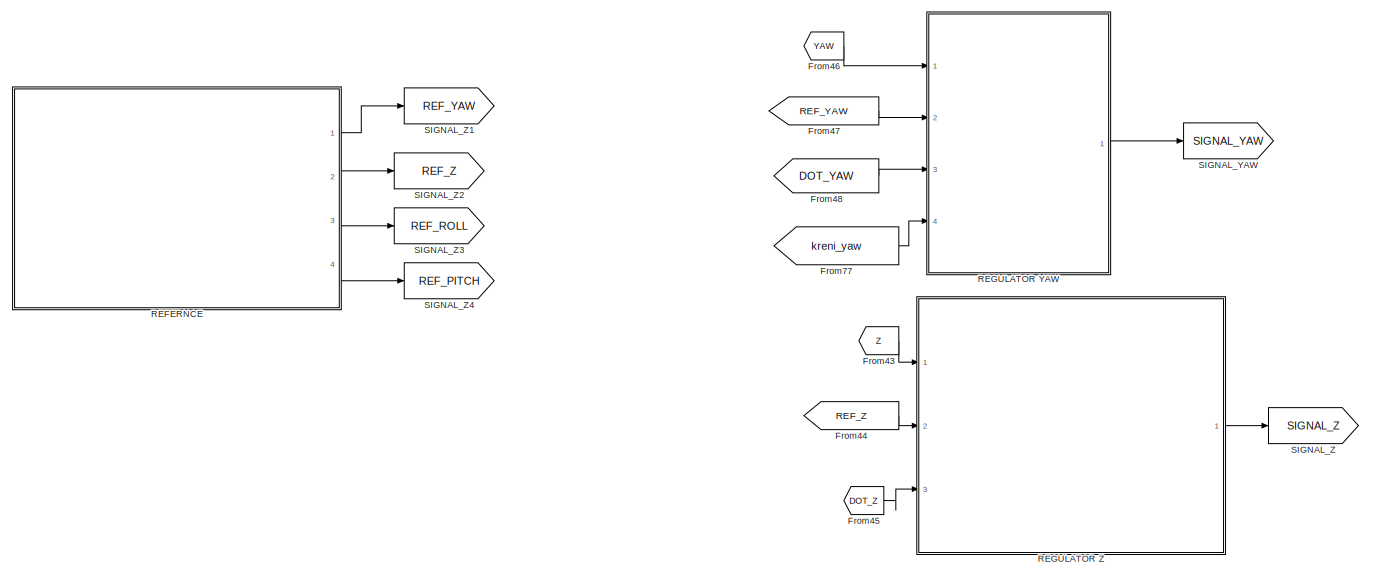
[diagram: root canvas - part 1/10, top left region]
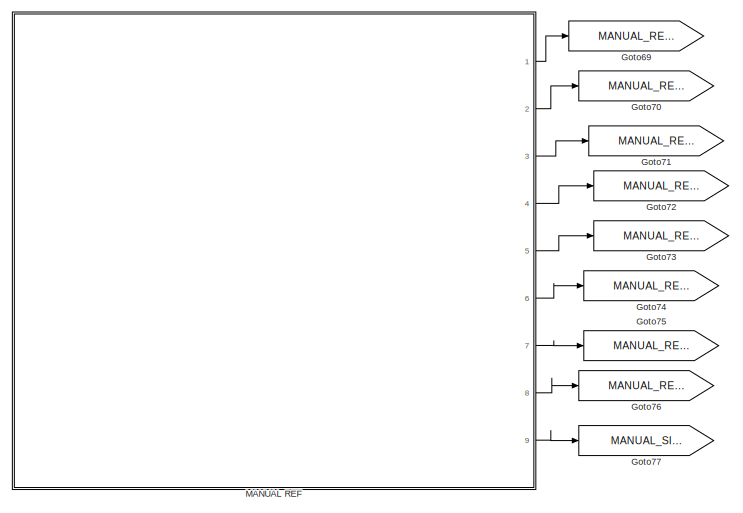
[diagram: root canvas - part 2/10, top center region]
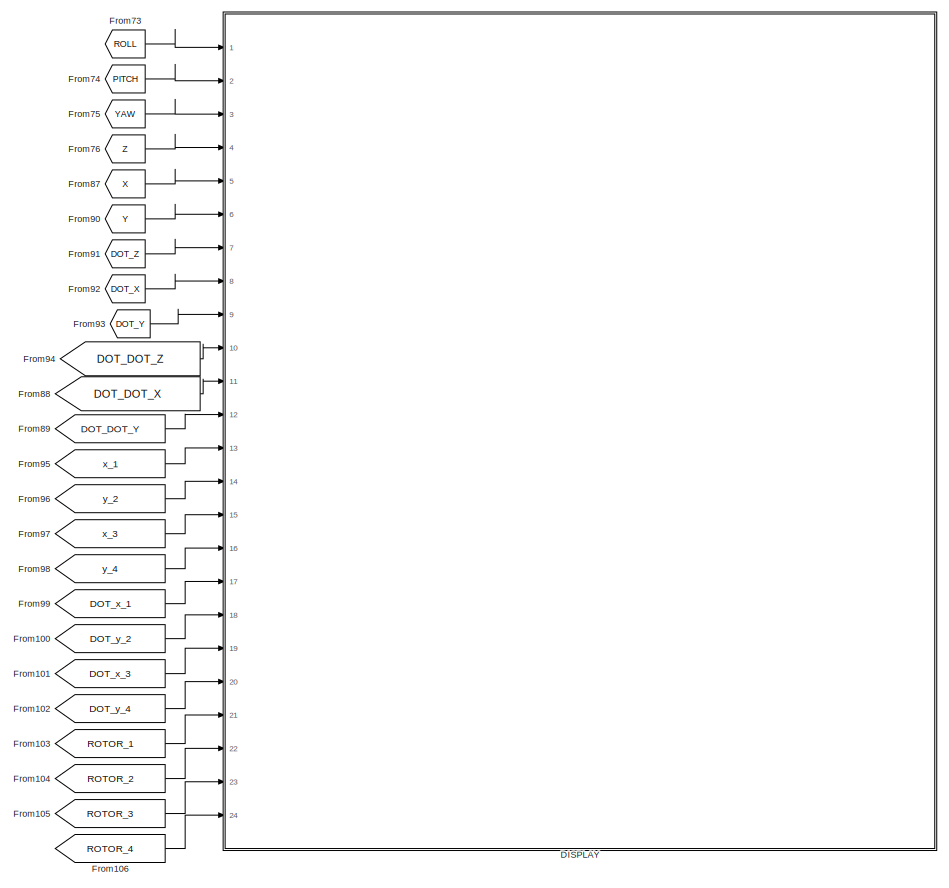
[diagram: root canvas - part 3/10, top right region]
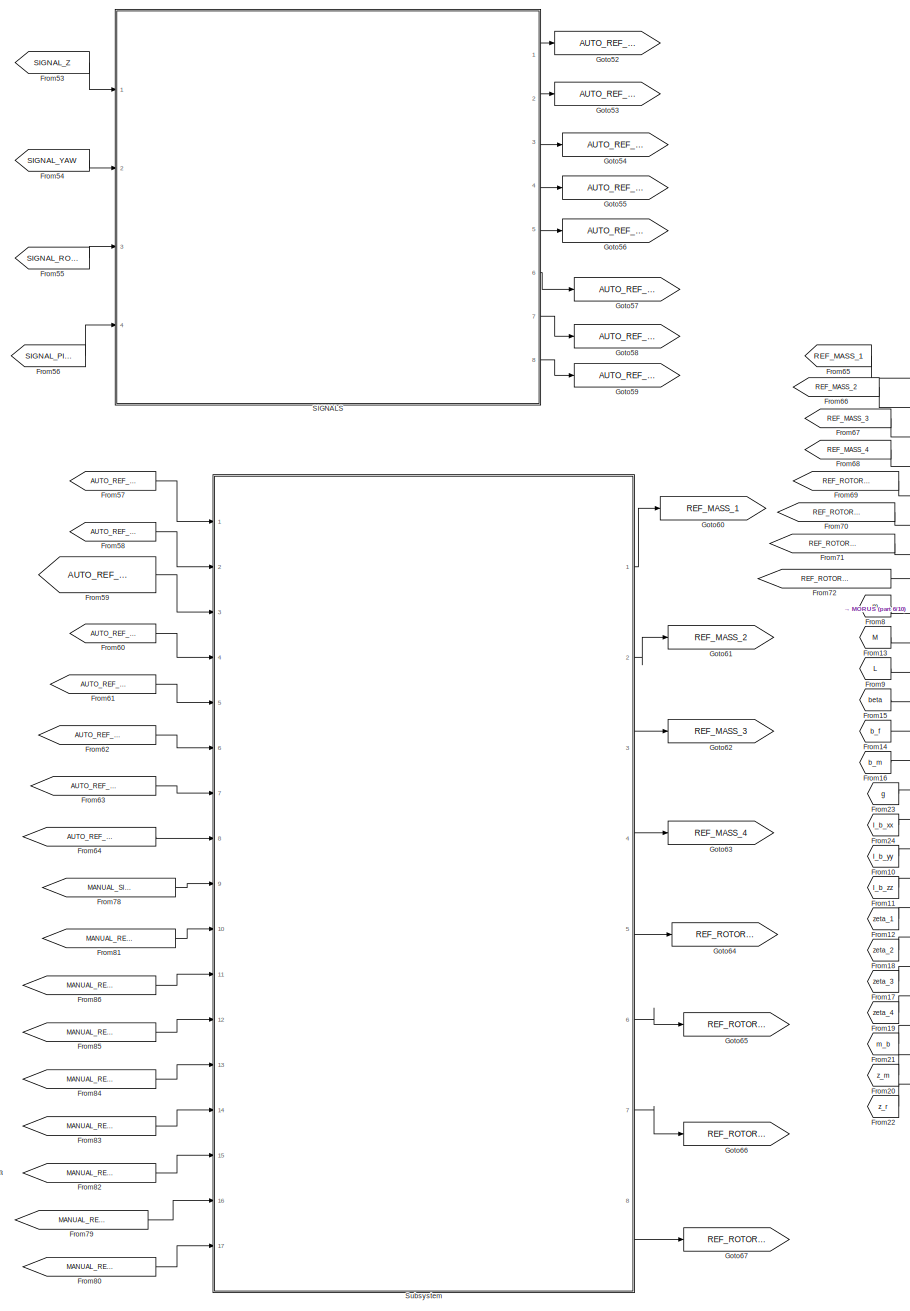
[diagram: root canvas - part 4/10, central region]
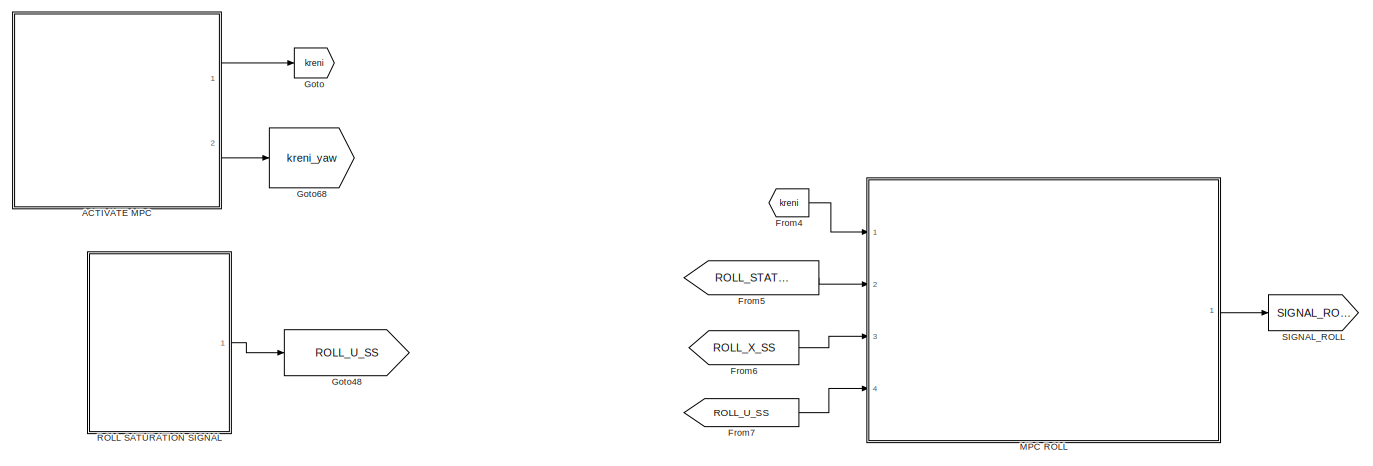
[diagram: root canvas - part 5/10, middle left region]
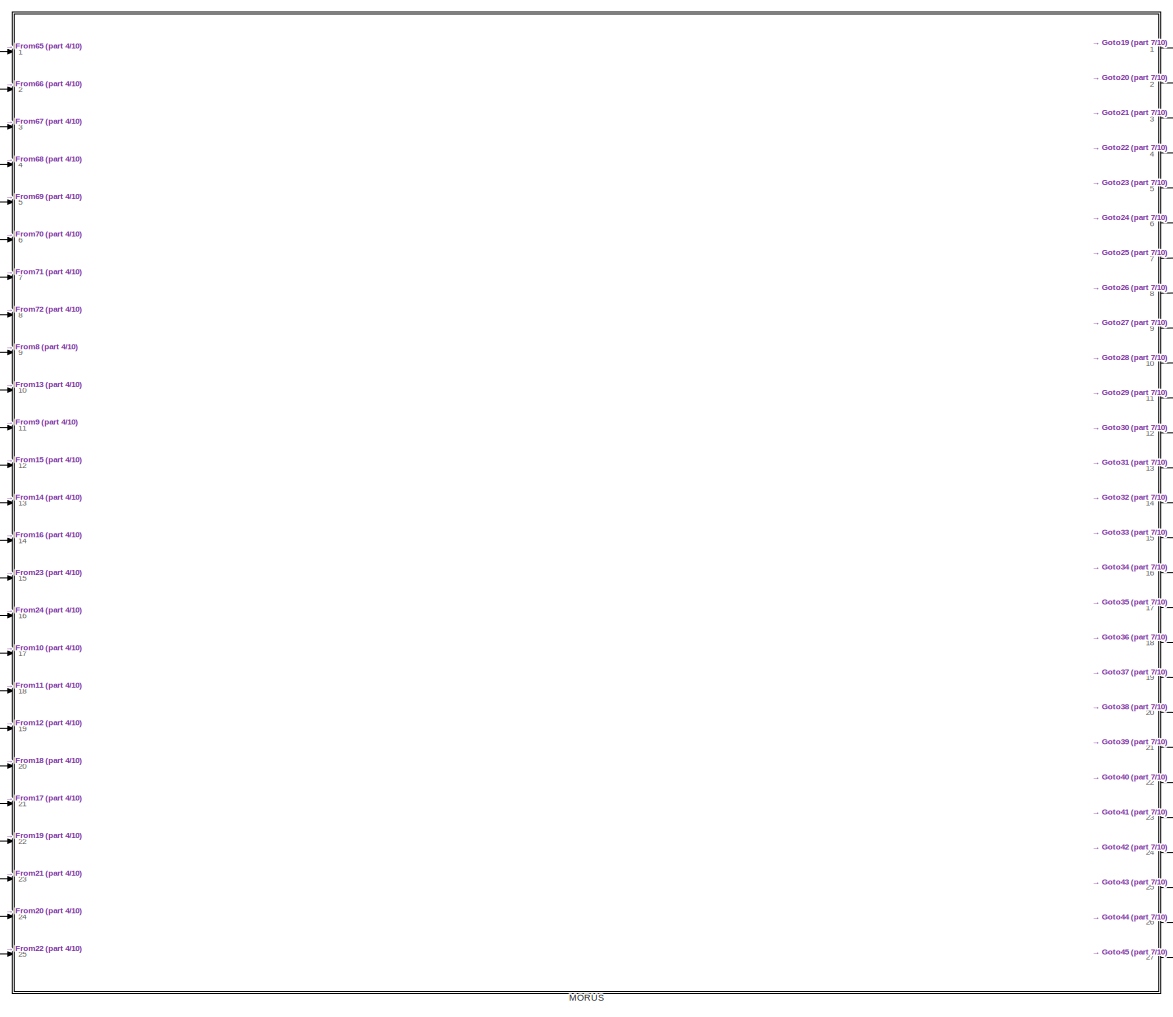
[diagram: root canvas - part 6/10, central region]
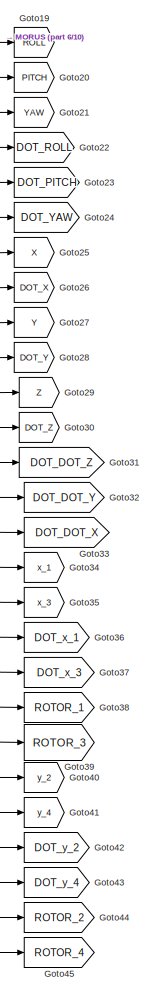
[diagram: root canvas - part 7/10, middle right region]
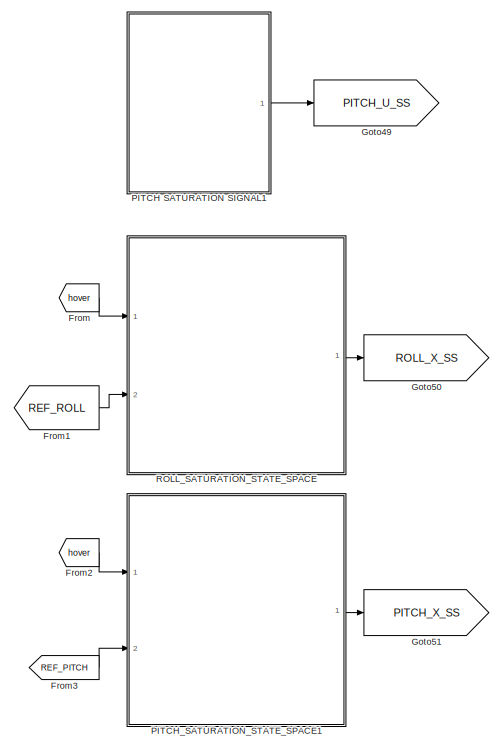
[diagram: root canvas - part 8/10, middle left region]
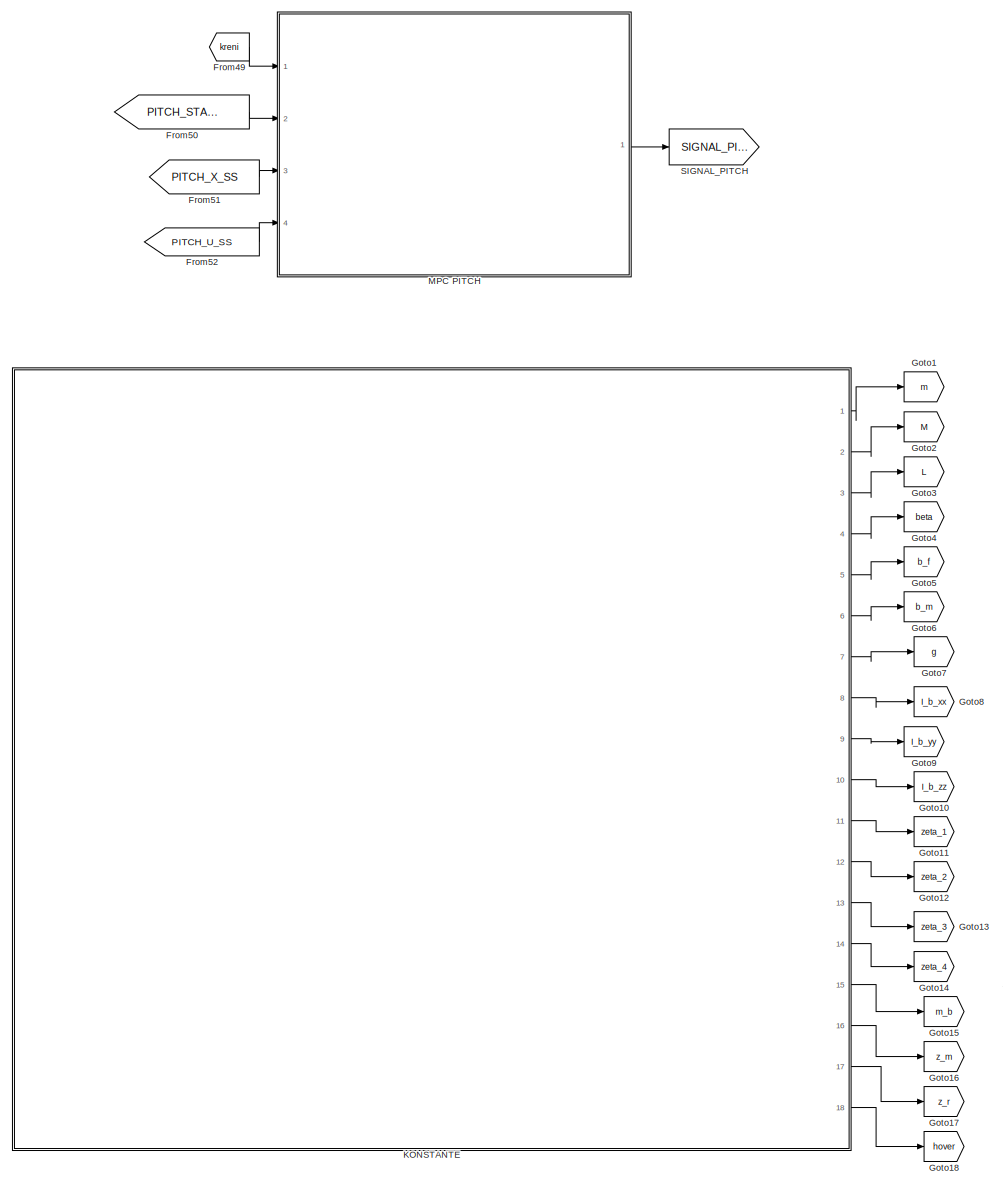
[diagram: root canvas - part 9/10, bottom left region]
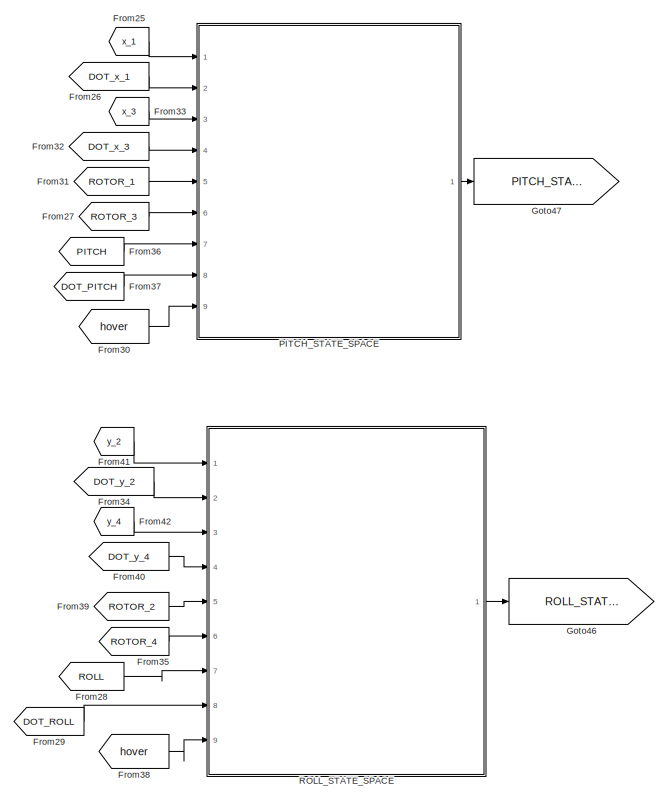
[diagram: root canvas - part 10/10, bottom right region]
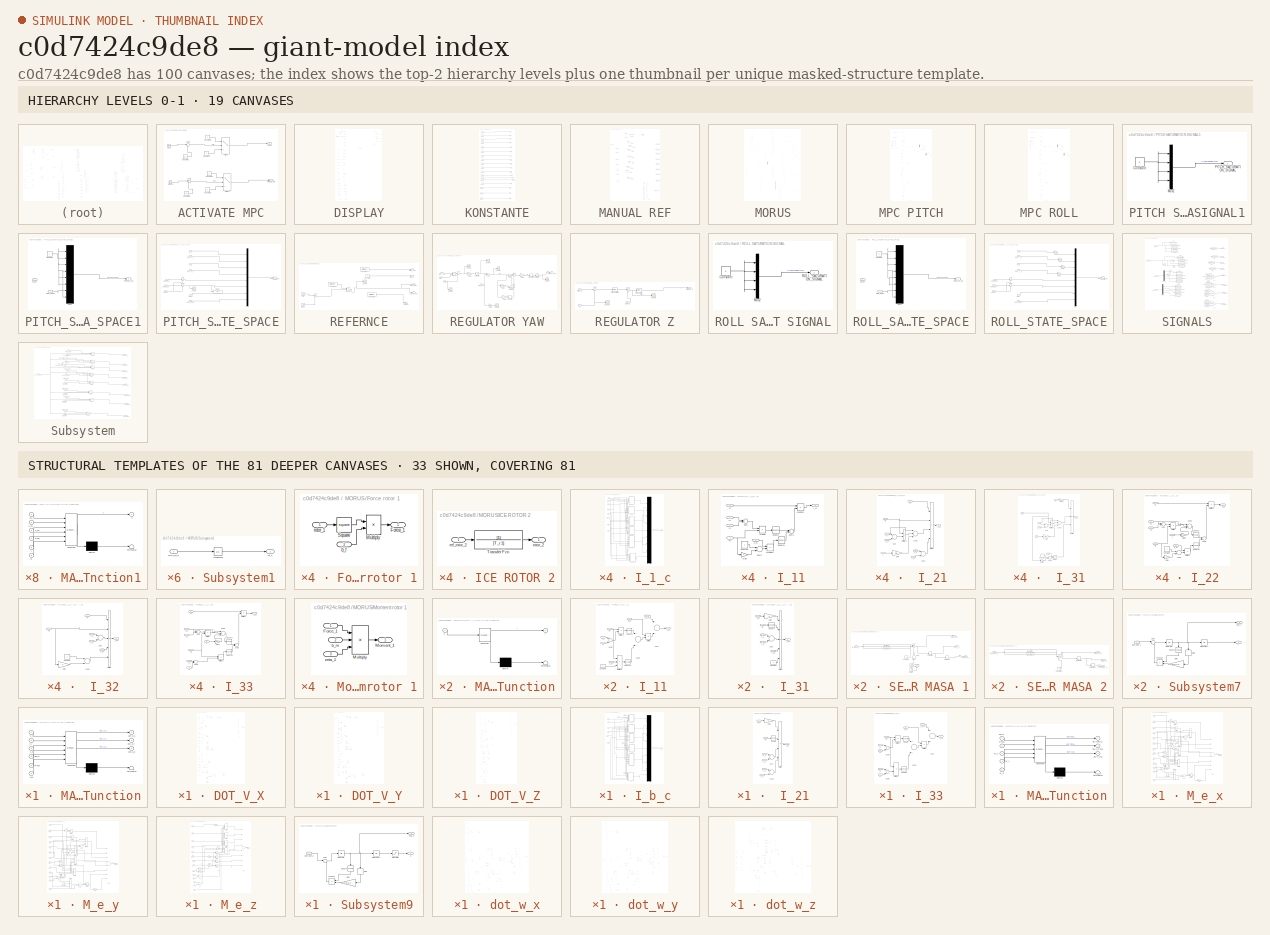
[diagram: thumbnail index - top-2 hierarchy levels (19 canvases) + 33 structural-template representatives of the remaining 81 canvases]
MODEL slx_c0d7424c9de8
KIND model
CONFIG AbsTol = auto
CONFIG EnableMultiTasking = on
CONFIG FixedStep = auto
CONFIG MaxStep = auto
CONFIG MinStep = auto
CONFIG RelTol = 1e-3
CONFIG SampleTimeConstraint = Unconstrained
CONFIG Solver = FixedStepAuto
CONFIG SolverName = FixedStepAuto
CONFIG StartTime = 0.0
CONFIG StopTime = 100
BLOCK [SubSystem] ACTIVATE MPC
  Ports = [0, 2]
  Priority = 1
  RequestExecContextInheritance = off
BLOCK [Clock] ACTIVATE MPC/Clock
BLOCK [Clock] ACTIVATE MPC/Clock1
BLOCK [Constant] ACTIVATE MPC/Constant1
  OutDataTypeStr = double
  SampleTime = -1
BLOCK [Constant] ACTIVATE MPC/Constant2
  OutDataTypeStr = double
  SampleTime = -1
  Value = 0
BLOCK [Constant] ACTIVATE MPC/Constant3
  OutDataTypeStr = double
  SampleTime = -1
  Value = 20
BLOCK [Constant] ACTIVATE MPC/Constant6
  OutDataTypeStr = double
  SampleTime = -1
BLOCK [Constant] ACTIVATE MPC/Constant7
  OutDataTypeStr = double
  SampleTime = -1
  Value = 0
BLOCK [Constant] ACTIVATE MPC/Constant8
  OutDataTypeStr = double
  SampleTime = -1
  Value = 20
BLOCK [Outport] ACTIVATE MPC/KRENI
  IconDisplay = Port number
BLOCK [Outport] ACTIVATE MPC/KRENI_yaw
  IconDisplay = Port number
  Port = 2
BLOCK [Sum] ACTIVATE MPC/Sum1
  IconShape = round
  InputSameDT = off
  Inputs = |+-
  OutDataTypeStr = Inherit: Inherit via internal rule
  Ports = [2, 1]
  SaturateOnIntegerOverflow = off
BLOCK [Sum] ACTIVATE MPC/Sum9
  IconShape = round
  InputSameDT = off
  Inputs = |+-
  OutDataTypeStr = Inherit: Inherit via internal rule
  Ports = [2, 1]
  SaturateOnIntegerOverflow = off
BLOCK [Switch] ACTIVATE MPC/Switch
  Criteria = u2 > Threshold
  InputSameDT = off
  SaturateOnIntegerOverflow = off
BLOCK [Switch] ACTIVATE MPC/Switch1
  Criteria = u2 > Threshold
  InputSameDT = off
  SaturateOnIntegerOverflow = off
BLOCK [SubSystem] DISPLAY
  Ports = [24]
  Priority = 12
  RequestExecContextInheritance = off
BLOCK [Inport] DISPLAY/DOT_DOT_X
  IconDisplay = Port number
  Port = 11
BLOCK [Inport] DISPLAY/DOT_DOT_Y
  IconDisplay = Port number
  Port = 12
BLOCK [Inport] DISPLAY/DOT_DOT_Z
  IconDisplay = Port number
  Port = 10
BLOCK [Inport] DISPLAY/DOT_X
  IconDisplay = Port number
  Port = 8
BLOCK [Inport] DISPLAY/DOT_Y
  IconDisplay = Port number
  Port = 9
BLOCK [Inport] DISPLAY/DOT_Z
  IconDisplay = Port number
  Port = 7
BLOCK [Inport] DISPLAY/DOT_masa_x_1
  IconDisplay = Port number
  Port = 17
BLOCK [Inport] DISPLAY/DOT_masa_x_3
  IconDisplay = Port number
  Port = 19
BLOCK [Inport] DISPLAY/DOT_masa_y_2
  IconDisplay = Port number
  Port = 18
BLOCK [Inport] DISPLAY/DOT_masa_y_4
  IconDisplay = Port number
  Port = 20
BLOCK [Gain] DISPLAY/Gain
  Gain = 180/pi
  OutDataTypeStr = Inherit: Inherit via internal rule
  ParamDataTypeStr = Inherit: Inherit via internal rule
  SaturateOnIntegerOverflow = off
BLOCK [Gain] DISPLAY/Gain1
  Gain = 180/pi
  OutDataTypeStr = Inherit: Inherit via internal rule
  ParamDataTypeStr = Inherit: Inherit via internal rule
  SaturateOnIntegerOverflow = off
BLOCK [Gain] DISPLAY/Gain2
  Gain = 180/pi
  OutDataTypeStr = Inherit: Inherit via internal rule
  ParamDataTypeStr = Inherit: Inherit via internal rule
  SaturateOnIntegerOverflow = off
BLOCK [Integrator] DISPLAY/Integrator
  Ports = [1, 1]
BLOCK [Integrator] DISPLAY/Integrator1
  Ports = [1, 1]
BLOCK [Integrator] DISPLAY/Integrator2
  Ports = [1, 1]
BLOCK [SubSystem] DISPLAY/MATLAB Function
  ErrorFcn = Stateflow.Translate.translate
  PermitHierarchicalResolution = ExplicitOnly
  Ports = [6, 3]
  RequestExecContextInheritance = off
  SFBlockType = MATLAB Function
  TreatAsAtomicUnit = on
BLOCK [Demux] DISPLAY/MATLAB Function/ Demux 
  Outputs = 1
  Ports = [1, 1]
BLOCK [S-Function] DISPLAY/MATLAB Function/ SFunction 
  EnableBusSupport = off
  FunctionName = sf_sfun
  PortCounts = [6 4]
  Ports = [6, 4]
  SFcnIsStateOwnerBlock = off
  SFunctionDeploymentMode = off
  Tag = Stateflow S-Function MORUS_NELINEARNI_ALGH 12
BLOCK [Terminator] DISPLAY/MATLAB Function/ Terminator 
BLOCK [Inport] DISPLAY/MATLAB Function/PITCH
  IconDisplay = Port number
  Port = 5
BLOCK [Inport] DISPLAY/MATLAB Function/ROLL
  IconDisplay = Port number
  Port = 4
BLOCK [Inport] DISPLAY/MATLAB Function/YAW
  IconDisplay = Port number
  Port = 6
BLOCK [Outport] DISPLAY/MATLAB Function/dot_p_x
  IconDisplay = Port number
BLOCK [Outport] DISPLAY/MATLAB Function/dot_p_y
  IconDisplay = Port number
  Port = 2
BLOCK [Outport] DISPLAY/MATLAB Function/dot_p_z
  IconDisplay = Port number
  Port = 3
BLOCK [Inport] DISPLAY/MATLAB Function/v_x
  IconDisplay = Port number
BLOCK [Inport] DISPLAY/MATLAB Function/v_y
  IconDisplay = Port number
  Port = 2
BLOCK [Inport] DISPLAY/MATLAB Function/v_z
  IconDisplay = Port number
  Port = 3
BLOCK [Inport] DISPLAY/PITCH
  IconDisplay = Port number
  Port = 2
BLOCK [Inport] DISPLAY/ROLL
  IconDisplay = Port number
BLOCK [Inport] DISPLAY/ROTOR_1
  IconDisplay = Port number
  Port = 21
BLOCK [Inport] DISPLAY/ROTOR_2
  IconDisplay = Port number
  Port = 22
BLOCK [Inport] DISPLAY/ROTOR_3
  IconDisplay = Port number
  Port = 23
BLOCK [Inport] DISPLAY/ROTOR_4
  IconDisplay = Port number
  Port = 24
BLOCK [Scope] DISPLAY/Scope
  Floating = off
  NumInputPorts = 1
  Ports = [1]
  ScopeSpecificationString = Simulink.scopes.TimeScopeBlockCfg('CurrentConfiguration', extmgr.ConfigurationSet(extmgr.Configuration('Core','General UI',true),extmgr.Configuration('Core','Source UI',true),extmgr.Configuration('Sources','WiredSimulink',true,'DataLoggingVariableName','ROLL','DataLogging',true,'DataLoggingSaveFormat','StructureWithTime'),extmgr.Configuration('Visuals','Time Domain',true,'SerializedDisplays',{stru...<+1805ch>
BLOCK [Scope] DISPLAY/Scope1
  Floating = off
  NumInputPorts = 1
  Ports = [1]
  ScopeSpecificationString = Simulink.scopes.TimeScopeBlockCfg('CurrentConfiguration', extmgr.ConfigurationSet(extmgr.Configuration('Core','General UI',true),extmgr.Configuration('Core','Source UI',true),extmgr.Configuration('Sources','WiredSimulink',true,'DataLoggingVariableName','PITCH','DataLogging',true,'DataLoggingSaveFormat','StructureWithTime'),extmgr.Configuration('Visuals','Time Domain',true,'SerializedDisplays',{str...<+1498ch>
BLOCK [Scope] DISPLAY/Scope10
  Floating = off
  NumInputPorts = 1
  Ports = [1]
  ScopeSpecificationString = Simulink.scopes.TimeScopeBlockCfg('CurrentConfiguration', extmgr.ConfigurationSet(extmgr.Configuration('Core','General UI',true),extmgr.Configuration('Core','Source UI',true),extmgr.Configuration('Sources','WiredSimulink',true,'DataLoggingVariableName','DOT_DOT_X','DataLogging',true,'DataLoggingSaveFormat','StructureWithTime'),extmgr.Configuration('Visuals','Time Domain',true,'SerializedDisplays',...<+1830ch>
BLOCK [Scope] DISPLAY/Scope11
  Floating = off
  NumInputPorts = 1
  Ports = [1]
  ScopeSpecificationString = Simulink.scopes.TimeScopeBlockCfg('CurrentConfiguration', extmgr.ConfigurationSet(extmgr.Configuration('Core','General UI',true),extmgr.Configuration('Core','Source UI',true),extmgr.Configuration('Sources','WiredSimulink',true,'DataLoggingVariableName','DOT_DOT_Y','DataLogging',true,'DataLoggingSaveFormat','StructureWithTime'),extmgr.Configuration('Visuals','Time Domain',true,'SerializedDisplays',...<+1830ch>
BLOCK [Scope] DISPLAY/Scope12
  Floating = off
  NumInputPorts = 1
  Ports = [1]
  ScopeSpecificationString = Simulink.scopes.TimeScopeBlockCfg('CurrentConfiguration', extmgr.ConfigurationSet(extmgr.Configuration('Core','General UI',true),extmgr.Configuration('Core','Source UI',true),extmgr.Configuration('Sources','WiredSimulink',true,'DataLoggingVariableName','masa_x_1','DataLogging',true,'DataLoggingSaveFormat','StructureWithTime'),extmgr.Configuration('Visuals','Time Domain',true,'SerializedDisplays',{...<+1826ch>
BLOCK [Scope] DISPLAY/Scope13
  Floating = off
  NumInputPorts = 1
  Ports = [1]
  ScopeSpecificationString = Simulink.scopes.TimeScopeBlockCfg('CurrentConfiguration', extmgr.ConfigurationSet(extmgr.Configuration('Core','General UI',true),extmgr.Configuration('Core','Source UI',true),extmgr.Configuration('Sources','WiredSimulink',true,'DataLoggingVariableName','masa_y_2','DataLogging',true,'DataLoggingSaveFormat','StructureWithTime'),extmgr.Configuration('Visuals','Time Domain',true,'SerializedDisplays',{...<+1826ch>
BLOCK [Scope] DISPLAY/Scope14
  Floating = off
  NumInputPorts = 1
  Ports = [1]
  ScopeSpecificationString = Simulink.scopes.TimeScopeBlockCfg('CurrentConfiguration', extmgr.ConfigurationSet(extmgr.Configuration('Core','General UI',true),extmgr.Configuration('Core','Source UI',true),extmgr.Configuration('Sources','WiredSimulink',true,'DataLoggingVariableName','masa_x_3','DataLogging',true,'DataLoggingSaveFormat','StructureWithTime'),extmgr.Configuration('Visuals','Time Domain',true,'SerializedDisplays',{...<+1826ch>
BLOCK [Scope] DISPLAY/Scope15
  Floating = off
  NumInputPorts = 1
  Ports = [1]
  ScopeSpecificationString = Simulink.scopes.TimeScopeBlockCfg('CurrentConfiguration', extmgr.ConfigurationSet(extmgr.Configuration('Core','General UI',true),extmgr.Configuration('Core','Source UI',true),extmgr.Configuration('Sources','WiredSimulink',true,'DataLoggingVariableName','masa_y_4','DataLogging',true,'DataLoggingSaveFormat','StructureWithTime'),extmgr.Configuration('Visuals','Time Domain',true,'SerializedDisplays',{...<+1826ch>
BLOCK [Scope] DISPLAY/Scope16
  Floating = off
  NumInputPorts = 1
  Ports = [1]
  ScopeSpecificationString = Simulink.scopes.TimeScopeBlockCfg('CurrentConfiguration', extmgr.ConfigurationSet(extmgr.Configuration('Core','General UI',true),extmgr.Configuration('Core','Source UI',true),extmgr.Configuration('Sources','WiredSimulink',true,'DataLoggingVariableName','DOT_masa_x_1','DataLogging',true,'DataLoggingSaveFormat','StructureWithTime'),extmgr.Configuration('Visuals','Time Domain',true,'SerializedDisplay...<+1834ch>
BLOCK [Scope] DISPLAY/Scope17
  Floating = off
  NumInputPorts = 1
  Ports = [1]
  ScopeSpecificationString = Simulink.scopes.TimeScopeBlockCfg('CurrentConfiguration', extmgr.ConfigurationSet(extmgr.Configuration('Core','General UI',true),extmgr.Configuration('Core','Source UI',true),extmgr.Configuration('Sources','WiredSimulink',true,'DataLoggingVariableName','DOT_masa_y_2','DataLogging',true,'DataLoggingSaveFormat','StructureWithTime'),extmgr.Configuration('Visuals','Time Domain',true,'SerializedDisplay...<+1834ch>
BLOCK [Scope] DISPLAY/Scope18
  Floating = off
  NumInputPorts = 1
  Ports = [1]
  ScopeSpecificationString = Simulink.scopes.TimeScopeBlockCfg('CurrentConfiguration', extmgr.ConfigurationSet(extmgr.Configuration('Core','General UI',true),extmgr.Configuration('Core','Source UI',true),extmgr.Configuration('Sources','WiredSimulink',true,'DataLoggingVariableName','DOT_masa_x_3','DataLogging',true,'DataLoggingSaveFormat','StructureWithTime'),extmgr.Configuration('Visuals','Time Domain',true,'SerializedDisplay...<+1834ch>
BLOCK [Scope] DISPLAY/Scope19
  Floating = off
  NumInputPorts = 1
  Ports = [1]
  ScopeSpecificationString = Simulink.scopes.TimeScopeBlockCfg('CurrentConfiguration', extmgr.ConfigurationSet(extmgr.Configuration('Core','General UI',true),extmgr.Configuration('Core','Source UI',true),extmgr.Configuration('Sources','WiredSimulink',true,'DataLoggingVariableName','DOT_masa_y_4','DataLogging',true,'DataLoggingSaveFormat','StructureWithTime'),extmgr.Configuration('Visuals','Time Domain',true,'SerializedDisplay...<+1834ch>
BLOCK [Scope] DISPLAY/Scope2
  Floating = off
  NumInputPorts = 1
  Ports = [1]
  ScopeSpecificationString = Simulink.scopes.TimeScopeBlockCfg('CurrentConfiguration', extmgr.ConfigurationSet(extmgr.Configuration('Core','General UI',true),extmgr.Configuration('Core','Source UI',true),extmgr.Configuration('Sources','WiredSimulink',true,'DataLoggingVariableName','YAW','DataLogging',true,'DataLoggingSaveFormat','StructureWithTime'),extmgr.Configuration('Visuals','Time Domain',true,'SerializedDisplays',{struc...<+1472ch>
BLOCK [Scope] DISPLAY/Scope20
  Floating = off
  NumInputPorts = 1
  Ports = [1]
  ScopeSpecificationString = Simulink.scopes.TimeScopeBlockCfg('CurrentConfiguration', extmgr.ConfigurationSet(extmgr.Configuration('Core','General UI',true),extmgr.Configuration('Core','Source UI',true),extmgr.Configuration('Sources','WiredSimulink',true,'DataLoggingVariableName','ROTOR_1','DataLogging',true,'DataLoggingSaveFormat','StructureWithTime'),extmgr.Configuration('Visuals','Time Domain',true,'SerializedDisplays',{s...<+1824ch>
BLOCK [Scope] DISPLAY/Scope21
  Floating = off
  NumInputPorts = 1
  Ports = [1]
  ScopeSpecificationString = Simulink.scopes.TimeScopeBlockCfg('CurrentConfiguration', extmgr.ConfigurationSet(extmgr.Configuration('Core','General UI',true),extmgr.Configuration('Core','Source UI',true),extmgr.Configuration('Sources','WiredSimulink',true,'DataLoggingVariableName','ROTOR_2','DataLogging',true,'DataLoggingSaveFormat','StructureWithTime'),extmgr.Configuration('Visuals','Time Domain',true,'SerializedDisplays',{s...<+1824ch>
BLOCK [Scope] DISPLAY/Scope22
  Floating = off
  NumInputPorts = 1
  Ports = [1]
  ScopeSpecificationString = Simulink.scopes.TimeScopeBlockCfg('CurrentConfiguration', extmgr.ConfigurationSet(extmgr.Configuration('Core','General UI',true),extmgr.Configuration('Core','Source UI',true),extmgr.Configuration('Sources','WiredSimulink',true,'DataLoggingVariableName','ROTOR_3','DataLogging',true,'DataLoggingSaveFormat','StructureWithTime'),extmgr.Configuration('Visuals','Time Domain',true,'SerializedDisplays',{s...<+1824ch>
BLOCK [Scope] DISPLAY/Scope23
  Floating = off
  NumInputPorts = 1
  Ports = [1]
  ScopeSpecificationString = Simulink.scopes.TimeScopeBlockCfg('CurrentConfiguration', extmgr.ConfigurationSet(extmgr.Configuration('Core','General UI',true),extmgr.Configuration('Core','Source UI',true),extmgr.Configuration('Sources','WiredSimulink',true,'DataLoggingVariableName','ROTOR_4','DataLogging',true,'DataLoggingSaveFormat','StructureWithTime'),extmgr.Configuration('Visuals','Time Domain',true,'SerializedDisplays',{s...<+1824ch>
BLOCK [Scope] DISPLAY/Scope24
  Floating = off
  NumInputPorts = 1
  Ports = [1]
  ScopeSpecificationString = Simulink.scopes.TimeScopeBlockCfg('CurrentConfiguration', extmgr.ConfigurationSet(extmgr.Configuration('Core','General UI',true),extmgr.Configuration('Core','Source UI',true),extmgr.Configuration('Sources','WiredSimulink',true,'DataLoggingVariableName','x_inertial','DataLogging',true,'DataLoggingSaveFormat','StructureWithTime'),extmgr.Configuration('Visuals','Time Domain',true,'SerializedDisplays'...<+1380ch>
BLOCK [Scope] DISPLAY/Scope25
  Floating = off
  NumInputPorts = 1
  Ports = [1]
  ScopeSpecificationString = Simulink.scopes.TimeScopeBlockCfg('CurrentConfiguration', extmgr.ConfigurationSet(extmgr.Configuration('Core','General UI',true),extmgr.Configuration('Core','Source UI',true),extmgr.Configuration('Sources','WiredSimulink',true,'DataLoggingVariableName','y_inertial','DataLogging',true,'DataLoggingSaveFormat','StructureWithTime'),extmgr.Configuration('Visuals','Time Domain',true,'SerializedDisplays'...<+1380ch>
BLOCK [Scope] DISPLAY/Scope26
  Floating = off
  NumInputPorts = 1
  Ports = [1]
  ScopeSpecificationString = Simulink.scopes.TimeScopeBlockCfg('CurrentConfiguration', extmgr.ConfigurationSet(extmgr.Configuration('Core','General UI',true),extmgr.Configuration('Core','Source UI',true),extmgr.Configuration('Sources','WiredSimulink',true,'DataLoggingVariableName','z_inertial','DataLogging',true,'DataLoggingSaveFormat','StructureWithTime'),extmgr.Configuration('Visuals','Time Domain',true,'SerializedDisplays'...<+1380ch>
BLOCK [Scope] DISPLAY/Scope27
  Floating = off
  NumInputPorts = 1
  Ports = [1]
  ScopeSpecificationString = Simulink.scopes.TimeScopeBlockCfg('CurrentConfiguration', extmgr.ConfigurationSet(extmgr.Configuration('Core','General UI',true),extmgr.Configuration('Core','Source UI',true),extmgr.Configuration('Sources','WiredSimulink',true,'DataLoggingVariableName','v_y_inertial','DataLogging',true,'DataLoggingSaveFormat','StructureWithTime'),extmgr.Configuration('Visuals','Time Domain',true,'SerializedDisplay...<+1382ch>
BLOCK [Scope] DISPLAY/Scope28
  Floating = off
  NumInputPorts = 1
  Ports = [1]
  ScopeSpecificationString = Simulink.scopes.TimeScopeBlockCfg('CurrentConfiguration', extmgr.ConfigurationSet(extmgr.Configuration('Core','General UI',true),extmgr.Configuration('Core','Source UI',true),extmgr.Configuration('Sources','WiredSimulink',true,'DataLoggingVariableName','v_x_inertial','DataLogging',true,'DataLoggingSaveFormat','StructureWithTime'),extmgr.Configuration('Visuals','Time Domain',true,'SerializedDisplay...<+1382ch>
BLOCK [Scope] DISPLAY/Scope29
  Floating = off
  NumInputPorts = 1
  Ports = [1]
  ScopeSpecificationString = Simulink.scopes.TimeScopeBlockCfg('CurrentConfiguration', extmgr.ConfigurationSet(extmgr.Configuration('Core','General UI',true),extmgr.Configuration('Core','Source UI',true),extmgr.Configuration('Sources','WiredSimulink',true,'DataLoggingVariableName','v_z_inertial','DataLogging',true,'DataLoggingSaveFormat','StructureWithTime'),extmgr.Configuration('Visuals','Time Domain',true,'SerializedDisplay...<+1382ch>
BLOCK [Scope] DISPLAY/Scope3
  Floating = off
  NumInputPorts = 1
  Ports = [1]
  ScopeSpecificationString = Simulink.scopes.TimeScopeBlockCfg('CurrentConfiguration', extmgr.ConfigurationSet(extmgr.Configuration('Core','General UI',true),extmgr.Configuration('Core','Source UI',true),extmgr.Configuration('Sources','WiredSimulink',true,'DataLoggingVariableName','Z','DataLogging',true,'DataLoggingSaveFormat','StructureWithTime'),extmgr.Configuration('Visuals','Time Domain',true,'SerializedDisplays',{struct(...<+1814ch>
BLOCK [Scope] DISPLAY/Scope4
  Floating = off
  NumInputPorts = 1
  Ports = [1]
  ScopeSpecificationString = Simulink.scopes.TimeScopeBlockCfg('CurrentConfiguration', extmgr.ConfigurationSet(extmgr.Configuration('Core','General UI',true),extmgr.Configuration('Core','Source UI',true),extmgr.Configuration('Sources','WiredSimulink',true,'DataLoggingVariableName','X','DataLogging',true,'DataLoggingSaveFormat','StructureWithTime'),extmgr.Configuration('Visuals','Time Domain',true,'SerializedDisplays',{struct(...<+1812ch>
BLOCK [Scope] DISPLAY/Scope5
  Floating = off
  NumInputPorts = 1
  Ports = [1]
  ScopeSpecificationString = Simulink.scopes.TimeScopeBlockCfg('CurrentConfiguration', extmgr.ConfigurationSet(extmgr.Configuration('Core','General UI',true),extmgr.Configuration('Core','Source UI',true),extmgr.Configuration('Sources','WiredSimulink',true,'DataLoggingVariableName','Y','DataLogging',true,'DataLoggingSaveFormat','StructureWithTime'),extmgr.Configuration('Visuals','Time Domain',true,'SerializedDisplays',{struct(...<+1814ch>
BLOCK [Scope] DISPLAY/Scope6
  Floating = off
  NumInputPorts = 1
  Ports = [1]
  ScopeSpecificationString = Simulink.scopes.TimeScopeBlockCfg('CurrentConfiguration', extmgr.ConfigurationSet(extmgr.Configuration('Core','General UI',true),extmgr.Configuration('Core','Source UI',true),extmgr.Configuration('Sources','WiredSimulink',true,'DataLoggingVariableName','DOT_Z','DataLogging',true,'DataLoggingSaveFormat','StructureWithTime'),extmgr.Configuration('Visuals','Time Domain',true,'SerializedDisplays',{str...<+1822ch>
BLOCK [Scope] DISPLAY/Scope7
  Floating = off
  NumInputPorts = 1
  Ports = [1]
  ScopeSpecificationString = Simulink.scopes.TimeScopeBlockCfg('CurrentConfiguration', extmgr.ConfigurationSet(extmgr.Configuration('Core','General UI',true),extmgr.Configuration('Core','Source UI',true),extmgr.Configuration('Sources','WiredSimulink',true,'DataLoggingVariableName','DOT_X','DataLogging',true,'DataLoggingSaveFormat','StructureWithTime'),extmgr.Configuration('Visuals','Time Domain',true,'SerializedDisplays',{str...<+1822ch>
BLOCK [Scope] DISPLAY/Scope8
  Floating = off
  NumInputPorts = 1
  Ports = [1]
  ScopeSpecificationString = Simulink.scopes.TimeScopeBlockCfg('CurrentConfiguration', extmgr.ConfigurationSet(extmgr.Configuration('Core','General UI',true),extmgr.Configuration('Core','Source UI',true),extmgr.Configuration('Sources','WiredSimulink',true,'DataLoggingVariableName','DOT_Y','DataLogging',true,'DataLoggingSaveFormat','StructureWithTime'),extmgr.Configuration('Visuals','Time Domain',true,'SerializedDisplays',{str...<+1822ch>
BLOCK [Scope] DISPLAY/Scope9
  Floating = off
  NumInputPorts = 1
  Ports = [1]
  ScopeSpecificationString = Simulink.scopes.TimeScopeBlockCfg('CurrentConfiguration', extmgr.ConfigurationSet(extmgr.Configuration('Core','General UI',true),extmgr.Configuration('Core','Source UI',true),extmgr.Configuration('Sources','WiredSimulink',true,'DataLoggingVariableName','DOT_DOT_Z','DataLogging',true,'DataLoggingSaveFormat','StructureWithTime'),extmgr.Configuration('Visuals','Time Domain',true,'SerializedDisplays',...<+1830ch>
BLOCK [ToWorkspace] DISPLAY/To Workspace
  FixptAsFi = on
  MaxDataPoints = inf
  Ports = [1]
  SampleTime = -1
  SaveFormat = Structure With Time
  VariableName = myPITCH
BLOCK [Inport] DISPLAY/X
  IconDisplay = Port number
  Port = 5
BLOCK [Inport] DISPLAY/Y
  IconDisplay = Port number
  Port = 6
BLOCK [Inport] DISPLAY/YAW
  IconDisplay = Port number
  Port = 3
BLOCK [Inport] DISPLAY/Z
  IconDisplay = Port number
  Port = 4
BLOCK [Inport] DISPLAY/masa_x_1
  IconDisplay = Port number
  Port = 13
BLOCK [Inport] DISPLAY/masa_x_3
  IconDisplay = Port number
  Port = 15
BLOCK [Inport] DISPLAY/masa_y_2
  IconDisplay = Port number
  Port = 14
BLOCK [Inport] DISPLAY/masa_y_4
  IconDisplay = Port number
  Port = 16
BLOCK [From] From
  GotoTag = hover
BLOCK [From] From1
  GotoTag = REF_ROLL
BLOCK [From] From10
  GotoTag = I_b_yy
BLOCK [From] From100
  GotoTag = DOT_y_2
BLOCK [From] From101
  GotoTag = DOT_x_3
BLOCK [From] From102
  GotoTag = DOT_y_4
BLOCK [From] From103
  GotoTag = ROTOR_1
BLOCK [From] From104
  GotoTag = ROTOR_2
BLOCK [From] From105
  GotoTag = ROTOR_3
BLOCK [From] From106
  GotoTag = ROTOR_4
BLOCK [From] From11
  GotoTag = I_b_zz
BLOCK [From] From12
  GotoTag = zeta_1
BLOCK [From] From13
  GotoTag = M
BLOCK [From] From14
  GotoTag = b_f
BLOCK [From] From15
  GotoTag = beta
BLOCK [From] From16
  GotoTag = b_m
BLOCK [From] From17
  GotoTag = zeta_3
BLOCK [From] From18
  GotoTag = zeta_2
BLOCK [From] From19
  GotoTag = zeta_4
BLOCK [From] From2
  GotoTag = hover
BLOCK [From] From20
  GotoTag = z_m
BLOCK [From] From21
  GotoTag = m_b
BLOCK [From] From22
  GotoTag = z_r
BLOCK [From] From23
  GotoTag = g
BLOCK [From] From24
  GotoTag = I_b_xx
BLOCK [From] From25
  GotoTag = x_1
BLOCK [From] From26
  GotoTag = DOT_x_1
BLOCK [From] From27
  GotoTag = ROTOR_3
BLOCK [From] From28
  GotoTag = ROLL
BLOCK [From] From29
  GotoTag = DOT_ROLL
BLOCK [From] From3
  GotoTag = REF_PITCH
BLOCK [From] From30
  GotoTag = hover
BLOCK [From] From31
  GotoTag = ROTOR_1
BLOCK [From] From32
  GotoTag = DOT_x_3
BLOCK [From] From33
  GotoTag = x_3
BLOCK [From] From34
  GotoTag = DOT_y_2
BLOCK [From] From35
  GotoTag = ROTOR_4
BLOCK [From] From36
  GotoTag = PITCH
BLOCK [From] From37
  GotoTag = DOT_PITCH
BLOCK [From] From38
  GotoTag = hover
BLOCK [From] From39
  GotoTag = ROTOR_2
BLOCK [From] From4
  GotoTag = kreni
BLOCK [From] From40
  GotoTag = DOT_y_4
BLOCK [From] From41
  GotoTag = y_2
BLOCK [From] From42
  GotoTag = y_4
BLOCK [From] From43
  GotoTag = Z
BLOCK [From] From44
  GotoTag = REF_Z
BLOCK [From] From45
  GotoTag = DOT_Z
BLOCK [From] From46
  GotoTag = YAW
BLOCK [From] From47
  GotoTag = REF_YAW
BLOCK [From] From48
  GotoTag = DOT_YAW
BLOCK [From] From49
  GotoTag = kreni
BLOCK [From] From5
  GotoTag = ROLL_STATE_SPACE
BLOCK [From] From50
  GotoTag = PITCH_STATE_SPACE
BLOCK [From] From51
  GotoTag = PITCH_X_SS
BLOCK [From] From52
  GotoTag = PITCH_U_SS
BLOCK [From] From53
  GotoTag = SIGNAL_Z
BLOCK [From] From54
  GotoTag = SIGNAL_YAW
BLOCK [From] From55
  GotoTag = SIGNAL_ROLL
BLOCK [From] From56
  GotoTag = SIGNAL_PITCH
BLOCK [From] From57
  GotoTag = AUTO_REF_MASS_1
BLOCK [From] From58
  GotoTag = AUTO_REF_MASS_2
BLOCK [From] From59
  GotoTag = AUTO_REF_MASS_3
BLOCK [From] From6
  GotoTag = ROLL_X_SS
BLOCK [From] From60
  GotoTag = AUTO_REF_MASS_4
BLOCK [From] From61
  GotoTag = AUTO_REF_ROTOR_1
BLOCK [From] From62
  GotoTag = AUTO_REF_ROTOR_2
BLOCK [From] From63
  GotoTag = AUTO_REF_ROTOR_3
BLOCK [From] From64
  GotoTag = AUTO_REF_ROTOR_4
BLOCK [From] From65
  GotoTag = REF_MASS_1
BLOCK [From] From66
  GotoTag = REF_MASS_2
BLOCK [From] From67
  GotoTag = REF_MASS_3
BLOCK [From] From68
  GotoTag = REF_MASS_4
BLOCK [From] From69
  GotoTag = REF_ROTOR_1
BLOCK [From] From7
  GotoTag = ROLL_U_SS
BLOCK [From] From70
  GotoTag = REF_ROTOR_2
BLOCK [From] From71
  GotoTag = REF_ROTOR_3
BLOCK [From] From72
  GotoTag = REF_ROTOR_4
BLOCK [From] From73
  GotoTag = ROLL
BLOCK [From] From74
  GotoTag = PITCH
BLOCK [From] From75
  GotoTag = YAW
BLOCK [From] From76
  GotoTag = Z
BLOCK [From] From77
  GotoTag = kreni_yaw
BLOCK [From] From78
  GotoTag = MANUAL_SIGNAL
BLOCK [From] From79
  GotoTag = MANUAL_REF_ROTOR_3
BLOCK [From] From8
  GotoTag = m
BLOCK [From] From80
  GotoTag = MANUAL_REF_ROTOR_4
BLOCK [From] From81
  GotoTag = MANUAL_REF_MASS_1
BLOCK [From] From82
  GotoTag = MANUAL_REF_ROTOR_2
BLOCK [From] From83
  GotoTag = MANUAL_REF_ROTOR_1
BLOCK [From] From84
  GotoTag = MANUAL_REF_MASS_4
BLOCK [From] From85
  GotoTag = MANUAL_REF_MASS_3
BLOCK [From] From86
  GotoTag = MANUAL_REF_MASS_2
BLOCK [From] From87
  GotoTag = X
BLOCK [From] From88
  GotoTag = DOT_DOT_X
BLOCK [From] From89
  GotoTag = DOT_DOT_Y
BLOCK [From] From9
  GotoTag = L
BLOCK [From] From90
  GotoTag = Y
BLOCK [From] From91
  GotoTag = DOT_Z
BLOCK [From] From92
  GotoTag = DOT_X
BLOCK [From] From93
  GotoTag = DOT_Y
BLOCK [From] From94
  GotoTag = DOT_DOT_Z
BLOCK [From] From95
  GotoTag = x_1
BLOCK [From] From96
  GotoTag = y_2
BLOCK [From] From97
  GotoTag = x_3
BLOCK [From] From98
  GotoTag = y_4
BLOCK [From] From99
  GotoTag = DOT_x_1
BLOCK [Goto] Goto
  GotoTag = kreni
BLOCK [Goto] Goto1
  GotoTag = m
BLOCK [Goto] Goto10
  GotoTag = I_b_zz
BLOCK [Goto] Goto11
  GotoTag = zeta_1
BLOCK [Goto] Goto12
  GotoTag = zeta_2
BLOCK [Goto] Goto13
  GotoTag = zeta_3
BLOCK [Goto] Goto14
  GotoTag = zeta_4
BLOCK [Goto] Goto15
  GotoTag = m_b
BLOCK [Goto] Goto16
  GotoTag = z_m
BLOCK [Goto] Goto17
  GotoTag = z_r
BLOCK [Goto] Goto18
  GotoTag = hover
BLOCK [Goto] Goto19
  GotoTag = ROLL
BLOCK [Goto] Goto2
  GotoTag = M
BLOCK [Goto] Goto20
  GotoTag = PITCH
BLOCK [Goto] Goto21
  GotoTag = YAW
BLOCK [Goto] Goto22
  GotoTag = DOT_ROLL
BLOCK [Goto] Goto23
  GotoTag = DOT_PITCH
BLOCK [Goto] Goto24
  GotoTag = DOT_YAW
BLOCK [Goto] Goto25
  GotoTag = X
BLOCK [Goto] Goto26
  GotoTag = DOT_X
BLOCK [Goto] Goto27
  GotoTag = Y
BLOCK [Goto] Goto28
  GotoTag = DOT_Y
BLOCK [Goto] Goto29
  GotoTag = Z
BLOCK [Goto] Goto3
  GotoTag = L
BLOCK [Goto] Goto30
  GotoTag = DOT_Z
BLOCK [Goto] Goto31
  GotoTag = DOT_DOT_Z
BLOCK [Goto] Goto32
  GotoTag = DOT_DOT_Y
BLOCK [Goto] Goto33
  GotoTag = DOT_DOT_X
BLOCK [Goto] Goto34
  GotoTag = x_1
BLOCK [Goto] Goto35
  GotoTag = x_3
BLOCK [Goto] Goto36
  GotoTag = DOT_x_1
BLOCK [Goto] Goto37
  GotoTag = DOT_x_3
BLOCK [Goto] Goto38
  GotoTag = ROTOR_1
BLOCK [Goto] Goto39
  GotoTag = ROTOR_3
BLOCK [Goto] Goto4
  GotoTag = beta
BLOCK [Goto] Goto40
  GotoTag = y_2
BLOCK [Goto] Goto41
  GotoTag = y_4
BLOCK [Goto] Goto42
  GotoTag = DOT_y_2
BLOCK [Goto] Goto43
  GotoTag = DOT_y_4
BLOCK [Goto] Goto44
  GotoTag = ROTOR_2
BLOCK [Goto] Goto45
  GotoTag = ROTOR_4
BLOCK [Goto] Goto46
  GotoTag = ROLL_STATE_SPACE
BLOCK [Goto] Goto47
  GotoTag = PITCH_STATE_SPACE
BLOCK [Goto] Goto48
  GotoTag = ROLL_U_SS
BLOCK [Goto] Goto49
  GotoTag = PITCH_U_SS
BLOCK [Goto] Goto5
  GotoTag = b_f
BLOCK [Goto] Goto50
  GotoTag = ROLL_X_SS
BLOCK [Goto] Goto51
  GotoTag = PITCH_X_SS
BLOCK [Goto] Goto52
  GotoTag = AUTO_REF_MASS_1
BLOCK [Goto] Goto53
  GotoTag = AUTO_REF_MASS_2
BLOCK [Goto] Goto54
  GotoTag = AUTO_REF_MASS_3
BLOCK [Goto] Goto55
  GotoTag = AUTO_REF_MASS_4
BLOCK [Goto] Goto56
  GotoTag = AUTO_REF_ROTOR_1
BLOCK [Goto] Goto57
  GotoTag = AUTO_REF_ROTOR_2
BLOCK [Goto] Goto58
  GotoTag = AUTO_REF_ROTOR_3
BLOCK [Goto] Goto59
  GotoTag = AUTO_REF_ROTOR_4
BLOCK [Goto] Goto6
  GotoTag = b_m
BLOCK [Goto] Goto60
  GotoTag = REF_MASS_1
BLOCK [Goto] Goto61
  GotoTag = REF_MASS_2
BLOCK [Goto] Goto62
  GotoTag = REF_MASS_3
BLOCK [Goto] Goto63
  GotoTag = REF_MASS_4
BLOCK [Goto] Goto64
  GotoTag = REF_ROTOR_1
BLOCK [Goto] Goto65
  GotoTag = REF_ROTOR_2
BLOCK [Goto] Goto66
  GotoTag = REF_ROTOR_3
BLOCK [Goto] Goto67
  GotoTag = REF_ROTOR_4
BLOCK [Goto] Goto68
  GotoTag = kreni_yaw
BLOCK [Goto] Goto69
  GotoTag = MANUAL_REF_MASS_1
BLOCK [Goto] Goto7
  GotoTag = g
BLOCK [Goto] Goto70
  GotoTag = MANUAL_REF_MASS_2
BLOCK [Goto] Goto71
  GotoTag = MANUAL_REF_MASS_3
BLOCK [Goto] Goto72
  GotoTag = MANUAL_REF_MASS_4
BLOCK [Goto] Goto73
  GotoTag = MANUAL_REF_ROTOR_1
BLOCK [Goto] Goto74
  GotoTag = MANUAL_REF_ROTOR_2
BLOCK [Goto] Goto75
  GotoTag = MANUAL_REF_ROTOR_3
BLOCK [Goto] Goto76
  GotoTag = MANUAL_REF_ROTOR_4
BLOCK [Goto] Goto77
  GotoTag = MANUAL_SIGNAL
BLOCK [Goto] Goto8
  GotoTag = I_b_xx
BLOCK [Goto] Goto9
  GotoTag = I_b_yy
BLOCK [SubSystem] KONSTANTE
  Ports = [0, 18]
  Priority = 1
  RequestExecContextInheritance = off
BLOCK [Constant] KONSTANTE/Constant
  OutDataTypeStr = double
  SampleTime = -1
  Value = m
BLOCK [Constant] KONSTANTE/Constant1
  OutDataTypeStr = double
  SampleTime = -1
  Value = M
BLOCK [Constant] KONSTANTE/Constant10
  OutDataTypeStr = double
  SampleTime = -1
BLOCK [Constant] KONSTANTE/Constant11
  OutDataTypeStr = double
  SampleTime = -1
BLOCK [Constant] KONSTANTE/Constant12
  OutDataTypeStr = double
  SampleTime = -1
BLOCK [Constant] KONSTANTE/Constant13
  OutDataTypeStr = double
  SampleTime = -1
BLOCK [Constant] KONSTANTE/Constant14
  OutDataTypeStr = double
  SampleTime = -1
  Value = m_b
BLOCK [Constant] KONSTANTE/Constant15
  OutDataTypeStr = double
  SampleTime = -1
  Value = z_m
BLOCK [Constant] KONSTANTE/Constant16
  OutDataTypeStr = double
  SampleTime = -1
  Value = z_r
BLOCK [Constant] KONSTANTE/Constant17
  OutDataTypeStr = double
  SampleTime = -1
  Value = hover
BLOCK [Constant] KONSTANTE/Constant2
  OutDataTypeStr = double
  SampleTime = -1
  Value = L
BLOCK [Constant] KONSTANTE/Constant3
  OutDataTypeStr = double
  SampleTime = -1
  Value = BETA
BLOCK [Constant] KONSTANTE/Constant4
  OutDataTypeStr = double
  SampleTime = -1
  Value = b_f
BLOCK [Constant] KONSTANTE/Constant5
  OutDataTypeStr = double
  SampleTime = -1
  Value = b_m
BLOCK [Constant] KONSTANTE/Constant6
  OutDataTypeStr = double
  SampleTime = -1
  Value = g
BLOCK [Constant] KONSTANTE/Constant7
  OutDataTypeStr = double
  SampleTime = -1
  Value = I_b_xx
BLOCK [Constant] KONSTANTE/Constant8
  OutDataTypeStr = double
  SampleTime = -1
  Value = I_b_yy
BLOCK [Constant] KONSTANTE/Constant9
  OutDataTypeStr = double
  SampleTime = -1
  Value = I_b_zz
BLOCK [Outport] KONSTANTE/I_b_xx
  IconDisplay = Port number
  Port = 8
BLOCK [Outport] KONSTANTE/I_b_yy
  IconDisplay = Port number
  Port = 9
BLOCK [Outport] KONSTANTE/I_b_zz
  IconDisplay = Port number
  Port = 10
BLOCK [Outport] KONSTANTE/L
  IconDisplay = Port number
  Port = 3
BLOCK [Outport] KONSTANTE/M
  IconDisplay = Port number
  Port = 2
BLOCK [Outport] KONSTANTE/b_f
  IconDisplay = Port number
  Port = 5
BLOCK [Outport] KONSTANTE/b_m
  IconDisplay = Port number
  Port = 6
BLOCK [Outport] KONSTANTE/beta
  IconDisplay = Port number
  Port = 4
BLOCK [Outport] KONSTANTE/g
  IconDisplay = Port number
  Port = 7
BLOCK [Outport] KONSTANTE/hover
  IconDisplay = Port number
  Port = 18
BLOCK [Outport] KONSTANTE/m
  IconDisplay = Port number
BLOCK [Outport] KONSTANTE/m_b
  IconDisplay = Port number
  Port = 15
BLOCK [Outport] KONSTANTE/z_m
  IconDisplay = Port number
  Port = 16
BLOCK [Outport] KONSTANTE/z_r
  IconDisplay = Port number
  Port = 17
BLOCK [Outport] KONSTANTE/zeta_1
  IconDisplay = Port number
  Port = 11
BLOCK [Outport] KONSTANTE/zeta_2
  IconDisplay = Port number
  Port = 12
BLOCK [Outport] KONSTANTE/zeta_3
  IconDisplay = Port number
  Port = 13
BLOCK [Outport] KONSTANTE/zeta_4
  IconDisplay = Port number
  Port = 14
BLOCK [SubSystem] MANUAL REF
  Ports = [0, 9]
  Priority = 1
  RequestExecContextInheritance = off
BLOCK [Abs] MANUAL REF/Abs
  SaturateOnIntegerOverflow = off
BLOCK [Abs] MANUAL REF/Abs1
  SaturateOnIntegerOverflow = off
BLOCK [Abs] MANUAL REF/Abs2
  SaturateOnIntegerOverflow = off
BLOCK [Abs] MANUAL REF/Abs3
  SaturateOnIntegerOverflow = off
BLOCK [Abs] MANUAL REF/Abs4
  SaturateOnIntegerOverflow = off
BLOCK [Abs] MANUAL REF/Abs5
  SaturateOnIntegerOverflow = off
BLOCK [Abs] MANUAL REF/Abs6
  SaturateOnIntegerOverflow = off
BLOCK [Abs] MANUAL REF/Abs7
  SaturateOnIntegerOverflow = off
BLOCK [Sum] MANUAL REF/Add
  InputSameDT = off
  Inputs = ++++++++
  OutDataTypeStr = Inherit: Inherit via internal rule
  Ports = [8, 1]
  SaturateOnIntegerOverflow = off
BLOCK [Constant] MANUAL REF/Constant
  OutDataTypeStr = double
  Value = 0
BLOCK [Constant] MANUAL REF/Constant1
  OutDataTypeStr = double
  Value = 0
BLOCK [Constant] MANUAL REF/Constant2
  OutDataTypeStr = double
  Value = 0
BLOCK [Constant] MANUAL REF/Constant3
  OutDataTypeStr = double
  Value = 0
BLOCK [Constant] MANUAL REF/Constant4
  OutDataTypeStr = double
  Value = 0
BLOCK [Constant] MANUAL REF/Constant5
  OutDataTypeStr = double
  Value = 0
BLOCK [Constant] MANUAL REF/Constant6
  OutDataTypeStr = double
  Value = 0
BLOCK [Constant] MANUAL REF/Constant7
  OutDataTypeStr = double
  Value = 0
BLOCK [Constant] MANUAL REF/Constant8
  OutDataTypeStr = double
BLOCK [Constant] MANUAL REF/Constant9
  OutDataTypeStr = double
  Value = 0
BLOCK [From] MANUAL REF/From
  GotoTag = MANUAL
BLOCK [From] MANUAL REF/From1
  GotoTag = MANUAL
BLOCK [From] MANUAL REF/From2
  GotoTag = MANUAL
BLOCK [From] MANUAL REF/From3
  GotoTag = MANUAL
BLOCK [From] MANUAL REF/From4
  GotoTag = MANUAL
BLOCK [From] MANUAL REF/From5
  GotoTag = MANUAL
BLOCK [From] MANUAL REF/From6
  GotoTag = MANUAL
BLOCK [From] MANUAL REF/From7
  GotoTag = MANUAL
BLOCK [Goto] MANUAL REF/Goto
  GotoTag = MANUAL
BLOCK [Outport] MANUAL REF/MANUAL_REF_MASS_1
  IconDisplay = Port number
BLOCK [Outport] MANUAL REF/MANUAL_REF_MASS_2
  IconDisplay = Port number
  Port = 2
BLOCK [Outport] MANUAL REF/MANUAL_REF_MASS_3
  IconDisplay = Port number
  Port = 3
BLOCK [Outport] MANUAL REF/MANUAL_REF_MASS_4
  IconDisplay = Port number
  Port = 4
BLOCK [Outport] MANUAL REF/MANUAL_REF_ROTOR_1
  IconDisplay = Port number
  Port = 5
BLOCK [Outport] MANUAL REF/MANUAL_REF_ROTOR_2
  IconDisplay = Port number
  Port = 6
BLOCK [Outport] MANUAL REF/MANUAL_REF_ROTOR_3
  IconDisplay = Port number
  Port = 7
BLOCK [Outport] MANUAL REF/MANUAL_REF_ROTOR_4
  IconDisplay = Port number
  Port = 8
BLOCK [Outport] MANUAL REF/MANUAL_SIGNAL
  IconDisplay = Port number
  Port = 9
BLOCK [ManualSwitch] MANUAL REF/Manual Switch
  CurrentSetting = 0
BLOCK [Product] MANUAL REF/Product
  InputSameDT = off
  OutDataTypeStr = Inherit: Inherit via internal rule
  Ports = [2, 1]
  RndMeth = Floor
  SaturateOnIntegerOverflow = off
BLOCK [Product] MANUAL REF/Product1
  InputSameDT = off
  OutDataTypeStr = Inherit: Inherit via internal rule
  Ports = [2, 1]
  RndMeth = Floor
  SaturateOnIntegerOverflow = off
BLOCK [Product] MANUAL REF/Product2
  InputSameDT = off
  OutDataTypeStr = Inherit: Inherit via internal rule
  Ports = [2, 1]
  RndMeth = Floor
  SaturateOnIntegerOverflow = off
BLOCK [Product] MANUAL REF/Product3
  InputSameDT = off
  OutDataTypeStr = Inherit: Inherit via internal rule
  Ports = [2, 1]
  RndMeth = Floor
  SaturateOnIntegerOverflow = off
BLOCK [Product] MANUAL REF/Product4
  InputSameDT = off
  OutDataTypeStr = Inherit: Inherit via internal rule
  Ports = [2, 1]
  RndMeth = Floor
  SaturateOnIntegerOverflow = off
BLOCK [Product] MANUAL REF/Product5
  InputSameDT = off
  OutDataTypeStr = Inherit: Inherit via internal rule
  Ports = [2, 1]
  RndMeth = Floor
  SaturateOnIntegerOverflow = off
BLOCK [Product] MANUAL REF/Product6
  InputSameDT = off
  OutDataTypeStr = Inherit: Inherit via internal rule
  Ports = [2, 1]
  RndMeth = Floor
  SaturateOnIntegerOverflow = off
BLOCK [Product] MANUAL REF/Product7
  InputSameDT = off
  OutDataTypeStr = Inherit: Inherit via internal rule
  Ports = [2, 1]
  RndMeth = Floor
  SaturateOnIntegerOverflow = off
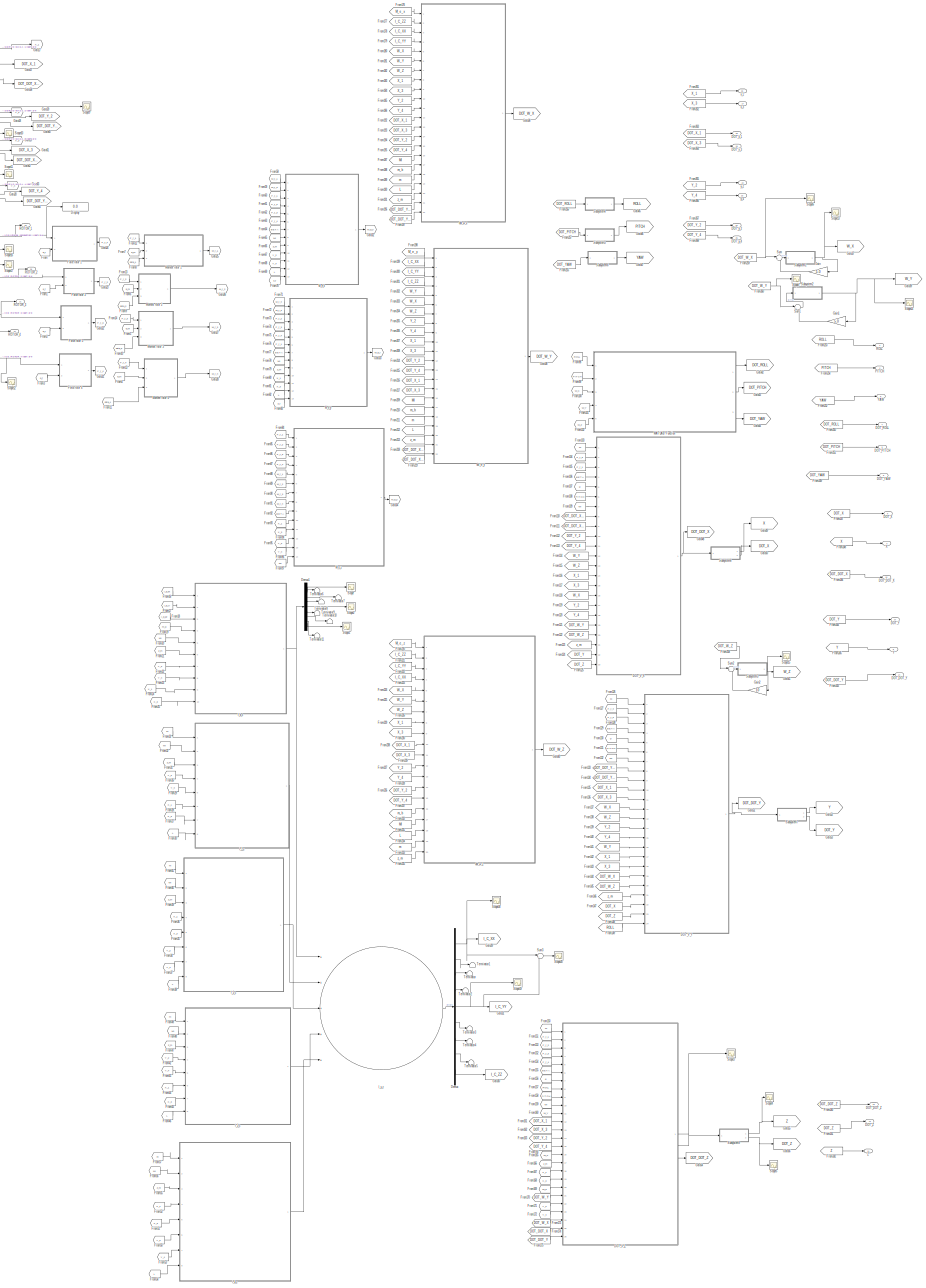
[diagram: MORUS - part 1/4, most of the canvas]
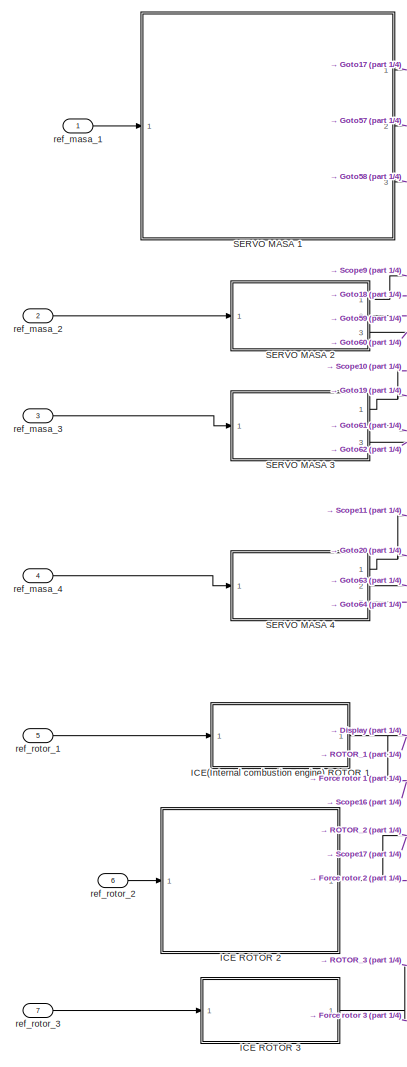
[diagram: MORUS - part 2/4, top left region]
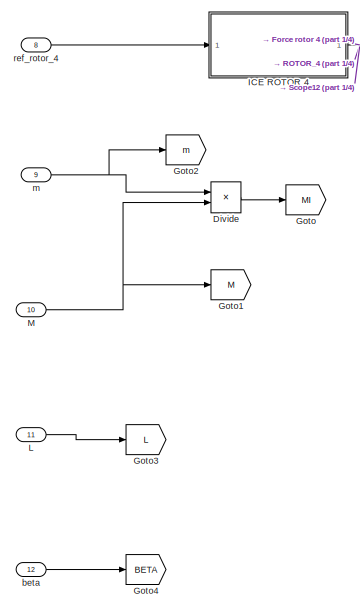
[diagram: MORUS - part 3/4, middle left region]
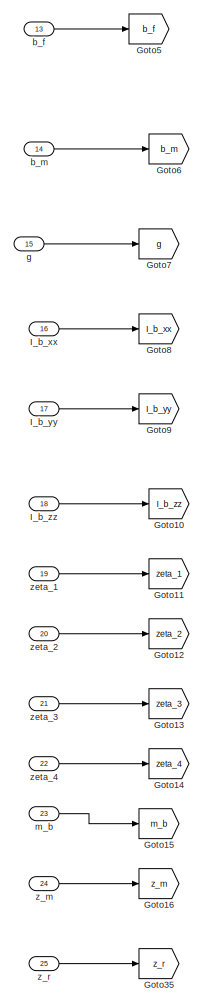
[diagram: MORUS - part 4/4, middle left region]
BLOCK [SubSystem] MORUS
  Ports = [25, 27]
  Priority = 2
  RequestExecContextInheritance = off
BLOCK [Outport] MORUS/DOT_DOT_X
  IconDisplay = Port number
  Port = 15
BLOCK [Outport] MORUS/DOT_DOT_Y
  IconDisplay = Port number
  Port = 14
BLOCK [Outport] MORUS/DOT_DOT_Z
  IconDisplay = Port number
  Port = 13
BLOCK [Outport] MORUS/DOT_PITCH
  IconDisplay = Port number
  Port = 5
BLOCK [Outport] MORUS/DOT_ROLL
  IconDisplay = Port number
  Port = 4
BLOCK [SubSystem] MORUS/DOT_V_X
  Ports = [23, 1]
  Priority = 10
  RequestExecContextInheritance = off
BLOCK [Sum] MORUS/DOT_V_X/Add
  AccumDataTypeStr = double
  InputSameDT = off
  Inputs = ++-+++-++-
  OutDataTypeStr = double
  Ports = [10, 1]
  SaturateOnIntegerOverflow = off
BLOCK [Sum] MORUS/DOT_V_X/Add1
  AccumDataTypeStr = double
  InputSameDT = off
  Inputs = +-
  OutDataTypeStr = double
  Ports = [2, 1]
  SaturateOnIntegerOverflow = off
BLOCK [Sum] MORUS/DOT_V_X/Add2
  AccumDataTypeStr = double
  InputSameDT = off
  OutDataTypeStr = double
  Ports = [2, 1]
  SaturateOnIntegerOverflow = off
BLOCK [Sum] MORUS/DOT_V_X/Add3
  AccumDataTypeStr = double
  InputSameDT = off
  OutDataTypeStr = double
  Ports = [2, 1]
  SaturateOnIntegerOverflow = off
BLOCK [Sum] MORUS/DOT_V_X/Add4
  AccumDataTypeStr = double
  InputSameDT = off
  OutDataTypeStr = double
  Ports = [2, 1]
  SaturateOnIntegerOverflow = off
BLOCK [Sum] MORUS/DOT_V_X/Add5
  AccumDataTypeStr = double
  InputSameDT = off
  OutDataTypeStr = double
  Ports = [2, 1]
  SaturateOnIntegerOverflow = off
BLOCK [Sum] MORUS/DOT_V_X/Add6
  AccumDataTypeStr = double
  InputSameDT = off
  OutDataTypeStr = double
  Ports = [2, 1]
  SaturateOnIntegerOverflow = off
BLOCK [Sum] MORUS/DOT_V_X/Add7
  AccumDataTypeStr = double
  InputSameDT = off
  Inputs = +-
  OutDataTypeStr = double
  Ports = [2, 1]
  SaturateOnIntegerOverflow = off
BLOCK [Sum] MORUS/DOT_V_X/Add8
  AccumDataTypeStr = double
  InputSameDT = off
  Inputs = ++-
  OutDataTypeStr = double
  Ports = [3, 1]
  SaturateOnIntegerOverflow = off
BLOCK [Inport] MORUS/DOT_V_X/BETA
  IconDisplay = Port number
  Port = 4
BLOCK [Inport] MORUS/DOT_V_X/DOT_DOT_X_1
  IconDisplay = Port number
  Port = 8
BLOCK [Inport] MORUS/DOT_V_X/DOT_DOT_X_3
  IconDisplay = Port number
  Port = 9
BLOCK [Outport] MORUS/DOT_V_X/DOT_V_X
  IconDisplay = Port number
BLOCK [Inport] MORUS/DOT_V_X/DOT_W_Y
  IconDisplay = Port number
  Port = 19
BLOCK [Inport] MORUS/DOT_V_X/DOT_W_Z
  IconDisplay = Port number
  Port = 20
BLOCK [Inport] MORUS/DOT_V_X/DOT_Y_2
  IconDisplay = Port number
  Port = 10
BLOCK [Inport] MORUS/DOT_V_X/DOT_Y_4
  IconDisplay = Port number
  Port = 11
BLOCK [Product] MORUS/DOT_V_X/Divide
  InputSameDT = off
  Inputs = */
  OutDataTypeStr = Inherit: Inherit via internal rule
  Ports = [2, 1]
  RndMeth = Floor
  SaturateOnIntegerOverflow = off
BLOCK [Inport] MORUS/DOT_V_X/F_r_1
  IconDisplay = Port number
  Port = 3
BLOCK [Inport] MORUS/DOT_V_X/F_r_3
  IconDisplay = Port number
  Port = 2
BLOCK [Gain] MORUS/DOT_V_X/Gain
  Gain = 4
  OutDataTypeStr = Inherit: Inherit via internal rule
  ParamDataTypeStr = Inherit: Inherit via internal rule
  SaturateOnIntegerOverflow = off
BLOCK [Gain] MORUS/DOT_V_X/Gain1
  Gain = 4
  OutDataTypeStr = Inherit: Inherit via internal rule
  ParamDataTypeStr = Inherit: Inherit via internal rule
  SaturateOnIntegerOverflow = off
BLOCK [Inport] MORUS/DOT_V_X/M
  IconDisplay = Port number
BLOCK [SubSystem] MORUS/DOT_V_X/MATLAB Function
  ErrorFcn = Stateflow.Translate.translate
  PermitHierarchicalResolution = ExplicitOnly
  Ports = [1, 1]
  RequestExecContextInheritance = off
  SFBlockType = MATLAB Function
  TreatAsAtomicUnit = on
BLOCK [Demux] MORUS/DOT_V_X/MATLAB Function/ Demux 
  Outputs = 1
  Ports = [1, 1]
BLOCK [S-Function] MORUS/DOT_V_X/MATLAB Function/ SFunction 
  EnableBusSupport = on
  FunctionName = sf_sfun
  PortCounts = [1 2]
  Ports = [1, 2]
  SFcnIsStateOwnerBlock = off
  SFunctionDeploymentMode = off
  Tag = Stateflow S-Function MORUS_NELINEARNI_ALGH 1
BLOCK [Terminator] MORUS/DOT_V_X/MATLAB Function/ Terminator 
BLOCK [Inport] MORUS/DOT_V_X/MATLAB Function/u
  IconDisplay = Port number
BLOCK [Outport] MORUS/DOT_V_X/MATLAB Function/y
  IconDisplay = Port number
BLOCK [Product] MORUS/DOT_V_X/Multiply
  InputSameDT = off
  OutDataTypeStr = Inherit: Inherit via internal rule
  Ports = [2, 1]
  RndMeth = Floor
  SaturateOnIntegerOverflow = off
BLOCK [Product] MORUS/DOT_V_X/Multiply1
  InputSameDT = off
  OutDataTypeStr = Inherit: Inherit via internal rule
  Ports = [2, 1]
  RndMeth = Floor
  SaturateOnIntegerOverflow = off
BLOCK [Product] MORUS/DOT_V_X/Multiply10
  InputSameDT = off
  Inputs = 3
  OutDataTypeStr = Inherit: Inherit via internal rule
  Ports = [3, 1]
  RndMeth = Floor
  SaturateOnIntegerOverflow = off
BLOCK [Product] MORUS/DOT_V_X/Multiply11
  InputSameDT = off
  OutDataTypeStr = Inherit: Inherit via internal rule
  Ports = [2, 1]
  RndMeth = Floor
  SaturateOnIntegerOverflow = off
BLOCK [Product] MORUS/DOT_V_X/Multiply2
  InputSameDT = off
  OutDataTypeStr = Inherit: Inherit via internal rule
  Ports = [2, 1]
  RndMeth = Floor
  SaturateOnIntegerOverflow = off
BLOCK [Product] MORUS/DOT_V_X/Multiply3
  InputSameDT = off
  Inputs = 3
  OutDataTypeStr = Inherit: Inherit via internal rule
  Ports = [3, 1]
  RndMeth = Floor
  SaturateOnIntegerOverflow = off
BLOCK [Product] MORUS/DOT_V_X/Multiply4
  InputSameDT = off
  Inputs = 3
  OutDataTypeStr = Inherit: Inherit via internal rule
  Ports = [3, 1]
  RndMeth = Floor
  SaturateOnIntegerOverflow = off
BLOCK [Product] MORUS/DOT_V_X/Multiply5
  InputSameDT = off
  Inputs = 3
  OutDataTypeStr = Inherit: Inherit via internal rule
  Ports = [3, 1]
  RndMeth = Floor
  SaturateOnIntegerOverflow = off
BLOCK [Product] MORUS/DOT_V_X/Multiply6
  InputSameDT = off
  OutDataTypeStr = Inherit: Inherit via internal rule
  Ports = [2, 1]
  RndMeth = Floor
  SaturateOnIntegerOverflow = off
BLOCK [Product] MORUS/DOT_V_X/Multiply7
  InputSameDT = off
  Inputs = 3
  OutDataTypeStr = Inherit: Inherit via internal rule
  Ports = [3, 1]
  RndMeth = Floor
  SaturateOnIntegerOverflow = off
BLOCK [Product] MORUS/DOT_V_X/Multiply8
  InputSameDT = off
  OutDataTypeStr = Inherit: Inherit via internal rule
  Ports = [2, 1]
  RndMeth = Floor
  SaturateOnIntegerOverflow = off
BLOCK [Product] MORUS/DOT_V_X/Multiply9
  InputSameDT = off
  OutDataTypeStr = Inherit: Inherit via internal rule
  Ports = [2, 1]
  RndMeth = Floor
  SaturateOnIntegerOverflow = off
BLOCK [Inport] MORUS/DOT_V_X/PITCH
  IconDisplay = Port number
  Port = 6
BLOCK [Trigonometry] MORUS/DOT_V_X/Sin
  Ports = [1, 1]
BLOCK [Trigonometry] MORUS/DOT_V_X/Sin1
  Ports = [1, 1]
BLOCK [Math] MORUS/DOT_V_X/Square
  Operator = square
  OutDataTypeStr = double
  Ports = [1, 1]
BLOCK [Math] MORUS/DOT_V_X/Square1
  Operator = square
  OutDataTypeStr = double
  Ports = [1, 1]
BLOCK [Inport] MORUS/DOT_V_X/V_0_Y
  IconDisplay = Port number
  Port = 22
BLOCK [Inport] MORUS/DOT_V_X/V_0_Z
  IconDisplay = Port number
  Port = 23
BLOCK [Inport] MORUS/DOT_V_X/W_X
  IconDisplay = Port number
  Port = 16
BLOCK [Inport] MORUS/DOT_V_X/W_Y
  IconDisplay = Port number
  Port = 12
BLOCK [Inport] MORUS/DOT_V_X/W_Z
  IconDisplay = Port number
  Port = 13
BLOCK [Inport] MORUS/DOT_V_X/X_1
  IconDisplay = Port number
  Port = 14
BLOCK [Inport] MORUS/DOT_V_X/X_3
  IconDisplay = Port number
  Port = 15
BLOCK [Inport] MORUS/DOT_V_X/Y_2
  IconDisplay = Port number
  Port = 17
BLOCK [Inport] MORUS/DOT_V_X/Y_4
  IconDisplay = Port number
  Port = 18
BLOCK [Inport] MORUS/DOT_V_X/g
  IconDisplay = Port number
  Port = 5
BLOCK [Inport] MORUS/DOT_V_X/mi
  IconDisplay = Port number
  Port = 7
BLOCK [Inport] MORUS/DOT_V_X/z_m
  IconDisplay = Port number
  Port = 21
BLOCK [SubSystem] MORUS/DOT_V_Y
  Ports = [24, 1]
  Priority = 10
  RequestExecContextInheritance = off
BLOCK [Sum] MORUS/DOT_V_Y/Add
  AccumDataTypeStr = double
  InputSameDT = off
  Inputs = ++--+-+--+
  OutDataTypeStr = double
  Ports = [10, 1]
  SaturateOnIntegerOverflow = off
BLOCK [Sum] MORUS/DOT_V_Y/Add1
  AccumDataTypeStr = double
  InputSameDT = off
  Inputs = +-
  OutDataTypeStr = double
  Ports = [2, 1]
  SaturateOnIntegerOverflow = off
BLOCK [Sum] MORUS/DOT_V_Y/Add2
  AccumDataTypeStr = double
  InputSameDT = off
  OutDataTypeStr = double
  Ports = [2, 1]
  SaturateOnIntegerOverflow = off
BLOCK [Sum] MORUS/DOT_V_Y/Add3
  AccumDataTypeStr = double
  InputSameDT = off
  OutDataTypeStr = double
  Ports = [2, 1]
  SaturateOnIntegerOverflow = off
BLOCK [Sum] MORUS/DOT_V_Y/Add4
  AccumDataTypeStr = double
  InputSameDT = off
  OutDataTypeStr = double
  Ports = [2, 1]
  SaturateOnIntegerOverflow = off
BLOCK [Sum] MORUS/DOT_V_Y/Add5
  AccumDataTypeStr = double
  InputSameDT = off
  OutDataTypeStr = double
  Ports = [2, 1]
  SaturateOnIntegerOverflow = off
BLOCK [Sum] MORUS/DOT_V_Y/Add6
  AccumDataTypeStr = double
  InputSameDT = off
  OutDataTypeStr = double
  Ports = [2, 1]
  SaturateOnIntegerOverflow = off
BLOCK [Sum] MORUS/DOT_V_Y/Add7
  AccumDataTypeStr = double
  InputSameDT = off
  OutDataTypeStr = double
  Ports = [2, 1]
  SaturateOnIntegerOverflow = off
BLOCK [Sum] MORUS/DOT_V_Y/Add8
  AccumDataTypeStr = double
  InputSameDT = off
  Inputs = +++
  OutDataTypeStr = double
  Ports = [3, 1]
  SaturateOnIntegerOverflow = off
BLOCK [Inport] MORUS/DOT_V_Y/BETA
  IconDisplay = Port number
  Port = 4
BLOCK [Trigonometry] MORUS/DOT_V_Y/COS
  Operator = cos
  Ports = [1, 1]
BLOCK [Inport] MORUS/DOT_V_Y/DOT_DOT_Y_2
  IconDisplay = Port number
  Port = 8
BLOCK [Inport] MORUS/DOT_V_Y/DOT_DOT_Y_4
  IconDisplay = Port number
  Port = 9
BLOCK [Outport] MORUS/DOT_V_Y/DOT_V_Y
  IconDisplay = Port number
BLOCK [Inport] MORUS/DOT_V_Y/DOT_W_X
  IconDisplay = Port number
  Port = 19
BLOCK [Inport] MORUS/DOT_V_Y/DOT_W_Z
  IconDisplay = Port number
  Port = 20
BLOCK [Inport] MORUS/DOT_V_Y/DOT_X_1_
  IconDisplay = Port number
  Port = 10
BLOCK [Inport] MORUS/DOT_V_Y/DOT_X_3_
  IconDisplay = Port number
  Port = 11
BLOCK [Product] MORUS/DOT_V_Y/Divide
  InputSameDT = off
  Inputs = */
  OutDataTypeStr = Inherit: Inherit via internal rule
  Ports = [2, 1]
  RndMeth = Floor
  SaturateOnIntegerOverflow = off
BLOCK [Inport] MORUS/DOT_V_Y/F_r_2
  IconDisplay = Port number
  Port = 3
BLOCK [Inport] MORUS/DOT_V_Y/F_r_4
  IconDisplay = Port number
  Port = 2
BLOCK [Gain] MORUS/DOT_V_Y/Gain
  Gain = 4
  OutDataTypeStr = Inherit: Inherit via internal rule
  ParamDataTypeStr = Inherit: Inherit via internal rule
  SaturateOnIntegerOverflow = off
BLOCK [Gain] MORUS/DOT_V_Y/Gain1
  Gain = 4
  OutDataTypeStr = Inherit: Inherit via internal rule
  ParamDataTypeStr = Inherit: Inherit via internal rule
  SaturateOnIntegerOverflow = off
BLOCK [Inport] MORUS/DOT_V_Y/M
  IconDisplay = Port number
BLOCK [SubSystem] MORUS/DOT_V_Y/MATLAB Function
  ErrorFcn = Stateflow.Translate.translate
  PermitHierarchicalResolution = ExplicitOnly
  Ports = [1, 1]
  RequestExecContextInheritance = off
  SFBlockType = MATLAB Function
  TreatAsAtomicUnit = on
BLOCK [Demux] MORUS/DOT_V_Y/MATLAB Function/ Demux 
  Outputs = 1
  Ports = [1, 1]
BLOCK [S-Function] MORUS/DOT_V_Y/MATLAB Function/ SFunction 
  EnableBusSupport = on
  FunctionName = sf_sfun
  PortCounts = [1 2]
  Ports = [1, 2]
  SFcnIsStateOwnerBlock = off
  SFunctionDeploymentMode = off
  Tag = Stateflow S-Function MORUS_NELINEARNI_ALGH 2
BLOCK [Terminator] MORUS/DOT_V_Y/MATLAB Function/ Terminator 
BLOCK [Inport] MORUS/DOT_V_Y/MATLAB Function/u
  IconDisplay = Port number
BLOCK [Outport] MORUS/DOT_V_Y/MATLAB Function/y
  IconDisplay = Port number
BLOCK [Product] MORUS/DOT_V_Y/Multiply
  InputSameDT = off
  OutDataTypeStr = Inherit: Inherit via internal rule
  Ports = [2, 1]
  RndMeth = Floor
  SaturateOnIntegerOverflow = off
BLOCK [Product] MORUS/DOT_V_Y/Multiply1
  InputSameDT = off
  Inputs = 3
  OutDataTypeStr = Inherit: Inherit via internal rule
  Ports = [3, 1]
  RndMeth = Floor
  SaturateOnIntegerOverflow = off
BLOCK [Product] MORUS/DOT_V_Y/Multiply10
  InputSameDT = off
  Inputs = 3
  OutDataTypeStr = Inherit: Inherit via internal rule
  Ports = [3, 1]
  RndMeth = Floor
  SaturateOnIntegerOverflow = off
BLOCK [Product] MORUS/DOT_V_Y/Multiply11
  InputSameDT = off
  OutDataTypeStr = Inherit: Inherit via internal rule
  Ports = [2, 1]
  RndMeth = Floor
  SaturateOnIntegerOverflow = off
BLOCK [Product] MORUS/DOT_V_Y/Multiply2
  InputSameDT = off
  OutDataTypeStr = Inherit: Inherit via internal rule
  Ports = [2, 1]
  RndMeth = Floor
  SaturateOnIntegerOverflow = off
BLOCK [Product] MORUS/DOT_V_Y/Multiply3
  InputSameDT = off
  Inputs = 3
  OutDataTypeStr = Inherit: Inherit via internal rule
  Ports = [3, 1]
  RndMeth = Floor
  SaturateOnIntegerOverflow = off
BLOCK [Product] MORUS/DOT_V_Y/Multiply4
  InputSameDT = off
  Inputs = 3
  OutDataTypeStr = Inherit: Inherit via internal rule
  Ports = [3, 1]
  RndMeth = Floor
  SaturateOnIntegerOverflow = off
BLOCK [Product] MORUS/DOT_V_Y/Multiply5
  InputSameDT = off
  Inputs = 3
  OutDataTypeStr = Inherit: Inherit via internal rule
  Ports = [3, 1]
  RndMeth = Floor
  SaturateOnIntegerOverflow = off
BLOCK [Product] MORUS/DOT_V_Y/Multiply6
  InputSameDT = off
  OutDataTypeStr = Inherit: Inherit via internal rule
  Ports = [2, 1]
  RndMeth = Floor
  SaturateOnIntegerOverflow = off
BLOCK [Product] MORUS/DOT_V_Y/Multiply7
  InputSameDT = off
  Inputs = 3
  OutDataTypeStr = Inherit: Inherit via internal rule
  Ports = [3, 1]
  RndMeth = Floor
  SaturateOnIntegerOverflow = off
BLOCK [Product] MORUS/DOT_V_Y/Multiply8
  InputSameDT = off
  OutDataTypeStr = Inherit: Inherit via internal rule
  Ports = [2, 1]
  RndMeth = Floor
  SaturateOnIntegerOverflow = off
BLOCK [Product] MORUS/DOT_V_Y/Multiply9
  InputSameDT = off
  OutDataTypeStr = Inherit: Inherit via internal rule
  Ports = [2, 1]
  RndMeth = Floor
  SaturateOnIntegerOverflow = off
BLOCK [Inport] MORUS/DOT_V_Y/PITCH
  IconDisplay = Port number
  Port = 6
BLOCK [Inport] MORUS/DOT_V_Y/ROLL
  IconDisplay = Port number
  Port = 24
BLOCK [Trigonometry] MORUS/DOT_V_Y/Sin
  Ports = [1, 1]
BLOCK [Trigonometry] MORUS/DOT_V_Y/Sin2
  Ports = [1, 1]
BLOCK [Math] MORUS/DOT_V_Y/Square
  Operator = square
  Ports = [1, 1]
BLOCK [Math] MORUS/DOT_V_Y/Square1
  Operator = square
  Ports = [1, 1]
BLOCK [Inport] MORUS/DOT_V_Y/V_0_X
  IconDisplay = Port number
  Port = 22
BLOCK [Inport] MORUS/DOT_V_Y/V_0_Z
  IconDisplay = Port number
  Port = 23
BLOCK [Inport] MORUS/DOT_V_Y/W_X_
  IconDisplay = Port number
  Port = 12
BLOCK [Inport] MORUS/DOT_V_Y/W_Y_
  IconDisplay = Port number
  Port = 16
BLOCK [Inport] MORUS/DOT_V_Y/W_Z
  IconDisplay = Port number
  Port = 13
BLOCK [Inport] MORUS/DOT_V_Y/X_1
  IconDisplay = Port number
  Port = 17
BLOCK [Inport] MORUS/DOT_V_Y/X_3
  IconDisplay = Port number
  Port = 18
BLOCK [Inport] MORUS/DOT_V_Y/Y_2_
  IconDisplay = Port number
  Port = 14
BLOCK [Inport] MORUS/DOT_V_Y/Y_4_
  IconDisplay = Port number
  Port = 15
BLOCK [Inport] MORUS/DOT_V_Y/g
  IconDisplay = Port number
  Port = 5
BLOCK [Inport] MORUS/DOT_V_Y/mi
  IconDisplay = Port number
  Port = 7
BLOCK [Inport] MORUS/DOT_V_Y/z_m
  IconDisplay = Port number
  Port = 21
BLOCK [SubSystem] MORUS/DOT_V_Z
  Ports = [26, 1]
  Priority = 10
  RequestExecContextInheritance = off
BLOCK [Sum] MORUS/DOT_V_Z/Add
  AccumDataTypeStr = double
  InputSameDT = off
  Inputs = ++++
  OutDataTypeStr = double
  Ports = [4, 1]
  SaturateOnIntegerOverflow = off
BLOCK [Sum] MORUS/DOT_V_Z/Add1
  AccumDataTypeStr = double
  InputSameDT = off
  Inputs = +-+-++-+-
  OutDataTypeStr = double
  Ports = [9, 1]
  SaturateOnIntegerOverflow = off
BLOCK [Sum] MORUS/DOT_V_Z/Add2
  AccumDataTypeStr = double
  InputSameDT = off
  OutDataTypeStr = double
  Ports = [2, 1]
  SaturateOnIntegerOverflow = off
BLOCK [Sum] MORUS/DOT_V_Z/Add3
  AccumDataTypeStr = double
  InputSameDT = off
  OutDataTypeStr = double
  Ports = [2, 1]
  SaturateOnIntegerOverflow = off
BLOCK [Sum] MORUS/DOT_V_Z/Add4
  AccumDataTypeStr = double
  InputSameDT = off
  OutDataTypeStr = double
  Ports = [2, 1]
  SaturateOnIntegerOverflow = off
BLOCK [Sum] MORUS/DOT_V_Z/Add5
  AccumDataTypeStr = double
  InputSameDT = off
  OutDataTypeStr = double
  Ports = [2, 1]
  SaturateOnIntegerOverflow = off
BLOCK [Sum] MORUS/DOT_V_Z/Add6
  AccumDataTypeStr = double
  InputSameDT = off
  Inputs = -+
  OutDataTypeStr = double
  Ports = [2, 1]
  SaturateOnIntegerOverflow = off
BLOCK [Sum] MORUS/DOT_V_Z/Add7
  AccumDataTypeStr = double
  InputSameDT = off
  OutDataTypeStr = double
  Ports = [2, 1]
  SaturateOnIntegerOverflow = off
BLOCK [Sum] MORUS/DOT_V_Z/Add8
  AccumDataTypeStr = double
  InputSameDT = off
  OutDataTypeStr = double
  Ports = [2, 1]
  SaturateOnIntegerOverflow = off
BLOCK [Inport] MORUS/DOT_V_Z/BETA
  IconDisplay = Port number
  Port = 6
BLOCK [Trigonometry] MORUS/DOT_V_Z/Cos
  Operator = cos
  Ports = [1, 1]
BLOCK [Trigonometry] MORUS/DOT_V_Z/Cos1
  Operator = cos
  Ports = [1, 1]
BLOCK [Trigonometry] MORUS/DOT_V_Z/Cos2
  Operator = cos
  Ports = [1, 1]
BLOCK [Outport] MORUS/DOT_V_Z/DOT_V_Z
  IconDisplay = Port number
BLOCK [Inport] MORUS/DOT_V_Z/DOT_W_X
  IconDisplay = Port number
  Port = 24
BLOCK [Inport] MORUS/DOT_V_Z/DOT_W_Y
  IconDisplay = Port number
  Port = 21
BLOCK [Inport] MORUS/DOT_V_Z/DOT_X_1
  IconDisplay = Port number
  Port = 12
BLOCK [Inport] MORUS/DOT_V_Z/DOT_X_3
  IconDisplay = Port number
  Port = 13
BLOCK [Inport] MORUS/DOT_V_Z/DOT_Y_2
  IconDisplay = Port number
  Port = 14
BLOCK [Inport] MORUS/DOT_V_Z/DOT_Y_4
  IconDisplay = Port number
  Port = 15
BLOCK [Product] MORUS/DOT_V_Z/Divide
  InputSameDT = off
  Inputs = */
  OutDataTypeStr = Inherit: Inherit via internal rule
  Ports = [2, 1]
  RndMeth = Floor
  SaturateOnIntegerOverflow = off
BLOCK [Inport] MORUS/DOT_V_Z/F_r_1
  IconDisplay = Port number
  Port = 2
BLOCK [Inport] MORUS/DOT_V_Z/F_r_2
  IconDisplay = Port number
  Port = 3
BLOCK [Inport] MORUS/DOT_V_Z/F_r_3
  IconDisplay = Port number
  Port = 4
BLOCK [Inport] MORUS/DOT_V_Z/F_r_4
  IconDisplay = Port number
  Port = 5
BLOCK [Gain] MORUS/DOT_V_Z/Gain
  Gain = 4
  OutDataTypeStr = Inherit: Inherit via internal rule
  ParamDataTypeStr = Inherit: Inherit via internal rule
  SaturateOnIntegerOverflow = off
BLOCK [Gain] MORUS/DOT_V_Z/Gain1
  Gain = 2
  OutDataTypeStr = Inherit: Inherit via internal rule
  ParamDataTypeStr = Inherit: Inherit via internal rule
  SaturateOnIntegerOverflow = off
BLOCK [Gain] MORUS/DOT_V_Z/Gain2
  Gain = 2
  OutDataTypeStr = Inherit: Inherit via internal rule
  ParamDataTypeStr = Inherit: Inherit via internal rule
  SaturateOnIntegerOverflow = off
BLOCK [Inport] MORUS/DOT_V_Z/M
  IconDisplay = Port number
BLOCK [Product] MORUS/DOT_V_Z/Multiply
  InputSameDT = off
  OutDataTypeStr = Inherit: Inherit via internal rule
  Ports = [2, 1]
  RndMeth = Floor
  SaturateOnIntegerOverflow = off
BLOCK [Product] MORUS/DOT_V_Z/Multiply1
  InputSameDT = off
  Inputs = 3
  OutDataTypeStr = Inherit: Inherit via internal rule
  Ports = [3, 1]
  RndMeth = Floor
  SaturateOnIntegerOverflow = off
BLOCK [Product] MORUS/DOT_V_Z/Multiply10
  InputSameDT = off
  OutDataTypeStr = Inherit: Inherit via internal rule
  Ports = [2, 1]
  RndMeth = Floor
  SaturateOnIntegerOverflow = off
BLOCK [Product] MORUS/DOT_V_Z/Multiply2
  InputSameDT = off
  Inputs = 3
  OutDataTypeStr = Inherit: Inherit via internal rule
  Ports = [3, 1]
  RndMeth = Floor
  SaturateOnIntegerOverflow = off
BLOCK [Product] MORUS/DOT_V_Z/Multiply3
  InputSameDT = off
  Inputs = 3
  OutDataTypeStr = Inherit: Inherit via internal rule
  Ports = [3, 1]
  RndMeth = Floor
  SaturateOnIntegerOverflow = off
BLOCK [Product] MORUS/DOT_V_Z/Multiply4
  InputSameDT = off
  Inputs = 3
  OutDataTypeStr = Inherit: Inherit via internal rule
  Ports = [3, 1]
  RndMeth = Floor
  SaturateOnIntegerOverflow = off
BLOCK [Product] MORUS/DOT_V_Z/Multiply5
  InputSameDT = off
  Inputs = 3
  OutDataTypeStr = Inherit: Inherit via internal rule
  Ports = [3, 1]
  RndMeth = Floor
  SaturateOnIntegerOverflow = off
BLOCK [Product] MORUS/DOT_V_Z/Multiply6
  InputSameDT = off
  OutDataTypeStr = Inherit: Inherit via internal rule
  Ports = [2, 1]
  RndMeth = Floor
  SaturateOnIntegerOverflow = off
BLOCK [Product] MORUS/DOT_V_Z/Multiply7
  InputSameDT = off
  Inputs = 3
  OutDataTypeStr = Inherit: Inherit via internal rule
  Ports = [3, 1]
  RndMeth = Floor
  SaturateOnIntegerOverflow = off
BLOCK [Product] MORUS/DOT_V_Z/Multiply8
  InputSameDT = off
  OutDataTypeStr = Inherit: Inherit via internal rule
  Ports = [2, 1]
  RndMeth = Floor
  SaturateOnIntegerOverflow = off
BLOCK [Product] MORUS/DOT_V_Z/Multiply9
  InputSameDT = off
  OutDataTypeStr = Inherit: Inherit via internal rule
  Ports = [2, 1]
  RndMeth = Floor
  SaturateOnIntegerOverflow = off
BLOCK [Inport] MORUS/DOT_V_Z/PITCH
  IconDisplay = Port number
  Port = 9
BLOCK [Inport] MORUS/DOT_V_Z/ROLL
  IconDisplay = Port number
  Port = 8
BLOCK [Math] MORUS/DOT_V_Z/Square
  Operator = square
  Ports = [1, 1]
BLOCK [Math] MORUS/DOT_V_Z/Square1
  Operator = square
  Ports = [1, 1]
BLOCK [Inport] MORUS/DOT_V_Z/V_0_X
  IconDisplay = Port number
  Port = 25
BLOCK [Inport] MORUS/DOT_V_Z/V_0_Y
  IconDisplay = Port number
  Port = 26
BLOCK [Inport] MORUS/DOT_V_Z/W_X
  IconDisplay = Port number
  Port = 16
BLOCK [Inport] MORUS/DOT_V_Z/W_Y
  IconDisplay = Port number
  Port = 11
BLOCK [Inport] MORUS/DOT_V_Z/W_Z
  IconDisplay = Port number
  Port = 20
BLOCK [Inport] MORUS/DOT_V_Z/X_1
  IconDisplay = Port number
  Port = 18
BLOCK [Inport] MORUS/DOT_V_Z/X_3
  IconDisplay = Port number
  Port = 19
BLOCK [Inport] MORUS/DOT_V_Z/Y_2
  IconDisplay = Port number
  Port = 22
BLOCK [Inport] MORUS/DOT_V_Z/Y_4
  IconDisplay = Port number
  Port = 23
BLOCK [Inport] MORUS/DOT_V_Z/g
  IconDisplay = Port number
  Port = 7
BLOCK [Inport] MORUS/DOT_V_Z/mi
  IconDisplay = Port number
  Port = 10
BLOCK [Inport] MORUS/DOT_V_Z/z_m
  IconDisplay = Port number
  Port = 17
BLOCK [Outport] MORUS/DOT_X
  IconDisplay = Port number
  Port = 8
BLOCK [Outport] MORUS/DOT_Y
  IconDisplay = Port number
  Port = 10
BLOCK [Outport] MORUS/DOT_YAW
  IconDisplay = Port number
  Port = 6
BLOCK [Outport] MORUS/DOT_Z
  IconDisplay = Port number
  Port = 12
BLOCK [Outport] MORUS/DOT_x_1
  IconDisplay = Port number
  Port = 18
BLOCK [Outport] MORUS/DOT_x_3
  IconDisplay = Port number
  Port = 19
BLOCK [Outport] MORUS/DOT_y_2
  IconDisplay = Port number
  Port = 24
BLOCK [Outport] MORUS/DOT_y_4
  IconDisplay = Port number
  Port = 25
BLOCK [Demux] MORUS/Demux
  DisplayOption = bar
  Outputs = 9
  Ports = [1, 9]
BLOCK [Demux] MORUS/Demux1
  DisplayOption = bar
  Outputs = 9
  Ports = [1, 9]
BLOCK [Display] MORUS/Display
  Decimation = 5
  Format = long
  Ports = [1]
BLOCK [Product] MORUS/Divide
  InputSameDT = off
  Inputs = */
  OutDataTypeStr = double
  Ports = [2, 1]
  Priority = 2
  RndMeth = Floor
  SaturateOnIntegerOverflow = off
BLOCK [SubSystem] MORUS/Force rotor 1
  Ports = [2, 1]
  Priority = 3
  RequestExecContextInheritance = off
BLOCK [Outport] MORUS/Force rotor 1/Force_1
  IconDisplay = Port number
BLOCK [Product] MORUS/Force rotor 1/Multiply
  InputSameDT = off
  OutDataTypeStr = double
  Ports = [2, 1]
  RndMeth = Floor
  SaturateOnIntegerOverflow = off
BLOCK [Math] MORUS/Force rotor 1/Square
  Operator = square
  OutDataTypeStr = double
  Ports = [1, 1]
BLOCK [Inport] MORUS/Force rotor 1/b_f
  IconDisplay = Port number
  Port = 2
BLOCK [Inport] MORUS/Force rotor 1/rotor_1
  IconDisplay = Port number
BLOCK [SubSystem] MORUS/Force rotor 2
  Ports = [2, 1]
  Priority = 3
  RequestExecContextInheritance = off
BLOCK [Outport] MORUS/Force rotor 2/Force_2
  IconDisplay = Port number
BLOCK [Product] MORUS/Force rotor 2/Multiply
  InputSameDT = off
  OutDataTypeStr = double
  Ports = [2, 1]
  RndMeth = Floor
  SaturateOnIntegerOverflow = off
BLOCK [Math] MORUS/Force rotor 2/Square
  Operator = square
  OutDataTypeStr = double
  Ports = [1, 1]
BLOCK [Inport] MORUS/Force rotor 2/b_f
  IconDisplay = Port number
  Port = 2
BLOCK [Inport] MORUS/Force rotor 2/rotor_2
  IconDisplay = Port number
BLOCK [SubSystem] MORUS/Force rotor 3
  Ports = [2, 1]
  Priority = 3
  RequestExecContextInheritance = off
BLOCK [Outport] MORUS/Force rotor 3/Force_3
  IconDisplay = Port number
BLOCK [Product] MORUS/Force rotor 3/Multiply
  InputSameDT = off
  OutDataTypeStr = double
  Ports = [2, 1]
  RndMeth = Floor
  SaturateOnIntegerOverflow = off
BLOCK [Math] MORUS/Force rotor 3/Square
  Operator = square
  OutDataTypeStr = double
  Ports = [1, 1]
BLOCK [Inport] MORUS/Force rotor 3/b_f
  IconDisplay = Port number
  Port = 2
BLOCK [Inport] MORUS/Force rotor 3/rotor_3
  IconDisplay = Port number
BLOCK [SubSystem] MORUS/Force rotor 4
  Ports = [2, 1]
  Priority = 3
  RequestExecContextInheritance = off
BLOCK [Outport] MORUS/Force rotor 4/Force_4
  IconDisplay = Port number
BLOCK [Product] MORUS/Force rotor 4/Multiply
  InputSameDT = off
  OutDataTypeStr = double
  Ports = [2, 1]
  RndMeth = Floor
  SaturateOnIntegerOverflow = off
BLOCK [Math] MORUS/Force rotor 4/Square
  Operator = square
  OutDataTypeStr = double
  Ports = [1, 1]
BLOCK [Inport] MORUS/Force rotor 4/b_f
  IconDisplay = Port number
  Port = 2
BLOCK [Inport] MORUS/Force rotor 4/rotor_4
  IconDisplay = Port number
BLOCK [From] MORUS/From
  GotoTag = b_f
BLOCK [From] MORUS/From1
  GotoTag = b_f
BLOCK [From] MORUS/From10
  GotoTag = zeta_3
BLOCK [From] MORUS/From100
  GotoTag = W_X
BLOCK [From] MORUS/From101
  GotoTag = W_Y
BLOCK [From] MORUS/From102
  GotoTag = W_Z
BLOCK [From] MORUS/From103
  GotoTag = M
BLOCK [From] MORUS/From104
  GotoTag = F_r_3
BLOCK [From] MORUS/From105
  GotoTag = F_r_1
BLOCK [From] MORUS/From106
  GotoTag = BETA
BLOCK [From] MORUS/From107
  GotoTag = g
BLOCK [From] MORUS/From108
  GotoTag = PITCH
BLOCK [From] MORUS/From109
  GotoTag = MI
BLOCK [From] MORUS/From11
  GotoTag = zeta_4
BLOCK [From] MORUS/From110
  GotoTag = DOT_DOT_X_1
BLOCK [From] MORUS/From111
  GotoTag = DOT_DOT_X_3
BLOCK [From] MORUS/From112
  GotoTag = DOT_Y_2
BLOCK [From] MORUS/From113
  GotoTag = DOT_Y_4
BLOCK [From] MORUS/From114
  GotoTag = W_Y
BLOCK [From] MORUS/From115
  GotoTag = W_Z
BLOCK [From] MORUS/From116
  GotoTag = X_1
BLOCK [From] MORUS/From117
  GotoTag = X_3
BLOCK [From] MORUS/From118
  GotoTag = W_X
BLOCK [From] MORUS/From119
  GotoTag = Y_2
BLOCK [From] MORUS/From12
  GotoTag = F_r_1
BLOCK [From] MORUS/From120
  GotoTag = Y_4
BLOCK [From] MORUS/From121
  GotoTag = DOT_W_Y
BLOCK [From] MORUS/From122
  GotoTag = DOT_W_Z
BLOCK [From] MORUS/From123
  GotoTag = z_m
BLOCK [From] MORUS/From124
  GotoTag = DOT_Y
BLOCK [From] MORUS/From125
  GotoTag = DOT_Z
BLOCK [From] MORUS/From126
  GotoTag = M
BLOCK [From] MORUS/From127
  GotoTag = F_r_4
BLOCK [From] MORUS/From128
  GotoTag = F_r_2
BLOCK [From] MORUS/From129
  GotoTag = BETA
BLOCK [From] MORUS/From13
  GotoTag = F_r_2
BLOCK [From] MORUS/From130
  GotoTag = g
BLOCK [From] MORUS/From131
  GotoTag = PITCH
BLOCK [From] MORUS/From132
  GotoTag = MI
BLOCK [From] MORUS/From133
  GotoTag = DOT_DOT_Y_2
BLOCK [From] MORUS/From134
  GotoTag = DOT_DOT_Y_4
BLOCK [From] MORUS/From135
  GotoTag = DOT_X_1
BLOCK [From] MORUS/From136
  GotoTag = DOT_X_3
BLOCK [From] MORUS/From137
  GotoTag = W_X
BLOCK [From] MORUS/From138
  GotoTag = W_Z
BLOCK [From] MORUS/From139
  GotoTag = Y_2
BLOCK [From] MORUS/From14
  GotoTag = F_r_3
BLOCK [From] MORUS/From140
  GotoTag = Y_4
BLOCK [From] MORUS/From141
  GotoTag = W_Y
BLOCK [From] MORUS/From142
  GotoTag = X_1
BLOCK [From] MORUS/From143
  GotoTag = X_3
BLOCK [From] MORUS/From144
  GotoTag = DOT_W_X
BLOCK [From] MORUS/From145
  GotoTag = DOT_W_Z
BLOCK [From] MORUS/From146
  GotoTag = z_m
BLOCK [From] MORUS/From147
  GotoTag = DOT_X
BLOCK [From] MORUS/From148
  GotoTag = DOT_Z
BLOCK [From] MORUS/From149
  GotoTag = ROLL
BLOCK [From] MORUS/From15
  GotoTag = F_r_4
BLOCK [From] MORUS/From150
  GotoTag = M
BLOCK [From] MORUS/From151
  GotoTag = F_r_1
BLOCK [From] MORUS/From152
  GotoTag = F_r_3
BLOCK [From] MORUS/From153
  GotoTag = F_r_2
BLOCK [From] MORUS/From154
  GotoTag = F_r_4
BLOCK [From] MORUS/From155
  GotoTag = BETA
BLOCK [From] MORUS/From156
  GotoTag = g
BLOCK [From] MORUS/From157
  GotoTag = ROLL
BLOCK [From] MORUS/From158
  GotoTag = PITCH
BLOCK [From] MORUS/From159
  GotoTag = MI
BLOCK [From] MORUS/From16
  GotoTag = I_b_xx
BLOCK [From] MORUS/From160
  GotoTag = W_Y
BLOCK [From] MORUS/From161
  GotoTag = DOT_X_1
BLOCK [From] MORUS/From162
  GotoTag = DOT_X_3
BLOCK [From] MORUS/From163
  GotoTag = DOT_Y_2
BLOCK [From] MORUS/From164
  GotoTag = DOT_Y_4
BLOCK [From] MORUS/From165
  GotoTag = W_X
BLOCK [From] MORUS/From166
  GotoTag = z_m
BLOCK [From] MORUS/From167
  GotoTag = X_1
BLOCK [From] MORUS/From168
  GotoTag = X_3
BLOCK [From] MORUS/From169
  GotoTag = W_Z
BLOCK [From] MORUS/From17
  GotoTag = I_b_yy
BLOCK [From] MORUS/From170
  GotoTag = DOT_W_Y
BLOCK [From] MORUS/From171
  GotoTag = Y_2
BLOCK [From] MORUS/From172
  GotoTag = Y_4
BLOCK [From] MORUS/From173
  GotoTag = DOT_W_X
BLOCK [From] MORUS/From174
  GotoTag = DOT_DOT_X
BLOCK [From] MORUS/From175
  GotoTag = DOT_DOT_Y
BLOCK [From] MORUS/From176
  GotoTag = M_e_x
BLOCK [From] MORUS/From177
  GotoTag = I_C_ZZ
BLOCK [From] MORUS/From178
  GotoTag = I_C_XX
BLOCK [From] MORUS/From179
  GotoTag = I_C_YY
BLOCK [From] MORUS/From18
  GotoTag = I_b_zz
BLOCK [From] MORUS/From180
  GotoTag = W_X
BLOCK [From] MORUS/From181
  GotoTag = W_Y
BLOCK [From] MORUS/From182
  GotoTag = W_Z
BLOCK [From] MORUS/From183
  GotoTag = X_1
BLOCK [From] MORUS/From184
  GotoTag = X_3
BLOCK [From] MORUS/From185
  GotoTag = Y_2
BLOCK [From] MORUS/From186
  GotoTag = Y_4
BLOCK [From] MORUS/From187
  GotoTag = MI
BLOCK [From] MORUS/From188
  GotoTag = m_b
BLOCK [From] MORUS/From189
  GotoTag = m
BLOCK [From] MORUS/From19
  GotoTag = m_b
BLOCK [From] MORUS/From190
  GotoTag = L
BLOCK [From] MORUS/From191
  GotoTag = z_m
BLOCK [From] MORUS/From192
  GotoTag = DOT_X_1
BLOCK [From] MORUS/From193
  GotoTag = DOT_X_3
BLOCK [From] MORUS/From194
  GotoTag = DOT_Y_2
BLOCK [From] MORUS/From195
  GotoTag = DOT_Y_4
BLOCK [From] MORUS/From196
  GotoTag = DOT_DOT_Y_2
BLOCK [From] MORUS/From197
  GotoTag = DOT_DOT_Y_4
BLOCK [From] MORUS/From198
  GotoTag = M_e_y
BLOCK [From] MORUS/From199
  GotoTag = I_C_XX
BLOCK [From] MORUS/From2
  GotoTag = b_f
BLOCK [From] MORUS/From20
  GotoTag = MI
BLOCK [From] MORUS/From200
  GotoTag = I_C_YY
BLOCK [From] MORUS/From201
  GotoTag = I_C_ZZ
BLOCK [From] MORUS/From202
  GotoTag = W_Y
BLOCK [From] MORUS/From203
  GotoTag = W_X
BLOCK [From] MORUS/From204
  GotoTag = W_Z
BLOCK [From] MORUS/From205
  GotoTag = Y_2
BLOCK [From] MORUS/From206
  GotoTag = Y_4
BLOCK [From] MORUS/From207
  GotoTag = X_1
BLOCK [From] MORUS/From208
  GotoTag = X_3
BLOCK [From] MORUS/From209
  GotoTag = MI
BLOCK [From] MORUS/From21
  GotoTag = z_m
BLOCK [From] MORUS/From210
  GotoTag = m_b
BLOCK [From] MORUS/From211
  GotoTag = m
BLOCK [From] MORUS/From212
  GotoTag = L
BLOCK [From] MORUS/From213
  GotoTag = z_m
BLOCK [From] MORUS/From214
  GotoTag = DOT_Y_2
BLOCK [From] MORUS/From215
  GotoTag = DOT_Y_4
BLOCK [From] MORUS/From216
  GotoTag = DOT_X_1
BLOCK [From] MORUS/From217
  GotoTag = DOT_X_3
BLOCK [From] MORUS/From218
  GotoTag = DOT_DOT_X_1
BLOCK [From] MORUS/From219
  GotoTag = DOT_DOT_X_3
BLOCK [From] MORUS/From22
  GotoTag = Y_2
BLOCK [From] MORUS/From220
  GotoTag = M_e_z
BLOCK [From] MORUS/From221
  GotoTag = I_C_ZZ
BLOCK [From] MORUS/From222
  GotoTag = I_C_YY
BLOCK [From] MORUS/From223
  GotoTag = I_C_XX
BLOCK [From] MORUS/From224
  GotoTag = W_X
BLOCK [From] MORUS/From225
  GotoTag = W_Y
BLOCK [From] MORUS/From226
  GotoTag = W_Z
BLOCK [From] MORUS/From227
  GotoTag = Y_2
BLOCK [From] MORUS/From228
  GotoTag = Y_4
BLOCK [From] MORUS/From229
  GotoTag = X_1
BLOCK [From] MORUS/From23
  GotoTag = Y_4
BLOCK [From] MORUS/From230
  GotoTag = X_3
BLOCK [From] MORUS/From231
  GotoTag = MI
BLOCK [From] MORUS/From232
  GotoTag = m_b
BLOCK [From] MORUS/From233
  GotoTag = m
BLOCK [From] MORUS/From234
  GotoTag = L
BLOCK [From] MORUS/From235
  GotoTag = z_m
BLOCK [From] MORUS/From236
  GotoTag = DOT_Y_2
BLOCK [From] MORUS/From237
  GotoTag = DOT_Y_4
BLOCK [From] MORUS/From238
  GotoTag = DOT_X_1
BLOCK [From] MORUS/From239
  GotoTag = DOT_X_3
BLOCK [From] MORUS/From24
  GotoTag = X_1
BLOCK [From] MORUS/From240
  GotoTag = DOT_DOT_Z
BLOCK [From] MORUS/From241
  GotoTag = DOT_Z
BLOCK [From] MORUS/From242
  GotoTag = Z
BLOCK [From] MORUS/From243
  GotoTag = DOT_DOT_Y
BLOCK [From] MORUS/From244
  GotoTag = DOT_Y
BLOCK [From] MORUS/From245
  GotoTag = Y
BLOCK [From] MORUS/From246
  GotoTag = DOT_DOT_X
BLOCK [From] MORUS/From247
  GotoTag = DOT_X
BLOCK [From] MORUS/From248
  GotoTag = X
BLOCK [From] MORUS/From249
  GotoTag = DOT_YAW
BLOCK [From] MORUS/From25
  GotoTag = X_3
BLOCK [From] MORUS/From250
  GotoTag = DOT_ROLL
BLOCK [From] MORUS/From251
  GotoTag = DOT_PITCH
BLOCK [From] MORUS/From252
  GotoTag = YAW
BLOCK [From] MORUS/From253
  GotoTag = ROLL
BLOCK [From] MORUS/From254
  GotoTag = PITCH
BLOCK [From] MORUS/From255
  GotoTag = DOT_YAW
BLOCK [From] MORUS/From256
  GotoTag = DOT_ROLL
BLOCK [From] MORUS/From257
  GotoTag = DOT_PITCH
BLOCK [From] MORUS/From258
  GotoTag = DOT_W_Z
BLOCK [From] MORUS/From259
  GotoTag = DOT_W_X
BLOCK [From] MORUS/From26
  GotoTag = Y_2
BLOCK [From] MORUS/From260
  GotoTag = DOT_W_Y
BLOCK [From] MORUS/From261
  GotoTag = X_1
BLOCK [From] MORUS/From262
  GotoTag = X_3
BLOCK [From] MORUS/From263
  GotoTag = DOT_X_1
BLOCK [From] MORUS/From264
  GotoTag = DOT_X_3
BLOCK [From] MORUS/From265
  GotoTag = Y_2
BLOCK [From] MORUS/From266
  GotoTag = Y_4
BLOCK [From] MORUS/From267
  GotoTag = DOT_Y_2
BLOCK [From] MORUS/From268
  GotoTag = DOT_Y_4
BLOCK [From] MORUS/From27
  GotoTag = X_3
BLOCK [From] MORUS/From28
  GotoTag = X_1
BLOCK [From] MORUS/From29
  GotoTag = Y_4
BLOCK [From] MORUS/From3
  GotoTag = b_f
BLOCK [From] MORUS/From30
  GotoTag = L
BLOCK [From] MORUS/From31
  GotoTag = z_m
BLOCK [From] MORUS/From32
  GotoTag = MI
BLOCK [From] MORUS/From33
  GotoTag = m
BLOCK [From] MORUS/From34
  GotoTag = Y_2
BLOCK [From] MORUS/From35
  GotoTag = X_3
BLOCK [From] MORUS/From36
  GotoTag = X_1
BLOCK [From] MORUS/From37
  GotoTag = Y_4
BLOCK [From] MORUS/From38
  GotoTag = L
BLOCK [From] MORUS/From39
  GotoTag = z_m
BLOCK [From] MORUS/From4
  GotoTag = b_m
BLOCK [From] MORUS/From40
  GotoTag = MI
BLOCK [From] MORUS/From41
  GotoTag = m
BLOCK [From] MORUS/From42
  GotoTag = Y_2
BLOCK [From] MORUS/From43
  GotoTag = X_3
BLOCK [From] MORUS/From44
  GotoTag = X_1
BLOCK [From] MORUS/From45
  GotoTag = Y_4
BLOCK [From] MORUS/From46
  GotoTag = L
BLOCK [From] MORUS/From47
  GotoTag = z_m
BLOCK [From] MORUS/From48
  GotoTag = MI
BLOCK [From] MORUS/From49
  GotoTag = m
BLOCK [From] MORUS/From5
  GotoTag = b_m
BLOCK [From] MORUS/From50
  GotoTag = Y_2
BLOCK [From] MORUS/From51
  GotoTag = X_3
BLOCK [From] MORUS/From52
  GotoTag = X_1
BLOCK [From] MORUS/From53
  GotoTag = Y_4
BLOCK [From] MORUS/From54
  GotoTag = L
BLOCK [From] MORUS/From55
  GotoTag = z_m
BLOCK [From] MORUS/From56
  GotoTag = MI
BLOCK [From] MORUS/From57
  GotoTag = m
BLOCK [From] MORUS/From58
  GotoTag = M_r_1
BLOCK [From] MORUS/From59
  GotoTag = M_r_3
BLOCK [From] MORUS/From6
  GotoTag = b_m
BLOCK [From] MORUS/From60
  GotoTag = F_r_1
BLOCK [From] MORUS/From61
  GotoTag = F_r_2
BLOCK [From] MORUS/From62
  GotoTag = F_r_3
BLOCK [From] MORUS/From63
  GotoTag = F_r_4
BLOCK [From] MORUS/From64
  GotoTag = BETA
BLOCK [From] MORUS/From65
  GotoTag = MI
BLOCK [From] MORUS/From66
  GotoTag = z_m
BLOCK [From] MORUS/From67
  GotoTag = Y_2
BLOCK [From] MORUS/From68
  GotoTag = Y_4
BLOCK [From] MORUS/From69
  GotoTag = L
BLOCK [From] MORUS/From7
  GotoTag = b_m
BLOCK [From] MORUS/From70
  GotoTag = z_r
BLOCK [From] MORUS/From71
  GotoTag = M_r_4
BLOCK [From] MORUS/From72
  GotoTag = M_r_2
BLOCK [From] MORUS/From73
  GotoTag = F_r_2
BLOCK [From] MORUS/From74
  GotoTag = F_r_3
BLOCK [From] MORUS/From75
  GotoTag = F_r_4
BLOCK [From] MORUS/From76
  GotoTag = F_r_1
BLOCK [From] MORUS/From77
  GotoTag = BETA
BLOCK [From] MORUS/From78
  GotoTag = MI
BLOCK [From] MORUS/From79
  GotoTag = z_m
BLOCK [From] MORUS/From8
  GotoTag = zeta_1
BLOCK [From] MORUS/From80
  GotoTag = X_1
BLOCK [From] MORUS/From81
  GotoTag = X_3
BLOCK [From] MORUS/From82
  GotoTag = L
BLOCK [From] MORUS/From83
  GotoTag = z_r
BLOCK [From] MORUS/From84
  GotoTag = F_r_1
BLOCK [From] MORUS/From85
  GotoTag = F_r_2
BLOCK [From] MORUS/From86
  GotoTag = F_r_3
BLOCK [From] MORUS/From87
  GotoTag = F_r_4
BLOCK [From] MORUS/From88
  GotoTag = M_r_1
BLOCK [From] MORUS/From89
  GotoTag = M_r_2
BLOCK [From] MORUS/From9
  GotoTag = zeta_2
BLOCK [From] MORUS/From90
  GotoTag = M_r_3
BLOCK [From] MORUS/From91
  GotoTag = M_r_4
BLOCK [From] MORUS/From92
  GotoTag = BETA
BLOCK [From] MORUS/From93
  GotoTag = X_1
BLOCK [From] MORUS/From94
  GotoTag = X_3
BLOCK [From] MORUS/From95
  GotoTag = Y_2
BLOCK [From] MORUS/From96
  GotoTag = Y_4
BLOCK [From] MORUS/From97
  GotoTag = MI
BLOCK [From] MORUS/From98
  GotoTag = ROLL
BLOCK [From] MORUS/From99
  GotoTag = PITCH
BLOCK [Gain] MORUS/Gain
  Gain = 5.0
  OutDataTypeStr = Inherit: Inherit via internal rule
  ParamDataTypeStr = Inherit: Inherit via internal rule
  SaturateOnIntegerOverflow = off
BLOCK [Gain] MORUS/Gain1
  Gain = 5.0
  OutDataTypeStr = Inherit: Inherit via internal rule
  ParamDataTypeStr = Inherit: Inherit via internal rule
  SaturateOnIntegerOverflow = off
BLOCK [Gain] MORUS/Gain2
  Gain = 10
  OutDataTypeStr = Inherit: Inherit via internal rule
  ParamDataTypeStr = Inherit: Inherit via internal rule
  SaturateOnIntegerOverflow = off
BLOCK [Goto] MORUS/Goto
  GotoTag = MI
BLOCK [Goto] MORUS/Goto1
  GotoTag = M
BLOCK [Goto] MORUS/Goto10
  GotoTag = I_b_zz
BLOCK [Goto] MORUS/Goto11
  GotoTag = zeta_1
BLOCK [Goto] MORUS/Goto12
  GotoTag = zeta_2
BLOCK [Goto] MORUS/Goto13
  GotoTag = zeta_3
BLOCK [Goto] MORUS/Goto14
  GotoTag = zeta_4
BLOCK [Goto] MORUS/Goto15
  GotoTag = m_b
BLOCK [Goto] MORUS/Goto16
  GotoTag = z_m
BLOCK [Goto] MORUS/Goto17
  GotoTag = X_1
BLOCK [Goto] MORUS/Goto18
  GotoTag = Y_2
BLOCK [Goto] MORUS/Goto19
  GotoTag = X_3
BLOCK [Goto] MORUS/Goto2
  GotoTag = m
BLOCK [Goto] MORUS/Goto20
  GotoTag = Y_4
BLOCK [Goto] MORUS/Goto21
  GotoTag = F_r_4
BLOCK [Goto] MORUS/Goto22
  GotoTag = F_r_3
BLOCK [Goto] MORUS/Goto23
  GotoTag = F_r_2
BLOCK [Goto] MORUS/Goto24
  GotoTag = F_r_1
BLOCK [Goto] MORUS/Goto25
  GotoTag = M_r_1
BLOCK [Goto] MORUS/Goto26
  GotoTag = M_r_2
BLOCK [Goto] MORUS/Goto27
  GotoTag = M_r_3
BLOCK [Goto] MORUS/Goto28
  GotoTag = M_r_4
BLOCK [Goto] MORUS/Goto29
  GotoTag = I_C_XX
BLOCK [Goto] MORUS/Goto3
  GotoTag = L
BLOCK [Goto] MORUS/Goto30
  GotoTag = I_C_ZZ
BLOCK [Goto] MORUS/Goto31
  GotoTag = I_C_YY
BLOCK [Goto] MORUS/Goto32
  GotoTag = M_e_x
BLOCK [Goto] MORUS/Goto33
  GotoTag = M_e_y
BLOCK [Goto] MORUS/Goto34
  GotoTag = M_e_z
BLOCK [Goto] MORUS/Goto35
  GotoTag = z_r
BLOCK [Goto] MORUS/Goto36
  GotoTag = DOT_W_X
BLOCK [Goto] MORUS/Goto37
  GotoTag = W_X
BLOCK [Goto] MORUS/Goto38
  GotoTag = DOT_W_Y
BLOCK [Goto] MORUS/Goto39
  GotoTag = W_Y
BLOCK [Goto] MORUS/Goto4
  GotoTag = BETA
BLOCK [Goto] MORUS/Goto40
  GotoTag = DOT_W_Z
BLOCK [Goto] MORUS/Goto41
  GotoTag = W_Z
BLOCK [Goto] MORUS/Goto42
  GotoTag = DOT_ROLL
BLOCK [Goto] MORUS/Goto43
  GotoTag = DOT_PITCH
BLOCK [Goto] MORUS/Goto44
  GotoTag = DOT_YAW
BLOCK [Goto] MORUS/Goto45
  GotoTag = ROLL
BLOCK [Goto] MORUS/Goto46
  GotoTag = PITCH
BLOCK [Goto] MORUS/Goto47
  GotoTag = YAW
BLOCK [Goto] MORUS/Goto48
  GotoTag = DOT_DOT_X
BLOCK [Goto] MORUS/Goto49
  GotoTag = X
BLOCK [Goto] MORUS/Goto5
  GotoTag = b_f
BLOCK [Goto] MORUS/Goto50
  GotoTag = DOT_X
BLOCK [Goto] MORUS/Goto51
  GotoTag = DOT_DOT_Y
BLOCK [Goto] MORUS/Goto52
  GotoTag = Y
BLOCK [Goto] MORUS/Goto53
  GotoTag = DOT_Y
BLOCK [Goto] MORUS/Goto54
  GotoTag = DOT_DOT_Z
BLOCK [Goto] MORUS/Goto55
  GotoTag = Z
BLOCK [Goto] MORUS/Goto56
  GotoTag = DOT_Z
BLOCK [Goto] MORUS/Goto57
  GotoTag = DOT_X_1
BLOCK [Goto] MORUS/Goto58
  GotoTag = DOT_DOT_X_1
BLOCK [Goto] MORUS/Goto59
  GotoTag = DOT_Y_2
BLOCK [Goto] MORUS/Goto6
  GotoTag = b_m
BLOCK [Goto] MORUS/Goto60
  GotoTag = DOT_DOT_Y_2
BLOCK [Goto] MORUS/Goto61
  GotoTag = DOT_X_3
BLOCK [Goto] MORUS/Goto62
  GotoTag = DOT_DOT_X_3
BLOCK [Goto] MORUS/Goto63
  GotoTag = DOT_Y_4
BLOCK [Goto] MORUS/Goto64
  GotoTag = DOT_DOT_Y_4
BLOCK [Goto] MORUS/Goto7
  GotoTag = g
BLOCK [Goto] MORUS/Goto8
  GotoTag = I_b_xx
BLOCK [Goto] MORUS/Goto9
  GotoTag = I_b_yy
BLOCK [SubSystem] MORUS/ICE ROTOR 2
  Ports = [1, 1]
  Priority = 2
  RequestExecContextInheritance = off
BLOCK [TransferFcn] MORUS/ICE ROTOR 2/Transfer Fcn
  Denominator = [T_r 1]
BLOCK [Inport] MORUS/ICE ROTOR 2/ref_rotor_2
  IconDisplay = Port number
BLOCK [Outport] MORUS/ICE ROTOR 2/rotor_2
  IconDisplay = Port number
BLOCK [SubSystem] MORUS/ICE ROTOR 3
  Ports = [1, 1]
  Priority = 2
  RequestExecContextInheritance = off
BLOCK [TransferFcn] MORUS/ICE ROTOR 3/Transfer Fcn
  Denominator = [T_r 1]
BLOCK [Inport] MORUS/ICE ROTOR 3/ref_rotor_3
  IconDisplay = Port number
BLOCK [Outport] MORUS/ICE ROTOR 3/rotor_3
  IconDisplay = Port number
BLOCK [SubSystem] MORUS/ICE ROTOR 4
  Ports = [1, 1]
  Priority = 2
  RequestExecContextInheritance = off
BLOCK [TransferFcn] MORUS/ICE ROTOR 4/Transfer Fcn
  Denominator = [T_r 1]
BLOCK [Inport] MORUS/ICE ROTOR 4/ref_rotor_4
  IconDisplay = Port number
BLOCK [Outport] MORUS/ICE ROTOR 4/rotor_4
  IconDisplay = Port number
BLOCK [SubSystem] MORUS/ICE(Internal combustion engine) ROTOR 1
  Ports = [1, 1]
  Priority = 2
  RequestExecContextInheritance = off
BLOCK [TransferFcn] MORUS/ICE(Internal combustion engine) ROTOR 1/Transfer Fcn
  Denominator = [T_r 1]
BLOCK [Inport] MORUS/ICE(Internal combustion engine) ROTOR 1/ref_rotor_1
  IconDisplay = Port number
BLOCK [Outport] MORUS/ICE(Internal combustion engine) ROTOR 1/rotor_1
  IconDisplay = Port number
BLOCK [SubSystem] MORUS/I_1_c
  Ports = [8, 1]
  Priority = 3
  RequestExecContextInheritance = off
BLOCK [SubSystem] MORUS/I_1_c/I_11
  Ports = [5, 1]
  RequestExecContextInheritance = off
BLOCK [Constant] MORUS/I_1_c/I_11/Constant
  OutDataTypeStr = double
  SampleTime = -1
BLOCK [Gain] MORUS/I_1_c/I_11/Gain
  Gain = 4
  OutDataTypeStr = Inherit: Inherit via internal rule
  ParamDataTypeStr = Inherit: Inherit via internal rule
  SaturateOnIntegerOverflow = off
BLOCK [Outport] MORUS/I_1_c/I_11/I_11
  IconDisplay = Port number
BLOCK [Product] MORUS/I_1_c/I_11/Multiply
  InputSameDT = off
  OutDataTypeStr = Inherit: Inherit via internal rule
  Ports = [2, 1]
  RndMeth = Floor
  SaturateOnIntegerOverflow = off
BLOCK [Product] MORUS/I_1_c/I_11/Multiply1
  InputSameDT = off
  OutDataTypeStr = double
  Ports = [2, 1]
  RndMeth = Floor
  SaturateOnIntegerOverflow = off
BLOCK [Product] MORUS/I_1_c/I_11/Multiply2
  InputSameDT = off
  OutDataTypeStr = Inherit: Inherit via internal rule
  Ports = [2, 1]
  RndMeth = Floor
  SaturateOnIntegerOverflow = off
BLOCK [Math] MORUS/I_1_c/I_11/Square
  Operator = square
  Ports = [1, 1]
BLOCK [Math] MORUS/I_1_c/I_11/Square1
  Operator = square
  Ports = [1, 1]
BLOCK [Sum] MORUS/I_1_c/I_11/Sum
  InputSameDT = off
  OutDataTypeStr = Inherit: Inherit via internal rule
  Ports = [2, 1]
  SaturateOnIntegerOverflow = off
BLOCK [Sum] MORUS/I_1_c/I_11/Sum1
  InputSameDT = off
  OutDataTypeStr = Inherit: Inherit via internal rule
  Ports = [2, 1]
  SaturateOnIntegerOverflow = off
BLOCK [Sum] MORUS/I_1_c/I_11/Sum2
  InputSameDT = off
  Inputs = +-
  OutDataTypeStr = Inherit: Inherit via internal rule
  Ports = [2, 1]
  SaturateOnIntegerOverflow = off
BLOCK [Inport] MORUS/I_1_c/I_11/m
  IconDisplay = Port number
  Port = 3
BLOCK [Inport] MORUS/I_1_c/I_11/mi
  IconDisplay = Port number
  Port = 4
BLOCK [Inport] MORUS/I_1_c/I_11/y2
  IconDisplay = Port number
BLOCK [Inport] MORUS/I_1_c/I_11/y4
  IconDisplay = Port number
  Port = 2
BLOCK [Inport] MORUS/I_1_c/I_11/z_m
  IconDisplay = Port number
  Port = 5
BLOCK [SubSystem] MORUS/I_1_c/I_12 // I_21
  Ports = [7, 1]
  RequestExecContextInheritance = off
BLOCK [Gain] MORUS/I_1_c/I_12 // I_21/Gain
  Gain = 0.5
  OutDataTypeStr = Inherit: Inherit via internal rule
  ParamDataTypeStr = Inherit: Inherit via internal rule
  SaturateOnIntegerOverflow = off
BLOCK [Outport] MORUS/I_1_c/I_12 // I_21/I_12
  IconDisplay = Port number
BLOCK [Inport] MORUS/I_1_c/I_12 // I_21/L
  IconDisplay = Port number
  Port = 7
BLOCK [Product] MORUS/I_1_c/I_12 // I_21/Multiply
  InputSameDT = off
  Inputs = 4
  OutDataTypeStr = Inherit: Inherit via internal rule
  Ports = [4, 1]
  RndMeth = Floor
  SaturateOnIntegerOverflow = off
BLOCK [Product] MORUS/I_1_c/I_12 // I_21/Multiply1
  InputSameDT = off
  OutDataTypeStr = Inherit: Inherit via internal rule
  Ports = [2, 1]
  RndMeth = Floor
  SaturateOnIntegerOverflow = off
BLOCK [Sum] MORUS/I_1_c/I_12 // I_21/Sum
  InputSameDT = off
  OutDataTypeStr = Inherit: Inherit via internal rule
  Ports = [2, 1]
  SaturateOnIntegerOverflow = off
BLOCK [Sum] MORUS/I_1_c/I_12 // I_21/Sum1
  InputSameDT = off
  OutDataTypeStr = Inherit: Inherit via internal rule
  Ports = [2, 1]
  SaturateOnIntegerOverflow = off
BLOCK [Sum] MORUS/I_1_c/I_12 // I_21/Sum2
  InputSameDT = off
  Inputs = +-+
  OutDataTypeStr = Inherit: Inherit via internal rule
  Ports = [3, 1]
  SaturateOnIntegerOverflow = off
BLOCK [Inport] MORUS/I_1_c/I_12 // I_21/m
  IconDisplay = Port number
BLOCK [Inport] MORUS/I_1_c/I_12 // I_21/mi
  IconDisplay = Port number
  Port = 2
BLOCK [Inport] MORUS/I_1_c/I_12 // I_21/x_1
  IconDisplay = Port number
  Port = 3
BLOCK [Inport] MORUS/I_1_c/I_12 // I_21/x_3
  IconDisplay = Port number
  Port = 4
BLOCK [Inport] MORUS/I_1_c/I_12 // I_21/y_2
  IconDisplay = Port number
  Port = 5
BLOCK [Inport] MORUS/I_1_c/I_12 // I_21/y_4
  IconDisplay = Port number
  Port = 6
BLOCK [SubSystem] MORUS/I_1_c/I_13 // I_31
  Ports = [6, 1]
  RequestExecContextInheritance = off
BLOCK [Constant] MORUS/I_1_c/I_13 // I_31/Constant
  OutDataTypeStr = double
  SampleTime = -1
BLOCK [Gain] MORUS/I_1_c/I_13 // I_31/Gain
  Gain = 0.5
  OutDataTypeStr = Inherit: Inherit via internal rule
  ParamDataTypeStr = Inherit: Inherit via internal rule
  SaturateOnIntegerOverflow = off
BLOCK [Gain] MORUS/I_1_c/I_13 // I_31/Gain1
  Gain = -1
  OutDataTypeStr = Inherit: Inherit via internal rule
  ParamDataTypeStr = Inherit: Inherit via internal rule
  SaturateOnIntegerOverflow = off
BLOCK [Gain] MORUS/I_1_c/I_13 // I_31/Gain2
  Gain = 4
  OutDataTypeStr = Inherit: Inherit via internal rule
  ParamDataTypeStr = Inherit: Inherit via internal rule
  SaturateOnIntegerOverflow = off
BLOCK [Outport] MORUS/I_1_c/I_13 // I_31/I_13
  IconDisplay = Port number
BLOCK [Inport] MORUS/I_1_c/I_13 // I_31/L
  IconDisplay = Port number
  Port = 5
BLOCK [Product] MORUS/I_1_c/I_13 // I_31/Multiply
  InputSameDT = off
  Inputs = 3
  OutDataTypeStr = Inherit: Inherit via internal rule
  Ports = [3, 1]
  RndMeth = Floor
  SaturateOnIntegerOverflow = off
BLOCK [Product] MORUS/I_1_c/I_13 // I_31/Multiply1
  InputSameDT = off
  OutDataTypeStr = Inherit: Inherit via internal rule
  Ports = [2, 1]
  RndMeth = Floor
  SaturateOnIntegerOverflow = off
BLOCK [Product] MORUS/I_1_c/I_13 // I_31/Multiply2
  InputSameDT = off
  OutDataTypeStr = Inherit: Inherit via internal rule
  Ports = [2, 1]
  RndMeth = Floor
  SaturateOnIntegerOverflow = off
BLOCK [Sum] MORUS/I_1_c/I_13 // I_31/Sum
  InputSameDT = off
  OutDataTypeStr = Inherit: Inherit via internal rule
  Ports = [2, 1]
  SaturateOnIntegerOverflow = off
BLOCK [Sum] MORUS/I_1_c/I_13 // I_31/Sum2
  InputSameDT = off
  Inputs = +-+
  OutDataTypeStr = Inherit: Inherit via internal rule
  Ports = [3, 1]
  SaturateOnIntegerOverflow = off
BLOCK [Sum] MORUS/I_1_c/I_13 // I_31/Sum3
  InputSameDT = off
  Inputs = +-
  OutDataTypeStr = Inherit: Inherit via internal rule
  Ports = [2, 1]
  SaturateOnIntegerOverflow = off
BLOCK [Inport] MORUS/I_1_c/I_13 // I_31/m
  IconDisplay = Port number
BLOCK [Inport] MORUS/I_1_c/I_13 // I_31/mi
  IconDisplay = Port number
  Port = 2
BLOCK [Inport] MORUS/I_1_c/I_13 // I_31/x_1
  IconDisplay = Port number
  Port = 3
BLOCK [Inport] MORUS/I_1_c/I_13 // I_31/x_3
  IconDisplay = Port number
  Port = 4
BLOCK [Inport] MORUS/I_1_c/I_13 // I_31/z_m
  IconDisplay = Port number
  Port = 6
BLOCK [Outport] MORUS/I_1_c/I_1_c
  IconDisplay = Port number
BLOCK [SubSystem] MORUS/I_1_c/I_22
  Ports = [6, 1]
  RequestExecContextInheritance = off
BLOCK [Constant] MORUS/I_1_c/I_22/Constant
  OutDataTypeStr = double
  SampleTime = -1
BLOCK [Gain] MORUS/I_1_c/I_22/Gain
  Gain = 4
  OutDataTypeStr = Inherit: Inherit via internal rule
  ParamDataTypeStr = Inherit: Inherit via internal rule
  SaturateOnIntegerOverflow = off
BLOCK [Gain] MORUS/I_1_c/I_22/Gain1
  Gain = 0.5
  OutDataTypeStr = Inherit: Inherit via internal rule
  ParamDataTypeStr = Inherit: Inherit via internal rule
  SaturateOnIntegerOverflow = off
BLOCK [Outport] MORUS/I_1_c/I_22/I_22
  IconDisplay = Port number
BLOCK [Inport] MORUS/I_1_c/I_22/L
  IconDisplay = Port number
  Port = 6
BLOCK [Product] MORUS/I_1_c/I_22/Multiply
  InputSameDT = off
  OutDataTypeStr = Inherit: Inherit via internal rule
  Ports = [2, 1]
  RndMeth = Floor
  SaturateOnIntegerOverflow = off
BLOCK [Product] MORUS/I_1_c/I_22/Multiply1
  InputSameDT = off
  OutDataTypeStr = Inherit: Inherit via internal rule
  Ports = [2, 1]
  RndMeth = Floor
  SaturateOnIntegerOverflow = off
BLOCK [Product] MORUS/I_1_c/I_22/Multiply2
  InputSameDT = off
  OutDataTypeStr = Inherit: Inherit via internal rule
  Ports = [2, 1]
  RndMeth = Floor
  SaturateOnIntegerOverflow = off
BLOCK [Math] MORUS/I_1_c/I_22/Square
  Operator = square
  Ports = [1, 1]
BLOCK [Math] MORUS/I_1_c/I_22/Square1
  Operator = square
  Ports = [1, 1]
BLOCK [Sum] MORUS/I_1_c/I_22/Sum
  InputSameDT = off
  OutDataTypeStr = Inherit: Inherit via internal rule
  Ports = [2, 1]
  SaturateOnIntegerOverflow = off
BLOCK [Sum] MORUS/I_1_c/I_22/Sum1
  InputSameDT = off
  OutDataTypeStr = Inherit: Inherit via internal rule
  Ports = [2, 1]
  SaturateOnIntegerOverflow = off
BLOCK [Sum] MORUS/I_1_c/I_22/Sum2
  InputSameDT = off
  Inputs = +-
  OutDataTypeStr = Inherit: Inherit via internal rule
  Ports = [2, 1]
  SaturateOnIntegerOverflow = off
BLOCK [Sum] MORUS/I_1_c/I_22/Sum3
  InputSameDT = off
  Inputs = -++
  OutDataTypeStr = Inherit: Inherit via internal rule
  Ports = [3, 1]
  SaturateOnIntegerOverflow = off
BLOCK [Inport] MORUS/I_1_c/I_22/m
  IconDisplay = Port number
  Port = 3
BLOCK [Inport] MORUS/I_1_c/I_22/mi
  IconDisplay = Port number
  Port = 4
BLOCK [Inport] MORUS/I_1_c/I_22/x1
  IconDisplay = Port number
BLOCK [Inport] MORUS/I_1_c/I_22/x3
  IconDisplay = Port number
  Port = 2
BLOCK [Inport] MORUS/I_1_c/I_22/z_m
  IconDisplay = Port number
  Port = 5
BLOCK [SubSystem] MORUS/I_1_c/I_23 // I_32
  Ports = [5, 1]
  RequestExecContextInheritance = off
BLOCK [Constant] MORUS/I_1_c/I_23 // I_32/Constant
  OutDataTypeStr = double
  SampleTime = -1
BLOCK [Gain] MORUS/I_1_c/I_23 // I_32/Gain
  Gain = 4
  OutDataTypeStr = Inherit: Inherit via internal rule
  ParamDataTypeStr = Inherit: Inherit via internal rule
  SaturateOnIntegerOverflow = off
BLOCK [Outport] MORUS/I_1_c/I_23 // I_32/I_23
  IconDisplay = Port number
BLOCK [Product] MORUS/I_1_c/I_23 // I_32/Multiply
  InputSameDT = off
  Inputs = 5
  OutDataTypeStr = Inherit: Inherit via internal rule
  Ports = [5, 1]
  RndMeth = Floor
  SaturateOnIntegerOverflow = off
BLOCK [Sum] MORUS/I_1_c/I_23 // I_32/Sum
  InputSameDT = off
  OutDataTypeStr = Inherit: Inherit via internal rule
  Ports = [2, 1]
  SaturateOnIntegerOverflow = off
BLOCK [Sum] MORUS/I_1_c/I_23 // I_32/Sum1
  InputSameDT = off
  Inputs = +-
  OutDataTypeStr = Inherit: Inherit via internal rule
  Ports = [2, 1]
  SaturateOnIntegerOverflow = off
BLOCK [Inport] MORUS/I_1_c/I_23 // I_32/m
  IconDisplay = Port number
BLOCK [Inport] MORUS/I_1_c/I_23 // I_32/mi
  IconDisplay = Port number
  Port = 2
BLOCK [Inport] MORUS/I_1_c/I_23 // I_32/y_2
  IconDisplay = Port number
  Port = 3
BLOCK [Inport] MORUS/I_1_c/I_23 // I_32/y_4
  IconDisplay = Port number
  Port = 4
BLOCK [Inport] MORUS/I_1_c/I_23 // I_32/z_m
  IconDisplay = Port number
  Port = 5
BLOCK [SubSystem] MORUS/I_1_c/I_33
  Ports = [7, 1]
  RequestExecContextInheritance = off
BLOCK [Gain] MORUS/I_1_c/I_33/Gain1
  Gain = 0.5
  OutDataTypeStr = Inherit: Inherit via internal rule
  ParamDataTypeStr = Inherit: Inherit via internal rule
  SaturateOnIntegerOverflow = off
BLOCK [Outport] MORUS/I_1_c/I_33/I_33
  IconDisplay = Port number
BLOCK [Inport] MORUS/I_1_c/I_33/L
  IconDisplay = Port number
  Port = 5
BLOCK [Product] MORUS/I_1_c/I_33/Multiply
  InputSameDT = off
  OutDataTypeStr = Inherit: Inherit via internal rule
  Ports = [2, 1]
  RndMeth = Floor
  SaturateOnIntegerOverflow = off
BLOCK [Product] MORUS/I_1_c/I_33/Multiply1
  InputSameDT = off
  OutDataTypeStr = Inherit: Inherit via internal rule
  Ports = [2, 1]
  RndMeth = Floor
  SaturateOnIntegerOverflow = off
BLOCK [Product] MORUS/I_1_c/I_33/Multiply2
  InputSameDT = off
  OutDataTypeStr = Inherit: Inherit via internal rule
  Ports = [2, 1]
  RndMeth = Floor
  SaturateOnIntegerOverflow = off
BLOCK [Math] MORUS/I_1_c/I_33/Square
  Operator = square
  Ports = [1, 1]
BLOCK [Math] MORUS/I_1_c/I_33/Square1
  Operator = square
  Ports = [1, 1]
BLOCK [Sum] MORUS/I_1_c/I_33/Sum
  InputSameDT = off
  OutDataTypeStr = Inherit: Inherit via internal rule
  Ports = [2, 1]
  SaturateOnIntegerOverflow = off
BLOCK [Sum] MORUS/I_1_c/I_33/Sum1
  InputSameDT = off
  OutDataTypeStr = Inherit: Inherit via internal rule
  Ports = [2, 1]
  SaturateOnIntegerOverflow = off
BLOCK [Sum] MORUS/I_1_c/I_33/Sum2
  InputSameDT = off
  OutDataTypeStr = Inherit: Inherit via internal rule
  Ports = [2, 1]
  SaturateOnIntegerOverflow = off
BLOCK [Sum] MORUS/I_1_c/I_33/Sum3
  InputSameDT = off
  Inputs = -++
  OutDataTypeStr = Inherit: Inherit via internal rule
  Ports = [3, 1]
  SaturateOnIntegerOverflow = off
BLOCK [Inport] MORUS/I_1_c/I_33/m
  IconDisplay = Port number
  Port = 3
BLOCK [Inport] MORUS/I_1_c/I_33/mi
  IconDisplay = Port number
  Port = 4
BLOCK [Inport] MORUS/I_1_c/I_33/x1
  IconDisplay = Port number
BLOCK [Inport] MORUS/I_1_c/I_33/x3
  IconDisplay = Port number
  Port = 2
BLOCK [Inport] MORUS/I_1_c/I_33/y2
  IconDisplay = Port number
  Port = 6
BLOCK [Inport] MORUS/I_1_c/I_33/y4
  IconDisplay = Port number
  Port = 7
BLOCK [Inport] MORUS/I_1_c/L
  IconDisplay = Port number
  Port = 8
BLOCK [Mux] MORUS/I_1_c/Mux
  DisplayOption = bar
  Inputs = 9
  Ports = [9, 1]
BLOCK [Inport] MORUS/I_1_c/m
  IconDisplay = Port number
BLOCK [Inport] MORUS/I_1_c/mi
  IconDisplay = Port number
  Port = 2
BLOCK [Inport] MORUS/I_1_c/x1
  IconDisplay = Port number
  Port = 6
BLOCK [Inport] MORUS/I_1_c/x3
  IconDisplay = Port number
  Port = 7
BLOCK [Inport] MORUS/I_1_c/y2
  IconDisplay = Port number
  Port = 4
BLOCK [Inport] MORUS/I_1_c/y4
  IconDisplay = Port number
  Port = 5
BLOCK [Inport] MORUS/I_1_c/z_m
  IconDisplay = Port number
  Port = 3
BLOCK [SubSystem] MORUS/I_2_c
  Ports = [8, 1]
  Priority = 3
  RequestExecContextInheritance = off
BLOCK [SubSystem] MORUS/I_2_c/I_11
  Ports = [6, 1]
  RequestExecContextInheritance = off
BLOCK [Constant] MORUS/I_2_c/I_11/Constant
  OutDataTypeStr = double
  SampleTime = -1
BLOCK [Gain] MORUS/I_2_c/I_11/Gain
  Gain = 4
  OutDataTypeStr = Inherit: Inherit via internal rule
  ParamDataTypeStr = Inherit: Inherit via internal rule
  SaturateOnIntegerOverflow = off
BLOCK [Gain] MORUS/I_2_c/I_11/Gain1
  Gain = 0.5
  OutDataTypeStr = Inherit: Inherit via internal rule
  ParamDataTypeStr = Inherit: Inherit via internal rule
  SaturateOnIntegerOverflow = off
BLOCK [Outport] MORUS/I_2_c/I_11/I_11
  IconDisplay = Port number
BLOCK [Inport] MORUS/I_2_c/I_11/L
  IconDisplay = Port number
  Port = 6
BLOCK [Product] MORUS/I_2_c/I_11/Multiply
  InputSameDT = off
  OutDataTypeStr = Inherit: Inherit via internal rule
  Ports = [2, 1]
  RndMeth = Floor
  SaturateOnIntegerOverflow = off
BLOCK [Product] MORUS/I_2_c/I_11/Multiply1
  InputSameDT = off
  OutDataTypeStr = Inherit: Inherit via internal rule
  Ports = [2, 1]
  RndMeth = Floor
  SaturateOnIntegerOverflow = off
BLOCK [Product] MORUS/I_2_c/I_11/Multiply2
  InputSameDT = off
  OutDataTypeStr = Inherit: Inherit via internal rule
  Ports = [2, 1]
  RndMeth = Floor
  SaturateOnIntegerOverflow = off
BLOCK [Math] MORUS/I_2_c/I_11/Square
  Operator = square
  Ports = [1, 1]
BLOCK [Math] MORUS/I_2_c/I_11/Square1
  Operator = square
  Ports = [1, 1]
BLOCK [Sum] MORUS/I_2_c/I_11/Sum
  InputSameDT = off
  OutDataTypeStr = Inherit: Inherit via internal rule
  Ports = [2, 1]
  SaturateOnIntegerOverflow = off
BLOCK [Sum] MORUS/I_2_c/I_11/Sum1
  InputSameDT = off
  OutDataTypeStr = Inherit: Inherit via internal rule
  Ports = [2, 1]
  SaturateOnIntegerOverflow = off
BLOCK [Sum] MORUS/I_2_c/I_11/Sum2
  InputSameDT = off
  Inputs = +-
  OutDataTypeStr = Inherit: Inherit via internal rule
  Ports = [2, 1]
  SaturateOnIntegerOverflow = off
BLOCK [Sum] MORUS/I_2_c/I_11/Sum3
  InputSameDT = off
  Inputs = -++
  OutDataTypeStr = Inherit: Inherit via internal rule
  Ports = [3, 1]
  SaturateOnIntegerOverflow = off
BLOCK [Inport] MORUS/I_2_c/I_11/m
  IconDisplay = Port number
  Port = 3
BLOCK [Inport] MORUS/I_2_c/I_11/mi
  IconDisplay = Port number
  Port = 4
BLOCK [Inport] MORUS/I_2_c/I_11/y2
  IconDisplay = Port number
BLOCK [Inport] MORUS/I_2_c/I_11/y4
  IconDisplay = Port number
  Port = 2
BLOCK [Inport] MORUS/I_2_c/I_11/z_m
  IconDisplay = Port number
  Port = 5
BLOCK [SubSystem] MORUS/I_2_c/I_12 // I_21
  Ports = [7, 1]
  RequestExecContextInheritance = off
BLOCK [Gain] MORUS/I_2_c/I_12 // I_21/Gain
  Gain = 0.5
  OutDataTypeStr = Inherit: Inherit via internal rule
  ParamDataTypeStr = Inherit: Inherit via internal rule
  SaturateOnIntegerOverflow = off
BLOCK [Outport] MORUS/I_2_c/I_12 // I_21/I_12
  IconDisplay = Port number
BLOCK [Inport] MORUS/I_2_c/I_12 // I_21/L
  IconDisplay = Port number
  Port = 7
BLOCK [Product] MORUS/I_2_c/I_12 // I_21/Multiply
  InputSameDT = off
  Inputs = 4
  OutDataTypeStr = Inherit: Inherit via internal rule
  Ports = [4, 1]
  RndMeth = Floor
  SaturateOnIntegerOverflow = off
BLOCK [Product] MORUS/I_2_c/I_12 // I_21/Multiply1
  InputSameDT = off
  OutDataTypeStr = Inherit: Inherit via internal rule
  Ports = [2, 1]
  RndMeth = Floor
  SaturateOnIntegerOverflow = off
BLOCK [Sum] MORUS/I_2_c/I_12 // I_21/Sum
  InputSameDT = off
  OutDataTypeStr = Inherit: Inherit via internal rule
  Ports = [2, 1]
  SaturateOnIntegerOverflow = off
BLOCK [Sum] MORUS/I_2_c/I_12 // I_21/Sum1
  InputSameDT = off
  OutDataTypeStr = Inherit: Inherit via internal rule
  Ports = [2, 1]
  SaturateOnIntegerOverflow = off
BLOCK [Sum] MORUS/I_2_c/I_12 // I_21/Sum2
  InputSameDT = off
  Inputs = +-+
  OutDataTypeStr = Inherit: Inherit via internal rule
  Ports = [3, 1]
  SaturateOnIntegerOverflow = off
BLOCK [Inport] MORUS/I_2_c/I_12 // I_21/m
  IconDisplay = Port number
BLOCK [Inport] MORUS/I_2_c/I_12 // I_21/mi
  IconDisplay = Port number
  Port = 2
BLOCK [Inport] MORUS/I_2_c/I_12 // I_21/x1
  IconDisplay = Port number
  Port = 5
BLOCK [Inport] MORUS/I_2_c/I_12 // I_21/x3
  IconDisplay = Port number
  Port = 6
BLOCK [Inport] MORUS/I_2_c/I_12 // I_21/y2
  IconDisplay = Port number
  Port = 3
BLOCK [Inport] MORUS/I_2_c/I_12 // I_21/y4
  IconDisplay = Port number
  Port = 4
BLOCK [SubSystem] MORUS/I_2_c/I_13 // I_31_
  Ports = [5, 1]
  RequestExecContextInheritance = off
BLOCK [Constant] MORUS/I_2_c/I_13 // I_31_/Constant
  OutDataTypeStr = double
  SampleTime = -1
BLOCK [Gain] MORUS/I_2_c/I_13 // I_31_/Gain
  Gain = 4
  OutDataTypeStr = Inherit: Inherit via internal rule
  ParamDataTypeStr = Inherit: Inherit via internal rule
  SaturateOnIntegerOverflow = off
BLOCK [Outport] MORUS/I_2_c/I_13 // I_31_/I_13
  IconDisplay = Port number
BLOCK [Product] MORUS/I_2_c/I_13 // I_31_/Multiply
  InputSameDT = off
  Inputs = 5
  OutDataTypeStr = Inherit: Inherit via internal rule
  Ports = [5, 1]
  RndMeth = Floor
  SaturateOnIntegerOverflow = off
BLOCK [Sum] MORUS/I_2_c/I_13 // I_31_/Sum
  InputSameDT = off
  OutDataTypeStr = Inherit: Inherit via internal rule
  Ports = [2, 1]
  SaturateOnIntegerOverflow = off
BLOCK [Sum] MORUS/I_2_c/I_13 // I_31_/Sum1
  InputSameDT = off
  Inputs = +-
  OutDataTypeStr = Inherit: Inherit via internal rule
  Ports = [2, 1]
  SaturateOnIntegerOverflow = off
BLOCK [Inport] MORUS/I_2_c/I_13 // I_31_/m
  IconDisplay = Port number
BLOCK [Inport] MORUS/I_2_c/I_13 // I_31_/mi
  IconDisplay = Port number
  Port = 2
BLOCK [Inport] MORUS/I_2_c/I_13 // I_31_/x1
  IconDisplay = Port number
  Port = 3
BLOCK [Inport] MORUS/I_2_c/I_13 // I_31_/x3
  IconDisplay = Port number
  Port = 4
BLOCK [Inport] MORUS/I_2_c/I_13 // I_31_/z_m
  IconDisplay = Port number
  Port = 5
BLOCK [SubSystem] MORUS/I_2_c/I_22
  Ports = [5, 1]
  RequestExecContextInheritance = off
BLOCK [Constant] MORUS/I_2_c/I_22/Constant
  OutDataTypeStr = double
  SampleTime = -1
BLOCK [Gain] MORUS/I_2_c/I_22/Gain
  Gain = 4
  OutDataTypeStr = Inherit: Inherit via internal rule
  ParamDataTypeStr = Inherit: Inherit via internal rule
  SaturateOnIntegerOverflow = off
BLOCK [Outport] MORUS/I_2_c/I_22/I_22
  IconDisplay = Port number
BLOCK [Product] MORUS/I_2_c/I_22/Multiply
  InputSameDT = off
  OutDataTypeStr = Inherit: Inherit via internal rule
  Ports = [2, 1]
  RndMeth = Floor
  SaturateOnIntegerOverflow = off
BLOCK [Product] MORUS/I_2_c/I_22/Multiply1
  InputSameDT = off
  OutDataTypeStr = double
  Ports = [2, 1]
  RndMeth = Floor
  SaturateOnIntegerOverflow = off
BLOCK [Product] MORUS/I_2_c/I_22/Multiply2
  InputSameDT = off
  OutDataTypeStr = Inherit: Inherit via internal rule
  Ports = [2, 1]
  RndMeth = Floor
  SaturateOnIntegerOverflow = off
BLOCK [Math] MORUS/I_2_c/I_22/Square
  Operator = square
  Ports = [1, 1]
BLOCK [Math] MORUS/I_2_c/I_22/Square1
  Operator = square
  Ports = [1, 1]
BLOCK [Sum] MORUS/I_2_c/I_22/Sum
  InputSameDT = off
  OutDataTypeStr = Inherit: Inherit via internal rule
  Ports = [2, 1]
  SaturateOnIntegerOverflow = off
BLOCK [Sum] MORUS/I_2_c/I_22/Sum1
  InputSameDT = off
  OutDataTypeStr = Inherit: Inherit via internal rule
  Ports = [2, 1]
  SaturateOnIntegerOverflow = off
BLOCK [Sum] MORUS/I_2_c/I_22/Sum2
  InputSameDT = off
  Inputs = +-
  OutDataTypeStr = Inherit: Inherit via internal rule
  Ports = [2, 1]
  SaturateOnIntegerOverflow = off
BLOCK [Inport] MORUS/I_2_c/I_22/m
  IconDisplay = Port number
  Port = 3
BLOCK [Inport] MORUS/I_2_c/I_22/mi
  IconDisplay = Port number
  Port = 4
BLOCK [Inport] MORUS/I_2_c/I_22/x1
  IconDisplay = Port number
BLOCK [Inport] MORUS/I_2_c/I_22/x3
  IconDisplay = Port number
  Port = 2
BLOCK [Inport] MORUS/I_2_c/I_22/z_m
  IconDisplay = Port number
  Port = 5
BLOCK [SubSystem] MORUS/I_2_c/I_23 // I_32
  Ports = [6, 1]
  RequestExecContextInheritance = off
BLOCK [Constant] MORUS/I_2_c/I_23 // I_32/Constant
  OutDataTypeStr = double
  SampleTime = -1
BLOCK [Gain] MORUS/I_2_c/I_23 // I_32/Gain
  Gain = 0.5
  OutDataTypeStr = Inherit: Inherit via internal rule
  ParamDataTypeStr = Inherit: Inherit via internal rule
  SaturateOnIntegerOverflow = off
BLOCK [Gain] MORUS/I_2_c/I_23 // I_32/Gain1
  Gain = -1
  OutDataTypeStr = Inherit: Inherit via internal rule
  ParamDataTypeStr = Inherit: Inherit via internal rule
  SaturateOnIntegerOverflow = off
BLOCK [Gain] MORUS/I_2_c/I_23 // I_32/Gain2
  Gain = 4
  OutDataTypeStr = Inherit: Inherit via internal rule
  ParamDataTypeStr = Inherit: Inherit via internal rule
  SaturateOnIntegerOverflow = off
BLOCK [Outport] MORUS/I_2_c/I_23 // I_32/I_23
  IconDisplay = Port number
BLOCK [Inport] MORUS/I_2_c/I_23 // I_32/L
  IconDisplay = Port number
  Port = 5
BLOCK [Product] MORUS/I_2_c/I_23 // I_32/Multiply
  InputSameDT = off
  Inputs = 4
  OutDataTypeStr = Inherit: Inherit via internal rule
  Ports = [4, 1]
  RndMeth = Floor
  SaturateOnIntegerOverflow = off
BLOCK [Product] MORUS/I_2_c/I_23 // I_32/Multiply1
  InputSameDT = off
  OutDataTypeStr = Inherit: Inherit via internal rule
  Ports = [2, 1]
  RndMeth = Floor
  SaturateOnIntegerOverflow = off
BLOCK [Product] MORUS/I_2_c/I_23 // I_32/Multiply2
  InputSameDT = off
  OutDataTypeStr = Inherit: Inherit via internal rule
  Ports = [2, 1]
  RndMeth = Floor
  SaturateOnIntegerOverflow = off
BLOCK [Sum] MORUS/I_2_c/I_23 // I_32/Sum
  InputSameDT = off
  OutDataTypeStr = Inherit: Inherit via internal rule
  Ports = [2, 1]
  SaturateOnIntegerOverflow = off
BLOCK [Sum] MORUS/I_2_c/I_23 // I_32/Sum2
  InputSameDT = off
  Inputs = +-+
  OutDataTypeStr = Inherit: Inherit via internal rule
  Ports = [3, 1]
  SaturateOnIntegerOverflow = off
BLOCK [Sum] MORUS/I_2_c/I_23 // I_32/Sum3
  InputSameDT = off
  Inputs = +-
  OutDataTypeStr = Inherit: Inherit via internal rule
  Ports = [2, 1]
  SaturateOnIntegerOverflow = off
BLOCK [Inport] MORUS/I_2_c/I_23 // I_32/m
  IconDisplay = Port number
BLOCK [Inport] MORUS/I_2_c/I_23 // I_32/mi
  IconDisplay = Port number
  Port = 2
BLOCK [Inport] MORUS/I_2_c/I_23 // I_32/y2
  IconDisplay = Port number
  Port = 3
BLOCK [Inport] MORUS/I_2_c/I_23 // I_32/y4
  IconDisplay = Port number
  Port = 4
BLOCK [Inport] MORUS/I_2_c/I_23 // I_32/z_m
  IconDisplay = Port number
  Port = 6
BLOCK [Outport] MORUS/I_2_c/I_2_c
  IconDisplay = Port number
BLOCK [SubSystem] MORUS/I_2_c/I_33
  Ports = [7, 1]
  RequestExecContextInheritance = off
BLOCK [Gain] MORUS/I_2_c/I_33/Gain1
  Gain = 0.5
  OutDataTypeStr = Inherit: Inherit via internal rule
  ParamDataTypeStr = Inherit: Inherit via internal rule
  SaturateOnIntegerOverflow = off
BLOCK [Outport] MORUS/I_2_c/I_33/I_33
  IconDisplay = Port number
BLOCK [Inport] MORUS/I_2_c/I_33/L
  IconDisplay = Port number
  Port = 5
BLOCK [Product] MORUS/I_2_c/I_33/Multiply
  InputSameDT = off
  OutDataTypeStr = Inherit: Inherit via internal rule
  Ports = [2, 1]
  RndMeth = Floor
  SaturateOnIntegerOverflow = off
BLOCK [Product] MORUS/I_2_c/I_33/Multiply1
  InputSameDT = off
  OutDataTypeStr = Inherit: Inherit via internal rule
  Ports = [2, 1]
  RndMeth = Floor
  SaturateOnIntegerOverflow = off
BLOCK [Product] MORUS/I_2_c/I_33/Multiply2
  InputSameDT = off
  OutDataTypeStr = Inherit: Inherit via internal rule
  Ports = [2, 1]
  RndMeth = Floor
  SaturateOnIntegerOverflow = off
BLOCK [Math] MORUS/I_2_c/I_33/Square
  Operator = square
  Ports = [1, 1]
BLOCK [Math] MORUS/I_2_c/I_33/Square1
  Operator = square
  Ports = [1, 1]
BLOCK [Sum] MORUS/I_2_c/I_33/Sum
  InputSameDT = off
  OutDataTypeStr = Inherit: Inherit via internal rule
  Ports = [2, 1]
  SaturateOnIntegerOverflow = off
BLOCK [Sum] MORUS/I_2_c/I_33/Sum1
  InputSameDT = off
  OutDataTypeStr = Inherit: Inherit via internal rule
  Ports = [2, 1]
  SaturateOnIntegerOverflow = off
BLOCK [Sum] MORUS/I_2_c/I_33/Sum2
  InputSameDT = off
  OutDataTypeStr = Inherit: Inherit via internal rule
  Ports = [2, 1]
  SaturateOnIntegerOverflow = off
BLOCK [Sum] MORUS/I_2_c/I_33/Sum3
  InputSameDT = off
  Inputs = -++
  OutDataTypeStr = Inherit: Inherit via internal rule
  Ports = [3, 1]
  SaturateOnIntegerOverflow = off
BLOCK [Inport] MORUS/I_2_c/I_33/m
  IconDisplay = Port number
  Port = 3
BLOCK [Inport] MORUS/I_2_c/I_33/mi
  IconDisplay = Port number
  Port = 4
BLOCK [Inport] MORUS/I_2_c/I_33/x1
  IconDisplay = Port number
  Port = 6
BLOCK [Inport] MORUS/I_2_c/I_33/x3
  IconDisplay = Port number
  Port = 7
BLOCK [Inport] MORUS/I_2_c/I_33/y2
  IconDisplay = Port number
BLOCK [Inport] MORUS/I_2_c/I_33/y4
  IconDisplay = Port number
  Port = 2
BLOCK [Inport] MORUS/I_2_c/L
  IconDisplay = Port number
  Port = 8
BLOCK [Mux] MORUS/I_2_c/Mux
  DisplayOption = bar
  Inputs = 9
  Ports = [9, 1]
BLOCK [Inport] MORUS/I_2_c/m
  IconDisplay = Port number
BLOCK [Inport] MORUS/I_2_c/mi
  IconDisplay = Port number
  Port = 2
BLOCK [Inport] MORUS/I_2_c/x1
  IconDisplay = Port number
  Port = 4
BLOCK [Inport] MORUS/I_2_c/x3
  IconDisplay = Port number
  Port = 5
BLOCK [Inport] MORUS/I_2_c/y4
  IconDisplay = Port number
  Port = 7
BLOCK [Inport] MORUS/I_2_c/y_2
  IconDisplay = Port number
  Port = 6
BLOCK [Inport] MORUS/I_2_c/z_m
  IconDisplay = Port number
  Port = 3
BLOCK [SubSystem] MORUS/I_3_c
  Ports = [8, 1]
  Priority = 3
  RequestExecContextInheritance = off
BLOCK [SubSystem] MORUS/I_3_c/I_11
  Ports = [5, 1]
  RequestExecContextInheritance = off
BLOCK [Constant] MORUS/I_3_c/I_11/Constant
  OutDataTypeStr = double
  SampleTime = -1
BLOCK [Gain] MORUS/I_3_c/I_11/Gain
  Gain = 4
  OutDataTypeStr = Inherit: Inherit via internal rule
  ParamDataTypeStr = Inherit: Inherit via internal rule
  SaturateOnIntegerOverflow = off
BLOCK [Outport] MORUS/I_3_c/I_11/I_11
  IconDisplay = Port number
BLOCK [Product] MORUS/I_3_c/I_11/Multiply
  InputSameDT = off
  OutDataTypeStr = Inherit: Inherit via internal rule
  Ports = [2, 1]
  RndMeth = Floor
  SaturateOnIntegerOverflow = off
BLOCK [Product] MORUS/I_3_c/I_11/Multiply1
  InputSameDT = off
  OutDataTypeStr = Inherit: Inherit via internal rule
  Ports = [2, 1]
  RndMeth = Floor
  SaturateOnIntegerOverflow = off
BLOCK [Product] MORUS/I_3_c/I_11/Multiply2
  InputSameDT = off
  OutDataTypeStr = Inherit: Inherit via internal rule
  Ports = [2, 1]
  RndMeth = Floor
  SaturateOnIntegerOverflow = off
BLOCK [Math] MORUS/I_3_c/I_11/Square
  Operator = square
  Ports = [1, 1]
BLOCK [Math] MORUS/I_3_c/I_11/Square1
  Operator = square
  Ports = [1, 1]
BLOCK [Sum] MORUS/I_3_c/I_11/Sum
  InputSameDT = off
  OutDataTypeStr = Inherit: Inherit via internal rule
  Ports = [2, 1]
  SaturateOnIntegerOverflow = off
BLOCK [Sum] MORUS/I_3_c/I_11/Sum1
  InputSameDT = off
  OutDataTypeStr = Inherit: Inherit via internal rule
  Ports = [2, 1]
  SaturateOnIntegerOverflow = off
BLOCK [Sum] MORUS/I_3_c/I_11/Sum2
  InputSameDT = off
  Inputs = +-
  OutDataTypeStr = Inherit: Inherit via internal rule
  Ports = [2, 1]
  SaturateOnIntegerOverflow = off
BLOCK [Inport] MORUS/I_3_c/I_11/m
  IconDisplay = Port number
  Port = 3
BLOCK [Inport] MORUS/I_3_c/I_11/mi
  IconDisplay = Port number
  Port = 4
BLOCK [Inport] MORUS/I_3_c/I_11/y2
  IconDisplay = Port number
BLOCK [Inport] MORUS/I_3_c/I_11/y4
  IconDisplay = Port number
  Port = 2
BLOCK [Inport] MORUS/I_3_c/I_11/z_m
  IconDisplay = Port number
  Port = 5
BLOCK [SubSystem] MORUS/I_3_c/I_12 // I_21
  Ports = [7, 1]
  RequestExecContextInheritance = off
BLOCK [Gain] MORUS/I_3_c/I_12 // I_21/Gain
  Gain = -0.5
  OutDataTypeStr = Inherit: Inherit via internal rule
  ParamDataTypeStr = Inherit: Inherit via internal rule
  SaturateOnIntegerOverflow = off
BLOCK [Outport] MORUS/I_3_c/I_12 // I_21/I_12
  IconDisplay = Port number
BLOCK [Inport] MORUS/I_3_c/I_12 // I_21/L
  IconDisplay = Port number
  Port = 7
BLOCK [Product] MORUS/I_3_c/I_12 // I_21/Multiply
  InputSameDT = off
  Inputs = 4
  OutDataTypeStr = Inherit: Inherit via internal rule
  Ports = [4, 1]
  RndMeth = Floor
  SaturateOnIntegerOverflow = off
BLOCK [Product] MORUS/I_3_c/I_12 // I_21/Multiply1
  InputSameDT = off
  OutDataTypeStr = Inherit: Inherit via internal rule
  Ports = [2, 1]
  RndMeth = Floor
  SaturateOnIntegerOverflow = off
BLOCK [Sum] MORUS/I_3_c/I_12 // I_21/Sum
  InputSameDT = off
  OutDataTypeStr = Inherit: Inherit via internal rule
  Ports = [2, 1]
  SaturateOnIntegerOverflow = off
BLOCK [Sum] MORUS/I_3_c/I_12 // I_21/Sum1
  InputSameDT = off
  OutDataTypeStr = Inherit: Inherit via internal rule
  Ports = [2, 1]
  SaturateOnIntegerOverflow = off
BLOCK [Sum] MORUS/I_3_c/I_12 // I_21/Sum2
  InputSameDT = off
  Inputs = +-+
  OutDataTypeStr = Inherit: Inherit via internal rule
  Ports = [3, 1]
  SaturateOnIntegerOverflow = off
BLOCK [Inport] MORUS/I_3_c/I_12 // I_21/m
  IconDisplay = Port number
BLOCK [Inport] MORUS/I_3_c/I_12 // I_21/mi
  IconDisplay = Port number
  Port = 2
BLOCK [Inport] MORUS/I_3_c/I_12 // I_21/x_1
  IconDisplay = Port number
  Port = 3
BLOCK [Inport] MORUS/I_3_c/I_12 // I_21/x_3
  IconDisplay = Port number
  Port = 4
BLOCK [Inport] MORUS/I_3_c/I_12 // I_21/y_2
  IconDisplay = Port number
  Port = 5
BLOCK [Inport] MORUS/I_3_c/I_12 // I_21/y_4
  IconDisplay = Port number
  Port = 6
BLOCK [SubSystem] MORUS/I_3_c/I_13 // I_31
  Ports = [6, 1]
  RequestExecContextInheritance = off
BLOCK [Constant] MORUS/I_3_c/I_13 // I_31/Constant
  OutDataTypeStr = double
  SampleTime = -1
BLOCK [Gain] MORUS/I_3_c/I_13 // I_31/Gain
  Gain = -0.5
  OutDataTypeStr = Inherit: Inherit via internal rule
  ParamDataTypeStr = Inherit: Inherit via internal rule
  SaturateOnIntegerOverflow = off
BLOCK [Gain] MORUS/I_3_c/I_13 // I_31/Gain1
  Gain = -1
  OutDataTypeStr = Inherit: Inherit via internal rule
  ParamDataTypeStr = Inherit: Inherit via internal rule
  SaturateOnIntegerOverflow = off
BLOCK [Gain] MORUS/I_3_c/I_13 // I_31/Gain2
  Gain = 4
  OutDataTypeStr = Inherit: Inherit via internal rule
  ParamDataTypeStr = Inherit: Inherit via internal rule
  SaturateOnIntegerOverflow = off
BLOCK [Outport] MORUS/I_3_c/I_13 // I_31/I_13
  IconDisplay = Port number
BLOCK [Inport] MORUS/I_3_c/I_13 // I_31/L
  IconDisplay = Port number
  Port = 5
BLOCK [Product] MORUS/I_3_c/I_13 // I_31/Multiply
  InputSameDT = off
  Inputs = 3
  OutDataTypeStr = Inherit: Inherit via internal rule
  Ports = [3, 1]
  RndMeth = Floor
  SaturateOnIntegerOverflow = off
BLOCK [Product] MORUS/I_3_c/I_13 // I_31/Multiply1
  InputSameDT = off
  OutDataTypeStr = Inherit: Inherit via internal rule
  Ports = [2, 1]
  RndMeth = Floor
  SaturateOnIntegerOverflow = off
BLOCK [Product] MORUS/I_3_c/I_13 // I_31/Multiply2
  InputSameDT = off
  OutDataTypeStr = Inherit: Inherit via internal rule
  Ports = [2, 1]
  RndMeth = Floor
  SaturateOnIntegerOverflow = off
BLOCK [Sum] MORUS/I_3_c/I_13 // I_31/Sum
  InputSameDT = off
  OutDataTypeStr = Inherit: Inherit via internal rule
  Ports = [2, 1]
  SaturateOnIntegerOverflow = off
BLOCK [Sum] MORUS/I_3_c/I_13 // I_31/Sum2
  InputSameDT = off
  Inputs = +-+
  OutDataTypeStr = Inherit: Inherit via internal rule
  Ports = [3, 1]
  SaturateOnIntegerOverflow = off
BLOCK [Sum] MORUS/I_3_c/I_13 // I_31/Sum3
  InputSameDT = off
  Inputs = +-
  OutDataTypeStr = Inherit: Inherit via internal rule
  Ports = [2, 1]
  SaturateOnIntegerOverflow = off
BLOCK [Inport] MORUS/I_3_c/I_13 // I_31/m
  IconDisplay = Port number
BLOCK [Inport] MORUS/I_3_c/I_13 // I_31/mi
  IconDisplay = Port number
  Port = 2
BLOCK [Inport] MORUS/I_3_c/I_13 // I_31/x_1
  IconDisplay = Port number
  Port = 3
BLOCK [Inport] MORUS/I_3_c/I_13 // I_31/x_3
  IconDisplay = Port number
  Port = 4
BLOCK [Inport] MORUS/I_3_c/I_13 // I_31/z_m
  IconDisplay = Port number
  Port = 6
BLOCK [SubSystem] MORUS/I_3_c/I_22
  Ports = [6, 1]
  RequestExecContextInheritance = off
BLOCK [Constant] MORUS/I_3_c/I_22/Constant
  OutDataTypeStr = double
  SampleTime = -1
BLOCK [Gain] MORUS/I_3_c/I_22/Gain
  Gain = 4
  OutDataTypeStr = Inherit: Inherit via internal rule
  ParamDataTypeStr = Inherit: Inherit via internal rule
  SaturateOnIntegerOverflow = off
BLOCK [Gain] MORUS/I_3_c/I_22/Gain1
  Gain = -0.5
  OutDataTypeStr = Inherit: Inherit via internal rule
  ParamDataTypeStr = Inherit: Inherit via internal rule
  SaturateOnIntegerOverflow = off
BLOCK [Outport] MORUS/I_3_c/I_22/I_22
  IconDisplay = Port number
BLOCK [Inport] MORUS/I_3_c/I_22/L
  IconDisplay = Port number
  Port = 6
BLOCK [Product] MORUS/I_3_c/I_22/Multiply
  InputSameDT = off
  OutDataTypeStr = Inherit: Inherit via internal rule
  Ports = [2, 1]
  RndMeth = Floor
  SaturateOnIntegerOverflow = off
BLOCK [Product] MORUS/I_3_c/I_22/Multiply1
  InputSameDT = off
  OutDataTypeStr = Inherit: Inherit via internal rule
  Ports = [2, 1]
  RndMeth = Floor
  SaturateOnIntegerOverflow = off
BLOCK [Product] MORUS/I_3_c/I_22/Multiply2
  InputSameDT = off
  OutDataTypeStr = Inherit: Inherit via internal rule
  Ports = [2, 1]
  RndMeth = Floor
  SaturateOnIntegerOverflow = off
BLOCK [Math] MORUS/I_3_c/I_22/Square
  Operator = square
  Ports = [1, 1]
BLOCK [Math] MORUS/I_3_c/I_22/Square1
  Operator = square
  Ports = [1, 1]
BLOCK [Sum] MORUS/I_3_c/I_22/Sum
  InputSameDT = off
  OutDataTypeStr = Inherit: Inherit via internal rule
  Ports = [2, 1]
  SaturateOnIntegerOverflow = off
BLOCK [Sum] MORUS/I_3_c/I_22/Sum1
  InputSameDT = off
  OutDataTypeStr = Inherit: Inherit via internal rule
  Ports = [2, 1]
  SaturateOnIntegerOverflow = off
BLOCK [Sum] MORUS/I_3_c/I_22/Sum2
  InputSameDT = off
  Inputs = +-
  OutDataTypeStr = Inherit: Inherit via internal rule
  Ports = [2, 1]
  SaturateOnIntegerOverflow = off
BLOCK [Sum] MORUS/I_3_c/I_22/Sum3
  InputSameDT = off
  Inputs = -++
  OutDataTypeStr = Inherit: Inherit via internal rule
  Ports = [3, 1]
  SaturateOnIntegerOverflow = off
BLOCK [Inport] MORUS/I_3_c/I_22/m
  IconDisplay = Port number
  Port = 3
BLOCK [Inport] MORUS/I_3_c/I_22/mi
  IconDisplay = Port number
  Port = 4
BLOCK [Inport] MORUS/I_3_c/I_22/x1
  IconDisplay = Port number
BLOCK [Inport] MORUS/I_3_c/I_22/x3
  IconDisplay = Port number
  Port = 2
BLOCK [Inport] MORUS/I_3_c/I_22/z_m
  IconDisplay = Port number
  Port = 5
BLOCK [SubSystem] MORUS/I_3_c/I_23 // I_32
  Ports = [5, 1]
  RequestExecContextInheritance = off
BLOCK [Constant] MORUS/I_3_c/I_23 // I_32/Constant
  OutDataTypeStr = double
  SampleTime = -1
BLOCK [Gain] MORUS/I_3_c/I_23 // I_32/Gain
  Gain = 4
  OutDataTypeStr = Inherit: Inherit via internal rule
  ParamDataTypeStr = Inherit: Inherit via internal rule
  SaturateOnIntegerOverflow = off
BLOCK [Outport] MORUS/I_3_c/I_23 // I_32/I_23
  IconDisplay = Port number
BLOCK [Product] MORUS/I_3_c/I_23 // I_32/Multiply
  InputSameDT = off
  Inputs = 5
  OutDataTypeStr = Inherit: Inherit via internal rule
  Ports = [5, 1]
  RndMeth = Floor
  SaturateOnIntegerOverflow = off
BLOCK [Sum] MORUS/I_3_c/I_23 // I_32/Sum
  InputSameDT = off
  OutDataTypeStr = Inherit: Inherit via internal rule
  Ports = [2, 1]
  SaturateOnIntegerOverflow = off
BLOCK [Sum] MORUS/I_3_c/I_23 // I_32/Sum1
  InputSameDT = off
  Inputs = +-
  OutDataTypeStr = Inherit: Inherit via internal rule
  Ports = [2, 1]
  SaturateOnIntegerOverflow = off
BLOCK [Inport] MORUS/I_3_c/I_23 // I_32/m
  IconDisplay = Port number
BLOCK [Inport] MORUS/I_3_c/I_23 // I_32/mi
  IconDisplay = Port number
  Port = 2
BLOCK [Inport] MORUS/I_3_c/I_23 // I_32/y_2
  IconDisplay = Port number
  Port = 3
BLOCK [Inport] MORUS/I_3_c/I_23 // I_32/y_4
  IconDisplay = Port number
  Port = 4
BLOCK [Inport] MORUS/I_3_c/I_23 // I_32/z_m
  IconDisplay = Port number
  Port = 5
BLOCK [SubSystem] MORUS/I_3_c/I_33
  Ports = [7, 1]
  RequestExecContextInheritance = off
BLOCK [Gain] MORUS/I_3_c/I_33/Gain1
  Gain = -0.5
  OutDataTypeStr = Inherit: Inherit via internal rule
  ParamDataTypeStr = Inherit: Inherit via internal rule
  SaturateOnIntegerOverflow = off
BLOCK [Outport] MORUS/I_3_c/I_33/I_33
  IconDisplay = Port number
BLOCK [Inport] MORUS/I_3_c/I_33/L
  IconDisplay = Port number
  Port = 5
BLOCK [Product] MORUS/I_3_c/I_33/Multiply
  InputSameDT = off
  OutDataTypeStr = Inherit: Inherit via internal rule
  Ports = [2, 1]
  RndMeth = Floor
  SaturateOnIntegerOverflow = off
BLOCK [Product] MORUS/I_3_c/I_33/Multiply1
  InputSameDT = off
  OutDataTypeStr = Inherit: Inherit via internal rule
  Ports = [2, 1]
  RndMeth = Floor
  SaturateOnIntegerOverflow = off
BLOCK [Product] MORUS/I_3_c/I_33/Multiply2
  InputSameDT = off
  OutDataTypeStr = Inherit: Inherit via internal rule
  Ports = [2, 1]
  RndMeth = Floor
  SaturateOnIntegerOverflow = off
BLOCK [Math] MORUS/I_3_c/I_33/Square
  Operator = square
  Ports = [1, 1]
BLOCK [Math] MORUS/I_3_c/I_33/Square1
  Operator = square
  Ports = [1, 1]
BLOCK [Sum] MORUS/I_3_c/I_33/Sum
  InputSameDT = off
  OutDataTypeStr = Inherit: Inherit via internal rule
  Ports = [2, 1]
  SaturateOnIntegerOverflow = off
BLOCK [Sum] MORUS/I_3_c/I_33/Sum1
  InputSameDT = off
  OutDataTypeStr = Inherit: Inherit via internal rule
  Ports = [2, 1]
  SaturateOnIntegerOverflow = off
BLOCK [Sum] MORUS/I_3_c/I_33/Sum2
  InputSameDT = off
  OutDataTypeStr = Inherit: Inherit via internal rule
  Ports = [2, 1]
  SaturateOnIntegerOverflow = off
BLOCK [Sum] MORUS/I_3_c/I_33/Sum3
  InputSameDT = off
  Inputs = -++
  OutDataTypeStr = Inherit: Inherit via internal rule
  Ports = [3, 1]
  SaturateOnIntegerOverflow = off
BLOCK [Inport] MORUS/I_3_c/I_33/m
  IconDisplay = Port number
  Port = 3
BLOCK [Inport] MORUS/I_3_c/I_33/mi
  IconDisplay = Port number
  Port = 4
BLOCK [Inport] MORUS/I_3_c/I_33/x1
  IconDisplay = Port number
BLOCK [Inport] MORUS/I_3_c/I_33/x3
  IconDisplay = Port number
  Port = 2
BLOCK [Inport] MORUS/I_3_c/I_33/y2
  IconDisplay = Port number
  Port = 6
BLOCK [Inport] MORUS/I_3_c/I_33/y4
  IconDisplay = Port number
  Port = 7
BLOCK [Outport] MORUS/I_3_c/I_3_c
  IconDisplay = Port number
BLOCK [Inport] MORUS/I_3_c/L
  IconDisplay = Port number
  Port = 8
BLOCK [Mux] MORUS/I_3_c/Mux
  DisplayOption = bar
  Inputs = 9
  Ports = [9, 1]
BLOCK [Inport] MORUS/I_3_c/m
  IconDisplay = Port number
BLOCK [Inport] MORUS/I_3_c/mi
  IconDisplay = Port number
  Port = 2
BLOCK [Inport] MORUS/I_3_c/x1
  IconDisplay = Port number
  Port = 6
BLOCK [Inport] MORUS/I_3_c/x3
  IconDisplay = Port number
  Port = 7
BLOCK [Inport] MORUS/I_3_c/y2
  IconDisplay = Port number
  Port = 4
BLOCK [Inport] MORUS/I_3_c/y4
  IconDisplay = Port number
  Port = 5
BLOCK [Inport] MORUS/I_3_c/z_m
  IconDisplay = Port number
  Port = 3
BLOCK [SubSystem] MORUS/I_4_c
  Ports = [8, 1]
  Priority = 3
  RequestExecContextInheritance = off
BLOCK [SubSystem] MORUS/I_4_c/I_11
  Ports = [6, 1]
  RequestExecContextInheritance = off
BLOCK [Constant] MORUS/I_4_c/I_11/Constant
  OutDataTypeStr = double
  SampleTime = -1
BLOCK [Gain] MORUS/I_4_c/I_11/Gain
  Gain = 4
  OutDataTypeStr = Inherit: Inherit via internal rule
  ParamDataTypeStr = Inherit: Inherit via internal rule
  SaturateOnIntegerOverflow = off
BLOCK [Gain] MORUS/I_4_c/I_11/Gain1
  Gain = -0.5
  OutDataTypeStr = Inherit: Inherit via internal rule
  ParamDataTypeStr = Inherit: Inherit via internal rule
  SaturateOnIntegerOverflow = off
BLOCK [Outport] MORUS/I_4_c/I_11/I_11
  IconDisplay = Port number
BLOCK [Inport] MORUS/I_4_c/I_11/L
  IconDisplay = Port number
  Port = 6
BLOCK [Product] MORUS/I_4_c/I_11/Multiply
  InputSameDT = off
  OutDataTypeStr = Inherit: Inherit via internal rule
  Ports = [2, 1]
  RndMeth = Floor
  SaturateOnIntegerOverflow = off
BLOCK [Product] MORUS/I_4_c/I_11/Multiply1
  InputSameDT = off
  OutDataTypeStr = Inherit: Inherit via internal rule
  Ports = [2, 1]
  RndMeth = Floor
  SaturateOnIntegerOverflow = off
BLOCK [Product] MORUS/I_4_c/I_11/Multiply2
  InputSameDT = off
  OutDataTypeStr = Inherit: Inherit via internal rule
  Ports = [2, 1]
  RndMeth = Floor
  SaturateOnIntegerOverflow = off
BLOCK [Math] MORUS/I_4_c/I_11/Square
  Operator = square
  Ports = [1, 1]
BLOCK [Math] MORUS/I_4_c/I_11/Square1
  Operator = square
  Ports = [1, 1]
BLOCK [Sum] MORUS/I_4_c/I_11/Sum
  InputSameDT = off
  OutDataTypeStr = Inherit: Inherit via internal rule
  Ports = [2, 1]
  SaturateOnIntegerOverflow = off
BLOCK [Sum] MORUS/I_4_c/I_11/Sum1
  InputSameDT = off
  OutDataTypeStr = Inherit: Inherit via internal rule
  Ports = [2, 1]
  SaturateOnIntegerOverflow = off
BLOCK [Sum] MORUS/I_4_c/I_11/Sum2
  InputSameDT = off
  Inputs = +-
  OutDataTypeStr = Inherit: Inherit via internal rule
  Ports = [2, 1]
  SaturateOnIntegerOverflow = off
BLOCK [Sum] MORUS/I_4_c/I_11/Sum3
  InputSameDT = off
  Inputs = -++
  OutDataTypeStr = Inherit: Inherit via internal rule
  Ports = [3, 1]
  SaturateOnIntegerOverflow = off
BLOCK [Inport] MORUS/I_4_c/I_11/m
  IconDisplay = Port number
  Port = 3
BLOCK [Inport] MORUS/I_4_c/I_11/mi
  IconDisplay = Port number
  Port = 4
BLOCK [Inport] MORUS/I_4_c/I_11/y2
  IconDisplay = Port number
BLOCK [Inport] MORUS/I_4_c/I_11/y4
  IconDisplay = Port number
  Port = 2
BLOCK [Inport] MORUS/I_4_c/I_11/z_m
  IconDisplay = Port number
  Port = 5
BLOCK [SubSystem] MORUS/I_4_c/I_12 // I_21
  Ports = [7, 1]
  RequestExecContextInheritance = off
BLOCK [Gain] MORUS/I_4_c/I_12 // I_21/Gain
  Gain = -0.5
  OutDataTypeStr = Inherit: Inherit via internal rule
  ParamDataTypeStr = Inherit: Inherit via internal rule
  SaturateOnIntegerOverflow = off
BLOCK [Outport] MORUS/I_4_c/I_12 // I_21/I_12
  IconDisplay = Port number
BLOCK [Inport] MORUS/I_4_c/I_12 // I_21/L
  IconDisplay = Port number
  Port = 7
BLOCK [Product] MORUS/I_4_c/I_12 // I_21/Multiply
  InputSameDT = off
  Inputs = 4
  OutDataTypeStr = Inherit: Inherit via internal rule
  Ports = [4, 1]
  RndMeth = Floor
  SaturateOnIntegerOverflow = off
BLOCK [Product] MORUS/I_4_c/I_12 // I_21/Multiply1
  InputSameDT = off
  OutDataTypeStr = Inherit: Inherit via internal rule
  Ports = [2, 1]
  RndMeth = Floor
  SaturateOnIntegerOverflow = off
BLOCK [Sum] MORUS/I_4_c/I_12 // I_21/Sum
  InputSameDT = off
  OutDataTypeStr = Inherit: Inherit via internal rule
  Ports = [2, 1]
  SaturateOnIntegerOverflow = off
BLOCK [Sum] MORUS/I_4_c/I_12 // I_21/Sum1
  InputSameDT = off
  OutDataTypeStr = Inherit: Inherit via internal rule
  Ports = [2, 1]
  SaturateOnIntegerOverflow = off
BLOCK [Sum] MORUS/I_4_c/I_12 // I_21/Sum2
  InputSameDT = off
  Inputs = +-+
  OutDataTypeStr = Inherit: Inherit via internal rule
  Ports = [3, 1]
  SaturateOnIntegerOverflow = off
BLOCK [Inport] MORUS/I_4_c/I_12 // I_21/m
  IconDisplay = Port number
BLOCK [Inport] MORUS/I_4_c/I_12 // I_21/mi
  IconDisplay = Port number
  Port = 2
BLOCK [Inport] MORUS/I_4_c/I_12 // I_21/x1
  IconDisplay = Port number
  Port = 5
BLOCK [Inport] MORUS/I_4_c/I_12 // I_21/x3
  IconDisplay = Port number
  Port = 6
BLOCK [Inport] MORUS/I_4_c/I_12 // I_21/y2
  IconDisplay = Port number
  Port = 3
BLOCK [Inport] MORUS/I_4_c/I_12 // I_21/y4
  IconDisplay = Port number
  Port = 4
BLOCK [SubSystem] MORUS/I_4_c/I_13 // I_31_
  Ports = [5, 1]
  RequestExecContextInheritance = off
BLOCK [Constant] MORUS/I_4_c/I_13 // I_31_/Constant
  OutDataTypeStr = double
  SampleTime = -1
BLOCK [Gain] MORUS/I_4_c/I_13 // I_31_/Gain
  Gain = 4
  OutDataTypeStr = Inherit: Inherit via internal rule
  ParamDataTypeStr = Inherit: Inherit via internal rule
  SaturateOnIntegerOverflow = off
BLOCK [Outport] MORUS/I_4_c/I_13 // I_31_/I_13
  IconDisplay = Port number
BLOCK [Product] MORUS/I_4_c/I_13 // I_31_/Multiply
  InputSameDT = off
  Inputs = 5
  OutDataTypeStr = Inherit: Inherit via internal rule
  Ports = [5, 1]
  RndMeth = Floor
  SaturateOnIntegerOverflow = off
BLOCK [Sum] MORUS/I_4_c/I_13 // I_31_/Sum
  InputSameDT = off
  OutDataTypeStr = Inherit: Inherit via internal rule
  Ports = [2, 1]
  SaturateOnIntegerOverflow = off
BLOCK [Sum] MORUS/I_4_c/I_13 // I_31_/Sum1
  InputSameDT = off
  Inputs = +-
  OutDataTypeStr = Inherit: Inherit via internal rule
  Ports = [2, 1]
  SaturateOnIntegerOverflow = off
BLOCK [Inport] MORUS/I_4_c/I_13 // I_31_/m
  IconDisplay = Port number
BLOCK [Inport] MORUS/I_4_c/I_13 // I_31_/mi
  IconDisplay = Port number
  Port = 2
BLOCK [Inport] MORUS/I_4_c/I_13 // I_31_/x1
  IconDisplay = Port number
  Port = 3
BLOCK [Inport] MORUS/I_4_c/I_13 // I_31_/x3
  IconDisplay = Port number
  Port = 4
BLOCK [Inport] MORUS/I_4_c/I_13 // I_31_/z_m
  IconDisplay = Port number
  Port = 5
BLOCK [SubSystem] MORUS/I_4_c/I_22_
  Ports = [5, 1]
  RequestExecContextInheritance = off
BLOCK [Constant] MORUS/I_4_c/I_22_/Constant
  OutDataTypeStr = double
  SampleTime = -1
BLOCK [Gain] MORUS/I_4_c/I_22_/Gain
  Gain = 4
  OutDataTypeStr = Inherit: Inherit via internal rule
  ParamDataTypeStr = Inherit: Inherit via internal rule
  SaturateOnIntegerOverflow = off
BLOCK [Outport] MORUS/I_4_c/I_22_/I_22
  IconDisplay = Port number
BLOCK [Product] MORUS/I_4_c/I_22_/Multiply
  InputSameDT = off
  OutDataTypeStr = Inherit: Inherit via internal rule
  Ports = [2, 1]
  RndMeth = Floor
  SaturateOnIntegerOverflow = off
BLOCK [Product] MORUS/I_4_c/I_22_/Multiply1
  InputSameDT = off
  OutDataTypeStr = Inherit: Inherit via internal rule
  Ports = [2, 1]
  RndMeth = Floor
  SaturateOnIntegerOverflow = off
BLOCK [Product] MORUS/I_4_c/I_22_/Multiply2
  InputSameDT = off
  OutDataTypeStr = Inherit: Inherit via internal rule
  Ports = [2, 1]
  RndMeth = Floor
  SaturateOnIntegerOverflow = off
BLOCK [Math] MORUS/I_4_c/I_22_/Square
  Operator = square
  Ports = [1, 1]
BLOCK [Math] MORUS/I_4_c/I_22_/Square1
  Operator = square
  Ports = [1, 1]
BLOCK [Sum] MORUS/I_4_c/I_22_/Sum
  InputSameDT = off
  OutDataTypeStr = Inherit: Inherit via internal rule
  Ports = [2, 1]
  SaturateOnIntegerOverflow = off
BLOCK [Sum] MORUS/I_4_c/I_22_/Sum1
  InputSameDT = off
  OutDataTypeStr = Inherit: Inherit via internal rule
  Ports = [2, 1]
  SaturateOnIntegerOverflow = off
BLOCK [Sum] MORUS/I_4_c/I_22_/Sum2
  InputSameDT = off
  Inputs = +-
  OutDataTypeStr = Inherit: Inherit via internal rule
  Ports = [2, 1]
  SaturateOnIntegerOverflow = off
BLOCK [Inport] MORUS/I_4_c/I_22_/m
  IconDisplay = Port number
  Port = 3
BLOCK [Inport] MORUS/I_4_c/I_22_/mi
  IconDisplay = Port number
  Port = 4
BLOCK [Inport] MORUS/I_4_c/I_22_/x1
  IconDisplay = Port number
BLOCK [Inport] MORUS/I_4_c/I_22_/x3
  IconDisplay = Port number
  Port = 2
BLOCK [Inport] MORUS/I_4_c/I_22_/z_m
  IconDisplay = Port number
  Port = 5
BLOCK [SubSystem] MORUS/I_4_c/I_23 // I_32
  Ports = [6, 1]
  RequestExecContextInheritance = off
BLOCK [Constant] MORUS/I_4_c/I_23 // I_32/Constant
  OutDataTypeStr = double
  SampleTime = -1
BLOCK [Gain] MORUS/I_4_c/I_23 // I_32/Gain
  Gain = -0.5
  OutDataTypeStr = Inherit: Inherit via internal rule
  ParamDataTypeStr = Inherit: Inherit via internal rule
  SaturateOnIntegerOverflow = off
BLOCK [Gain] MORUS/I_4_c/I_23 // I_32/Gain1
  Gain = -1
  OutDataTypeStr = Inherit: Inherit via internal rule
  ParamDataTypeStr = Inherit: Inherit via internal rule
  SaturateOnIntegerOverflow = off
BLOCK [Gain] MORUS/I_4_c/I_23 // I_32/Gain2
  Gain = 4
  OutDataTypeStr = Inherit: Inherit via internal rule
  ParamDataTypeStr = Inherit: Inherit via internal rule
  SaturateOnIntegerOverflow = off
BLOCK [Outport] MORUS/I_4_c/I_23 // I_32/I_13
  IconDisplay = Port number
BLOCK [Inport] MORUS/I_4_c/I_23 // I_32/L
  IconDisplay = Port number
  Port = 5
BLOCK [Product] MORUS/I_4_c/I_23 // I_32/Multiply
  InputSameDT = off
  Inputs = 4
  OutDataTypeStr = Inherit: Inherit via internal rule
  Ports = [4, 1]
  RndMeth = Floor
  SaturateOnIntegerOverflow = off
BLOCK [Product] MORUS/I_4_c/I_23 // I_32/Multiply1
  InputSameDT = off
  OutDataTypeStr = Inherit: Inherit via internal rule
  Ports = [2, 1]
  RndMeth = Floor
  SaturateOnIntegerOverflow = off
BLOCK [Product] MORUS/I_4_c/I_23 // I_32/Multiply2
  InputSameDT = off
  OutDataTypeStr = Inherit: Inherit via internal rule
  Ports = [2, 1]
  RndMeth = Floor
  SaturateOnIntegerOverflow = off
BLOCK [Sum] MORUS/I_4_c/I_23 // I_32/Sum
  InputSameDT = off
  OutDataTypeStr = Inherit: Inherit via internal rule
  Ports = [2, 1]
  SaturateOnIntegerOverflow = off
BLOCK [Sum] MORUS/I_4_c/I_23 // I_32/Sum2
  InputSameDT = off
  Inputs = +-+
  OutDataTypeStr = Inherit: Inherit via internal rule
  Ports = [3, 1]
  SaturateOnIntegerOverflow = off
BLOCK [Sum] MORUS/I_4_c/I_23 // I_32/Sum3
  InputSameDT = off
  Inputs = +-
  OutDataTypeStr = Inherit: Inherit via internal rule
  Ports = [2, 1]
  SaturateOnIntegerOverflow = off
BLOCK [Inport] MORUS/I_4_c/I_23 // I_32/m
  IconDisplay = Port number
BLOCK [Inport] MORUS/I_4_c/I_23 // I_32/mi
  IconDisplay = Port number
  Port = 2
BLOCK [Inport] MORUS/I_4_c/I_23 // I_32/y2
  IconDisplay = Port number
  Port = 3
BLOCK [Inport] MORUS/I_4_c/I_23 // I_32/y4
  IconDisplay = Port number
  Port = 4
BLOCK [Inport] MORUS/I_4_c/I_23 // I_32/z_m
  IconDisplay = Port number
  Port = 6
BLOCK [SubSystem] MORUS/I_4_c/I_33
  Ports = [7, 1]
  RequestExecContextInheritance = off
BLOCK [Gain] MORUS/I_4_c/I_33/Gain1
  Gain = -0.5
  OutDataTypeStr = Inherit: Inherit via internal rule
  ParamDataTypeStr = Inherit: Inherit via internal rule
  SaturateOnIntegerOverflow = off
BLOCK [Outport] MORUS/I_4_c/I_33/I_33
  IconDisplay = Port number
BLOCK [Inport] MORUS/I_4_c/I_33/L
  IconDisplay = Port number
  Port = 5
BLOCK [Product] MORUS/I_4_c/I_33/Multiply
  InputSameDT = off
  OutDataTypeStr = Inherit: Inherit via internal rule
  Ports = [2, 1]
  RndMeth = Floor
  SaturateOnIntegerOverflow = off
BLOCK [Product] MORUS/I_4_c/I_33/Multiply1
  InputSameDT = off
  OutDataTypeStr = Inherit: Inherit via internal rule
  Ports = [2, 1]
  RndMeth = Floor
  SaturateOnIntegerOverflow = off
BLOCK [Product] MORUS/I_4_c/I_33/Multiply2
  InputSameDT = off
  OutDataTypeStr = Inherit: Inherit via internal rule
  Ports = [2, 1]
  RndMeth = Floor
  SaturateOnIntegerOverflow = off
BLOCK [Math] MORUS/I_4_c/I_33/Square
  Operator = square
  Ports = [1, 1]
BLOCK [Math] MORUS/I_4_c/I_33/Square1
  Operator = square
  Ports = [1, 1]
BLOCK [Sum] MORUS/I_4_c/I_33/Sum
  InputSameDT = off
  OutDataTypeStr = Inherit: Inherit via internal rule
  Ports = [2, 1]
  SaturateOnIntegerOverflow = off
BLOCK [Sum] MORUS/I_4_c/I_33/Sum1
  InputSameDT = off
  OutDataTypeStr = Inherit: Inherit via internal rule
  Ports = [2, 1]
  SaturateOnIntegerOverflow = off
BLOCK [Sum] MORUS/I_4_c/I_33/Sum2
  InputSameDT = off
  OutDataTypeStr = Inherit: Inherit via internal rule
  Ports = [2, 1]
  SaturateOnIntegerOverflow = off
BLOCK [Sum] MORUS/I_4_c/I_33/Sum3
  InputSameDT = off
  Inputs = -++
  OutDataTypeStr = Inherit: Inherit via internal rule
  Ports = [3, 1]
  SaturateOnIntegerOverflow = off
BLOCK [Inport] MORUS/I_4_c/I_33/m
  IconDisplay = Port number
  Port = 3
BLOCK [Inport] MORUS/I_4_c/I_33/mi
  IconDisplay = Port number
  Port = 4
BLOCK [Inport] MORUS/I_4_c/I_33/x_1
  IconDisplay = Port number
  Port = 6
BLOCK [Inport] MORUS/I_4_c/I_33/x_3
  IconDisplay = Port number
  Port = 7
BLOCK [Inport] MORUS/I_4_c/I_33/y2
  IconDisplay = Port number
BLOCK [Inport] MORUS/I_4_c/I_33/y4
  IconDisplay = Port number
  Port = 2
BLOCK [Outport] MORUS/I_4_c/I_4_c
  IconDisplay = Port number
BLOCK [Inport] MORUS/I_4_c/L
  IconDisplay = Port number
  Port = 8
BLOCK [Mux] MORUS/I_4_c/Mux
  DisplayOption = bar
  Inputs = 9
  Ports = [9, 1]
BLOCK [Inport] MORUS/I_4_c/m
  IconDisplay = Port number
BLOCK [Inport] MORUS/I_4_c/mi
  IconDisplay = Port number
  Port = 2
BLOCK [Inport] MORUS/I_4_c/x_1
  IconDisplay = Port number
  Port = 4
BLOCK [Inport] MORUS/I_4_c/x_3
  IconDisplay = Port number
  Port = 5
BLOCK [Inport] MORUS/I_4_c/y2
  IconDisplay = Port number
  Port = 6
BLOCK [Inport] MORUS/I_4_c/y4
  IconDisplay = Port number
  Port = 7
BLOCK [Inport] MORUS/I_4_c/z_m
  IconDisplay = Port number
  Port = 3
BLOCK [SubSystem] MORUS/I_b_c
  Ports = [10, 1]
  Priority = 3
  RequestExecContextInheritance = off
BLOCK [SubSystem] MORUS/I_b_c/I_11
  Ports = [6, 1]
  RequestExecContextInheritance = off
BLOCK [Constant] MORUS/I_b_c/I_11/Constant
  OutDataTypeStr = double
  SampleTime = -1
  Value = 4
BLOCK [Outport] MORUS/I_b_c/I_11/I_11
  IconDisplay = Port number
BLOCK [Inport] MORUS/I_b_c/I_11/I_b_xx
  IconDisplay = Port number
BLOCK [Product] MORUS/I_b_c/I_11/Multiply
  InputSameDT = off
  OutDataTypeStr = Inherit: Inherit via internal rule
  Ports = [2, 1]
  RndMeth = Floor
  SaturateOnIntegerOverflow = off
BLOCK [Product] MORUS/I_b_c/I_11/Multiply1
  InputSameDT = off
  OutDataTypeStr = Inherit: Inherit via internal rule
  Ports = [2, 1]
  RndMeth = Floor
  SaturateOnIntegerOverflow = off
BLOCK [Product] MORUS/I_b_c/I_11/Multiply2
  InputSameDT = off
  Inputs = 3
  OutDataTypeStr = Inherit: Inherit via internal rule
  Ports = [3, 1]
  RndMeth = Floor
  SaturateOnIntegerOverflow = off
BLOCK [Math] MORUS/I_b_c/I_11/Square
  Operator = square
  Ports = [1, 1]
BLOCK [Math] MORUS/I_b_c/I_11/Square1
  Operator = square
  Ports = [1, 1]
BLOCK [Sum] MORUS/I_b_c/I_11/Sum
  InputSameDT = off
  OutDataTypeStr = double
  Ports = [2, 1]
  SaturateOnIntegerOverflow = off
BLOCK [Sum] MORUS/I_b_c/I_11/Sum1
  InputSameDT = off
  OutDataTypeStr = Inherit: Inherit via internal rule
  Ports = [2, 1]
  SaturateOnIntegerOverflow = off
BLOCK [Sum] MORUS/I_b_c/I_11/Sum2
  InputSameDT = off
  OutDataTypeStr = Inherit: Inherit via internal rule
  Ports = [2, 1]
  SaturateOnIntegerOverflow = off
BLOCK [Inport] MORUS/I_b_c/I_11/m_b
  IconDisplay = Port number
  Port = 2
BLOCK [Inport] MORUS/I_b_c/I_11/mi
  IconDisplay = Port number
  Port = 3
BLOCK [Inport] MORUS/I_b_c/I_11/y2
  IconDisplay = Port number
  Port = 4
BLOCK [Inport] MORUS/I_b_c/I_11/y4
  IconDisplay = Port number
  Port = 5
BLOCK [Inport] MORUS/I_b_c/I_11/z_m
  IconDisplay = Port number
  Port = 6
BLOCK [SubSystem] MORUS/I_b_c/I_12 // I_21
  Ports = [6, 1]
  RequestExecContextInheritance = off
BLOCK [Gain] MORUS/I_b_c/I_12 // I_21/Gain
  Gain = -1
  OutDataTypeStr = Inherit: Inherit via internal rule
  ParamDataTypeStr = Inherit: Inherit via internal rule
  SaturateOnIntegerOverflow = off
BLOCK [Outport] MORUS/I_b_c/I_12 // I_21/I_12
  IconDisplay = Port number
BLOCK [Product] MORUS/I_b_c/I_12 // I_21/Multiply
  InputSameDT = off
  Inputs = 4
  OutDataTypeStr = Inherit: Inherit via internal rule
  Ports = [4, 1]
  RndMeth = Floor
  SaturateOnIntegerOverflow = off
BLOCK [Math] MORUS/I_b_c/I_12 // I_21/Square
  Operator = square
  Ports = [1, 1]
BLOCK [Sum] MORUS/I_b_c/I_12 // I_21/Sum
  InputSameDT = off
  OutDataTypeStr = Inherit: Inherit via internal rule
  Ports = [2, 1]
  SaturateOnIntegerOverflow = off
BLOCK [Sum] MORUS/I_b_c/I_12 // I_21/Sum1
  InputSameDT = off
  OutDataTypeStr = Inherit: Inherit via internal rule
  Ports = [2, 1]
  SaturateOnIntegerOverflow = off
BLOCK [Inport] MORUS/I_b_c/I_12 // I_21/m_b
  IconDisplay = Port number
BLOCK [Inport] MORUS/I_b_c/I_12 // I_21/mi
  IconDisplay = Port number
  Port = 2
BLOCK [Inport] MORUS/I_b_c/I_12 // I_21/x_1
  IconDisplay = Port number
  Port = 3
BLOCK [Inport] MORUS/I_b_c/I_12 // I_21/x_3
  IconDisplay = Port number
  Port = 4
BLOCK [Inport] MORUS/I_b_c/I_12 // I_21/y_2
  IconDisplay = Port number
  Port = 5
BLOCK [Inport] MORUS/I_b_c/I_12 // I_21/y_4
  IconDisplay = Port number
  Port = 6
BLOCK [SubSystem] MORUS/I_b_c/I_13 // I_31
  Ports = [5, 1]
  RequestExecContextInheritance = off
BLOCK [Constant] MORUS/I_b_c/I_13 // I_31/Constant
  OutDataTypeStr = double
  SampleTime = -1
  Value = 4
BLOCK [Gain] MORUS/I_b_c/I_13 // I_31/Gain
  Gain = -1
  OutDataTypeStr = Inherit: Inherit via internal rule
  ParamDataTypeStr = Inherit: Inherit via internal rule
  SaturateOnIntegerOverflow = off
BLOCK [Outport] MORUS/I_b_c/I_13 // I_31/I_13
  IconDisplay = Port number
BLOCK [Product] MORUS/I_b_c/I_13 // I_31/Multiply
  InputSameDT = off
  Inputs = 5
  OutDataTypeStr = Inherit: Inherit via internal rule
  Ports = [5, 1]
  RndMeth = Floor
  SaturateOnIntegerOverflow = off
BLOCK [Math] MORUS/I_b_c/I_13 // I_31/Square
  Operator = square
  Ports = [1, 1]
BLOCK [Sum] MORUS/I_b_c/I_13 // I_31/Sum
  InputSameDT = off
  OutDataTypeStr = Inherit: Inherit via internal rule
  Ports = [2, 1]
  SaturateOnIntegerOverflow = off
BLOCK [Inport] MORUS/I_b_c/I_13 // I_31/m_b
  IconDisplay = Port number
BLOCK [Inport] MORUS/I_b_c/I_13 // I_31/mi
  IconDisplay = Port number
  Port = 2
BLOCK [Inport] MORUS/I_b_c/I_13 // I_31/x_1
  IconDisplay = Port number
  Port = 3
BLOCK [Inport] MORUS/I_b_c/I_13 // I_31/x_3
  IconDisplay = Port number
  Port = 4
BLOCK [Inport] MORUS/I_b_c/I_13 // I_31/z_m
  IconDisplay = Port number
  Port = 5
BLOCK [SubSystem] MORUS/I_b_c/I_22
  Ports = [6, 1]
  RequestExecContextInheritance = off
BLOCK [Constant] MORUS/I_b_c/I_22/Constant
  OutDataTypeStr = double
  SampleTime = -1
  Value = 4
BLOCK [Outport] MORUS/I_b_c/I_22/I_22
  IconDisplay = Port number
BLOCK [Inport] MORUS/I_b_c/I_22/I_b_yy
  IconDisplay = Port number
BLOCK [Product] MORUS/I_b_c/I_22/Multiply
  InputSameDT = off
  OutDataTypeStr = Inherit: Inherit via internal rule
  Ports = [2, 1]
  RndMeth = Floor
  SaturateOnIntegerOverflow = off
BLOCK [Product] MORUS/I_b_c/I_22/Multiply1
  InputSameDT = off
  OutDataTypeStr = Inherit: Inherit via internal rule
  Ports = [2, 1]
  RndMeth = Floor
  SaturateOnIntegerOverflow = off
BLOCK [Product] MORUS/I_b_c/I_22/Multiply2
  InputSameDT = off
  Inputs = 3
  OutDataTypeStr = Inherit: Inherit via internal rule
  Ports = [3, 1]
  RndMeth = Floor
  SaturateOnIntegerOverflow = off
BLOCK [Math] MORUS/I_b_c/I_22/Square
  Operator = square
  Ports = [1, 1]
BLOCK [Math] MORUS/I_b_c/I_22/Square1
  Operator = square
  Ports = [1, 1]
BLOCK [Sum] MORUS/I_b_c/I_22/Sum
  InputSameDT = off
  OutDataTypeStr = Inherit: Inherit via internal rule
  Ports = [2, 1]
  SaturateOnIntegerOverflow = off
BLOCK [Sum] MORUS/I_b_c/I_22/Sum1
  InputSameDT = off
  OutDataTypeStr = Inherit: Inherit via internal rule
  Ports = [2, 1]
  SaturateOnIntegerOverflow = off
BLOCK [Sum] MORUS/I_b_c/I_22/Sum2
  InputSameDT = off
  OutDataTypeStr = Inherit: Inherit via internal rule
  Ports = [2, 1]
  SaturateOnIntegerOverflow = off
BLOCK [Inport] MORUS/I_b_c/I_22/m_b
  IconDisplay = Port number
  Port = 2
BLOCK [Inport] MORUS/I_b_c/I_22/mi
  IconDisplay = Port number
  Port = 3
BLOCK [Inport] MORUS/I_b_c/I_22/x_1
  IconDisplay = Port number
  Port = 4
BLOCK [Inport] MORUS/I_b_c/I_22/x_3
  IconDisplay = Port number
  Port = 5
BLOCK [Inport] MORUS/I_b_c/I_22/z_m
  IconDisplay = Port number
  Port = 6
BLOCK [SubSystem] MORUS/I_b_c/I_23 // I_32
  Ports = [5, 1]
  RequestExecContextInheritance = off
BLOCK [Constant] MORUS/I_b_c/I_23 // I_32/Constant
  OutDataTypeStr = double
  SampleTime = -1
  Value = 4
BLOCK [Gain] MORUS/I_b_c/I_23 // I_32/Gain
  Gain = -1
  OutDataTypeStr = Inherit: Inherit via internal rule
  ParamDataTypeStr = Inherit: Inherit via internal rule
  SaturateOnIntegerOverflow = off
BLOCK [Outport] MORUS/I_b_c/I_23 // I_32/I_23
  IconDisplay = Port number
BLOCK [Product] MORUS/I_b_c/I_23 // I_32/Multiply
  InputSameDT = off
  Inputs = 5
  OutDataTypeStr = Inherit: Inherit via internal rule
  Ports = [5, 1]
  RndMeth = Floor
  SaturateOnIntegerOverflow = off
BLOCK [Math] MORUS/I_b_c/I_23 // I_32/Square
  Operator = square
  Ports = [1, 1]
BLOCK [Sum] MORUS/I_b_c/I_23 // I_32/Sum
  InputSameDT = off
  OutDataTypeStr = Inherit: Inherit via internal rule
  Ports = [2, 1]
  SaturateOnIntegerOverflow = off
BLOCK [Inport] MORUS/I_b_c/I_23 // I_32/m_b
  IconDisplay = Port number
BLOCK [Inport] MORUS/I_b_c/I_23 // I_32/mi
  IconDisplay = Port number
  Port = 2
BLOCK [Inport] MORUS/I_b_c/I_23 // I_32/y_2
  IconDisplay = Port number
  Port = 3
BLOCK [Inport] MORUS/I_b_c/I_23 // I_32/y_4
  IconDisplay = Port number
  Port = 4
BLOCK [Inport] MORUS/I_b_c/I_23 // I_32/z_m
  IconDisplay = Port number
  Port = 5
BLOCK [SubSystem] MORUS/I_b_c/I_33
  Ports = [7, 1]
  RequestExecContextInheritance = off
BLOCK [Outport] MORUS/I_b_c/I_33/I_33
  IconDisplay = Port number
BLOCK [Inport] MORUS/I_b_c/I_33/I_b_zz
  IconDisplay = Port number
BLOCK [Product] MORUS/I_b_c/I_33/Multiply
  InputSameDT = off
  OutDataTypeStr = Inherit: Inherit via internal rule
  Ports = [2, 1]
  RndMeth = Floor
  SaturateOnIntegerOverflow = off
BLOCK [Product] MORUS/I_b_c/I_33/Multiply1
  InputSameDT = off
  OutDataTypeStr = Inherit: Inherit via internal rule
  Ports = [2, 1]
  RndMeth = Floor
  SaturateOnIntegerOverflow = off
BLOCK [Product] MORUS/I_b_c/I_33/Multiply2
  InputSameDT = off
  OutDataTypeStr = Inherit: Inherit via internal rule
  Ports = [2, 1]
  RndMeth = Floor
  SaturateOnIntegerOverflow = off
BLOCK [Math] MORUS/I_b_c/I_33/Square
  Operator = square
  Ports = [1, 1]
BLOCK [Math] MORUS/I_b_c/I_33/Square1
  Operator = square
  Ports = [1, 1]
BLOCK [Sum] MORUS/I_b_c/I_33/Sum
  InputSameDT = off
  OutDataTypeStr = Inherit: Inherit via internal rule
  Ports = [2, 1]
  SaturateOnIntegerOverflow = off
BLOCK [Sum] MORUS/I_b_c/I_33/Sum1
  InputSameDT = off
  OutDataTypeStr = Inherit: Inherit via internal rule
  Ports = [2, 1]
  SaturateOnIntegerOverflow = off
BLOCK [Sum] MORUS/I_b_c/I_33/Sum2
  InputSameDT = off
  OutDataTypeStr = Inherit: Inherit via internal rule
  Ports = [2, 1]
  SaturateOnIntegerOverflow = off
BLOCK [Sum] MORUS/I_b_c/I_33/Sum3
  InputSameDT = off
  OutDataTypeStr = Inherit: Inherit via internal rule
  Ports = [2, 1]
  SaturateOnIntegerOverflow = off
BLOCK [Inport] MORUS/I_b_c/I_33/m_b
  IconDisplay = Port number
  Port = 2
BLOCK [Inport] MORUS/I_b_c/I_33/mi
  IconDisplay = Port number
  Port = 3
BLOCK [Inport] MORUS/I_b_c/I_33/x1
  IconDisplay = Port number
  Port = 6
BLOCK [Inport] MORUS/I_b_c/I_33/x3
  IconDisplay = Port number
  Port = 7
BLOCK [Inport] MORUS/I_b_c/I_33/y2
  IconDisplay = Port number
  Port = 4
BLOCK [Inport] MORUS/I_b_c/I_33/y4
  IconDisplay = Port number
  Port = 5
BLOCK [Outport] MORUS/I_b_c/I_b_c
  IconDisplay = Port number
BLOCK [Inport] MORUS/I_b_c/I_b_xx
  IconDisplay = Port number
BLOCK [Inport] MORUS/I_b_c/I_b_yy
  IconDisplay = Port number
  Port = 2
BLOCK [Inport] MORUS/I_b_c/I_b_zz
  IconDisplay = Port number
  Port = 3
BLOCK [Mux] MORUS/I_b_c/Mux
  DisplayOption = bar
  Inputs = 9
  Ports = [9, 1]
BLOCK [Inport] MORUS/I_b_c/m_b
  IconDisplay = Port number
  Port = 4
BLOCK [Inport] MORUS/I_b_c/mi
  IconDisplay = Port number
  Port = 5
BLOCK [Inport] MORUS/I_b_c/x1
  IconDisplay = Port number
  Port = 9
BLOCK [Inport] MORUS/I_b_c/x3
  IconDisplay = Port number
  Port = 10
BLOCK [Inport] MORUS/I_b_c/y2
  IconDisplay = Port number
  Port = 7
BLOCK [Inport] MORUS/I_b_c/y4
  IconDisplay = Port number
  Port = 8
BLOCK [Inport] MORUS/I_b_c/z_m
  IconDisplay = Port number
  Port = 6
BLOCK [Inport] MORUS/I_b_xx
  IconDisplay = Port number
  Port = 16
BLOCK [Inport] MORUS/I_b_yy
  IconDisplay = Port number
  Port = 17
BLOCK [Inport] MORUS/I_b_zz
  IconDisplay = Port number
  Port = 18
BLOCK [Sum] MORUS/I_s_c
  AccumDataTypeStr = double
  InputSameDT = off
  Inputs = +++++
  OutDataTypeStr = double
  Ports = [5, 1]
  Priority = 4
  SaturateOnIntegerOverflow = off
BLOCK [Inport] MORUS/L
  IconDisplay = Port number
  Port = 11
BLOCK [Inport] MORUS/M
  IconDisplay = Port number
  Port = 10
BLOCK [SubSystem] MORUS/MATLAB Function
  ErrorFcn = Stateflow.Translate.translate
  PermitHierarchicalResolution = ExplicitOnly
  Ports = [5, 3]
  Priority = 8
  RequestExecContextInheritance = off
  SFBlockType = MATLAB Function
  TreatAsAtomicUnit = on
BLOCK [Demux] MORUS/MATLAB Function/ Demux 
  Outputs = 1
  Ports = [1, 1]
BLOCK [S-Function] MORUS/MATLAB Function/ SFunction 
  EnableBusSupport = on
  FunctionName = sf_sfun
  PortCounts = [5 4]
  Ports = [5, 4]
  SFcnIsStateOwnerBlock = off
  SFunctionDeploymentMode = off
  Tag = Stateflow S-Function MORUS_NELINEARNI_ALGH 5
BLOCK [Terminator] MORUS/MATLAB Function/ Terminator 
BLOCK [Outport] MORUS/MATLAB Function/DOT_PITCH
  IconDisplay = Port number
  Port = 2
BLOCK [Outport] MORUS/MATLAB Function/DOT_ROLL
  IconDisplay = Port number
BLOCK [Outport] MORUS/MATLAB Function/DOT_YAW
  IconDisplay = Port number
  Port = 3
BLOCK [Inport] MORUS/MATLAB Function/PITCH
  IconDisplay = Port number
  Port = 2
BLOCK [Inport] MORUS/MATLAB Function/ROLL
  IconDisplay = Port number
BLOCK [Inport] MORUS/MATLAB Function/W_X
  IconDisplay = Port number
  Port = 3
BLOCK [Inport] MORUS/MATLAB Function/W_Y
  IconDisplay = Port number
  Port = 4
BLOCK [Inport] MORUS/MATLAB Function/W_Z
  IconDisplay = Port number
  Port = 5
BLOCK [SubSystem] MORUS/M_e_x
  Ports = [13, 1]
  Priority = 5
  RequestExecContextInheritance = off
BLOCK [Sum] MORUS/M_e_x/Add
  AccumDataTypeStr = double
  InputSameDT = off
  OutDataTypeStr = double
  Ports = [2, 1]
  SaturateOnIntegerOverflow = off
BLOCK [Sum] MORUS/M_e_x/Add1
  AccumDataTypeStr = double
  InputSameDT = off
  Inputs = +-
  OutDataTypeStr = double
  Ports = [2, 1]
  SaturateOnIntegerOverflow = off
BLOCK [Sum] MORUS/M_e_x/Add2
  AccumDataTypeStr = double
  InputSameDT = off
  Inputs = -+
  OutDataTypeStr = double
  Ports = [2, 1]
  SaturateOnIntegerOverflow = off
BLOCK [Sum] MORUS/M_e_x/Add3
  AccumDataTypeStr = double
  InputSameDT = off
  Inputs = --
  OutDataTypeStr = double
  Ports = [2, 1]
  SaturateOnIntegerOverflow = off
BLOCK [Sum] MORUS/M_e_x/Add4
  AccumDataTypeStr = double
  InputSameDT = off
  Inputs = ++++++++
  OutDataTypeStr = double
  Ports = [8, 1]
  SaturateOnIntegerOverflow = off
BLOCK [Inport] MORUS/M_e_x/BETA
  IconDisplay = Port number
  Port = 7
BLOCK [Constant] MORUS/M_e_x/Constant
  OutDataTypeStr = double
  SampleTime = -1
  Value = 4
BLOCK [Trigonometry] MORUS/M_e_x/Cos
  Operator = cos
  Ports = [1, 1]
BLOCK [Inport] MORUS/M_e_x/F_r_1
  IconDisplay = Port number
  Port = 3
BLOCK [Inport] MORUS/M_e_x/F_r_2
  IconDisplay = Port number
  Port = 4
BLOCK [Inport] MORUS/M_e_x/F_r_3
  IconDisplay = Port number
  Port = 5
BLOCK [Inport] MORUS/M_e_x/F_r_4
  IconDisplay = Port number
  Port = 6
BLOCK [Gain] MORUS/M_e_x/Gain
  Gain = -1
  OutDataTypeStr = Inherit: Inherit via internal rule
  ParamDataTypeStr = Inherit: Inherit via internal rule
  SaturateOnIntegerOverflow = off
BLOCK [Gain] MORUS/M_e_x/Gain1
  Gain = -1
  OutDataTypeStr = Inherit: Inherit via internal rule
  ParamDataTypeStr = Inherit: Inherit via internal rule
  SaturateOnIntegerOverflow = off
BLOCK [Gain] MORUS/M_e_x/Gain2
  Gain = -1
  OutDataTypeStr = Inherit: Inherit via internal rule
  ParamDataTypeStr = Inherit: Inherit via internal rule
  SaturateOnIntegerOverflow = off
BLOCK [Gain] MORUS/M_e_x/Gain3
  Gain = -1
  OutDataTypeStr = Inherit: Inherit via internal rule
  ParamDataTypeStr = Inherit: Inherit via internal rule
  SaturateOnIntegerOverflow = off
BLOCK [Inport] MORUS/M_e_x/L
  IconDisplay = Port number
  Port = 12
BLOCK [Outport] MORUS/M_e_x/M_e_x
  IconDisplay = Port number
BLOCK [Inport] MORUS/M_e_x/M_r_1
  IconDisplay = Port number
BLOCK [Inport] MORUS/M_e_x/M_r_3
  IconDisplay = Port number
  Port = 2
BLOCK [Product] MORUS/M_e_x/Multiply
  InputSameDT = off
  Inputs = 4
  OutDataTypeStr = Inherit: Inherit via internal rule
  Ports = [4, 1]
  RndMeth = Floor
  SaturateOnIntegerOverflow = off
BLOCK [Product] MORUS/M_e_x/Multiply1
  InputSameDT = off
  OutDataTypeStr = Inherit: Inherit via internal rule
  Ports = [2, 1]
  RndMeth = Floor
  SaturateOnIntegerOverflow = off
BLOCK [Product] MORUS/M_e_x/Multiply2
  InputSameDT = off
  Inputs = 3
  OutDataTypeStr = Inherit: Inherit via internal rule
  Ports = [3, 1]
  RndMeth = Floor
  SaturateOnIntegerOverflow = off
BLOCK [Product] MORUS/M_e_x/Multiply3
  InputSameDT = off
  OutDataTypeStr = Inherit: Inherit via internal rule
  Ports = [2, 1]
  RndMeth = Floor
  SaturateOnIntegerOverflow = off
BLOCK [Product] MORUS/M_e_x/Multiply4
  InputSameDT = off
  Inputs = 3
  OutDataTypeStr = Inherit: Inherit via internal rule
  Ports = [3, 1]
  RndMeth = Floor
  SaturateOnIntegerOverflow = off
BLOCK [Product] MORUS/M_e_x/Multiply5
  InputSameDT = off
  OutDataTypeStr = Inherit: Inherit via internal rule
  Ports = [2, 1]
  RndMeth = Floor
  SaturateOnIntegerOverflow = off
BLOCK [Product] MORUS/M_e_x/Multiply6
  InputSameDT = off
  Inputs = 4
  OutDataTypeStr = Inherit: Inherit via internal rule
  Ports = [4, 1]
  RndMeth = Floor
  SaturateOnIntegerOverflow = off
BLOCK [Product] MORUS/M_e_x/Multiply7
  InputSameDT = off
  OutDataTypeStr = Inherit: Inherit via internal rule
  Ports = [2, 1]
  RndMeth = Floor
  SaturateOnIntegerOverflow = off
BLOCK [Product] MORUS/M_e_x/Multiply8
  InputSameDT = off
  Inputs = 3
  OutDataTypeStr = Inherit: Inherit via internal rule
  Ports = [3, 1]
  RndMeth = Floor
  SaturateOnIntegerOverflow = off
BLOCK [Trigonometry] MORUS/M_e_x/Sin
  Ports = [1, 1]
BLOCK [Inport] MORUS/M_e_x/mi
  IconDisplay = Port number
  Port = 8
BLOCK [Inport] MORUS/M_e_x/y2
  IconDisplay = Port number
  Port = 10
BLOCK [Inport] MORUS/M_e_x/y4
  IconDisplay = Port number
  Port = 11
BLOCK [Inport] MORUS/M_e_x/z_m
  IconDisplay = Port number
  Port = 9
BLOCK [Inport] MORUS/M_e_x/z_r
  IconDisplay = Port number
  Port = 13
BLOCK [SubSystem] MORUS/M_e_y
  Ports = [13, 1]
  Priority = 5
  RequestExecContextInheritance = off
BLOCK [Sum] MORUS/M_e_y/Add
  AccumDataTypeStr = double
  InputSameDT = off
  OutDataTypeStr = double
  Ports = [2, 1]
  SaturateOnIntegerOverflow = off
BLOCK [Sum] MORUS/M_e_y/Add1
  AccumDataTypeStr = double
  InputSameDT = off
  OutDataTypeStr = double
  Ports = [2, 1]
  SaturateOnIntegerOverflow = off
BLOCK [Sum] MORUS/M_e_y/Add2
  AccumDataTypeStr = double
  InputSameDT = off
  Inputs = -+
  OutDataTypeStr = double
  Ports = [2, 1]
  SaturateOnIntegerOverflow = off
BLOCK [Sum] MORUS/M_e_y/Add3
  AccumDataTypeStr = double
  InputSameDT = off
  Inputs = -+
  OutDataTypeStr = double
  Ports = [2, 1]
  SaturateOnIntegerOverflow = off
BLOCK [Sum] MORUS/M_e_y/Add4
  AccumDataTypeStr = double
  InputSameDT = off
  Inputs = ++++++++
  OutDataTypeStr = double
  Ports = [8, 1]
  SaturateOnIntegerOverflow = off
BLOCK [Inport] MORUS/M_e_y/BETA
  IconDisplay = Port number
  Port = 7
BLOCK [Constant] MORUS/M_e_y/Constant
  OutDataTypeStr = double
  SampleTime = -1
  Value = 4
BLOCK [Trigonometry] MORUS/M_e_y/Cos
  Operator = cos
  Ports = [1, 1]
BLOCK [Inport] MORUS/M_e_y/F_r1
  IconDisplay = Port number
  Port = 6
BLOCK [Inport] MORUS/M_e_y/F_r2
  IconDisplay = Port number
  Port = 3
BLOCK [Inport] MORUS/M_e_y/F_r3
  IconDisplay = Port number
  Port = 4
BLOCK [Inport] MORUS/M_e_y/F_r4
  IconDisplay = Port number
  Port = 5
BLOCK [Gain] MORUS/M_e_y/Gain1
  Gain = -1
  OutDataTypeStr = Inherit: Inherit via internal rule
  ParamDataTypeStr = Inherit: Inherit via internal rule
  SaturateOnIntegerOverflow = off
BLOCK [Gain] MORUS/M_e_y/Gain3
  Gain = -1
  OutDataTypeStr = Inherit: Inherit via internal rule
  ParamDataTypeStr = Inherit: Inherit via internal rule
  SaturateOnIntegerOverflow = off
BLOCK [Inport] MORUS/M_e_y/L
  IconDisplay = Port number
  Port = 12
BLOCK [Outport] MORUS/M_e_y/M_e_y
  IconDisplay = Port number
BLOCK [Inport] MORUS/M_e_y/M_r_2
  IconDisplay = Port number
  Port = 2
BLOCK [Inport] MORUS/M_e_y/M_r_4
  IconDisplay = Port number
BLOCK [Product] MORUS/M_e_y/Multiply
  InputSameDT = off
  Inputs = 4
  OutDataTypeStr = Inherit: Inherit via internal rule
  Ports = [4, 1]
  RndMeth = Floor
  SaturateOnIntegerOverflow = off
BLOCK [Product] MORUS/M_e_y/Multiply1
  InputSameDT = off
  OutDataTypeStr = Inherit: Inherit via internal rule
  Ports = [2, 1]
  RndMeth = Floor
  SaturateOnIntegerOverflow = off
BLOCK [Product] MORUS/M_e_y/Multiply2
  InputSameDT = off
  Inputs = 3
  OutDataTypeStr = Inherit: Inherit via internal rule
  Ports = [3, 1]
  RndMeth = Floor
  SaturateOnIntegerOverflow = off
BLOCK [Product] MORUS/M_e_y/Multiply3
  InputSameDT = off
  OutDataTypeStr = Inherit: Inherit via internal rule
  Ports = [2, 1]
  RndMeth = Floor
  SaturateOnIntegerOverflow = off
BLOCK [Product] MORUS/M_e_y/Multiply4
  InputSameDT = off
  Inputs = 3
  OutDataTypeStr = Inherit: Inherit via internal rule
  Ports = [3, 1]
  RndMeth = Floor
  SaturateOnIntegerOverflow = off
BLOCK [Product] MORUS/M_e_y/Multiply5
  InputSameDT = off
  OutDataTypeStr = Inherit: Inherit via internal rule
  Ports = [2, 1]
  RndMeth = Floor
  SaturateOnIntegerOverflow = off
BLOCK [Product] MORUS/M_e_y/Multiply6
  InputSameDT = off
  Inputs = 4
  OutDataTypeStr = Inherit: Inherit via internal rule
  Ports = [4, 1]
  RndMeth = Floor
  SaturateOnIntegerOverflow = off
BLOCK [Product] MORUS/M_e_y/Multiply7
  InputSameDT = off
  OutDataTypeStr = Inherit: Inherit via internal rule
  Ports = [2, 1]
  RndMeth = Floor
  SaturateOnIntegerOverflow = off
BLOCK [Product] MORUS/M_e_y/Multiply8
  InputSameDT = off
  Inputs = 3
  OutDataTypeStr = Inherit: Inherit via internal rule
  Ports = [3, 1]
  RndMeth = Floor
  SaturateOnIntegerOverflow = off
BLOCK [Trigonometry] MORUS/M_e_y/Sin
  Ports = [1, 1]
BLOCK [Inport] MORUS/M_e_y/mi
  IconDisplay = Port number
  Port = 8
BLOCK [Inport] MORUS/M_e_y/x1
  IconDisplay = Port number
  Port = 10
BLOCK [Inport] MORUS/M_e_y/x3
  IconDisplay = Port number
  Port = 11
BLOCK [Inport] MORUS/M_e_y/z_m
  IconDisplay = Port number
  Port = 9
BLOCK [Inport] MORUS/M_e_y/z_r
  IconDisplay = Port number
  Port = 13
BLOCK [SubSystem] MORUS/M_e_z
  Ports = [14, 1]
  Priority = 5
  RequestExecContextInheritance = off
BLOCK [Sum] MORUS/M_e_z/Add
  AccumDataTypeStr = double
  InputSameDT = off
  OutDataTypeStr = double
  Ports = [2, 1]
  SaturateOnIntegerOverflow = off
BLOCK [Sum] MORUS/M_e_z/Add1
  AccumDataTypeStr = double
  InputSameDT = off
  OutDataTypeStr = double
  Ports = [2, 1]
  SaturateOnIntegerOverflow = off
BLOCK [Sum] MORUS/M_e_z/Add2
  AccumDataTypeStr = double
  InputSameDT = off
  Inputs = ++++++++
  OutDataTypeStr = double
  Ports = [8, 1]
  SaturateOnIntegerOverflow = off
BLOCK [Inport] MORUS/M_e_z/BETA
  IconDisplay = Port number
  Port = 9
BLOCK [Trigonometry] MORUS/M_e_z/Cos
  Operator = cos
  Ports = [1, 1]
BLOCK [Inport] MORUS/M_e_z/F_r_1
  IconDisplay = Port number
BLOCK [Inport] MORUS/M_e_z/F_r_2
  IconDisplay = Port number
  Port = 2
BLOCK [Inport] MORUS/M_e_z/F_r_3
  IconDisplay = Port number
  Port = 3
BLOCK [Inport] MORUS/M_e_z/F_r_4
  IconDisplay = Port number
  Port = 4
BLOCK [Gain] MORUS/M_e_z/Gain
  Gain = -1
  OutDataTypeStr = Inherit: Inherit via internal rule
  ParamDataTypeStr = Inherit: Inherit via internal rule
  SaturateOnIntegerOverflow = off
BLOCK [Gain] MORUS/M_e_z/Gain1
  Gain = -1
  OutDataTypeStr = Inherit: Inherit via internal rule
  ParamDataTypeStr = Inherit: Inherit via internal rule
  SaturateOnIntegerOverflow = off
BLOCK [Gain] MORUS/M_e_z/Gain2
  Gain = -1
  OutDataTypeStr = Inherit: Inherit via internal rule
  ParamDataTypeStr = Inherit: Inherit via internal rule
  SaturateOnIntegerOverflow = off
BLOCK [Gain] MORUS/M_e_z/Gain3
  Gain = -1
  OutDataTypeStr = Inherit: Inherit via internal rule
  ParamDataTypeStr = Inherit: Inherit via internal rule
  SaturateOnIntegerOverflow = off
BLOCK [Outport] MORUS/M_e_z/M_e_z
  IconDisplay = Port number
BLOCK [Inport] MORUS/M_e_z/M_r_1
  IconDisplay = Port number
  Port = 5
BLOCK [Inport] MORUS/M_e_z/M_r_2
  IconDisplay = Port number
  Port = 6
BLOCK [Inport] MORUS/M_e_z/M_r_3
  IconDisplay = Port number
  Port = 7
BLOCK [Inport] MORUS/M_e_z/M_r_4
  IconDisplay = Port number
  Port = 8
BLOCK [Product] MORUS/M_e_z/Multiply
  InputSameDT = off
  OutDataTypeStr = Inherit: Inherit via internal rule
  Ports = [2, 1]
  RndMeth = Floor
  SaturateOnIntegerOverflow = off
BLOCK [Product] MORUS/M_e_z/Multiply1
  InputSameDT = off
  OutDataTypeStr = Inherit: Inherit via internal rule
  Ports = [2, 1]
  RndMeth = Floor
  SaturateOnIntegerOverflow = off
BLOCK [Product] MORUS/M_e_z/Multiply2
  InputSameDT = off
  OutDataTypeStr = Inherit: Inherit via internal rule
  Ports = [2, 1]
  RndMeth = Floor
  SaturateOnIntegerOverflow = off
BLOCK [Product] MORUS/M_e_z/Multiply3
  InputSameDT = off
  OutDataTypeStr = Inherit: Inherit via internal rule
  Ports = [2, 1]
  RndMeth = Floor
  SaturateOnIntegerOverflow = off
BLOCK [Product] MORUS/M_e_z/Multiply4
  InputSameDT = off
  Inputs = 4
  OutDataTypeStr = Inherit: Inherit via internal rule
  Ports = [4, 1]
  RndMeth = Floor
  SaturateOnIntegerOverflow = off
BLOCK [Product] MORUS/M_e_z/Multiply5
  InputSameDT = off
  Inputs = 4
  OutDataTypeStr = Inherit: Inherit via internal rule
  Ports = [4, 1]
  RndMeth = Floor
  SaturateOnIntegerOverflow = off
BLOCK [Product] MORUS/M_e_z/Multiply6
  InputSameDT = off
  Inputs = 4
  OutDataTypeStr = Inherit: Inherit via internal rule
  Ports = [4, 1]
  RndMeth = Floor
  SaturateOnIntegerOverflow = off
BLOCK [Product] MORUS/M_e_z/Multiply7
  InputSameDT = off
  Inputs = 4
  OutDataTypeStr = Inherit: Inherit via internal rule
  Ports = [4, 1]
  RndMeth = Floor
  SaturateOnIntegerOverflow = off
BLOCK [Trigonometry] MORUS/M_e_z/Sin
  Ports = [1, 1]
BLOCK [Inport] MORUS/M_e_z/mi
  IconDisplay = Port number
  Port = 14
BLOCK [Inport] MORUS/M_e_z/x1
  IconDisplay = Port number
  Port = 10
BLOCK [Inport] MORUS/M_e_z/x3
  IconDisplay = Port number
  Port = 11
BLOCK [Inport] MORUS/M_e_z/y2
  IconDisplay = Port number
  Port = 12
BLOCK [Inport] MORUS/M_e_z/y4
  IconDisplay = Port number
  Port = 13
BLOCK [SubSystem] MORUS/Moment rotor 1
  Ports = [3, 1]
  Priority = 4
  RequestExecContextInheritance = off
BLOCK [Inport] MORUS/Moment rotor 1/Force_1
  IconDisplay = Port number
BLOCK [Outport] MORUS/Moment rotor 1/Moment_1
  IconDisplay = Port number
BLOCK [Product] MORUS/Moment rotor 1/Multiply
  InputSameDT = off
  Inputs = 3
  OutDataTypeStr = double
  Ports = [3, 1]
  RndMeth = Floor
  SaturateOnIntegerOverflow = off
BLOCK [Inport] MORUS/Moment rotor 1/b_m
  IconDisplay = Port number
  Port = 2
BLOCK [Inport] MORUS/Moment rotor 1/zeta_1
  IconDisplay = Port number
  Port = 3
BLOCK [SubSystem] MORUS/Moment rotor 2
  Ports = [3, 1]
  Priority = 4
  RequestExecContextInheritance = off
BLOCK [Inport] MORUS/Moment rotor 2/Force_2
  IconDisplay = Port number
BLOCK [Outport] MORUS/Moment rotor 2/Moment_2
  IconDisplay = Port number
BLOCK [Product] MORUS/Moment rotor 2/Multiply
  InputSameDT = off
  Inputs = 3
  OutDataTypeStr = double
  Ports = [3, 1]
  RndMeth = Floor
  SaturateOnIntegerOverflow = off
BLOCK [Inport] MORUS/Moment rotor 2/b_m
  IconDisplay = Port number
  Port = 2
BLOCK [Inport] MORUS/Moment rotor 2/zeta_2
  IconDisplay = Port number
  Port = 3
BLOCK [SubSystem] MORUS/Moment rotor 3
  Ports = [3, 1]
  Priority = 4
  RequestExecContextInheritance = off
BLOCK [Inport] MORUS/Moment rotor 3/Force_3
  IconDisplay = Port number
BLOCK [Outport] MORUS/Moment rotor 3/Moment_3
  IconDisplay = Port number
BLOCK [Product] MORUS/Moment rotor 3/Multiply
  InputSameDT = off
  Inputs = 3
  OutDataTypeStr = double
  Ports = [3, 1]
  RndMeth = Floor
  SaturateOnIntegerOverflow = off
BLOCK [Inport] MORUS/Moment rotor 3/b_m
  IconDisplay = Port number
  Port = 2
BLOCK [Inport] MORUS/Moment rotor 3/zeta_3
  IconDisplay = Port number
  Port = 3
BLOCK [SubSystem] MORUS/Moment rotor 4
  Ports = [3, 1]
  Priority = 4
  RequestExecContextInheritance = off
BLOCK [Inport] MORUS/Moment rotor 4/Force_4
  IconDisplay = Port number
BLOCK [Outport] MORUS/Moment rotor 4/Moment_4
  IconDisplay = Port number
BLOCK [Product] MORUS/Moment rotor 4/Multiply
  InputSameDT = off
  Inputs = 3
  OutDataTypeStr = double
  Ports = [3, 1]
  RndMeth = Floor
  SaturateOnIntegerOverflow = off
BLOCK [Inport] MORUS/Moment rotor 4/b_m
  IconDisplay = Port number
  Port = 2
BLOCK [Inport] MORUS/Moment rotor 4/zeta_4
  IconDisplay = Port number
  Port = 3
BLOCK [Outport] MORUS/PITCH
  IconDisplay = Port number
  Port = 2
BLOCK [Outport] MORUS/ROLL
  IconDisplay = Port number
BLOCK [Outport] MORUS/ROTOR_1
  IconDisplay = Port number
  Port = 20
BLOCK [Outport] MORUS/ROTOR_2
  IconDisplay = Port number
  Port = 26
BLOCK [Outport] MORUS/ROTOR_3
  IconDisplay = Port number
  Port = 21
BLOCK [Outport] MORUS/ROTOR_4
  IconDisplay = Port number
  Port = 27
BLOCK [SubSystem] MORUS/SERVO MASA 1
  Ports = [1, 3]
  Priority = 2
  RequestExecContextInheritance = off
  TreatAsAtomicUnit = on
BLOCK [Constant] MORUS/SERVO MASA 1/Constant
  OutDataTypeStr = double
  SampleTime = -1
  Value = 0
BLOCK [Derivative] MORUS/SERVO MASA 1/Derivative
BLOCK [Derivative] MORUS/SERVO MASA 1/Derivative1
BLOCK [Gain] MORUS/SERVO MASA 1/Gain
  Gain = 0
  OutDataTypeStr = Inherit: Inherit via internal rule
  ParamDataTypeStr = Inherit: Inherit via internal rule
  SaturateOnIntegerOverflow = off
BLOCK [Step] MORUS/SERVO MASA 1/Step
  After = 0.01
  SampleTime = 0
BLOCK [Step] MORUS/SERVO MASA 1/Step1
  After = -0.01
  SampleTime = 0
  Time = 1.1
BLOCK [Sum] MORUS/SERVO MASA 1/Sum
  IconShape = round
  InputSameDT = off
  Inputs = |+++
  OutDataTypeStr = Inherit: Inherit via internal rule
  Ports = [3, 1]
  SaturateOnIntegerOverflow = off
BLOCK [Sum] MORUS/SERVO MASA 1/Sum1
  IconShape = round
  InputSameDT = off
  Inputs = |++
  OutDataTypeStr = Inherit: Inherit via internal rule
  Ports = [2, 1]
  SaturateOnIntegerOverflow = off
BLOCK [TransferFcn] MORUS/SERVO MASA 1/Transfer Fcn
  Denominator = [1 2*zeta_mm*w_mm w_mm^2]
  Numerator = [w_mm^2]
BLOCK [Outport] MORUS/SERVO MASA 1/dot_dot_x_1 
  IconDisplay = Port number
  Port = 3
BLOCK [Outport] MORUS/SERVO MASA 1/dot_x_1 
  IconDisplay = Port number
  Port = 2
BLOCK [Outport] MORUS/SERVO MASA 1/masa_1//x1
  IconDisplay = Port number
  OutDataTypeStr = double
BLOCK [Inport] MORUS/SERVO MASA 1/ref_masa_1
  IconDisplay = Port number
  OutDataTypeStr = double
BLOCK [SubSystem] MORUS/SERVO MASA 2
  Ports = [1, 3]
  Priority = 2
  RequestExecContextInheritance = off
  TreatAsAtomicUnit = on
BLOCK [Constant] MORUS/SERVO MASA 2/Constant
  OutDataTypeStr = double
  SampleTime = -1
  Value = 0
BLOCK [Derivative] MORUS/SERVO MASA 2/Derivative
BLOCK [Derivative] MORUS/SERVO MASA 2/Derivative1
BLOCK [Sum] MORUS/SERVO MASA 2/Sum
  IconShape = round
  InputSameDT = off
  Inputs = |++
  OutDataTypeStr = Inherit: Inherit via internal rule
  Ports = [2, 1]
  SaturateOnIntegerOverflow = off
BLOCK [TransferFcn] MORUS/SERVO MASA 2/Transfer Fcn
  Denominator = [1 2*zeta_mm*w_mm w_mm^2]
  Numerator = [w_mm^2]
BLOCK [Outport] MORUS/SERVO MASA 2/dot_dot_y_2 
  IconDisplay = Port number
  Port = 3
BLOCK [Outport] MORUS/SERVO MASA 2/dot_y_2 
  IconDisplay = Port number
  Port = 2
BLOCK [Outport] MORUS/SERVO MASA 2/masa_2//y2
  IconDisplay = Port number
BLOCK [Inport] MORUS/SERVO MASA 2/ref_masa_2
  IconDisplay = Port number
BLOCK [SubSystem] MORUS/SERVO MASA 3
  Ports = [1, 3]
  Priority = 2
  RequestExecContextInheritance = off
  TreatAsAtomicUnit = on
BLOCK [Constant] MORUS/SERVO MASA 3/Constant
  OutDataTypeStr = double
  SampleTime = -1
  Value = 0
BLOCK [Derivative] MORUS/SERVO MASA 3/Derivative
BLOCK [Derivative] MORUS/SERVO MASA 3/Derivative1
BLOCK [Gain] MORUS/SERVO MASA 3/Gain
  Gain = 0
  OutDataTypeStr = Inherit: Inherit via internal rule
  ParamDataTypeStr = Inherit: Inherit via internal rule
  SaturateOnIntegerOverflow = off
BLOCK [Step] MORUS/SERVO MASA 3/Step
  After = 0.01
  SampleTime = 0
BLOCK [Step] MORUS/SERVO MASA 3/Step1
  After = -0.01
  SampleTime = 0
  Time = 1.1
BLOCK [Sum] MORUS/SERVO MASA 3/Sum
  IconShape = round
  InputSameDT = off
  Inputs = |+++
  OutDataTypeStr = Inherit: Inherit via internal rule
  Ports = [3, 1]
  SaturateOnIntegerOverflow = off
BLOCK [Sum] MORUS/SERVO MASA 3/Sum1
  IconShape = round
  InputSameDT = off
  Inputs = |++
  OutDataTypeStr = Inherit: Inherit via internal rule
  Ports = [2, 1]
  SaturateOnIntegerOverflow = off
BLOCK [TransferFcn] MORUS/SERVO MASA 3/Transfer Fcn
  Denominator = [1 2*zeta_mm*w_mm w_mm^2]
  Numerator = [w_mm^2]
BLOCK [Outport] MORUS/SERVO MASA 3/dot_dot_x_3 
  IconDisplay = Port number
  Port = 3
BLOCK [Outport] MORUS/SERVO MASA 3/dot_x_3 
  IconDisplay = Port number
  Port = 2
BLOCK [Outport] MORUS/SERVO MASA 3/masa_3//x3
  IconDisplay = Port number
BLOCK [Inport] MORUS/SERVO MASA 3/ref_masa_3
  IconDisplay = Port number
BLOCK [SubSystem] MORUS/SERVO MASA 4
  Ports = [1, 3]
  Priority = 2
  RequestExecContextInheritance = off
  TreatAsAtomicUnit = on
BLOCK [Constant] MORUS/SERVO MASA 4/Constant
  OutDataTypeStr = double
  SampleTime = -1
  Value = 0
BLOCK [Derivative] MORUS/SERVO MASA 4/Derivative
BLOCK [Derivative] MORUS/SERVO MASA 4/Derivative1
BLOCK [Sum] MORUS/SERVO MASA 4/Sum
  IconShape = round
  InputSameDT = off
  Inputs = |++
  OutDataTypeStr = Inherit: Inherit via internal rule
  Ports = [2, 1]
  SaturateOnIntegerOverflow = off
BLOCK [TransferFcn] MORUS/SERVO MASA 4/Transfer Fcn
  Denominator = [1 2*zeta_mm*w_mm w_mm^2]
  Numerator = [w_mm^2]
BLOCK [Outport] MORUS/SERVO MASA 4/dot_dot_y_4 
  IconDisplay = Port number
  Port = 3
BLOCK [Outport] MORUS/SERVO MASA 4/dot_y_4 
  IconDisplay = Port number
  Port = 2
BLOCK [Outport] MORUS/SERVO MASA 4/masa_4//y4
  IconDisplay = Port number
BLOCK [Inport] MORUS/SERVO MASA 4/ref_masa_4
  IconDisplay = Port number
BLOCK [Scope] MORUS/Scope
  Floating = off
  NumInputPorts = 1
  Ports = [1]
  ScopeSpecificationString = Simulink.scopes.TimeScopeBlockCfg('CurrentConfiguration', extmgr.ConfigurationSet(extmgr.Configuration('Core','General UI',true),extmgr.Configuration('Core','Source UI',true),extmgr.Configuration('Sources','WiredSimulink',true,'DataLoggingVariableName','ScopeData1'),extmgr.Configuration('Visuals','Time Domain',true,'SerializedDisplays',{struct('MinYLimReal','5.5042','MaxYLimReal','5.54209','YLabel...<+1407ch>
BLOCK [Scope] MORUS/Scope1
  Floating = off
  NumInputPorts = 1
  Ports = [1]
  ScopeSpecificationString = Simulink.scopes.TimeScopeBlockCfg('CurrentConfiguration', extmgr.ConfigurationSet(extmgr.Configuration('Core','General UI',true),extmgr.Configuration('Core','Source UI',true),extmgr.Configuration('Sources','WiredSimulink',true,'DataLoggingVariableName','ScopeData2'),extmgr.Configuration('Visuals','Time Domain',true,'SerializedDisplays',{struct('MinYLimReal','6.88529','MaxYLimReal','6.88638','YLabe...<+1365ch>
BLOCK [Scope] MORUS/Scope10
  Floating = off
  NumInputPorts = 1
  Ports = [1]
  ScopeSpecificationString = Simulink.scopes.TimeScopeBlockCfg('CurrentConfiguration', extmgr.ConfigurationSet(extmgr.Configuration('Core','General UI',true),extmgr.Configuration('Core','Source UI',true),extmgr.Configuration('Sources','WiredSimulink',true,'DataLoggingVariableName','ScopeData11'),extmgr.Configuration('Visuals','Time Domain',true,'SerializedDisplays',{struct('MinYLimReal','-0.01158','MaxYLimReal','0.10423','YLa...<+1374ch>
BLOCK [Scope] MORUS/Scope11
  Floating = off
  NumInputPorts = 1
  Ports = [1]
  ScopeSpecificationString = Simulink.scopes.TimeScopeBlockCfg('CurrentConfiguration', extmgr.ConfigurationSet(extmgr.Configuration('Core','General UI',true),extmgr.Configuration('Core','Source UI',true),extmgr.Configuration('Sources','WiredSimulink',true,'DataLoggingVariableName','ScopeData12'),extmgr.Configuration('Visuals','Time Domain',true,'SerializedDisplays',{struct('MinYLimReal','-1.00000','MaxYLimReal','1.00000','YLa...<+1401ch>
BLOCK [Scope] MORUS/Scope12
  Floating = off
  NumInputPorts = 1
  Ports = [1]
  ScopeSpecificationString = Simulink.scopes.TimeScopeBlockCfg('CurrentConfiguration', extmgr.ConfigurationSet(extmgr.Configuration('Core','General UI',true),extmgr.Configuration('Core','Source UI',true),extmgr.Configuration('Sources','WiredSimulink',true,'DataLoggingVariableName','ScopeData2'),extmgr.Configuration('Visuals','Time Domain',true,'SerializedDisplays',{struct('MinYLimReal','-2.07592','MaxYLimReal','18.68332','YLa...<+1401ch>
BLOCK [Scope] MORUS/Scope13
  Floating = off
  NumInputPorts = 1
  Ports = [1]
  ScopeSpecificationString = Simulink.scopes.TimeScopeBlockCfg('CurrentConfiguration', extmgr.ConfigurationSet(extmgr.Configuration('Core','General UI',true),extmgr.Configuration('Core','Source UI',true),extmgr.Configuration('Sources','WiredSimulink',true,'DataLoggingVariableName','ScopeData6'),extmgr.Configuration('Visuals','Time Domain',true,'SerializedDisplays',{struct('MinYLimReal','-0.01403','MaxYLimReal','0.0048','YLabe...<+1713ch>
BLOCK [Scope] MORUS/Scope14
  Floating = off
  NumInputPorts = 1
  Ports = [1]
  ScopeSpecificationString = Simulink.scopes.TimeScopeBlockCfg('CurrentConfiguration', extmgr.ConfigurationSet(extmgr.Configuration('Core','General UI',true),extmgr.Configuration('Core','Source UI',true),extmgr.Configuration('Sources','WiredSimulink',true,'DataLoggingVariableName','ScopeData7'),extmgr.Configuration('Visuals','Time Domain',true,'SerializedDisplays',{struct('MinYLimReal','-0.01099','MaxYLimReal','0.03786','YLab...<+1396ch>
BLOCK [Scope] MORUS/Scope15
  Floating = off
  NumInputPorts = 1
  Ports = [1]
  ScopeSpecificationString = Simulink.scopes.TimeScopeBlockCfg('CurrentConfiguration', extmgr.ConfigurationSet(extmgr.Configuration('Core','General UI',true),extmgr.Configuration('Core','Source UI',true),extmgr.Configuration('Sources','WiredSimulink',true,'DataLoggingVariableName','ScopeData5'),extmgr.Configuration('Visuals','Time Domain',true,'SerializedDisplays',{struct('MinYLimReal','-0.000000000000000000019','MaxYLimReal'...<+1549ch>
BLOCK [Scope] MORUS/Scope16
  Floating = off
  NumInputPorts = 1
  Ports = [1]
  ScopeSpecificationString = Simulink.scopes.TimeScopeBlockCfg('CurrentConfiguration', extmgr.ConfigurationSet(extmgr.Configuration('Core','General UI',true),extmgr.Configuration('Core','Source UI',true),extmgr.Configuration('Sources','WiredSimulink',true,'DataLoggingVariableName','ScopeData12'),extmgr.Configuration('Visuals','Time Domain',true,'SerializedDisplays',{struct('MinYLimReal','-8.52569','MaxYLimReal','26.92578','YL...<+1773ch>
BLOCK [Scope] MORUS/Scope17
  Floating = off
  NumInputPorts = 1
  Ports = [1]
  ScopeSpecificationString = Simulink.scopes.TimeScopeBlockCfg('CurrentConfiguration', extmgr.ConfigurationSet(extmgr.Configuration('Core','General UI',true),extmgr.Configuration('Core','Source UI',true),extmgr.Configuration('Sources','WiredSimulink',true,'DataLoggingVariableName','ScopeData13'),extmgr.Configuration('Visuals','Time Domain',true,'SerializedDisplays',{struct('MinYLimReal','-2.07592','MaxYLimReal','18.68332','YL...<+1375ch>
BLOCK [Scope] MORUS/Scope18
  Floating = off
  NumInputPorts = 1
  Ports = [1]
  ScopeSpecificationString = Simulink.scopes.TimeScopeBlockCfg('CurrentConfiguration', extmgr.ConfigurationSet(extmgr.Configuration('Core','General UI',true),extmgr.Configuration('Core','Source UI',true),extmgr.Configuration('Sources','WiredSimulink',true,'DataLoggingVariableName','ScopeData4'),extmgr.Configuration('Visuals','Time Domain',true,'SerializedDisplays',{struct('MinYLimReal','4.71565','MaxYLimReal','6.71565','YLabe...<+1391ch>
BLOCK [Scope] MORUS/Scope19
  Floating = off
  NumInputPorts = 1
  Ports = [1]
  ScopeSpecificationString = Simulink.scopes.TimeScopeBlockCfg('CurrentConfiguration', extmgr.ConfigurationSet(extmgr.Configuration('Core','General UI',true),extmgr.Configuration('Core','Source UI',true),extmgr.Configuration('Sources','WiredSimulink',true,'DataLoggingVariableName','ScopeData17'),extmgr.Configuration('Visuals','Time Domain',true,'SerializedDisplays',{struct('MinYLimReal','5.71363','MaxYLimReal','5.73385','YLab...<+1365ch>
BLOCK [Scope] MORUS/Scope2
  Floating = off
  NumInputPorts = 1
  Ports = [1]
  ScopeSpecificationString = Simulink.scopes.TimeScopeBlockCfg('CurrentConfiguration', extmgr.ConfigurationSet(extmgr.Configuration('Core','General UI',true),extmgr.Configuration('Core','Source UI',true),extmgr.Configuration('Sources','WiredSimulink',true,'DataLoggingVariableName','ScopeData3'),extmgr.Configuration('Visuals','Time Domain',true,'SerializedDisplays',{struct('MinYLimReal','5.52779','MaxYLimReal','5.52811','YLabe...<+1392ch>
BLOCK [Scope] MORUS/Scope20
  Floating = off
  NumInputPorts = 1
  Ports = [1]
  ScopeSpecificationString = Simulink.scopes.TimeScopeBlockCfg('CurrentConfiguration', extmgr.ConfigurationSet(extmgr.Configuration('Core','General UI',true),extmgr.Configuration('Core','Source UI',true),extmgr.Configuration('Sources','WiredSimulink',true,'DataLoggingVariableName','ScopeData18'),extmgr.Configuration('Visuals','Time Domain',true,'SerializedDisplays',{struct('MinYLimReal','-0.0182','MaxYLimReal','0.00202','YLab...<+1412ch>
BLOCK [Scope] MORUS/Scope3
  Floating = off
  NumInputPorts = 1
  Ports = [1]
  ScopeSpecificationString = Simulink.scopes.TimeScopeBlockCfg('CurrentConfiguration', extmgr.ConfigurationSet(extmgr.Configuration('Core','General UI',true),extmgr.Configuration('Core','Source UI',true),extmgr.Configuration('Sources','WiredSimulink',true,'DataLoggingVariableName','ScopeData1'),extmgr.Configuration('Visuals','Time Domain',true,'SerializedDisplays',{struct('MinYLimReal','-11.67498','MaxYLimReal','6.97485','YLa...<+1697ch>
BLOCK [Scope] MORUS/Scope4
  Floating = off
  NumInputPorts = 1
  Ports = [1]
  ScopeSpecificationString = Simulink.scopes.TimeScopeBlockCfg('CurrentConfiguration', extmgr.ConfigurationSet(extmgr.Configuration('Core','General UI',true),extmgr.Configuration('Core','Source UI',true),extmgr.Configuration('Sources','WiredSimulink',true,'DataLoggingVariableName','ScopeData2'),extmgr.Configuration('Visuals','Time Domain',true,'SerializedDisplays',{struct('MinYLimReal','-0.62205','MaxYLimReal','5.59842','YLab...<+1371ch>
BLOCK [Scope] MORUS/Scope5
  Floating = off
  NumInputPorts = 1
  Ports = [1]
  ScopeSpecificationString = Simulink.scopes.TimeScopeBlockCfg('CurrentConfiguration', extmgr.ConfigurationSet(extmgr.Configuration('Core','General UI',true),extmgr.Configuration('Core','Source UI',true),extmgr.Configuration('Sources','WiredSimulink',true,'DataLoggingVariableName','ScopeData3'),extmgr.Configuration('Visuals','Time Domain',true,'SerializedDisplays',{struct('MinYLimReal','-2.91001','MaxYLimReal','2.29266','YLab...<+1371ch>
BLOCK [Scope] MORUS/Scope6
  Floating = off
  NumInputPorts = 1
  Ports = [1]
  ScopeSpecificationString = Simulink.scopes.TimeScopeBlockCfg('CurrentConfiguration', extmgr.ConfigurationSet(extmgr.Configuration('Core','General UI',true),extmgr.Configuration('Core','Source UI',true),extmgr.Configuration('Sources','WiredSimulink',true,'DataLoggingVariableName','ScopeData6'),extmgr.Configuration('Visuals','Time Domain',true,'SerializedDisplays',{struct('MinYLimReal','-0.1155','MaxYLimReal','0.05896','YLabe...<+1389ch>
BLOCK [Scope] MORUS/Scope7
  Floating = off
  NumInputPorts = 1
  Ports = [1]
  ScopeSpecificationString = Simulink.scopes.TimeScopeBlockCfg('CurrentConfiguration', extmgr.ConfigurationSet(extmgr.Configuration('Core','General UI',true),extmgr.Configuration('Core','Source UI',true),extmgr.Configuration('Sources','WiredSimulink',true,'DataLoggingVariableName','ScopeData7'),extmgr.Configuration('Visuals','Time Domain',true,'SerializedDisplays',{struct('MinYLimReal','-4256088388.48475','MaxYLimReal','43317...<+1488ch>
BLOCK [Scope] MORUS/Scope9
  Floating = off
  NumInputPorts = 1
  Ports = [1]
  ScopeSpecificationString = Simulink.scopes.TimeScopeBlockCfg('CurrentConfiguration', extmgr.ConfigurationSet(extmgr.Configuration('Core','General UI',true),extmgr.Configuration('Core','Source UI',true),extmgr.Configuration('Sources','WiredSimulink',true,'DataLoggingVariableName','ScopeData10'),extmgr.Configuration('Visuals','Time Domain',true,'SerializedDisplays',{struct('MinYLimReal','-0.000001','MaxYLimReal','0.0000001','...<+1386ch>
BLOCK [SubSystem] MORUS/Subsystem1
  Ports = [1, 1]
  Priority = 7
  RequestExecContextInheritance = off
BLOCK [Inport] MORUS/Subsystem1/DOT_W_X 
  IconDisplay = Port number
BLOCK [Integrator] MORUS/Subsystem1/Integrator
  Ports = [1, 1]
BLOCK [Outport] MORUS/Subsystem1/W_X
  IconDisplay = Port number
BLOCK [SubSystem] MORUS/Subsystem2
  Ports = [1, 1]
  Priority = 7
  RequestExecContextInheritance = off
BLOCK [Inport] MORUS/Subsystem2/DOT_W_Y 
  IconDisplay = Port number
BLOCK [Integrator] MORUS/Subsystem2/Integrator
  Ports = [1, 1]
BLOCK [Outport] MORUS/Subsystem2/W_Y
  IconDisplay = Port number
BLOCK [SubSystem] MORUS/Subsystem3
  Ports = [1, 1]
  Priority = 7
  RequestExecContextInheritance = off
BLOCK [Inport] MORUS/Subsystem3/DOT_W_Z 
  IconDisplay = Port number
BLOCK [Integrator] MORUS/Subsystem3/Integrator
  Ports = [1, 1]
BLOCK [Outport] MORUS/Subsystem3/W_Z
  IconDisplay = Port number
BLOCK [SubSystem] MORUS/Subsystem4
  Ports = [1, 1]
  Priority = 9
  RequestExecContextInheritance = off
BLOCK [Inport] MORUS/Subsystem4/DOT_ROLL 
  IconDisplay = Port number
BLOCK [Integrator] MORUS/Subsystem4/Integrator
  Ports = [1, 1]
BLOCK [Outport] MORUS/Subsystem4/ROLL
  IconDisplay = Port number
BLOCK [SubSystem] MORUS/Subsystem5
  Ports = [1, 1]
  Priority = 9
  RequestExecContextInheritance = off
BLOCK [Inport] MORUS/Subsystem5/DOT_PITCH 
  IconDisplay = Port number
BLOCK [Integrator] MORUS/Subsystem5/Integrator
  Ports = [1, 1]
BLOCK [Outport] MORUS/Subsystem5/PITCH
  IconDisplay = Port number
BLOCK [SubSystem] MORUS/Subsystem6
  Ports = [1, 1]
  Priority = 9
  RequestExecContextInheritance = off
BLOCK [Inport] MORUS/Subsystem6/DOT_YAW 
  IconDisplay = Port number
BLOCK [Integrator] MORUS/Subsystem6/Integrator
  Ports = [1, 1]
BLOCK [Outport] MORUS/Subsystem6/YAW
  IconDisplay = Port number
BLOCK [SubSystem] MORUS/Subsystem7
  Ports = [1, 2]
  Priority = 11
  RequestExecContextInheritance = off
BLOCK [Inport] MORUS/Subsystem7/DOT_DOT_Y 
  IconDisplay = Port number
BLOCK [Outport] MORUS/Subsystem7/DOT_Y
  IconDisplay = Port number
  Port = 2
BLOCK [Gain] MORUS/Subsystem7/Gain
  Gain = 0.5*1.24*1*2
  OutDataTypeStr = Inherit: Inherit via internal rule
  ParamDataTypeStr = Inherit: Inherit via internal rule
  SaturateOnIntegerOverflow = off
BLOCK [Integrator] MORUS/Subsystem7/Integrator
  Ports = [1, 1]
BLOCK [Integrator] MORUS/Subsystem7/Integrator1
  Ports = [1, 1]
BLOCK [Product] MORUS/Subsystem7/Product
  InputSameDT = off
  OutDataTypeStr = Inherit: Inherit via internal rule
  Ports = [2, 1]
  RndMeth = Floor
  SaturateOnIntegerOverflow = off
BLOCK [Signum] MORUS/Subsystem7/Sign
BLOCK [Math] MORUS/Subsystem7/Square
  Operator = square
  Ports = [1, 1]
BLOCK [Sum] MORUS/Subsystem7/Sum
  IconShape = round
  InputSameDT = off
  Inputs = |+-
  OutDataTypeStr = Inherit: Inherit via internal rule
  Ports = [2, 1]
  SaturateOnIntegerOverflow = off
BLOCK [Outport] MORUS/Subsystem7/Y
  IconDisplay = Port number
BLOCK [SubSystem] MORUS/Subsystem8
  Ports = [1, 2]
  Priority = 11
  RequestExecContextInheritance = off
BLOCK [Inport] MORUS/Subsystem8/DOT_DOT_X 
  IconDisplay = Port number
BLOCK [Outport] MORUS/Subsystem8/DOT_X
  IconDisplay = Port number
  Port = 2
BLOCK [Gain] MORUS/Subsystem8/Gain
  Gain = 0.5*1.24*1*2
  OutDataTypeStr = Inherit: Inherit via internal rule
  ParamDataTypeStr = Inherit: Inherit via internal rule
  SaturateOnIntegerOverflow = off
BLOCK [Integrator] MORUS/Subsystem8/Integrator
  Ports = [1, 1]
BLOCK [Integrator] MORUS/Subsystem8/Integrator1
  Ports = [1, 1]
BLOCK [Product] MORUS/Subsystem8/Product
  InputSameDT = off
  OutDataTypeStr = Inherit: Inherit via internal rule
  Ports = [2, 1]
  RndMeth = Floor
  SaturateOnIntegerOverflow = off
BLOCK [Signum] MORUS/Subsystem8/Sign
BLOCK [Math] MORUS/Subsystem8/Square
  Operator = square
  Ports = [1, 1]
BLOCK [Sum] MORUS/Subsystem8/Sum
  IconShape = round
  InputSameDT = off
  Inputs = |+-
  OutDataTypeStr = Inherit: Inherit via internal rule
  Ports = [2, 1]
  SaturateOnIntegerOverflow = off
BLOCK [Outport] MORUS/Subsystem8/X
  IconDisplay = Port number
BLOCK [SubSystem] MORUS/Subsystem9
  Ports = [1, 2]
  Priority = 11
  RequestExecContextInheritance = off
BLOCK [Inport] MORUS/Subsystem9/DOT_DOT_Z 
  IconDisplay = Port number
BLOCK [Outport] MORUS/Subsystem9/DOT_Z
  IconDisplay = Port number
  Port = 2
BLOCK [Gain] MORUS/Subsystem9/Gain
  Gain = 0.5*1.24*1*2
  OutDataTypeStr = Inherit: Inherit via internal rule
  ParamDataTypeStr = Inherit: Inherit via internal rule
  SaturateOnIntegerOverflow = off
BLOCK [Integrator] MORUS/Subsystem9/Integrator
  Ports = [1, 1]
BLOCK [Integrator] MORUS/Subsystem9/Integrator1
  Ports = [1, 1]
BLOCK [Product] MORUS/Subsystem9/Product
  InputSameDT = off
  OutDataTypeStr = Inherit: Inherit via internal rule
  Ports = [2, 1]
  RndMeth = Floor
  SaturateOnIntegerOverflow = off
BLOCK [Saturate] MORUS/Subsystem9/Saturation
  AttributesFormatString = %<LowerLimit>\nto\n%<UpperLimit>
  InputPortMap = u0
  LowerLimit = 0
  OutDataTypeStr = double
  Ports = [1, 1]
  UpperLimit = 250
BLOCK [Signum] MORUS/Subsystem9/Sign
BLOCK [Math] MORUS/Subsystem9/Square
  Operator = square
  Ports = [1, 1]
BLOCK [Sum] MORUS/Subsystem9/Sum
  IconShape = round
  InputSameDT = off
  Inputs = |+-
  OutDataTypeStr = Inherit: Inherit via internal rule
  Ports = [2, 1]
  SaturateOnIntegerOverflow = off
BLOCK [Outport] MORUS/Subsystem9/Z
  IconDisplay = Port number
BLOCK [Sum] MORUS/Sum
  IconShape = round
  InputSameDT = off
  Inputs = |+-
  OutDataTypeStr = Inherit: Inherit via internal rule
  Ports = [2, 1]
  SaturateOnIntegerOverflow = off
BLOCK [Sum] MORUS/Sum1
  IconShape = round
  InputSameDT = off
  Inputs = |+-
  OutDataTypeStr = Inherit: Inherit via internal rule
  Ports = [2, 1]
  SaturateOnIntegerOverflow = off
BLOCK [Sum] MORUS/Sum2
  IconShape = round
  InputSameDT = off
  Inputs = |+-
  OutDataTypeStr = Inherit: Inherit via internal rule
  Ports = [2, 1]
  SaturateOnIntegerOverflow = off
BLOCK [Sum] MORUS/Sum3
  IconShape = round
  InputSameDT = off
  Inputs = |+-
  OutDataTypeStr = Inherit: Inherit via internal rule
  Ports = [2, 1]
  SaturateOnIntegerOverflow = off
BLOCK [Terminator] MORUS/Terminator
BLOCK [Terminator] MORUS/Terminator1
BLOCK [Terminator] MORUS/Terminator10
BLOCK [Terminator] MORUS/Terminator11
BLOCK [Terminator] MORUS/Terminator2
BLOCK [Terminator] MORUS/Terminator3
BLOCK [Terminator] MORUS/Terminator4
BLOCK [Terminator] MORUS/Terminator5
BLOCK [Terminator] MORUS/Terminator6
BLOCK [Terminator] MORUS/Terminator7
BLOCK [Terminator] MORUS/Terminator8
BLOCK [Terminator] MORUS/Terminator9
BLOCK [Outport] MORUS/X
  IconDisplay = Port number
  Port = 7
BLOCK [Outport] MORUS/Y
  IconDisplay = Port number
  Port = 9
BLOCK [Outport] MORUS/YAW
  IconDisplay = Port number
  Port = 3
BLOCK [Outport] MORUS/Z
  IconDisplay = Port number
  Port = 11
BLOCK [Inport] MORUS/b_f
  IconDisplay = Port number
  Port = 13
BLOCK [Inport] MORUS/b_m
  IconDisplay = Port number
  Port = 14
BLOCK [Inport] MORUS/beta
  IconDisplay = Port number
  Port = 12
BLOCK [SubSystem] MORUS/dot_w_x
  Ports = [22, 1]
  Priority = 6
  RequestExecContextInheritance = off
BLOCK [Sum] MORUS/dot_w_x/Add
  AccumDataTypeStr = double
  InputSameDT = off
  Inputs = +++++++++
  OutDataTypeStr = double
  Ports = [9, 1]
  SaturateOnIntegerOverflow = off
BLOCK [Sum] MORUS/dot_w_x/Add1
  AccumDataTypeStr = double
  InputSameDT = off
  Inputs = -+
  OutDataTypeStr = double
  Ports = [2, 1]
  SaturateOnIntegerOverflow = off
BLOCK [Sum] MORUS/dot_w_x/Add10
  AccumDataTypeStr = double
  InputSameDT = off
  OutDataTypeStr = double
  Ports = [2, 1]
  SaturateOnIntegerOverflow = off
BLOCK [Sum] MORUS/dot_w_x/Add11
  AccumDataTypeStr = double
  InputSameDT = off
  OutDataTypeStr = double
  Ports = [2, 1]
  SaturateOnIntegerOverflow = off
BLOCK [Sum] MORUS/dot_w_x/Add12
  AccumDataTypeStr = double
  InputSameDT = off
  OutDataTypeStr = double
  Ports = [2, 1]
  SaturateOnIntegerOverflow = off
BLOCK [Sum] MORUS/dot_w_x/Add13
  AccumDataTypeStr = double
  InputSameDT = off
  OutDataTypeStr = double
  Ports = [2, 1]
  SaturateOnIntegerOverflow = off
BLOCK [Sum] MORUS/dot_w_x/Add14
  AccumDataTypeStr = double
  InputSameDT = off
  Inputs = -+
  OutDataTypeStr = double
  Ports = [2, 1]
  SaturateOnIntegerOverflow = off
BLOCK [Sum] MORUS/dot_w_x/Add2
  AccumDataTypeStr = double
  InputSameDT = off
  OutDataTypeStr = double
  Ports = [2, 1]
  SaturateOnIntegerOverflow = off
BLOCK [Sum] MORUS/dot_w_x/Add3
  AccumDataTypeStr = double
  InputSameDT = off
  OutDataTypeStr = double
  Ports = [2, 1]
  SaturateOnIntegerOverflow = off
BLOCK [Sum] MORUS/dot_w_x/Add4
  AccumDataTypeStr = double
  InputSameDT = off
  Inputs = +-
  OutDataTypeStr = double
  Ports = [2, 1]
  SaturateOnIntegerOverflow = off
BLOCK [Sum] MORUS/dot_w_x/Add5
  AccumDataTypeStr = double
  InputSameDT = off
  OutDataTypeStr = double
  Ports = [2, 1]
  SaturateOnIntegerOverflow = off
BLOCK [Sum] MORUS/dot_w_x/Add6
  AccumDataTypeStr = double
  InputSameDT = off
  Inputs = +-
  OutDataTypeStr = double
  Ports = [2, 1]
  SaturateOnIntegerOverflow = off
BLOCK [Sum] MORUS/dot_w_x/Add7
  AccumDataTypeStr = double
  InputSameDT = off
  OutDataTypeStr = double
  Ports = [2, 1]
  SaturateOnIntegerOverflow = off
BLOCK [Sum] MORUS/dot_w_x/Add8
  AccumDataTypeStr = double
  InputSameDT = off
  OutDataTypeStr = double
  Ports = [2, 1]
  SaturateOnIntegerOverflow = off
BLOCK [Sum] MORUS/dot_w_x/Add9
  AccumDataTypeStr = double
  InputSameDT = off
  OutDataTypeStr = double
  Ports = [2, 1]
  SaturateOnIntegerOverflow = off
BLOCK [Constant] MORUS/dot_w_x/Constant
  OutDataTypeStr = double
  SampleTime = -1
  Value = 2
BLOCK [Constant] MORUS/dot_w_x/Constant1
  OutDataTypeStr = double
  SampleTime = -1
BLOCK [Constant] MORUS/dot_w_x/Constant2
  OutDataTypeStr = double
  SampleTime = -1
BLOCK [Constant] MORUS/dot_w_x/Constant3
  OutDataTypeStr = double
  SampleTime = -1
BLOCK [Product] MORUS/dot_w_x/Divide
  InputSameDT = off
  Inputs = */
  OutDataTypeStr = Inherit: Inherit via internal rule
  Ports = [2, 1]
  RndMeth = Floor
  SaturateOnIntegerOverflow = off
BLOCK [Gain] MORUS/dot_w_x/Gain
  Gain = -1
  OutDataTypeStr = Inherit: Inherit via internal rule
  ParamDataTypeStr = Inherit: Inherit via internal rule
  SaturateOnIntegerOverflow = off
BLOCK [Gain] MORUS/dot_w_x/Gain1
  Gain = -1
  OutDataTypeStr = Inherit: Inherit via internal rule
  ParamDataTypeStr = Inherit: Inherit via internal rule
  SaturateOnIntegerOverflow = off
BLOCK [Gain] MORUS/dot_w_x/Gain2
  Gain = -1
  OutDataTypeStr = Inherit: Inherit via internal rule
  ParamDataTypeStr = Inherit: Inherit via internal rule
  SaturateOnIntegerOverflow = off
BLOCK [Gain] MORUS/dot_w_x/Gain3
  Gain = -1
  OutDataTypeStr = Inherit: Inherit via internal rule
  ParamDataTypeStr = Inherit: Inherit via internal rule
  SaturateOnIntegerOverflow = off
BLOCK [Gain] MORUS/dot_w_x/Gain4
  Gain = 4
  OutDataTypeStr = Inherit: Inherit via internal rule
  ParamDataTypeStr = Inherit: Inherit via internal rule
  SaturateOnIntegerOverflow = off
BLOCK [Gain] MORUS/dot_w_x/Gain5
  Gain = 2
  OutDataTypeStr = Inherit: Inherit via internal rule
  ParamDataTypeStr = Inherit: Inherit via internal rule
  SaturateOnIntegerOverflow = off
BLOCK [Gain] MORUS/dot_w_x/Gain6
  Gain = 4
  OutDataTypeStr = Inherit: Inherit via internal rule
  ParamDataTypeStr = Inherit: Inherit via internal rule
  SaturateOnIntegerOverflow = off
BLOCK [Gain] MORUS/dot_w_x/Gain7
  Gain = -2
  OutDataTypeStr = Inherit: Inherit via internal rule
  ParamDataTypeStr = Inherit: Inherit via internal rule
  SaturateOnIntegerOverflow = off
BLOCK [Gain] MORUS/dot_w_x/Gain8
  Gain = 4
  OutDataTypeStr = Inherit: Inherit via internal rule
  ParamDataTypeStr = Inherit: Inherit via internal rule
  SaturateOnIntegerOverflow = off
BLOCK [Gain] MORUS/dot_w_x/Gain9
  Gain = -4
  OutDataTypeStr = Inherit: Inherit via internal rule
  ParamDataTypeStr = Inherit: Inherit via internal rule
  SaturateOnIntegerOverflow = off
BLOCK [Inport] MORUS/dot_w_x/I_s_c_xx
  IconDisplay = Port number
  Port = 3
BLOCK [Inport] MORUS/dot_w_x/I_s_c_yy
  IconDisplay = Port number
  Port = 4
BLOCK [Inport] MORUS/dot_w_x/I_s_c_zz
  IconDisplay = Port number
  Port = 2
BLOCK [Inport] MORUS/dot_w_x/L
  IconDisplay = Port number
  Port = 19
BLOCK [Inport] MORUS/dot_w_x/M_e_x
  IconDisplay = Port number
BLOCK [Product] MORUS/dot_w_x/Multiply
  InputSameDT = off
  Inputs = 3
  OutDataTypeStr = Inherit: Inherit via internal rule
  Ports = [3, 1]
  RndMeth = Floor
  SaturateOnIntegerOverflow = off
BLOCK [Product] MORUS/dot_w_x/Multiply1
  InputSameDT = off
  Inputs = 6
  OutDataTypeStr = Inherit: Inherit via internal rule
  Ports = [6, 1]
  RndMeth = Floor
  SaturateOnIntegerOverflow = off
BLOCK [Product] MORUS/dot_w_x/Multiply10
  InputSameDT = off
  Inputs = 5
  OutDataTypeStr = Inherit: Inherit via internal rule
  Ports = [5, 1]
  RndMeth = Floor
  SaturateOnIntegerOverflow = off
BLOCK [Product] MORUS/dot_w_x/Multiply11
  InputSameDT = off
  OutDataTypeStr = Inherit: Inherit via internal rule
  Ports = [2, 1]
  RndMeth = Floor
  SaturateOnIntegerOverflow = off
BLOCK [Product] MORUS/dot_w_x/Multiply12
  InputSameDT = off
  OutDataTypeStr = Inherit: Inherit via internal rule
  Ports = [2, 1]
  RndMeth = Floor
  SaturateOnIntegerOverflow = off
BLOCK [Product] MORUS/dot_w_x/Multiply13
  InputSameDT = off
  Inputs = 4
  OutDataTypeStr = Inherit: Inherit via internal rule
  Ports = [4, 1]
  RndMeth = Floor
  SaturateOnIntegerOverflow = off
BLOCK [Product] MORUS/dot_w_x/Multiply2
  InputSameDT = off
  Inputs = 4
  OutDataTypeStr = Inherit: Inherit via internal rule
  Ports = [4, 1]
  RndMeth = Floor
  SaturateOnIntegerOverflow = off
BLOCK [Product] MORUS/dot_w_x/Multiply3
  InputSameDT = off
  Inputs = 4
  OutDataTypeStr = Inherit: Inherit via internal rule
  Ports = [4, 1]
  RndMeth = Floor
  SaturateOnIntegerOverflow = off
BLOCK [Product] MORUS/dot_w_x/Multiply4
  InputSameDT = off
  Inputs = 4
  OutDataTypeStr = Inherit: Inherit via internal rule
  Ports = [4, 1]
  RndMeth = Floor
  SaturateOnIntegerOverflow = off
BLOCK [Product] MORUS/dot_w_x/Multiply5
  InputSameDT = off
  OutDataTypeStr = Inherit: Inherit via internal rule
  Ports = [2, 1]
  RndMeth = Floor
  SaturateOnIntegerOverflow = off
BLOCK [Product] MORUS/dot_w_x/Multiply6
  InputSameDT = off
  OutDataTypeStr = Inherit: Inherit via internal rule
  Ports = [2, 1]
  RndMeth = Floor
  SaturateOnIntegerOverflow = off
BLOCK [Product] MORUS/dot_w_x/Multiply7
  InputSameDT = off
  Inputs = 5
  OutDataTypeStr = Inherit: Inherit via internal rule
  Ports = [5, 1]
  RndMeth = Floor
  SaturateOnIntegerOverflow = off
BLOCK [Product] MORUS/dot_w_x/Multiply8
  InputSameDT = off
  OutDataTypeStr = Inherit: Inherit via internal rule
  Ports = [2, 1]
  RndMeth = Floor
  SaturateOnIntegerOverflow = off
BLOCK [Product] MORUS/dot_w_x/Multiply9
  InputSameDT = off
  OutDataTypeStr = Inherit: Inherit via internal rule
  Ports = [2, 1]
  RndMeth = Floor
  SaturateOnIntegerOverflow = off
BLOCK [Math] MORUS/dot_w_x/Square
  Operator = square
  Ports = [1, 1]
BLOCK [Math] MORUS/dot_w_x/Square1
  Operator = square
  Ports = [1, 1]
BLOCK [Inport] MORUS/dot_w_x/dot_dot_y2
  IconDisplay = Port number
  Port = 21
BLOCK [Inport] MORUS/dot_w_x/dot_dot_y4
  IconDisplay = Port number
  Port = 22
BLOCK [Outport] MORUS/dot_w_x/dot_w_x
  IconDisplay = Port number
BLOCK [Inport] MORUS/dot_w_x/dot_x1
  IconDisplay = Port number
  Port = 12
BLOCK [Inport] MORUS/dot_w_x/dot_x3
  IconDisplay = Port number
  Port = 13
BLOCK [Inport] MORUS/dot_w_x/dot_y2
  IconDisplay = Port number
  Port = 14
BLOCK [Inport] MORUS/dot_w_x/dot_y4
  IconDisplay = Port number
  Port = 15
BLOCK [Inport] MORUS/dot_w_x/m
  IconDisplay = Port number
  Port = 18
BLOCK [Inport] MORUS/dot_w_x/m_b
  IconDisplay = Port number
  Port = 17
BLOCK [Inport] MORUS/dot_w_x/mi
  IconDisplay = Port number
  Port = 16
BLOCK [Inport] MORUS/dot_w_x/w_x
  IconDisplay = Port number
  Port = 5
BLOCK [Inport] MORUS/dot_w_x/w_y
  IconDisplay = Port number
  Port = 6
BLOCK [Inport] MORUS/dot_w_x/w_z
  IconDisplay = Port number
  Port = 7
BLOCK [Inport] MORUS/dot_w_x/x1
  IconDisplay = Port number
  Port = 8
BLOCK [Inport] MORUS/dot_w_x/x3
  IconDisplay = Port number
  Port = 9
BLOCK [Inport] MORUS/dot_w_x/y2
  IconDisplay = Port number
  Port = 10
BLOCK [Inport] MORUS/dot_w_x/y4
  IconDisplay = Port number
  Port = 11
BLOCK [Inport] MORUS/dot_w_x/z_m
  IconDisplay = Port number
  Port = 20
BLOCK [SubSystem] MORUS/dot_w_y
  Ports = [22, 1]
  Priority = 6
  RequestExecContextInheritance = off
BLOCK [Sum] MORUS/dot_w_y/Add
  AccumDataTypeStr = double
  InputSameDT = off
  Inputs = +++++++++
  OutDataTypeStr = double
  Ports = [9, 1]
  SaturateOnIntegerOverflow = off
BLOCK [Sum] MORUS/dot_w_y/Add1
  AccumDataTypeStr = double
  InputSameDT = off
  Inputs = -+
  OutDataTypeStr = double
  Ports = [2, 1]
  SaturateOnIntegerOverflow = off
BLOCK [Sum] MORUS/dot_w_y/Add10
  AccumDataTypeStr = double
  InputSameDT = off
  OutDataTypeStr = double
  Ports = [2, 1]
  SaturateOnIntegerOverflow = off
BLOCK [Sum] MORUS/dot_w_y/Add11
  AccumDataTypeStr = double
  InputSameDT = off
  OutDataTypeStr = double
  Ports = [2, 1]
  SaturateOnIntegerOverflow = off
BLOCK [Sum] MORUS/dot_w_y/Add12
  AccumDataTypeStr = double
  InputSameDT = off
  OutDataTypeStr = double
  Ports = [2, 1]
  SaturateOnIntegerOverflow = off
BLOCK [Sum] MORUS/dot_w_y/Add13
  AccumDataTypeStr = double
  InputSameDT = off
  OutDataTypeStr = double
  Ports = [2, 1]
  SaturateOnIntegerOverflow = off
BLOCK [Sum] MORUS/dot_w_y/Add14
  AccumDataTypeStr = double
  InputSameDT = off
  Inputs = -+
  OutDataTypeStr = double
  Ports = [2, 1]
  SaturateOnIntegerOverflow = off
BLOCK [Sum] MORUS/dot_w_y/Add2
  AccumDataTypeStr = double
  InputSameDT = off
  OutDataTypeStr = double
  Ports = [2, 1]
  SaturateOnIntegerOverflow = off
BLOCK [Sum] MORUS/dot_w_y/Add3
  AccumDataTypeStr = double
  InputSameDT = off
  OutDataTypeStr = double
  Ports = [2, 1]
  SaturateOnIntegerOverflow = off
BLOCK [Sum] MORUS/dot_w_y/Add4
  AccumDataTypeStr = double
  InputSameDT = off
  Inputs = +-
  OutDataTypeStr = double
  Ports = [2, 1]
  SaturateOnIntegerOverflow = off
BLOCK [Sum] MORUS/dot_w_y/Add5
  AccumDataTypeStr = double
  InputSameDT = off
  OutDataTypeStr = double
  Ports = [2, 1]
  SaturateOnIntegerOverflow = off
BLOCK [Sum] MORUS/dot_w_y/Add6
  AccumDataTypeStr = double
  InputSameDT = off
  Inputs = +-
  OutDataTypeStr = double
  Ports = [2, 1]
  SaturateOnIntegerOverflow = off
BLOCK [Sum] MORUS/dot_w_y/Add7
  AccumDataTypeStr = double
  InputSameDT = off
  OutDataTypeStr = double
  Ports = [2, 1]
  SaturateOnIntegerOverflow = off
BLOCK [Sum] MORUS/dot_w_y/Add8
  AccumDataTypeStr = double
  InputSameDT = off
  OutDataTypeStr = double
  Ports = [2, 1]
  SaturateOnIntegerOverflow = off
BLOCK [Sum] MORUS/dot_w_y/Add9
  AccumDataTypeStr = double
  InputSameDT = off
  OutDataTypeStr = double
  Ports = [2, 1]
  SaturateOnIntegerOverflow = off
BLOCK [Constant] MORUS/dot_w_y/Constant
  OutDataTypeStr = double
  SampleTime = -1
  Value = 2
BLOCK [Constant] MORUS/dot_w_y/Constant1
  OutDataTypeStr = double
  SampleTime = -1
BLOCK [Constant] MORUS/dot_w_y/Constant2
  OutDataTypeStr = double
  SampleTime = -1
BLOCK [Constant] MORUS/dot_w_y/Constant3
  OutDataTypeStr = double
  SampleTime = -1
BLOCK [Product] MORUS/dot_w_y/Divide
  InputSameDT = off
  Inputs = */
  OutDataTypeStr = double
  Ports = [2, 1]
  RndMeth = Floor
  SaturateOnIntegerOverflow = off
BLOCK [Gain] MORUS/dot_w_y/Gain
  Gain = -1
  OutDataTypeStr = Inherit: Inherit via internal rule
  ParamDataTypeStr = Inherit: Inherit via internal rule
  SaturateOnIntegerOverflow = off
BLOCK [Gain] MORUS/dot_w_y/Gain1
  Gain = -1
  OutDataTypeStr = Inherit: Inherit via internal rule
  ParamDataTypeStr = Inherit: Inherit via internal rule
  SaturateOnIntegerOverflow = off
BLOCK [Gain] MORUS/dot_w_y/Gain10
  Gain = -1
  OutDataTypeStr = Inherit: Inherit via internal rule
  ParamDataTypeStr = Inherit: Inherit via internal rule
  SaturateOnIntegerOverflow = off
BLOCK [Gain] MORUS/dot_w_y/Gain2
  Gain = -1
  OutDataTypeStr = Inherit: Inherit via internal rule
  ParamDataTypeStr = Inherit: Inherit via internal rule
  SaturateOnIntegerOverflow = off
BLOCK [Gain] MORUS/dot_w_y/Gain3
  Gain = -1
  OutDataTypeStr = Inherit: Inherit via internal rule
  ParamDataTypeStr = Inherit: Inherit via internal rule
  SaturateOnIntegerOverflow = off
BLOCK [Gain] MORUS/dot_w_y/Gain4
  Gain = 4
  OutDataTypeStr = Inherit: Inherit via internal rule
  ParamDataTypeStr = Inherit: Inherit via internal rule
  SaturateOnIntegerOverflow = off
BLOCK [Gain] MORUS/dot_w_y/Gain5
  Gain = 2
  OutDataTypeStr = Inherit: Inherit via internal rule
  ParamDataTypeStr = Inherit: Inherit via internal rule
  SaturateOnIntegerOverflow = off
BLOCK [Gain] MORUS/dot_w_y/Gain6
  Gain = 4
  OutDataTypeStr = Inherit: Inherit via internal rule
  ParamDataTypeStr = Inherit: Inherit via internal rule
  SaturateOnIntegerOverflow = off
BLOCK [Gain] MORUS/dot_w_y/Gain7
  Gain = -2
  OutDataTypeStr = Inherit: Inherit via internal rule
  ParamDataTypeStr = Inherit: Inherit via internal rule
  SaturateOnIntegerOverflow = off
BLOCK [Gain] MORUS/dot_w_y/Gain8
  Gain = 4
  OutDataTypeStr = Inherit: Inherit via internal rule
  ParamDataTypeStr = Inherit: Inherit via internal rule
  SaturateOnIntegerOverflow = off
BLOCK [Gain] MORUS/dot_w_y/Gain9
  Gain = -4
  OutDataTypeStr = Inherit: Inherit via internal rule
  ParamDataTypeStr = Inherit: Inherit via internal rule
  SaturateOnIntegerOverflow = off
BLOCK [Inport] MORUS/dot_w_y/I_s_c_xx_
  IconDisplay = Port number
  Port = 2
BLOCK [Inport] MORUS/dot_w_y/I_s_c_yy_
  IconDisplay = Port number
  Port = 3
BLOCK [Inport] MORUS/dot_w_y/I_s_c_zz_
  IconDisplay = Port number
  Port = 4
BLOCK [Inport] MORUS/dot_w_y/L
  IconDisplay = Port number
  Port = 19
BLOCK [Inport] MORUS/dot_w_y/M_e_y
  IconDisplay = Port number
BLOCK [Product] MORUS/dot_w_y/Multiply
  InputSameDT = off
  Inputs = 3
  OutDataTypeStr = Inherit: Inherit via internal rule
  Ports = [3, 1]
  RndMeth = Floor
  SaturateOnIntegerOverflow = off
BLOCK [Product] MORUS/dot_w_y/Multiply1
  InputSameDT = off
  Inputs = 6
  OutDataTypeStr = Inherit: Inherit via internal rule
  Ports = [6, 1]
  RndMeth = Floor
  SaturateOnIntegerOverflow = off
BLOCK [Product] MORUS/dot_w_y/Multiply10
  InputSameDT = off
  Inputs = 5
  OutDataTypeStr = Inherit: Inherit via internal rule
  Ports = [5, 1]
  RndMeth = Floor
  SaturateOnIntegerOverflow = off
BLOCK [Product] MORUS/dot_w_y/Multiply11
  InputSameDT = off
  OutDataTypeStr = Inherit: Inherit via internal rule
  Ports = [2, 1]
  RndMeth = Floor
  SaturateOnIntegerOverflow = off
BLOCK [Product] MORUS/dot_w_y/Multiply12
  InputSameDT = off
  OutDataTypeStr = Inherit: Inherit via internal rule
  Ports = [2, 1]
  RndMeth = Floor
  SaturateOnIntegerOverflow = off
BLOCK [Product] MORUS/dot_w_y/Multiply13
  InputSameDT = off
  Inputs = 4
  OutDataTypeStr = Inherit: Inherit via internal rule
  Ports = [4, 1]
  RndMeth = Floor
  SaturateOnIntegerOverflow = off
BLOCK [Product] MORUS/dot_w_y/Multiply2
  InputSameDT = off
  Inputs = 4
  OutDataTypeStr = Inherit: Inherit via internal rule
  Ports = [4, 1]
  RndMeth = Floor
  SaturateOnIntegerOverflow = off
BLOCK [Product] MORUS/dot_w_y/Multiply3
  InputSameDT = off
  Inputs = 4
  OutDataTypeStr = Inherit: Inherit via internal rule
  Ports = [4, 1]
  RndMeth = Floor
  SaturateOnIntegerOverflow = off
BLOCK [Product] MORUS/dot_w_y/Multiply4
  InputSameDT = off
  Inputs = 4
  OutDataTypeStr = Inherit: Inherit via internal rule
  Ports = [4, 1]
  RndMeth = Floor
  SaturateOnIntegerOverflow = off
BLOCK [Product] MORUS/dot_w_y/Multiply5
  InputSameDT = off
  OutDataTypeStr = Inherit: Inherit via internal rule
  Ports = [2, 1]
  RndMeth = Floor
  SaturateOnIntegerOverflow = off
BLOCK [Product] MORUS/dot_w_y/Multiply6
  InputSameDT = off
  OutDataTypeStr = Inherit: Inherit via internal rule
  Ports = [2, 1]
  RndMeth = Floor
  SaturateOnIntegerOverflow = off
BLOCK [Product] MORUS/dot_w_y/Multiply7
  InputSameDT = off
  Inputs = 5
  OutDataTypeStr = Inherit: Inherit via internal rule
  Ports = [5, 1]
  RndMeth = Floor
  SaturateOnIntegerOverflow = off
BLOCK [Product] MORUS/dot_w_y/Multiply8
  InputSameDT = off
  OutDataTypeStr = Inherit: Inherit via internal rule
  Ports = [2, 1]
  RndMeth = Floor
  SaturateOnIntegerOverflow = off
BLOCK [Product] MORUS/dot_w_y/Multiply9
  InputSameDT = off
  OutDataTypeStr = Inherit: Inherit via internal rule
  Ports = [2, 1]
  RndMeth = Floor
  SaturateOnIntegerOverflow = off
BLOCK [Math] MORUS/dot_w_y/Square
  Operator = square
  Ports = [1, 1]
BLOCK [Math] MORUS/dot_w_y/Square1
  Operator = square
  Ports = [1, 1]
BLOCK [Inport] MORUS/dot_w_y/dot_dot_x1
  IconDisplay = Port number
  Port = 21
BLOCK [Inport] MORUS/dot_w_y/dot_dot_x3
  IconDisplay = Port number
  Port = 22
BLOCK [Outport] MORUS/dot_w_y/dot_w_y
  IconDisplay = Port number
BLOCK [Inport] MORUS/dot_w_y/dot_x_1
  IconDisplay = Port number
  Port = 14
BLOCK [Inport] MORUS/dot_w_y/dot_x_3
  IconDisplay = Port number
  Port = 15
BLOCK [Inport] MORUS/dot_w_y/dot_y2
  IconDisplay = Port number
  Port = 12
BLOCK [Inport] MORUS/dot_w_y/dot_y4
  IconDisplay = Port number
  Port = 13
BLOCK [Inport] MORUS/dot_w_y/m
  IconDisplay = Port number
  Port = 18
BLOCK [Inport] MORUS/dot_w_y/m_b
  IconDisplay = Port number
  Port = 17
BLOCK [Inport] MORUS/dot_w_y/mi
  IconDisplay = Port number
  Port = 16
BLOCK [Inport] MORUS/dot_w_y/w_x_
  IconDisplay = Port number
  Port = 6
BLOCK [Inport] MORUS/dot_w_y/w_y_
  IconDisplay = Port number
  Port = 5
BLOCK [Inport] MORUS/dot_w_y/w_z
  IconDisplay = Port number
  Port = 7
BLOCK [Inport] MORUS/dot_w_y/x_1
  IconDisplay = Port number
  Port = 10
BLOCK [Inport] MORUS/dot_w_y/x_3
  IconDisplay = Port number
  Port = 11
BLOCK [Inport] MORUS/dot_w_y/y2
  IconDisplay = Port number
  Port = 8
BLOCK [Inport] MORUS/dot_w_y/y4
  IconDisplay = Port number
  Port = 9
BLOCK [Inport] MORUS/dot_w_y/z_m
  IconDisplay = Port number
  Port = 20
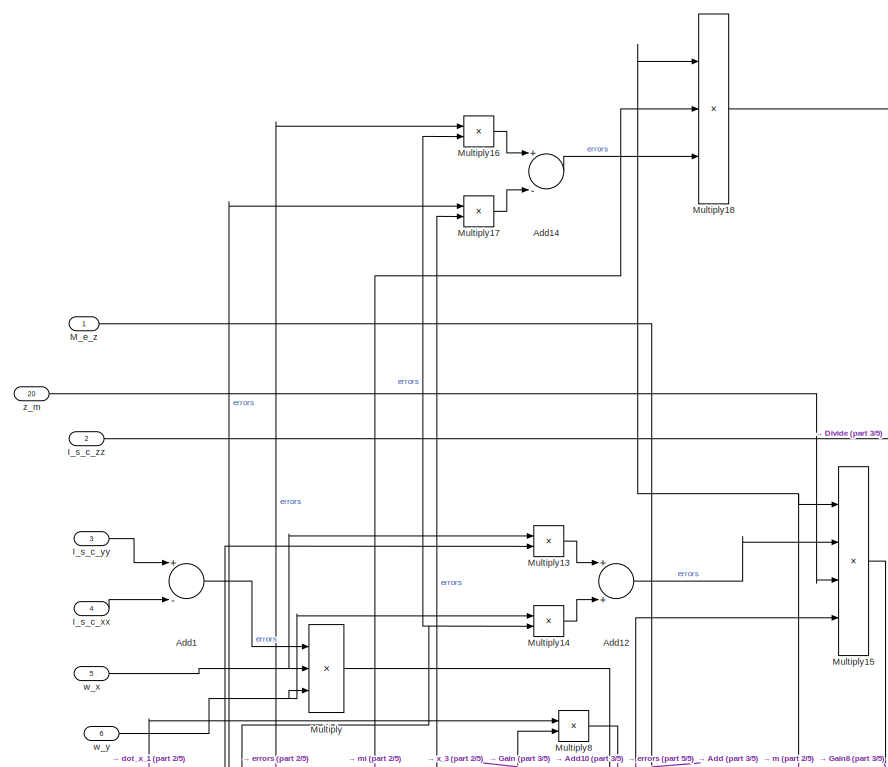
[diagram: MORUS/dot_w_z - part 1/5, top center region]
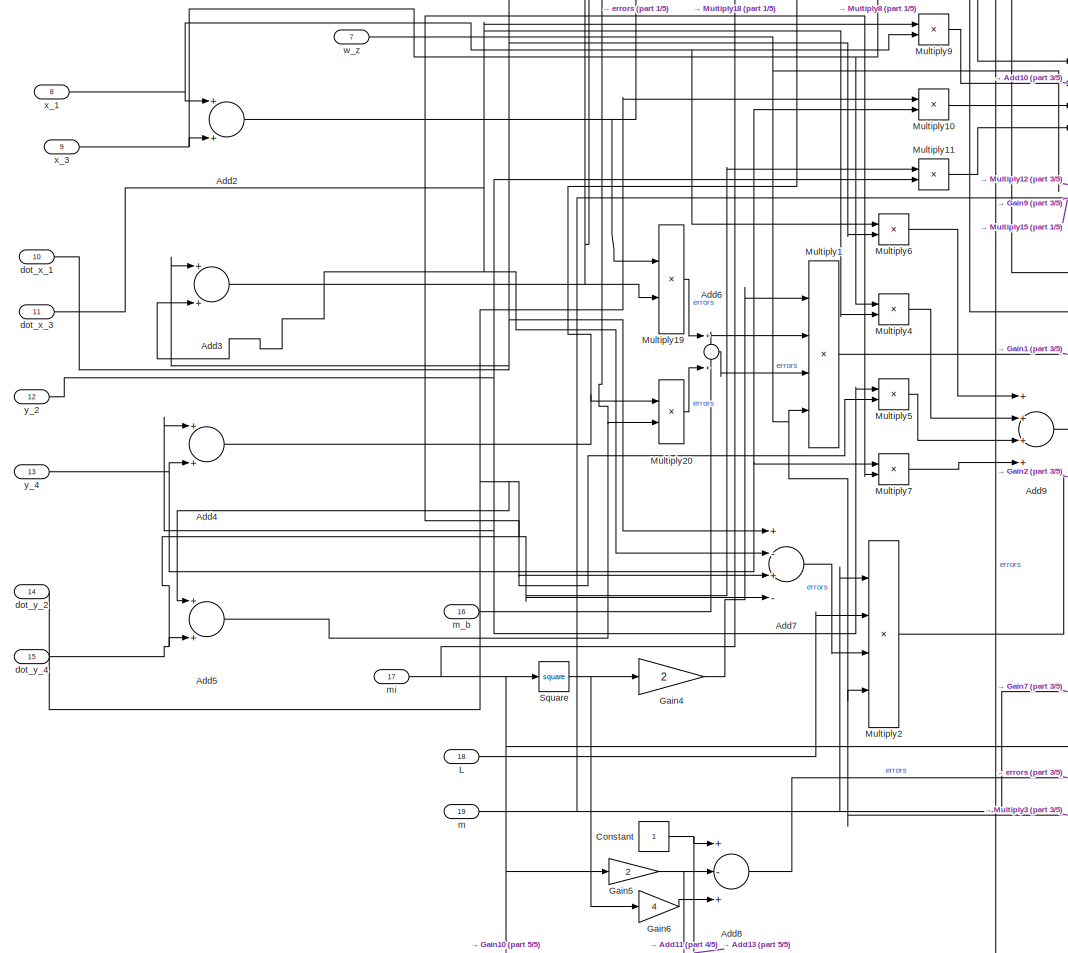
[diagram: MORUS/dot_w_z - part 2/5, middle left region]
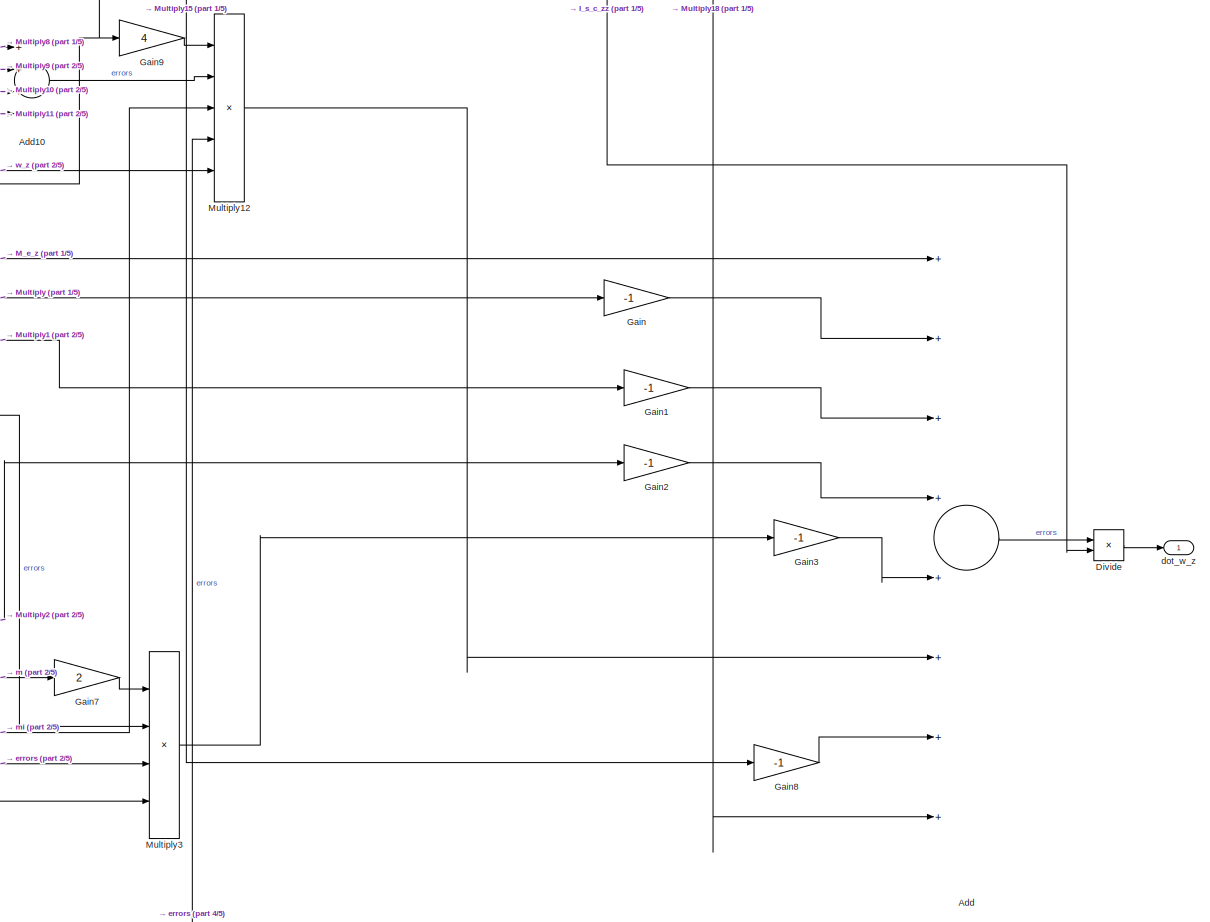
[diagram: MORUS/dot_w_z - part 3/5, middle right region]
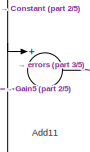
[diagram: MORUS/dot_w_z - part 4/5, bottom left region]
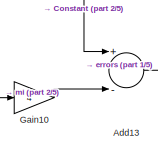
[diagram: MORUS/dot_w_z - part 5/5, bottom left region]
BLOCK [SubSystem] MORUS/dot_w_z
  Ports = [20, 1]
  Priority = 6
  RequestExecContextInheritance = off
BLOCK [Sum] MORUS/dot_w_z/Add
  AccumDataTypeStr = double
  InputSameDT = off
  Inputs = ++++++++
  OutDataTypeStr = double
  Ports = [8, 1]
  SaturateOnIntegerOverflow = off
BLOCK [Sum] MORUS/dot_w_z/Add1
  AccumDataTypeStr = double
  InputSameDT = off
  Inputs = +-
  OutDataTypeStr = double
  Ports = [2, 1]
  SaturateOnIntegerOverflow = off
BLOCK [Sum] MORUS/dot_w_z/Add10
  AccumDataTypeStr = double
  InputSameDT = off
  Inputs = ++++
  OutDataTypeStr = double
  Ports = [4, 1]
  SaturateOnIntegerOverflow = off
BLOCK [Sum] MORUS/dot_w_z/Add11
  AccumDataTypeStr = double
  InputSameDT = off
  Inputs = +-
  OutDataTypeStr = double
  Ports = [2, 1]
  SaturateOnIntegerOverflow = off
BLOCK [Sum] MORUS/dot_w_z/Add12
  AccumDataTypeStr = double
  InputSameDT = off
  OutDataTypeStr = double
  Ports = [2, 1]
  SaturateOnIntegerOverflow = off
BLOCK [Sum] MORUS/dot_w_z/Add13
  AccumDataTypeStr = double
  InputSameDT = off
  Inputs = +-
  OutDataTypeStr = double
  Ports = [2, 1]
  SaturateOnIntegerOverflow = off
BLOCK [Sum] MORUS/dot_w_z/Add14
  AccumDataTypeStr = double
  InputSameDT = off
  Inputs = +-
  OutDataTypeStr = double
  Ports = [2, 1]
  SaturateOnIntegerOverflow = off
BLOCK [Sum] MORUS/dot_w_z/Add2
  AccumDataTypeStr = double
  InputSameDT = off
  OutDataTypeStr = double
  Ports = [2, 1]
  SaturateOnIntegerOverflow = off
BLOCK [Sum] MORUS/dot_w_z/Add3
  AccumDataTypeStr = double
  InputSameDT = off
  OutDataTypeStr = double
  Ports = [2, 1]
  SaturateOnIntegerOverflow = off
BLOCK [Sum] MORUS/dot_w_z/Add4
  AccumDataTypeStr = double
  InputSameDT = off
  OutDataTypeStr = double
  Ports = [2, 1]
  SaturateOnIntegerOverflow = off
BLOCK [Sum] MORUS/dot_w_z/Add5
  AccumDataTypeStr = double
  InputSameDT = off
  OutDataTypeStr = double
  Ports = [2, 1]
  SaturateOnIntegerOverflow = off
BLOCK [Sum] MORUS/dot_w_z/Add6
  AccumDataTypeStr = double
  InputSameDT = off
  OutDataTypeStr = double
  Ports = [2, 1]
  SaturateOnIntegerOverflow = off
BLOCK [Sum] MORUS/dot_w_z/Add7
  AccumDataTypeStr = double
  InputSameDT = off
  Inputs = +-+-
  OutDataTypeStr = double
  Ports = [4, 1]
  SaturateOnIntegerOverflow = off
BLOCK [Sum] MORUS/dot_w_z/Add8
  AccumDataTypeStr = double
  InputSameDT = off
  Inputs = +-+
  OutDataTypeStr = double
  Ports = [3, 1]
  SaturateOnIntegerOverflow = off
BLOCK [Sum] MORUS/dot_w_z/Add9
  AccumDataTypeStr = double
  InputSameDT = off
  Inputs = ++++
  OutDataTypeStr = double
  Ports = [4, 1]
  SaturateOnIntegerOverflow = off
BLOCK [Constant] MORUS/dot_w_z/Constant
  OutDataTypeStr = double
  SampleTime = -1
BLOCK [Product] MORUS/dot_w_z/Divide
  InputSameDT = off
  Inputs = */
  OutDataTypeStr = double
  Ports = [2, 1]
  RndMeth = Floor
  SaturateOnIntegerOverflow = off
BLOCK [Gain] MORUS/dot_w_z/Gain
  Gain = -1
  OutDataTypeStr = Inherit: Inherit via internal rule
  ParamDataTypeStr = Inherit: Inherit via internal rule
  SaturateOnIntegerOverflow = off
BLOCK [Gain] MORUS/dot_w_z/Gain1
  Gain = -1
  OutDataTypeStr = Inherit: Inherit via internal rule
  ParamDataTypeStr = Inherit: Inherit via internal rule
  SaturateOnIntegerOverflow = off
BLOCK [Gain] MORUS/dot_w_z/Gain10
  Gain = 4
  OutDataTypeStr = Inherit: Inherit via internal rule
  ParamDataTypeStr = Inherit: Inherit via internal rule
  SaturateOnIntegerOverflow = off
BLOCK [Gain] MORUS/dot_w_z/Gain2
  Gain = -1
  OutDataTypeStr = Inherit: Inherit via internal rule
  ParamDataTypeStr = Inherit: Inherit via internal rule
  SaturateOnIntegerOverflow = off
BLOCK [Gain] MORUS/dot_w_z/Gain3
  Gain = -1
  OutDataTypeStr = Inherit: Inherit via internal rule
  ParamDataTypeStr = Inherit: Inherit via internal rule
  SaturateOnIntegerOverflow = off
BLOCK [Gain] MORUS/dot_w_z/Gain4
  Gain = 2
  OutDataTypeStr = Inherit: Inherit via internal rule
  ParamDataTypeStr = Inherit: Inherit via internal rule
  SaturateOnIntegerOverflow = off
BLOCK [Gain] MORUS/dot_w_z/Gain5
  Gain = 2
  OutDataTypeStr = Inherit: Inherit via internal rule
  ParamDataTypeStr = Inherit: Inherit via internal rule
  SaturateOnIntegerOverflow = off
BLOCK [Gain] MORUS/dot_w_z/Gain6
  Gain = 4
  OutDataTypeStr = Inherit: Inherit via internal rule
  ParamDataTypeStr = Inherit: Inherit via internal rule
  SaturateOnIntegerOverflow = off
BLOCK [Gain] MORUS/dot_w_z/Gain7
  Gain = 2
  OutDataTypeStr = Inherit: Inherit via internal rule
  ParamDataTypeStr = Inherit: Inherit via internal rule
  SaturateOnIntegerOverflow = off
BLOCK [Gain] MORUS/dot_w_z/Gain8
  Gain = -1
  OutDataTypeStr = Inherit: Inherit via internal rule
  ParamDataTypeStr = Inherit: Inherit via internal rule
  SaturateOnIntegerOverflow = off
BLOCK [Gain] MORUS/dot_w_z/Gain9
  Gain = 4
  OutDataTypeStr = Inherit: Inherit via internal rule
  ParamDataTypeStr = Inherit: Inherit via internal rule
  SaturateOnIntegerOverflow = off
BLOCK [Inport] MORUS/dot_w_z/I_s_c_xx
  IconDisplay = Port number
  Port = 4
BLOCK [Inport] MORUS/dot_w_z/I_s_c_yy
  IconDisplay = Port number
  Port = 3
BLOCK [Inport] MORUS/dot_w_z/I_s_c_zz
  IconDisplay = Port number
  Port = 2
BLOCK [Inport] MORUS/dot_w_z/L
  IconDisplay = Port number
  Port = 18
BLOCK [Inport] MORUS/dot_w_z/M_e_z
  IconDisplay = Port number
BLOCK [Product] MORUS/dot_w_z/Multiply
  InputSameDT = off
  Inputs = 3
  OutDataTypeStr = Inherit: Inherit via internal rule
  Ports = [3, 1]
  RndMeth = Floor
  SaturateOnIntegerOverflow = off
BLOCK [Product] MORUS/dot_w_z/Multiply1
  InputSameDT = off
  Inputs = 4
  OutDataTypeStr = Inherit: Inherit via internal rule
  Ports = [4, 1]
  RndMeth = Floor
  SaturateOnIntegerOverflow = off
BLOCK [Product] MORUS/dot_w_z/Multiply10
  InputSameDT = off
  OutDataTypeStr = Inherit: Inherit via internal rule
  Ports = [2, 1]
  RndMeth = Floor
  SaturateOnIntegerOverflow = off
BLOCK [Product] MORUS/dot_w_z/Multiply11
  InputSameDT = off
  OutDataTypeStr = Inherit: Inherit via internal rule
  Ports = [2, 1]
  RndMeth = Floor
  SaturateOnIntegerOverflow = off
BLOCK [Product] MORUS/dot_w_z/Multiply12
  InputSameDT = off
  Inputs = 5
  OutDataTypeStr = Inherit: Inherit via internal rule
  Ports = [5, 1]
  RndMeth = Floor
  SaturateOnIntegerOverflow = off
BLOCK [Product] MORUS/dot_w_z/Multiply13
  InputSameDT = off
  OutDataTypeStr = Inherit: Inherit via internal rule
  Ports = [2, 1]
  RndMeth = Floor
  SaturateOnIntegerOverflow = off
BLOCK [Product] MORUS/dot_w_z/Multiply14
  InputSameDT = off
  OutDataTypeStr = Inherit: Inherit via internal rule
  Ports = [2, 1]
  RndMeth = Floor
  SaturateOnIntegerOverflow = off
BLOCK [Product] MORUS/dot_w_z/Multiply15
  InputSameDT = off
  Inputs = 4
  OutDataTypeStr = Inherit: Inherit via internal rule
  Ports = [4, 1]
  RndMeth = Floor
  SaturateOnIntegerOverflow = off
BLOCK [Product] MORUS/dot_w_z/Multiply16
  InputSameDT = off
  OutDataTypeStr = Inherit: Inherit via internal rule
  Ports = [2, 1]
  RndMeth = Floor
  SaturateOnIntegerOverflow = off
BLOCK [Product] MORUS/dot_w_z/Multiply17
  InputSameDT = off
  OutDataTypeStr = Inherit: Inherit via internal rule
  Ports = [2, 1]
  RndMeth = Floor
  SaturateOnIntegerOverflow = off
BLOCK [Product] MORUS/dot_w_z/Multiply18
  InputSameDT = off
  Inputs = 3
  OutDataTypeStr = Inherit: Inherit via internal rule
  Ports = [3, 1]
  RndMeth = Floor
  SaturateOnIntegerOverflow = off
BLOCK [Product] MORUS/dot_w_z/Multiply19
  InputSameDT = off
  OutDataTypeStr = Inherit: Inherit via internal rule
  Ports = [2, 1]
  RndMeth = Floor
  SaturateOnIntegerOverflow = off
BLOCK [Product] MORUS/dot_w_z/Multiply2
  InputSameDT = off
  Inputs = 4
  OutDataTypeStr = Inherit: Inherit via internal rule
  Ports = [4, 1]
  RndMeth = Floor
  SaturateOnIntegerOverflow = off
BLOCK [Product] MORUS/dot_w_z/Multiply20
  InputSameDT = off
  OutDataTypeStr = Inherit: Inherit via internal rule
  Ports = [2, 1]
  RndMeth = Floor
  SaturateOnIntegerOverflow = off
BLOCK [Product] MORUS/dot_w_z/Multiply3
  InputSameDT = off
  Inputs = 4
  OutDataTypeStr = Inherit: Inherit via internal rule
  Ports = [4, 1]
  RndMeth = Floor
  SaturateOnIntegerOverflow = off
BLOCK [Product] MORUS/dot_w_z/Multiply4
  InputSameDT = off
  OutDataTypeStr = Inherit: Inherit via internal rule
  Ports = [2, 1]
  RndMeth = Floor
  SaturateOnIntegerOverflow = off
BLOCK [Product] MORUS/dot_w_z/Multiply5
  InputSameDT = off
  OutDataTypeStr = Inherit: Inherit via internal rule
  Ports = [2, 1]
  RndMeth = Floor
  SaturateOnIntegerOverflow = off
BLOCK [Product] MORUS/dot_w_z/Multiply6
  InputSameDT = off
  OutDataTypeStr = Inherit: Inherit via internal rule
  Ports = [2, 1]
  RndMeth = Floor
  SaturateOnIntegerOverflow = off
BLOCK [Product] MORUS/dot_w_z/Multiply7
  InputSameDT = off
  OutDataTypeStr = Inherit: Inherit via internal rule
  Ports = [2, 1]
  RndMeth = Floor
  SaturateOnIntegerOverflow = off
BLOCK [Product] MORUS/dot_w_z/Multiply8
  InputSameDT = off
  OutDataTypeStr = Inherit: Inherit via internal rule
  Ports = [2, 1]
  RndMeth = Floor
  SaturateOnIntegerOverflow = off
BLOCK [Product] MORUS/dot_w_z/Multiply9
  InputSameDT = off
  OutDataTypeStr = Inherit: Inherit via internal rule
  Ports = [2, 1]
  RndMeth = Floor
  SaturateOnIntegerOverflow = off
BLOCK [Math] MORUS/dot_w_z/Square
  Operator = square
  Ports = [1, 1]
BLOCK [Outport] MORUS/dot_w_z/dot_w_z
  IconDisplay = Port number
  OutDataTypeStr = double
BLOCK [Inport] MORUS/dot_w_z/dot_x_1
  IconDisplay = Port number
  Port = 10
BLOCK [Inport] MORUS/dot_w_z/dot_x_3
  IconDisplay = Port number
  Port = 11
BLOCK [Inport] MORUS/dot_w_z/dot_y_2
  IconDisplay = Port number
  Port = 14
BLOCK [Inport] MORUS/dot_w_z/dot_y_4
  IconDisplay = Port number
  Port = 15
BLOCK [Inport] MORUS/dot_w_z/m
  IconDisplay = Port number
  Port = 19
BLOCK [Inport] MORUS/dot_w_z/m_b
  IconDisplay = Port number
  Port = 16
BLOCK [Inport] MORUS/dot_w_z/mi
  IconDisplay = Port number
  Port = 17
BLOCK [Inport] MORUS/dot_w_z/w_x
  IconDisplay = Port number
  Port = 5
BLOCK [Inport] MORUS/dot_w_z/w_y
  IconDisplay = Port number
  Port = 6
BLOCK [Inport] MORUS/dot_w_z/w_z
  IconDisplay = Port number
  Port = 7
BLOCK [Inport] MORUS/dot_w_z/x_1
  IconDisplay = Port number
  Port = 8
BLOCK [Inport] MORUS/dot_w_z/x_3
  IconDisplay = Port number
  Port = 9
BLOCK [Inport] MORUS/dot_w_z/y_2
  IconDisplay = Port number
  Port = 12
BLOCK [Inport] MORUS/dot_w_z/y_4
  IconDisplay = Port number
  Port = 13
BLOCK [Inport] MORUS/dot_w_z/z_m
  IconDisplay = Port number
  Port = 20
BLOCK [Inport] MORUS/g
  IconDisplay = Port number
  Port = 15
BLOCK [Inport] MORUS/m
  IconDisplay = Port number
  Port = 9
BLOCK [Inport] MORUS/m_b
  IconDisplay = Port number
  Port = 23
BLOCK [Inport] MORUS/ref_masa_1
  IconDisplay = Port number
BLOCK [Inport] MORUS/ref_masa_2
  IconDisplay = Port number
  Port = 2
BLOCK [Inport] MORUS/ref_masa_3
  IconDisplay = Port number
  Port = 3
BLOCK [Inport] MORUS/ref_masa_4
  IconDisplay = Port number
  Port = 4
BLOCK [Inport] MORUS/ref_rotor_1
  IconDisplay = Port number
  Port = 5
BLOCK [Inport] MORUS/ref_rotor_2
  IconDisplay = Port number
  Port = 6
BLOCK [Inport] MORUS/ref_rotor_3
  IconDisplay = Port number
  Port = 7
BLOCK [Inport] MORUS/ref_rotor_4
  IconDisplay = Port number
  Port = 8
BLOCK [Outport] MORUS/x_1
  IconDisplay = Port number
  Port = 16
BLOCK [Outport] MORUS/x_3
  IconDisplay = Port number
  Port = 17
BLOCK [Outport] MORUS/y_2
  IconDisplay = Port number
  Port = 22
BLOCK [Outport] MORUS/y_4
  IconDisplay = Port number
  Port = 23
BLOCK [Inport] MORUS/z_m
  IconDisplay = Port number
  Port = 24
BLOCK [Inport] MORUS/z_r
  IconDisplay = Port number
  Port = 25
BLOCK [Inport] MORUS/zeta_1
  IconDisplay = Port number
  Port = 19
BLOCK [Inport] MORUS/zeta_2
  IconDisplay = Port number
  Port = 20
BLOCK [Inport] MORUS/zeta_3
  IconDisplay = Port number
  Port = 21
BLOCK [Inport] MORUS/zeta_4
  IconDisplay = Port number
  Port = 22
BLOCK [SubSystem] MPC PITCH
  Ports = [4, 1]
  Priority = 13
  RequestExecContextInheritance = off
BLOCK [Constant] MPC PITCH/Const_y
  Value = odabir
BLOCK [Constant] MPC PITCH/Constant
  Value = A_dis_calc
BLOCK [Constant] MPC PITCH/Constant1
  Value = B_dis_calc
BLOCK [Demux] MPC PITCH/Demux
  DisplayOption = bar
  Ports = [1, 4]
BLOCK [Demux] MPC PITCH/Demux1
  DisplayOption = bar
  Ports = [1, 4]
BLOCK [From] MPC PITCH/From
  GotoTag = odabir
BLOCK [From] MPC PITCH/From1
  GotoTag = odabir
BLOCK [From] MPC PITCH/From10
  GotoTag = u_ss
BLOCK [From] MPC PITCH/From11
  GotoTag = x_ss
BLOCK [From] MPC PITCH/From12
  GotoTag = x_0
BLOCK [From] MPC PITCH/From13
  GotoTag = odabir
BLOCK [From] MPC PITCH/From14
  GotoTag = u_ss
BLOCK [From] MPC PITCH/From15
  GotoTag = x_ss
BLOCK [From] MPC PITCH/From16
  GotoTag = x_0
BLOCK [From] MPC PITCH/From17
BLOCK [From] MPC PITCH/From18
  GotoTag = B
BLOCK [From] MPC PITCH/From19
BLOCK [From] MPC PITCH/From2
  GotoTag = u_ss
BLOCK [From] MPC PITCH/From20
  GotoTag = B
BLOCK [From] MPC PITCH/From21
BLOCK [From] MPC PITCH/From22
  GotoTag = B
BLOCK [From] MPC PITCH/From23
BLOCK [From] MPC PITCH/From24
  GotoTag = B
BLOCK [From] MPC PITCH/From3
  GotoTag = x_ss
BLOCK [From] MPC PITCH/From4
  GotoTag = x_0
BLOCK [From] MPC PITCH/From5
  GotoTag = odabir
BLOCK [From] MPC PITCH/From6
  GotoTag = u_ss
BLOCK [From] MPC PITCH/From7
  GotoTag = x_ss
BLOCK [From] MPC PITCH/From8
  GotoTag = x_0
BLOCK [From] MPC PITCH/From9
  GotoTag = odabir
BLOCK [Goto] MPC PITCH/Goto
  GotoTag = u_ss
BLOCK [Goto] MPC PITCH/Goto1
  GotoTag = x_ss
BLOCK [Goto] MPC PITCH/Goto2
  GotoTag = x_0
BLOCK [Goto] MPC PITCH/Goto3
  GotoTag = odabir
BLOCK [Goto] MPC PITCH/Goto4
BLOCK [Goto] MPC PITCH/Goto5
  GotoTag = B
BLOCK [Inport] MPC PITCH/KRENI
  IconDisplay = Port number
BLOCK [SubSystem] MPC PITCH/MATLAB Function1
  ErrorFcn = Stateflow.Translate.translate
  PermitHierarchicalResolution = ExplicitOnly
  Ports = [6, 1]
  RequestExecContextInheritance = off
  SFBlockType = MATLAB Function
  SystemSampleTime = kSamplingTime
  TreatAsAtomicUnit = on
BLOCK [Demux] MPC PITCH/MATLAB Function1/ Demux 
  Outputs = 1
  Ports = [1, 1]
BLOCK [S-Function] MPC PITCH/MATLAB Function1/ SFunction 
  EnableBusSupport = on
  FunctionName = sf_sfun
  PortCounts = [6 2]
  Ports = [6, 2]
  SFcnIsStateOwnerBlock = off
  SFunctionDeploymentMode = off
  Tag = Stateflow S-Function MORUS_NELINEARNI_ALGH 4
BLOCK [Terminator] MPC PITCH/MATLAB Function1/ Terminator 
BLOCK [Inport] MPC PITCH/MATLAB Function1/A
  IconDisplay = Port number
  Port = 5
BLOCK [Inport] MPC PITCH/MATLAB Function1/B
  IconDisplay = Port number
  Port = 6
BLOCK [Inport] MPC PITCH/MATLAB Function1/kreni
  IconDisplay = Port number
  Port = 4
BLOCK [Outport] MPC PITCH/MATLAB Function1/u
  IconDisplay = Port number
BLOCK [Inport] MPC PITCH/MATLAB Function1/u_ss_
  IconDisplay = Port number
  Port = 3
BLOCK [Inport] MPC PITCH/MATLAB Function1/x0_
  IconDisplay = Port number
BLOCK [Inport] MPC PITCH/MATLAB Function1/x_ss_
  IconDisplay = Port number
  Port = 2
BLOCK [SubSystem] MPC PITCH/MATLAB Function2
  ErrorFcn = Stateflow.Translate.translate
  PermitHierarchicalResolution = ExplicitOnly
  Ports = [6, 1]
  RequestExecContextInheritance = off
  SFBlockType = MATLAB Function
  SystemSampleTime = kSamplingTime
  TreatAsAtomicUnit = on
BLOCK [Demux] MPC PITCH/MATLAB Function2/ Demux 
  Outputs = 1
  Ports = [1, 1]
BLOCK [S-Function] MPC PITCH/MATLAB Function2/ SFunction 
  EnableBusSupport = on
  FunctionName = sf_sfun
  PortCounts = [6 2]
  Ports = [6, 2]
  SFcnIsStateOwnerBlock = off
  SFunctionDeploymentMode = off
  Tag = Stateflow S-Function MORUS_NELINEARNI_ALGH 9
BLOCK [Terminator] MPC PITCH/MATLAB Function2/ Terminator 
BLOCK [Inport] MPC PITCH/MATLAB Function2/A
  IconDisplay = Port number
  Port = 5
BLOCK [Inport] MPC PITCH/MATLAB Function2/B
  IconDisplay = Port number
  Port = 6
BLOCK [Inport] MPC PITCH/MATLAB Function2/kreni
  IconDisplay = Port number
  Port = 4
BLOCK [Outport] MPC PITCH/MATLAB Function2/u
  IconDisplay = Port number
BLOCK [Inport] MPC PITCH/MATLAB Function2/u_ss_
  IconDisplay = Port number
  Port = 3
BLOCK [Inport] MPC PITCH/MATLAB Function2/x0_
  IconDisplay = Port number
BLOCK [Inport] MPC PITCH/MATLAB Function2/x_ss_
  IconDisplay = Port number
  Port = 2
BLOCK [SubSystem] MPC PITCH/MATLAB Function3
  ErrorFcn = Stateflow.Translate.translate
  PermitHierarchicalResolution = ExplicitOnly
  Ports = [6, 1]
  RequestExecContextInheritance = off
  SFBlockType = MATLAB Function
  SystemSampleTime = kSamplingTime
  TreatAsAtomicUnit = on
BLOCK [Demux] MPC PITCH/MATLAB Function3/ Demux 
  Outputs = 1
  Ports = [1, 1]
BLOCK [S-Function] MPC PITCH/MATLAB Function3/ SFunction 
  EnableBusSupport = on
  FunctionName = sf_sfun
  PortCounts = [6 2]
  Ports = [6, 2]
  SFcnIsStateOwnerBlock = off
  SFunctionDeploymentMode = off
  Tag = Stateflow S-Function MORUS_NELINEARNI_ALGH 10
BLOCK [Terminator] MPC PITCH/MATLAB Function3/ Terminator 
BLOCK [Inport] MPC PITCH/MATLAB Function3/A
  IconDisplay = Port number
  Port = 5
BLOCK [Inport] MPC PITCH/MATLAB Function3/B
  IconDisplay = Port number
  Port = 6
BLOCK [Inport] MPC PITCH/MATLAB Function3/kreni
  IconDisplay = Port number
  Port = 4
BLOCK [Outport] MPC PITCH/MATLAB Function3/u
  IconDisplay = Port number
BLOCK [Inport] MPC PITCH/MATLAB Function3/u_ss_
  IconDisplay = Port number
  Port = 3
BLOCK [Inport] MPC PITCH/MATLAB Function3/x0_
  IconDisplay = Port number
BLOCK [Inport] MPC PITCH/MATLAB Function3/x_ss_
  IconDisplay = Port number
  Port = 2
BLOCK [SubSystem] MPC PITCH/MATLAB Function4
  ErrorFcn = Stateflow.Translate.translate
  PermitHierarchicalResolution = ExplicitOnly
  Ports = [6, 1]
  RequestExecContextInheritance = off
  SFBlockType = MATLAB Function
  SystemSampleTime = kSamplingTime
  TreatAsAtomicUnit = on
BLOCK [Demux] MPC PITCH/MATLAB Function4/ Demux 
  Outputs = 1
  Ports = [1, 1]
BLOCK [S-Function] MPC PITCH/MATLAB Function4/ SFunction 
  EnableBusSupport = on
  FunctionName = sf_sfun
  PortCounts = [6 2]
  Ports = [6, 2]
  SFcnIsStateOwnerBlock = off
  SFunctionDeploymentMode = off
  Tag = Stateflow S-Function MORUS_NELINEARNI_ALGH 11
BLOCK [Terminator] MPC PITCH/MATLAB Function4/ Terminator 
BLOCK [Inport] MPC PITCH/MATLAB Function4/A
  IconDisplay = Port number
  Port = 5
BLOCK [Inport] MPC PITCH/MATLAB Function4/B
  IconDisplay = Port number
  Port = 6
BLOCK [Inport] MPC PITCH/MATLAB Function4/kreni
  IconDisplay = Port number
  Port = 4
BLOCK [Outport] MPC PITCH/MATLAB Function4/u
  IconDisplay = Port number
BLOCK [Inport] MPC PITCH/MATLAB Function4/u_ss_
  IconDisplay = Port number
  Port = 3
BLOCK [Inport] MPC PITCH/MATLAB Function4/x0_
  IconDisplay = Port number
BLOCK [Inport] MPC PITCH/MATLAB Function4/x_ss_
  IconDisplay = Port number
  Port = 2
BLOCK [Inport] MPC PITCH/PITCH_SATURATION_STATE_SPACE
  IconDisplay = Port number
  Port = 3
BLOCK [Inport] MPC PITCH/PITCH_SIGNAL_SATURATION
  IconDisplay = Port number
  Port = 4
BLOCK [Inport] MPC PITCH/PITCH_STATE_SPACE
  IconDisplay = Port number
  Port = 2
BLOCK [Product] MPC PITCH/Product
  InputSameDT = off
  OutDataTypeStr = Inherit: Inherit via internal rule
  Ports = [2, 1]
  RndMeth = Floor
  SaturateOnIntegerOverflow = off
BLOCK [Outport] MPC PITCH/SIGNAL_PITCH
  IconDisplay = Port number
BLOCK [Scope] MPC PITCH/Scope
  Floating = off
  NumInputPorts = 1
  Ports = [1]
  ScopeSpecificationString = Simulink.scopes.TimeScopeBlockCfg('CurrentConfiguration', extmgr.ConfigurationSet(extmgr.Configuration('Core','General UI',true),extmgr.Configuration('Core','Source UI',true),extmgr.Configuration('Sources','WiredSimulink',true,'DataLoggingVariableName','ScopeData19'),extmgr.Configuration('Visuals','Time Domain',true,'SerializedDisplays',{struct('MinYLimReal','-0.02979','MaxYLimReal','0.14385','YLa...<+1413ch>
BLOCK [Scope] MPC PITCH/Scope1
  Floating = off
  NumInputPorts = 1
  Ports = [1]
  ScopeSpecificationString = Simulink.scopes.TimeScopeBlockCfg('CurrentConfiguration', extmgr.ConfigurationSet(extmgr.Configuration('Core','General UI',true),extmgr.Configuration('Core','Source UI',true),extmgr.Configuration('Sources','WiredSimulink',true,'DataLoggingVariableName','ScopeData20'),extmgr.Configuration('Visuals','Time Domain',true,'SerializedDisplays',{struct('MinYLimReal','-0.0144','MaxYLimReal','0.12483','YLab...<+1365ch>
BLOCK [Scope] MPC PITCH/Scope2
  Floating = off
  NumInputPorts = 1
  Ports = [1]
  ScopeSpecificationString = Simulink.scopes.TimeScopeBlockCfg('CurrentConfiguration', extmgr.ConfigurationSet(extmgr.Configuration('Core','General UI',true),extmgr.Configuration('Core','Source UI',true),extmgr.Configuration('Sources','WiredSimulink',true,'DataLoggingVariableName','ScopeData21'),extmgr.Configuration('Visuals','Time Domain',true,'SerializedDisplays',{struct('MinYLimReal','-0.08751','MaxYLimReal','0.04866','YLa...<+1413ch>
BLOCK [Scope] MPC PITCH/Scope3
  Floating = off
  NumInputPorts = 1
  Ports = [1]
  ScopeSpecificationString = Simulink.scopes.TimeScopeBlockCfg('CurrentConfiguration', extmgr.ConfigurationSet(extmgr.Configuration('Core','General UI',true),extmgr.Configuration('Core','Source UI',true),extmgr.Configuration('Sources','WiredSimulink',true,'DataLoggingVariableName','ScopeData22'),extmgr.Configuration('Visuals','Time Domain',true,'SerializedDisplays',{struct('MinYLimReal','-0.00301','MaxYLimReal','0.01285','YLa...<+1413ch>
BLOCK [Scope] MPC PITCH/Scope4
  Floating = off
  NumInputPorts = 1
  Ports = [1]
  ScopeSpecificationString = Simulink.scopes.TimeScopeBlockCfg('CurrentConfiguration', extmgr.ConfigurationSet(extmgr.Configuration('Core','General UI',true),extmgr.Configuration('Core','Source UI',true),extmgr.Configuration('Sources','WiredSimulink',true,'DataLoggingVariableName','ScopeData23'),extmgr.Configuration('Visuals','Time Domain',true),extmgr.Configuration('Tools','Plot Navigation',true),extmgr.Configuration('Tools'...<+41ch>
BLOCK [Scope] MPC PITCH/Scope5
  Floating = off
  NumInputPorts = 1
  Ports = [1]
  ScopeSpecificationString = Simulink.scopes.TimeScopeBlockCfg('CurrentConfiguration', extmgr.ConfigurationSet(extmgr.Configuration('Core','General UI',true),extmgr.Configuration('Core','Source UI',true),extmgr.Configuration('Sources','WiredSimulink',true,'DataLoggingVariableName','ScopeData24'),extmgr.Configuration('Visuals','Time Domain',true),extmgr.Configuration('Tools','Plot Navigation',true),extmgr.Configuration('Tools'...<+41ch>
BLOCK [Scope] MPC PITCH/Scope6
  Floating = off
  NumInputPorts = 1
  Ports = [1]
  ScopeSpecificationString = Simulink.scopes.TimeScopeBlockCfg('CurrentConfiguration', extmgr.ConfigurationSet(extmgr.Configuration('Core','General UI',true),extmgr.Configuration('Core','Source UI',true),extmgr.Configuration('Sources','WiredSimulink',true,'DataLoggingVariableName','ScopeData25'),extmgr.Configuration('Visuals','Time Domain',true),extmgr.Configuration('Tools','Plot Navigation',true),extmgr.Configuration('Tools'...<+41ch>
BLOCK [Scope] MPC PITCH/Scope7
  Floating = off
  NumInputPorts = 1
  Ports = [1]
  ScopeSpecificationString = Simulink.scopes.TimeScopeBlockCfg('CurrentConfiguration', extmgr.ConfigurationSet(extmgr.Configuration('Core','General UI',true),extmgr.Configuration('Core','Source UI',true),extmgr.Configuration('Sources','WiredSimulink',true,'DataLoggingVariableName','ScopeData26'),extmgr.Configuration('Visuals','Time Domain',true),extmgr.Configuration('Tools','Plot Navigation',true),extmgr.Configuration('Tools'...<+41ch>
BLOCK [MultiPortSwitch] MPC PITCH/Switch_y
  DiagnosticForDefault = None
  InputSameDT = off
  Inputs = 4
  Ports = [5, 1]
  SaturateOnIntegerOverflow = off
BLOCK [SubSystem] MPC ROLL
  Ports = [4, 1]
  Priority = 13
  RequestExecContextInheritance = off
BLOCK [Constant] MPC ROLL/Const_y
  Value = odabir
BLOCK [Constant] MPC ROLL/Constant
  Value = A_dis_calc
BLOCK [Constant] MPC ROLL/Constant1
  Value = B_dis_calc
BLOCK [Demux] MPC ROLL/Demux
  DisplayOption = bar
  Ports = [1, 4]
BLOCK [Demux] MPC ROLL/Demux1
  DisplayOption = bar
  Ports = [1, 4]
BLOCK [From] MPC ROLL/From
  GotoTag = odabir
BLOCK [From] MPC ROLL/From1
  GotoTag = odabir
BLOCK [From] MPC ROLL/From10
  GotoTag = u_ss
BLOCK [From] MPC ROLL/From11
  GotoTag = x_ss
BLOCK [From] MPC ROLL/From12
  GotoTag = x_0
BLOCK [From] MPC ROLL/From13
  GotoTag = odabir
BLOCK [From] MPC ROLL/From14
  GotoTag = u_ss
BLOCK [From] MPC ROLL/From15
  GotoTag = x_ss
BLOCK [From] MPC ROLL/From16
  GotoTag = x_0
BLOCK [From] MPC ROLL/From17
BLOCK [From] MPC ROLL/From18
  GotoTag = B
BLOCK [From] MPC ROLL/From19
BLOCK [From] MPC ROLL/From2
  GotoTag = u_ss
BLOCK [From] MPC ROLL/From20
  GotoTag = B
BLOCK [From] MPC ROLL/From21
BLOCK [From] MPC ROLL/From22
  GotoTag = B
BLOCK [From] MPC ROLL/From23
BLOCK [From] MPC ROLL/From24
  GotoTag = B
BLOCK [From] MPC ROLL/From3
  GotoTag = x_ss
BLOCK [From] MPC ROLL/From4
  GotoTag = x_0
BLOCK [From] MPC ROLL/From5
  GotoTag = odabir
BLOCK [From] MPC ROLL/From6
  GotoTag = u_ss
BLOCK [From] MPC ROLL/From7
  GotoTag = x_ss
BLOCK [From] MPC ROLL/From8
  GotoTag = x_0
BLOCK [From] MPC ROLL/From9
  GotoTag = odabir
BLOCK [Goto] MPC ROLL/Goto
  GotoTag = u_ss
BLOCK [Goto] MPC ROLL/Goto1
  GotoTag = x_ss
BLOCK [Goto] MPC ROLL/Goto2
  GotoTag = x_0
BLOCK [Goto] MPC ROLL/Goto3
  GotoTag = odabir
BLOCK [Goto] MPC ROLL/Goto4
BLOCK [Goto] MPC ROLL/Goto5
  GotoTag = B
BLOCK [Inport] MPC ROLL/KRENI
  IconDisplay = Port number
BLOCK [SubSystem] MPC ROLL/MATLAB Function1
  ErrorFcn = Stateflow.Translate.translate
  PermitHierarchicalResolution = ExplicitOnly
  Ports = [6, 1]
  RequestExecContextInheritance = off
  SFBlockType = MATLAB Function
  SystemSampleTime = kSamplingTime
  TreatAsAtomicUnit = on
BLOCK [Demux] MPC ROLL/MATLAB Function1/ Demux 
  Outputs = 1
  Ports = [1, 1]
BLOCK [S-Function] MPC ROLL/MATLAB Function1/ SFunction 
  EnableBusSupport = on
  FunctionName = sf_sfun
  PortCounts = [6 2]
  Ports = [6, 2]
  SFcnIsStateOwnerBlock = off
  SFunctionDeploymentMode = off
  Tag = Stateflow S-Function MORUS_NELINEARNI_ALGH 3
BLOCK [Terminator] MPC ROLL/MATLAB Function1/ Terminator 
BLOCK [Inport] MPC ROLL/MATLAB Function1/A
  IconDisplay = Port number
  Port = 5
BLOCK [Inport] MPC ROLL/MATLAB Function1/B
  IconDisplay = Port number
  Port = 6
BLOCK [Inport] MPC ROLL/MATLAB Function1/kreni
  IconDisplay = Port number
  Port = 4
BLOCK [Outport] MPC ROLL/MATLAB Function1/u
  IconDisplay = Port number
BLOCK [Inport] MPC ROLL/MATLAB Function1/u_ss_
  IconDisplay = Port number
  Port = 3
BLOCK [Inport] MPC ROLL/MATLAB Function1/x0_
  IconDisplay = Port number
BLOCK [Inport] MPC ROLL/MATLAB Function1/x_ss_
  IconDisplay = Port number
  Port = 2
BLOCK [SubSystem] MPC ROLL/MATLAB Function2
  ErrorFcn = Stateflow.Translate.translate
  PermitHierarchicalResolution = ExplicitOnly
  Ports = [6, 1]
  RequestExecContextInheritance = off
  SFBlockType = MATLAB Function
  SystemSampleTime = kSamplingTime
  TreatAsAtomicUnit = on
BLOCK [Demux] MPC ROLL/MATLAB Function2/ Demux 
  Outputs = 1
  Ports = [1, 1]
BLOCK [S-Function] MPC ROLL/MATLAB Function2/ SFunction 
  EnableBusSupport = on
  FunctionName = sf_sfun
  PortCounts = [6 2]
  Ports = [6, 2]
  SFcnIsStateOwnerBlock = off
  SFunctionDeploymentMode = off
  Tag = Stateflow S-Function MORUS_NELINEARNI_ALGH 6
BLOCK [Terminator] MPC ROLL/MATLAB Function2/ Terminator 
BLOCK [Inport] MPC ROLL/MATLAB Function2/A
  IconDisplay = Port number
  Port = 5
BLOCK [Inport] MPC ROLL/MATLAB Function2/B
  IconDisplay = Port number
  Port = 6
BLOCK [Inport] MPC ROLL/MATLAB Function2/kreni
  IconDisplay = Port number
  Port = 4
BLOCK [Outport] MPC ROLL/MATLAB Function2/u
  IconDisplay = Port number
BLOCK [Inport] MPC ROLL/MATLAB Function2/u_ss_
  IconDisplay = Port number
  Port = 3
BLOCK [Inport] MPC ROLL/MATLAB Function2/x0_
  IconDisplay = Port number
BLOCK [Inport] MPC ROLL/MATLAB Function2/x_ss_
  IconDisplay = Port number
  Port = 2
BLOCK [SubSystem] MPC ROLL/MATLAB Function3
  ErrorFcn = Stateflow.Translate.translate
  PermitHierarchicalResolution = ExplicitOnly
  Ports = [6, 1]
  RequestExecContextInheritance = off
  SFBlockType = MATLAB Function
  SystemSampleTime = kSamplingTime
  TreatAsAtomicUnit = on
BLOCK [Demux] MPC ROLL/MATLAB Function3/ Demux 
  Outputs = 1
  Ports = [1, 1]
BLOCK [S-Function] MPC ROLL/MATLAB Function3/ SFunction 
  EnableBusSupport = on
  FunctionName = sf_sfun
  PortCounts = [6 2]
  Ports = [6, 2]
  SFcnIsStateOwnerBlock = off
  SFunctionDeploymentMode = off
  Tag = Stateflow S-Function MORUS_NELINEARNI_ALGH 7
BLOCK [Terminator] MPC ROLL/MATLAB Function3/ Terminator 
BLOCK [Inport] MPC ROLL/MATLAB Function3/A
  IconDisplay = Port number
  Port = 5
BLOCK [Inport] MPC ROLL/MATLAB Function3/B
  IconDisplay = Port number
  Port = 6
BLOCK [Inport] MPC ROLL/MATLAB Function3/kreni
  IconDisplay = Port number
  Port = 4
BLOCK [Outport] MPC ROLL/MATLAB Function3/u
  IconDisplay = Port number
BLOCK [Inport] MPC ROLL/MATLAB Function3/u_ss_
  IconDisplay = Port number
  Port = 3
BLOCK [Inport] MPC ROLL/MATLAB Function3/x0_
  IconDisplay = Port number
BLOCK [Inport] MPC ROLL/MATLAB Function3/x_ss_
  IconDisplay = Port number
  Port = 2
BLOCK [SubSystem] MPC ROLL/MATLAB Function4
  ErrorFcn = Stateflow.Translate.translate
  PermitHierarchicalResolution = ExplicitOnly
  Ports = [6, 1]
  RequestExecContextInheritance = off
  SFBlockType = MATLAB Function
  SystemSampleTime = kSamplingTime
  TreatAsAtomicUnit = on
BLOCK [Demux] MPC ROLL/MATLAB Function4/ Demux 
  Outputs = 1
  Ports = [1, 1]
BLOCK [S-Function] MPC ROLL/MATLAB Function4/ SFunction 
  EnableBusSupport = on
  FunctionName = sf_sfun
  PortCounts = [6 2]
  Ports = [6, 2]
  SFcnIsStateOwnerBlock = off
  SFunctionDeploymentMode = off
  Tag = Stateflow S-Function MORUS_NELINEARNI_ALGH 8
BLOCK [Terminator] MPC ROLL/MATLAB Function4/ Terminator 
BLOCK [Inport] MPC ROLL/MATLAB Function4/A
  IconDisplay = Port number
  Port = 5
BLOCK [Inport] MPC ROLL/MATLAB Function4/B
  IconDisplay = Port number
  Port = 6
BLOCK [Inport] MPC ROLL/MATLAB Function4/kreni
  IconDisplay = Port number
  Port = 4
BLOCK [Outport] MPC ROLL/MATLAB Function4/u
  IconDisplay = Port number
BLOCK [Inport] MPC ROLL/MATLAB Function4/u_ss_
  IconDisplay = Port number
  Port = 3
BLOCK [Inport] MPC ROLL/MATLAB Function4/x0_
  IconDisplay = Port number
BLOCK [Inport] MPC ROLL/MATLAB Function4/x_ss_
  IconDisplay = Port number
  Port = 2
BLOCK [Product] MPC ROLL/Product
  InputSameDT = off
  OutDataTypeStr = Inherit: Inherit via internal rule
  Ports = [2, 1]
  RndMeth = Floor
  SaturateOnIntegerOverflow = off
BLOCK [Inport] MPC ROLL/ROLL_SATURATION_STATE_SPACE
  IconDisplay = Port number
  Port = 3
BLOCK [Inport] MPC ROLL/ROLL_SIGNAL_SATURATION
  IconDisplay = Port number
  Port = 4
BLOCK [Inport] MPC ROLL/ROLL_STATE_SPACE
  IconDisplay = Port number
  Port = 2
BLOCK [Outport] MPC ROLL/SIGNAL_ROLL
  IconDisplay = Port number
BLOCK [Scope] MPC ROLL/Scope
  Floating = off
  NumInputPorts = 1
  Ports = [1]
  ScopeSpecificationString = Simulink.scopes.TimeScopeBlockCfg('CurrentConfiguration', extmgr.ConfigurationSet(extmgr.Configuration('Core','General UI',true),extmgr.Configuration('Core','Source UI',true),extmgr.Configuration('Sources','WiredSimulink',true,'DataLoggingVariableName','ScopeData19'),extmgr.Configuration('Visuals','Time Domain',true,'SerializedDisplays',{struct('MinYLimReal','-0.02979','MaxYLimReal','0.14385','YLa...<+1413ch>
BLOCK [Scope] MPC ROLL/Scope1
  Floating = off
  NumInputPorts = 1
  Ports = [1]
  ScopeSpecificationString = Simulink.scopes.TimeScopeBlockCfg('CurrentConfiguration', extmgr.ConfigurationSet(extmgr.Configuration('Core','General UI',true),extmgr.Configuration('Core','Source UI',true),extmgr.Configuration('Sources','WiredSimulink',true,'DataLoggingVariableName','ScopeData20'),extmgr.Configuration('Visuals','Time Domain',true,'SerializedDisplays',{struct('MinYLimReal','-0.0144','MaxYLimReal','0.12483','YLab...<+1365ch>
BLOCK [Scope] MPC ROLL/Scope2
  Floating = off
  NumInputPorts = 1
  Ports = [1]
  ScopeSpecificationString = Simulink.scopes.TimeScopeBlockCfg('CurrentConfiguration', extmgr.ConfigurationSet(extmgr.Configuration('Core','General UI',true),extmgr.Configuration('Core','Source UI',true),extmgr.Configuration('Sources','WiredSimulink',true,'DataLoggingVariableName','ScopeData21'),extmgr.Configuration('Visuals','Time Domain',true,'SerializedDisplays',{struct('MinYLimReal','-0.08751','MaxYLimReal','0.04866','YLa...<+1413ch>
BLOCK [Scope] MPC ROLL/Scope3
  Floating = off
  NumInputPorts = 1
  Ports = [1]
  ScopeSpecificationString = Simulink.scopes.TimeScopeBlockCfg('CurrentConfiguration', extmgr.ConfigurationSet(extmgr.Configuration('Core','General UI',true),extmgr.Configuration('Core','Source UI',true),extmgr.Configuration('Sources','WiredSimulink',true,'DataLoggingVariableName','ScopeData22'),extmgr.Configuration('Visuals','Time Domain',true,'SerializedDisplays',{struct('MinYLimReal','-0.00301','MaxYLimReal','0.01285','YLa...<+1413ch>
BLOCK [Scope] MPC ROLL/Scope4
  Floating = off
  NumInputPorts = 1
  Ports = [1]
  ScopeSpecificationString = Simulink.scopes.TimeScopeBlockCfg('CurrentConfiguration', extmgr.ConfigurationSet(extmgr.Configuration('Core','General UI',true),extmgr.Configuration('Core','Source UI',true),extmgr.Configuration('Sources','WiredSimulink',true,'DataLoggingVariableName','ScopeData23'),extmgr.Configuration('Visuals','Time Domain',true),extmgr.Configuration('Tools','Plot Navigation',true),extmgr.Configuration('Tools'...<+41ch>
BLOCK [Scope] MPC ROLL/Scope5
  Floating = off
  NumInputPorts = 1
  Ports = [1]
  ScopeSpecificationString = Simulink.scopes.TimeScopeBlockCfg('CurrentConfiguration', extmgr.ConfigurationSet(extmgr.Configuration('Core','General UI',true),extmgr.Configuration('Core','Source UI',true),extmgr.Configuration('Sources','WiredSimulink',true,'DataLoggingVariableName','ScopeData24'),extmgr.Configuration('Visuals','Time Domain',true),extmgr.Configuration('Tools','Plot Navigation',true),extmgr.Configuration('Tools'...<+41ch>
BLOCK [Scope] MPC ROLL/Scope6
  Floating = off
  NumInputPorts = 1
  Ports = [1]
  ScopeSpecificationString = Simulink.scopes.TimeScopeBlockCfg('CurrentConfiguration', extmgr.ConfigurationSet(extmgr.Configuration('Core','General UI',true),extmgr.Configuration('Core','Source UI',true),extmgr.Configuration('Sources','WiredSimulink',true,'DataLoggingVariableName','ScopeData25'),extmgr.Configuration('Visuals','Time Domain',true),extmgr.Configuration('Tools','Plot Navigation',true),extmgr.Configuration('Tools'...<+41ch>
BLOCK [Scope] MPC ROLL/Scope7
  Floating = off
  NumInputPorts = 1
  Ports = [1]
  ScopeSpecificationString = Simulink.scopes.TimeScopeBlockCfg('CurrentConfiguration', extmgr.ConfigurationSet(extmgr.Configuration('Core','General UI',true),extmgr.Configuration('Core','Source UI',true),extmgr.Configuration('Sources','WiredSimulink',true,'DataLoggingVariableName','ScopeData26'),extmgr.Configuration('Visuals','Time Domain',true),extmgr.Configuration('Tools','Plot Navigation',true),extmgr.Configuration('Tools'...<+41ch>
BLOCK [MultiPortSwitch] MPC ROLL/Switch_y
  DiagnosticForDefault = None
  InputSameDT = off
  Inputs = 4
  Ports = [5, 1]
  SaturateOnIntegerOverflow = off
BLOCK [SubSystem] PITCH SATURATION SIGNAL1
  Ports = [0, 1]
  Priority = 1
  RequestExecContextInheritance = off
BLOCK [Constant] PITCH SATURATION SIGNAL1/Constant
  OutDataTypeStr = double
  SampleTime = -1
  Value = 0
BLOCK [Mux] PITCH SATURATION SIGNAL1/Mux2
  DisplayOption = bar
  Ports = [4, 1]
BLOCK [Outport] PITCH SATURATION SIGNAL1/PITCH_SATURATION_SIGNAL
  IconDisplay = Port number
BLOCK [SubSystem] PITCH_SATURATION_STATE_SPACE1
  Ports = [2, 1]
  Priority = 2
  RequestExecContextInheritance = off
BLOCK [Constant] PITCH_SATURATION_STATE_SPACE1/Constant
  OutDataTypeStr = double
  SampleTime = -1
  Value = 0
BLOCK [Mux] PITCH_SATURATION_STATE_SPACE1/Mux2
  DisplayOption = bar
  Inputs = 8
  Ports = [8, 1]
BLOCK [Outport] PITCH_SATURATION_STATE_SPACE1/PITCH_X_SS
  IconDisplay = Port number
BLOCK [Inport] PITCH_SATURATION_STATE_SPACE1/REF_PITCH
  IconDisplay = Port number
  Port = 2
BLOCK [Inport] PITCH_SATURATION_STATE_SPACE1/hover
  IconDisplay = Port number
BLOCK [SubSystem] PITCH_STATE_SPACE
  Ports = [9, 1]
  Priority = 12
  RequestExecContextInheritance = off
BLOCK [Inport] PITCH_STATE_SPACE/DOT_PITCH
  IconDisplay = Port number
  Port = 8
BLOCK [Inport] PITCH_STATE_SPACE/DOT_x_1
  IconDisplay = Port number
  Port = 2
BLOCK [Inport] PITCH_STATE_SPACE/DOT_x_3
  IconDisplay = Port number
  Port = 4
BLOCK [Display] PITCH_STATE_SPACE/Display
  Decimation = 5
  Format = long
  Ports = [1]
BLOCK [Mux] PITCH_STATE_SPACE/Mux
  DisplayOption = bar
  Inputs = 8
  Ports = [8, 1]
BLOCK [Inport] PITCH_STATE_SPACE/PITCH
  IconDisplay = Port number
  Port = 7
BLOCK [Outport] PITCH_STATE_SPACE/PITCH_STATE_SPACE
  IconDisplay = Port number
BLOCK [Inport] PITCH_STATE_SPACE/ROTOR_1
  IconDisplay = Port number
  Port = 5
BLOCK [Inport] PITCH_STATE_SPACE/ROTOR_3
  IconDisplay = Port number
  Port = 6
BLOCK [Scope] PITCH_STATE_SPACE/Scope
  Floating = off
  NumInputPorts = 1
  Ports = [1]
  ScopeSpecificationString = Simulink.scopes.TimeScopeBlockCfg('CurrentConfiguration', extmgr.ConfigurationSet(extmgr.Configuration('Core','General UI',true),extmgr.Configuration('Core','Source UI',true),extmgr.Configuration('Sources','WiredSimulink',true,'DataLoggingVariableName','ScopeData10'),extmgr.Configuration('Visuals','Time Domain',true,'SerializedDisplays',{struct('MinYLimReal','-13.02951','MaxYLimReal','7.72973','YL...<+1439ch>
BLOCK [Sum] PITCH_STATE_SPACE/Sum
  IconShape = round
  InputSameDT = off
  Inputs = |+-
  OutDataTypeStr = Inherit: Inherit via internal rule
  Ports = [2, 1]
  SaturateOnIntegerOverflow = off
BLOCK [Sum] PITCH_STATE_SPACE/Sum1
  IconShape = round
  InputSameDT = off
  Inputs = |+-
  OutDataTypeStr = Inherit: Inherit via internal rule
  Ports = [2, 1]
  SaturateOnIntegerOverflow = off
BLOCK [Inport] PITCH_STATE_SPACE/hover
  IconDisplay = Port number
  Port = 9
BLOCK [Inport] PITCH_STATE_SPACE/x_1
  IconDisplay = Port number
BLOCK [Inport] PITCH_STATE_SPACE/x_3
  IconDisplay = Port number
  Port = 3
BLOCK [SubSystem] REFERNCE
  Ports = [0, 4]
  Priority = 1
  RequestExecContextInheritance = off
BLOCK [Constant] REFERNCE/Constant
  OutDataTypeStr = double
  Value = 0*(pi/180)
BLOCK [Constant] REFERNCE/Constant1
  OutDataTypeStr = double
  Value = 8*(pi/180)
BLOCK [Constant] REFERNCE/Constant2
  OutDataTypeStr = double
  Value = 5
BLOCK [Constant] REFERNCE/Constant3
  OutDataTypeStr = double
  Value = 0*(pi/180)
BLOCK [Product] REFERNCE/Product
  InputSameDT = off
  OutDataTypeStr = Inherit: Inherit via internal rule
  Ports = [2, 1]
  RndMeth = Floor
  SaturateOnIntegerOverflow = off
BLOCK [Outport] REFERNCE/REF_PITCH
  IconDisplay = Port number
  Port = 4
BLOCK [Outport] REFERNCE/REF_ROLL
  IconDisplay = Port number
  Port = 3
BLOCK [Outport] REFERNCE/REF_YAW
  IconDisplay = Port number
BLOCK [Outport] REFERNCE/REF_Z
  IconDisplay = Port number
  Port = 2
BLOCK [Scope] REFERNCE/Scope
  Floating = off
  NumInputPorts = 1
  Ports = [1]
  ScopeSpecificationString = Simulink.scopes.TimeScopeBlockCfg('CurrentConfiguration', extmgr.ConfigurationSet(extmgr.Configuration('Core','General UI',true),extmgr.Configuration('Core','Source UI',true),extmgr.Configuration('Sources','WiredSimulink',true,'DataLoggingVariableName','ScopeData1'),extmgr.Configuration('Visuals','Time Domain',true,'SerializedDisplays',{struct('MinYLimReal','-1.00000','MaxYLimReal','1.00000','YLab...<+1366ch>
BLOCK [Step] REFERNCE/Step
  SampleTime = 0
  Time = 20
BLOCK [Step] REFERNCE/Step1
  After = 2
  SampleTime = 0
  Time = 50
BLOCK [Sum] REFERNCE/Sum
  IconShape = round
  InputSameDT = off
  Inputs = |+-
  OutDataTypeStr = Inherit: Inherit via internal rule
  Ports = [2, 1]
  SaturateOnIntegerOverflow = off
BLOCK [Terminator] REFERNCE/Terminator
BLOCK [SubSystem] REGULATOR YAW
  Ports = [4, 1]
  Priority = 13
  RequestExecContextInheritance = off
BLOCK [Inport] REGULATOR YAW/DOT_YAW
  IconDisplay = Port number
  Port = 3
BLOCK [Derivative] REGULATOR YAW/Derivative
BLOCK [Gain] REGULATOR YAW/Gain
  Gain = 400
  OutDataTypeStr = Inherit: Inherit via internal rule
  ParamDataTypeStr = Inherit: Inherit via internal rule
  SaturateOnIntegerOverflow = off
BLOCK [Gain] REGULATOR YAW/Gain1
  OutDataTypeStr = Inherit: Inherit via internal rule
  ParamDataTypeStr = Inherit: Inherit via internal rule
  SaturateOnIntegerOverflow = off
BLOCK [Gain] REGULATOR YAW/Gain2
  Gain = 100
  OutDataTypeStr = Inherit: Inherit via internal rule
  ParamDataTypeStr = Inherit: Inherit via internal rule
  SaturateOnIntegerOverflow = off
BLOCK [Gain] REGULATOR YAW/Gain3
  Gain = 0.2
  OutDataTypeStr = Inherit: Inherit via internal rule
  ParamDataTypeStr = Inherit: Inherit via internal rule
  SaturateOnIntegerOverflow = off
BLOCK [Gain] REGULATOR YAW/Gain4
  Gain = 0
  OutDataTypeStr = Inherit: Inherit via internal rule
  ParamDataTypeStr = Inherit: Inherit via internal rule
  SaturateOnIntegerOverflow = off
BLOCK [Gain] REGULATOR YAW/Gain5
  Gain = 180/pi
  OutDataTypeStr = Inherit: Inherit via internal rule
  ParamDataTypeStr = Inherit: Inherit via internal rule
  SaturateOnIntegerOverflow = off
BLOCK [Integrator] REGULATOR YAW/Integrator
  Ports = [1, 1]
BLOCK [Product] REGULATOR YAW/Product
  InputSameDT = off
  OutDataTypeStr = Inherit: Inherit via internal rule
  Ports = [2, 1]
  RndMeth = Floor
  SaturateOnIntegerOverflow = off
BLOCK [Inport] REGULATOR YAW/REF_YAW
  IconDisplay = Port number
  Port = 2
BLOCK [RateLimiter] REGULATOR YAW/Rate Limiter
  FallingSlewLimit = -2
  RisingSlewLimit = 2
  SampleTimeMode = inherited
BLOCK [Outport] REGULATOR YAW/SIGNAL_YAW
  IconDisplay = Port number
BLOCK [Saturate] REGULATOR YAW/Saturation
  InputPortMap = u0
  LowerLimit = -2*(pi/180)
  Ports = [1, 1]
  UpperLimit = 2*(pi/180)
BLOCK [Saturate] REGULATOR YAW/Saturation1
  InputPortMap = u0
  LowerLimit = -10
  Ports = [1, 1]
  UpperLimit = 10
BLOCK [Scope] REGULATOR YAW/Scope1
  Floating = off
  NumInputPorts = 1
  Ports = [1]
  ScopeSpecificationString = Simulink.scopes.TimeScopeBlockCfg('CurrentConfiguration', extmgr.ConfigurationSet(extmgr.Configuration('Core','General UI',true),extmgr.Configuration('Core','Source UI',true),extmgr.Configuration('Sources','WiredSimulink',true,'DataLoggingVariableName','ScopeData8'),extmgr.Configuration('Visuals','Time Domain',true,'SerializedDisplays',{struct('MinYLimReal','-0.0471','MaxYLimReal','0.39308','YLabe...<+1431ch>
BLOCK [Scope] REGULATOR YAW/Scope2
  Floating = off
  NumInputPorts = 1
  Ports = [1]
  ScopeSpecificationString = Simulink.scopes.TimeScopeBlockCfg('CurrentConfiguration', extmgr.ConfigurationSet(extmgr.Configuration('Core','General UI',true),extmgr.Configuration('Core','Source UI',true),extmgr.Configuration('Sources','WiredSimulink',true,'DataLoggingVariableName','ScopeData9'),extmgr.Configuration('Visuals','Time Domain',true,'SerializedDisplays',{struct('MinYLimReal','-0.25343','MaxYLimReal','2.28088','YLab...<+1435ch>
BLOCK [Scope] REGULATOR YAW/Scope3
  Floating = off
  NumInputPorts = 1
  Ports = [1]
  ScopeSpecificationString = Simulink.scopes.TimeScopeBlockCfg('CurrentConfiguration', extmgr.ConfigurationSet(extmgr.Configuration('Core','General UI',true),extmgr.Configuration('Core','Source UI',true),extmgr.Configuration('Sources','WiredSimulink',true,'DataLoggingVariableName','ScopeData11'),extmgr.Configuration('Visuals','Time Domain',true,'SerializedDisplays',{struct('MinYLimReal','-9.00000','MaxYLimReal','1.00000','YLa...<+1416ch>
BLOCK [Scope] REGULATOR YAW/Scope4
  Floating = off
  NumInputPorts = 1
  Ports = [1]
  ScopeSpecificationString = Simulink.scopes.TimeScopeBlockCfg('CurrentConfiguration', extmgr.ConfigurationSet(extmgr.Configuration('Core','General UI',true),extmgr.Configuration('Core','Source UI',true),extmgr.Configuration('Sources','WiredSimulink',true,'DataLoggingVariableName','ScopeData16'),extmgr.Configuration('Visuals','Time Domain',true,'SerializedDisplays',{struct('MinYLimReal','-0.00000000007','MaxYLimReal','0.00000...<+1484ch>
BLOCK [Scope] REGULATOR YAW/Scope5
  Floating = off
  NumInputPorts = 1
  Ports = [1]
  ScopeSpecificationString = Simulink.scopes.TimeScopeBlockCfg('CurrentConfiguration', extmgr.ConfigurationSet(extmgr.Configuration('Core','General UI',true),extmgr.Configuration('Core','Source UI',true),extmgr.Configuration('Sources','WiredSimulink',true,'DataLoggingVariableName','ScopeData3'),extmgr.Configuration('Visuals','Time Domain',true,'SerializedDisplays',{struct('MinYLimReal','-0.00552','MaxYLimReal','0.0394','YLabe...<+1431ch>
BLOCK [Scope] REGULATOR YAW/Scope6
  Floating = off
  NumInputPorts = 1
  Ports = [1]
  ScopeSpecificationString = Simulink.scopes.TimeScopeBlockCfg('CurrentConfiguration', extmgr.ConfigurationSet(extmgr.Configuration('Core','General UI',true),extmgr.Configuration('Core','Source UI',true),extmgr.Configuration('Sources','WiredSimulink',true,'DataLoggingVariableName','ScopeData5'),extmgr.Configuration('Visuals','Time Domain',true,'SerializedDisplays',{struct('MinYLimReal','-0.000000000000000073','MaxYLimReal','0...<+1466ch>
BLOCK [Sum] REGULATOR YAW/Sum
  IconShape = round
  InputSameDT = off
  Inputs = |+-
  OutDataTypeStr = Inherit: Inherit via internal rule
  Ports = [2, 1]
  SaturateOnIntegerOverflow = off
BLOCK [Sum] REGULATOR YAW/Sum1
  IconShape = round
  InputSameDT = off
  Inputs = |+-
  OutDataTypeStr = Inherit: Inherit via internal rule
  Ports = [2, 1]
  SaturateOnIntegerOverflow = off
BLOCK [Sum] REGULATOR YAW/Sum2
  IconShape = round
  InputSameDT = off
  Inputs = |+++
  OutDataTypeStr = Inherit: Inherit via internal rule
  Ports = [3, 1]
  SaturateOnIntegerOverflow = off
BLOCK [Inport] REGULATOR YAW/YAW
  IconDisplay = Port number
BLOCK [Inport] REGULATOR YAW/kreni
  IconDisplay = Port number
  Port = 4
BLOCK [SubSystem] REGULATOR Z
  Ports = [3, 1]
  Priority = 13
  RequestExecContextInheritance = off
BLOCK [Inport] REGULATOR Z/DOT_Z
  IconDisplay = Port number
  Port = 3
BLOCK [Reference] REGULATOR Z/PID Controller  REF=simulink/Continuous/PID Controller
  Ports = [1, 1]
  SourceBlock = simulink/Continuous/PID Controller
  SourceProductBaseCode = SL
  SourceProductName = Simulink
  SourceType = PID 1dof
BLOCK [Reference] REGULATOR Z/PID Controller1  REF=simulink/Continuous/PID Controller
  Ports = [1, 1]
  SourceBlock = simulink/Continuous/PID Controller
  SourceProductBaseCode = SL
  SourceProductName = Simulink
  SourceType = PID 1dof
BLOCK [Inport] REGULATOR Z/REF_Z
  IconDisplay = Port number
  Port = 2
BLOCK [Outport] REGULATOR Z/SIGNAL_Z
  IconDisplay = Port number
BLOCK [Scope] REGULATOR Z/Scope
  Floating = off
  NumInputPorts = 1
  Ports = [1]
  ScopeSpecificationString = Simulink.scopes.TimeScopeBlockCfg('CurrentConfiguration', extmgr.ConfigurationSet(extmgr.Configuration('Core','General UI',true),extmgr.Configuration('Core','Source UI',true),extmgr.Configuration('Sources','WiredSimulink',true,'DataLoggingVariableName','ScopeData14'),extmgr.Configuration('Visuals','Time Domain',true,'SerializedDisplays',{struct('MinYLimReal','-0.30908','MaxYLimReal','2.78303','YLa...<+1417ch>
BLOCK [Scope] REGULATOR Z/Scope1
  Floating = off
  NumInputPorts = 1
  Ports = [1]
  ScopeSpecificationString = Simulink.scopes.TimeScopeBlockCfg('CurrentConfiguration', extmgr.ConfigurationSet(extmgr.Configuration('Core','General UI',true),extmgr.Configuration('Core','Source UI',true),extmgr.Configuration('Sources','WiredSimulink',true,'DataLoggingVariableName','ScopeData15'),extmgr.Configuration('Visuals','Time Domain',true,'SerializedDisplays',{struct('MinYLimReal','-0.62539','MaxYLimReal','5.62848','YLa...<+1413ch>
BLOCK [Sum] REGULATOR Z/Sum
  IconShape = round
  InputSameDT = off
  Inputs = |+-
  OutDataTypeStr = Inherit: Inherit via internal rule
  Ports = [2, 1]
  SaturateOnIntegerOverflow = off
BLOCK [Sum] REGULATOR Z/Sum1
  IconShape = round
  InputSameDT = off
  Inputs = |+-
  OutDataTypeStr = Inherit: Inherit via internal rule
  Ports = [2, 1]
  SaturateOnIntegerOverflow = off
BLOCK [Inport] REGULATOR Z/Z
  IconDisplay = Port number
BLOCK [SubSystem] ROLL SATURATION SIGNAL
  Ports = [0, 1]
  Priority = 1
  RequestExecContextInheritance = off
BLOCK [Constant] ROLL SATURATION SIGNAL/Constant
  OutDataTypeStr = double
  SampleTime = -1
  Value = 0
BLOCK [Mux] ROLL SATURATION SIGNAL/Mux2
  DisplayOption = bar
  Ports = [4, 1]
BLOCK [Outport] ROLL SATURATION SIGNAL/ROLL_SATURATION_SIGNAL
  IconDisplay = Port number
BLOCK [SubSystem] ROLL_SATURATION_STATE_SPACE
  Ports = [2, 1]
  Priority = 2
  RequestExecContextInheritance = off
BLOCK [Constant] ROLL_SATURATION_STATE_SPACE/Constant
  OutDataTypeStr = double
  SampleTime = -1
  Value = 0
BLOCK [Mux] ROLL_SATURATION_STATE_SPACE/Mux2
  DisplayOption = bar
  Inputs = 8
  Ports = [8, 1]
BLOCK [Inport] ROLL_SATURATION_STATE_SPACE/REF_ROLL
  IconDisplay = Port number
  Port = 2
BLOCK [Outport] ROLL_SATURATION_STATE_SPACE/ROLL_X_SS
  IconDisplay = Port number
BLOCK [Inport] ROLL_SATURATION_STATE_SPACE/hover
  IconDisplay = Port number
BLOCK [SubSystem] ROLL_STATE_SPACE
  Ports = [9, 1]
  Priority = 12
  RequestExecContextInheritance = off
BLOCK [Inport] ROLL_STATE_SPACE/DOT_ROLL
  IconDisplay = Port number
  Port = 8
BLOCK [Inport] ROLL_STATE_SPACE/DOT_y_2
  IconDisplay = Port number
  Port = 2
BLOCK [Inport] ROLL_STATE_SPACE/DOT_y_4
  IconDisplay = Port number
  Port = 4
BLOCK [Gain] ROLL_STATE_SPACE/Gain
  Gain = -1
  OutDataTypeStr = Inherit: Inherit via internal rule
  ParamDataTypeStr = Inherit: Inherit via internal rule
  SaturateOnIntegerOverflow = off
BLOCK [Gain] ROLL_STATE_SPACE/Gain1
  Gain = -1
  OutDataTypeStr = Inherit: Inherit via internal rule
  ParamDataTypeStr = Inherit: Inherit via internal rule
  SaturateOnIntegerOverflow = off
BLOCK [Gain] ROLL_STATE_SPACE/Gain2
  Gain = -1
  OutDataTypeStr = Inherit: Inherit via internal rule
  ParamDataTypeStr = Inherit: Inherit via internal rule
  SaturateOnIntegerOverflow = off
BLOCK [Gain] ROLL_STATE_SPACE/Gain3
  Gain = -1
  OutDataTypeStr = Inherit: Inherit via internal rule
  ParamDataTypeStr = Inherit: Inherit via internal rule
  SaturateOnIntegerOverflow = off
BLOCK [Mux] ROLL_STATE_SPACE/Mux
  DisplayOption = bar
  Inputs = 8
  Ports = [8, 1]
BLOCK [Inport] ROLL_STATE_SPACE/ROLL
  IconDisplay = Port number
  Port = 7
BLOCK [Outport] ROLL_STATE_SPACE/ROLL_STATE_SPACE
  IconDisplay = Port number
BLOCK [Inport] ROLL_STATE_SPACE/ROTOR_2
  IconDisplay = Port number
  Port = 5
BLOCK [Inport] ROLL_STATE_SPACE/ROTOR_4
  IconDisplay = Port number
  Port = 6
BLOCK [Sum] ROLL_STATE_SPACE/Sum
  IconShape = round
  InputSameDT = off
  Inputs = |+-
  OutDataTypeStr = Inherit: Inherit via internal rule
  Ports = [2, 1]
  SaturateOnIntegerOverflow = off
BLOCK [Sum] ROLL_STATE_SPACE/Sum1
  IconShape = round
  InputSameDT = off
  Inputs = |+-
  OutDataTypeStr = Inherit: Inherit via internal rule
  Ports = [2, 1]
  SaturateOnIntegerOverflow = off
BLOCK [Inport] ROLL_STATE_SPACE/hover
  IconDisplay = Port number
  Port = 9
BLOCK [Inport] ROLL_STATE_SPACE/y_2
  IconDisplay = Port number
BLOCK [Inport] ROLL_STATE_SPACE/y_4
  IconDisplay = Port number
  Port = 3
BLOCK [SubSystem] SIGNALS
  Ports = [4, 8]
  Priority = 4
  RequestExecContextInheritance = off
BLOCK [Sum] SIGNALS/Add1
  AccumDataTypeStr = double
  InputSameDT = off
  Inputs = +++
  OutDataTypeStr = double
  Ports = [3, 1]
  SaturateOnIntegerOverflow = off
BLOCK [Sum] SIGNALS/Add2
  AccumDataTypeStr = double
  InputSameDT = off
  Inputs = +++
  OutDataTypeStr = double
  Ports = [3, 1]
  SaturateOnIntegerOverflow = off
BLOCK [Sum] SIGNALS/Add3
  AccumDataTypeStr = double
  InputSameDT = off
  Inputs = +++
  OutDataTypeStr = double
  Ports = [3, 1]
  SaturateOnIntegerOverflow = off
BLOCK [Sum] SIGNALS/Add4
  AccumDataTypeStr = double
  InputSameDT = off
  Inputs = +++
  OutDataTypeStr = double
  Ports = [3, 1]
  SaturateOnIntegerOverflow = off
BLOCK [Demux] SIGNALS/Demux2
  DisplayOption = bar
  Ports = [1, 4]
BLOCK [Demux] SIGNALS/Demux3
  DisplayOption = bar
  Ports = [1, 4]
BLOCK [From] SIGNALS/From
  GotoTag = PITCH_MASA_1
BLOCK [From] SIGNALS/From1
  GotoTag = ROLL_MASA_2
BLOCK [From] SIGNALS/From10
  GotoTag = Z_ROTOR_3
BLOCK [From] SIGNALS/From11
  GotoTag = PITCH_ROTOR_3
BLOCK [From] SIGNALS/From12
  GotoTag = YAW_ROTOR_3
BLOCK [From] SIGNALS/From13
  GotoTag = Z_ROTOR_4
BLOCK [From] SIGNALS/From14
  GotoTag = ROLL_ROTOR_4
BLOCK [From] SIGNALS/From15
  GotoTag = YAW_ROTOR_4
BLOCK [From] SIGNALS/From2
  GotoTag = PITCH_MASA_3
BLOCK [From] SIGNALS/From3
  GotoTag = ROLL_MASA_4
BLOCK [From] SIGNALS/From4
  GotoTag = Z_ROTOR_1
BLOCK [From] SIGNALS/From5
  GotoTag = PITCH_ROTOR_1
BLOCK [From] SIGNALS/From6
  GotoTag = YAW_ROTOR_1
BLOCK [From] SIGNALS/From7
  GotoTag = Z_ROTOR_2
BLOCK [From] SIGNALS/From8
  GotoTag = ROLL_ROTOR_2
BLOCK [From] SIGNALS/From9
  GotoTag = YAW_ROTOR_2
BLOCK [Gain] SIGNALS/Gain
  Gain = -1
  OutDataTypeStr = Inherit: Inherit via internal rule
  ParamDataTypeStr = Inherit: Inherit via internal rule
  SaturateOnIntegerOverflow = off
BLOCK [Gain] SIGNALS/Gain1
  Gain = -1
  OutDataTypeStr = Inherit: Inherit via internal rule
  ParamDataTypeStr = Inherit: Inherit via internal rule
  SaturateOnIntegerOverflow = off
BLOCK [Gain] SIGNALS/Gain2
  Gain = -1
  OutDataTypeStr = Inherit: Inherit via internal rule
  ParamDataTypeStr = Inherit: Inherit via internal rule
  SaturateOnIntegerOverflow = off
BLOCK [Gain] SIGNALS/Gain3
  Gain = -1
  OutDataTypeStr = Inherit: Inherit via internal rule
  ParamDataTypeStr = Inherit: Inherit via internal rule
  SaturateOnIntegerOverflow = off
BLOCK [Goto] SIGNALS/Goto
  GotoTag = Z_ROTOR_1
BLOCK [Goto] SIGNALS/Goto1
  GotoTag = Z_ROTOR_2
BLOCK [Goto] SIGNALS/Goto10
  GotoTag = ROLL_ROTOR_2
BLOCK [Goto] SIGNALS/Goto11
  GotoTag = ROLL_ROTOR_4
BLOCK [Goto] SIGNALS/Goto12
  GotoTag = PITCH_ROTOR_1
BLOCK [Goto] SIGNALS/Goto13
  GotoTag = PITCH_ROTOR_3
BLOCK [Goto] SIGNALS/Goto14
  GotoTag = PITCH_MASA_1
BLOCK [Goto] SIGNALS/Goto15
  GotoTag = PITCH_MASA_3
BLOCK [Goto] SIGNALS/Goto2
  GotoTag = Z_ROTOR_3
BLOCK [Goto] SIGNALS/Goto3
  GotoTag = Z_ROTOR_4
BLOCK [Goto] SIGNALS/Goto4
  GotoTag = YAW_ROTOR_1
BLOCK [Goto] SIGNALS/Goto5
  GotoTag = YAW_ROTOR_2
BLOCK [Goto] SIGNALS/Goto6
  GotoTag = YAW_ROTOR_3
BLOCK [Goto] SIGNALS/Goto7
  GotoTag = YAW_ROTOR_4
BLOCK [Goto] SIGNALS/Goto8
  GotoTag = ROLL_MASA_2
BLOCK [Goto] SIGNALS/Goto9
  GotoTag = ROLL_MASA_4
BLOCK [Outport] SIGNALS/REF_MASS_1
  IconDisplay = Port number
BLOCK [Outport] SIGNALS/REF_MASS_2
  IconDisplay = Port number
  Port = 2
BLOCK [Outport] SIGNALS/REF_MASS_3
  IconDisplay = Port number
  Port = 3
BLOCK [Outport] SIGNALS/REF_MASS_4
  IconDisplay = Port number
  Port = 4
BLOCK [Outport] SIGNALS/REF_ROTOR_1
  IconDisplay = Port number
  Port = 5
BLOCK [Outport] SIGNALS/REF_ROTOR_2
  IconDisplay = Port number
  Port = 6
BLOCK [Outport] SIGNALS/REF_ROTOR_3
  IconDisplay = Port number
  Port = 7
BLOCK [Outport] SIGNALS/REF_ROTOR_4
  IconDisplay = Port number
  Port = 8
BLOCK [Inport] SIGNALS/SIGNAL_PITCH
  IconDisplay = Port number
  Port = 4
BLOCK [Inport] SIGNALS/SIGNAL_ROLL
  IconDisplay = Port number
  Port = 3
BLOCK [Inport] SIGNALS/SIGNAL_YAW
  IconDisplay = Port number
  Port = 2
BLOCK [Inport] SIGNALS/SIGNAL_Z
  IconDisplay = Port number
BLOCK [Scope] SIGNALS/Scope
  Floating = off
  NumInputPorts = 1
  Ports = [1]
  ScopeSpecificationString = Simulink.scopes.TimeScopeBlockCfg('CurrentConfiguration', extmgr.ConfigurationSet(extmgr.Configuration('Core','General UI',true),extmgr.Configuration('Core','Source UI',true),extmgr.Configuration('Sources','WiredSimulink',true,'DataLoggingVariableName','ScopeData7'),extmgr.Configuration('Visuals','Time Domain',true,'SerializedDisplays',{struct('MinYLimReal','-0.40733','MaxYLimReal','1.39267','YLab...<+1427ch>
BLOCK [Goto] SIGNAL_PITCH
  GotoTag = SIGNAL_PITCH
BLOCK [Goto] SIGNAL_ROLL
  GotoTag = SIGNAL_ROLL
BLOCK [Goto] SIGNAL_YAW
  GotoTag = SIGNAL_YAW
BLOCK [Goto] SIGNAL_Z
  GotoTag = SIGNAL_Z
BLOCK [Goto] SIGNAL_Z1
  GotoTag = REF_YAW
BLOCK [Goto] SIGNAL_Z2
  GotoTag = REF_Z
BLOCK [Goto] SIGNAL_Z3
  GotoTag = REF_ROLL
BLOCK [Goto] SIGNAL_Z4
  GotoTag = REF_PITCH
BLOCK [SubSystem] Subsystem
  Ports = [17, 8]
  Priority = 14
  RequestExecContextInheritance = off
BLOCK [Inport] Subsystem/AUTO_REF_MASS_1
  IconDisplay = Port number
BLOCK [Inport] Subsystem/AUTO_REF_MASS_2
  IconDisplay = Port number
  Port = 2
BLOCK [Inport] Subsystem/AUTO_REF_MASS_3
  IconDisplay = Port number
  Port = 3
BLOCK [Inport] Subsystem/AUTO_REF_MASS_4
  IconDisplay = Port number
  Port = 4
BLOCK [Inport] Subsystem/AUTO_REF_ROTOR_1
  IconDisplay = Port number
  Port = 5
BLOCK [Inport] Subsystem/AUTO_REF_ROTOR_2
  IconDisplay = Port number
  Port = 6
BLOCK [Inport] Subsystem/AUTO_REF_ROTOR_3
  IconDisplay = Port number
  Port = 7
BLOCK [Inport] Subsystem/AUTO_REF_ROTOR_4
  IconDisplay = Port number
  Port = 8
BLOCK [Inport] Subsystem/MANUAL_REF_MASS_1
  IconDisplay = Port number
  Port = 10
BLOCK [Inport] Subsystem/MANUAL_REF_MASS_2
  IconDisplay = Port number
  Port = 11
BLOCK [Inport] Subsystem/MANUAL_REF_MASS_3
  IconDisplay = Port number
  Port = 12
BLOCK [Inport] Subsystem/MANUAL_REF_MASS_4
  IconDisplay = Port number
  Port = 13
BLOCK [Inport] Subsystem/MANUAL_REF_ROTOR_1
  IconDisplay = Port number
  Port = 14
BLOCK [Inport] Subsystem/MANUAL_REF_ROTOR_2
  IconDisplay = Port number
  Port = 15
BLOCK [Inport] Subsystem/MANUAL_REF_ROTOR_3
  IconDisplay = Port number
  Port = 16
BLOCK [Inport] Subsystem/MANUAL_REF_ROTOR_4
  IconDisplay = Port number
  Port = 17
BLOCK [Inport] Subsystem/MANUAL_SIGNAL
  IconDisplay = Port number
  Port = 9
BLOCK [Outport] Subsystem/REF_MASS_1
  IconDisplay = Port number
BLOCK [Outport] Subsystem/REF_MASS_2
  IconDisplay = Port number
  Port = 2
BLOCK [Outport] Subsystem/REF_MASS_3
  IconDisplay = Port number
  Port = 3
BLOCK [Outport] Subsystem/REF_MASS_4
  IconDisplay = Port number
  Port = 4
BLOCK [Outport] Subsystem/REF_ROTOR_1
  IconDisplay = Port number
  Port = 5
BLOCK [Outport] Subsystem/REF_ROTOR_2
  IconDisplay = Port number
  Port = 6
BLOCK [Outport] Subsystem/REF_ROTOR_3
  IconDisplay = Port number
  Port = 7
BLOCK [Outport] Subsystem/REF_ROTOR_4
  IconDisplay = Port number
  Port = 8
BLOCK [Switch] Subsystem/Switch
  Criteria = u2 > Threshold
  InputSameDT = off
  SaturateOnIntegerOverflow = off
BLOCK [Switch] Subsystem/Switch1
  Criteria = u2 > Threshold
  InputSameDT = off
  SaturateOnIntegerOverflow = off
BLOCK [Switch] Subsystem/Switch2
  Criteria = u2 > Threshold
  InputSameDT = off
  SaturateOnIntegerOverflow = off
BLOCK [Switch] Subsystem/Switch3
  Criteria = u2 > Threshold
  InputSameDT = off
  SaturateOnIntegerOverflow = off
BLOCK [Switch] Subsystem/Switch4
  Criteria = u2 > Threshold
  InputSameDT = off
  SaturateOnIntegerOverflow = off
BLOCK [Switch] Subsystem/Switch5
  Criteria = u2 > Threshold
  InputSameDT = off
  SaturateOnIntegerOverflow = off
BLOCK [Switch] Subsystem/Switch6
  Criteria = u2 > Threshold
  InputSameDT = off
  SaturateOnIntegerOverflow = off
BLOCK [Switch] Subsystem/Switch7
  Criteria = u2 > Threshold
  InputSameDT = off
  SaturateOnIntegerOverflow = off
LINE ACTIVATE MPC/Clock1:1 -> ACTIVATE MPC/Sum1:1
LINE ACTIVATE MPC/Clock:1 -> ACTIVATE MPC/Sum9:1
LINE ACTIVATE MPC/Constant1:1 -> ACTIVATE MPC/Switch1:1
LINE ACTIVATE MPC/Constant2:1 -> ACTIVATE MPC/Switch1:3
LINE ACTIVATE MPC/Constant3:1 -> ACTIVATE MPC/Sum1:2
LINE ACTIVATE MPC/Constant6:1 -> ACTIVATE MPC/Switch:1
LINE ACTIVATE MPC/Constant7:1 -> ACTIVATE MPC/Switch:3
LINE ACTIVATE MPC/Constant8:1 -> ACTIVATE MPC/Sum9:2
LINE ACTIVATE MPC/Sum1:1 -> ACTIVATE MPC/Switch1:2
LINE ACTIVATE MPC/Sum9:1 -> ACTIVATE MPC/Switch:2
LINE ACTIVATE MPC/Switch1:1 -> ACTIVATE MPC/KRENI_yaw:1
LINE ACTIVATE MPC/Switch:1 -> ACTIVATE MPC/KRENI:1
LINE ACTIVATE MPC:1 -> Goto:1
LINE ACTIVATE MPC:2 -> Goto68:1
LINE DISPLAY/DOT_DOT_X:1 -> DISPLAY/Scope10:1
LINE DISPLAY/DOT_DOT_Y:1 -> DISPLAY/Scope11:1
LINE DISPLAY/DOT_DOT_Z:1 -> DISPLAY/Scope9:1
NET DISPLAY/DOT_X:1 -> DISPLAY/MATLAB Function:1, DISPLAY/Scope7:1
NET DISPLAY/DOT_Y:1 -> DISPLAY/MATLAB Function:2, DISPLAY/Scope8:1
NET DISPLAY/DOT_Z:1 -> DISPLAY/MATLAB Function:3, DISPLAY/Scope6:1
LINE DISPLAY/DOT_masa_x_1:1 -> DISPLAY/Scope16:1
LINE DISPLAY/DOT_masa_x_3:1 -> DISPLAY/Scope18:1
LINE DISPLAY/DOT_masa_y_2:1 -> DISPLAY/Scope17:1
LINE DISPLAY/DOT_masa_y_4:1 -> DISPLAY/Scope19:1
LINE DISPLAY/Gain1:1 -> DISPLAY/Scope2:1
LINE DISPLAY/Gain2:1 -> DISPLAY/Scope:1
NET DISPLAY/Gain:1 -> DISPLAY/Scope1:1, DISPLAY/To Workspace:1
LINE DISPLAY/Integrator1:1 -> DISPLAY/Scope25:1
LINE DISPLAY/Integrator2:1 -> DISPLAY/Scope26:1
LINE DISPLAY/Integrator:1 -> DISPLAY/Scope24:1
NET DISPLAY/MATLAB Function:1 -> DISPLAY/Integrator:1, DISPLAY/Scope28:1
NET DISPLAY/MATLAB Function:2 -> DISPLAY/Integrator1:1, DISPLAY/Scope27:1
NET DISPLAY/MATLAB Function:3 -> DISPLAY/Integrator2:1, DISPLAY/Scope29:1
NET DISPLAY/PITCH:1 -> DISPLAY/Gain:1, DISPLAY/MATLAB Function:5
NET DISPLAY/ROLL:1 -> DISPLAY/Gain2:1, DISPLAY/MATLAB Function:4
LINE DISPLAY/ROTOR_1:1 -> DISPLAY/Scope20:1
LINE DISPLAY/ROTOR_2:1 -> DISPLAY/Scope21:1
LINE DISPLAY/ROTOR_3:1 -> DISPLAY/Scope22:1
LINE DISPLAY/ROTOR_4:1 -> DISPLAY/Scope23:1
LINE DISPLAY/X:1 -> DISPLAY/Scope4:1
LINE DISPLAY/Y:1 -> DISPLAY/Scope5:1
NET DISPLAY/YAW:1 -> DISPLAY/Gain1:1, DISPLAY/MATLAB Function:6
LINE DISPLAY/Z:1 -> DISPLAY/Scope3:1
LINE DISPLAY/masa_x_1:1 -> DISPLAY/Scope12:1
LINE DISPLAY/masa_x_3:1 -> DISPLAY/Scope14:1
LINE DISPLAY/masa_y_2:1 -> DISPLAY/Scope13:1
LINE DISPLAY/masa_y_4:1 -> DISPLAY/Scope15:1
LINE From100:1 -> DISPLAY:18
LINE From101:1 -> DISPLAY:19
LINE From102:1 -> DISPLAY:20
LINE From103:1 -> DISPLAY:21
LINE From104:1 -> DISPLAY:22
LINE From105:1 -> DISPLAY:23
LINE From106:1 -> DISPLAY:24
LINE From10:1 -> MORUS:17
LINE From11:1 -> MORUS:18
LINE From12:1 -> MORUS:19
LINE From13:1 -> MORUS:10
LINE From14:1 -> MORUS:13
LINE From15:1 -> MORUS:12
LINE From16:1 -> MORUS:14
LINE From17:1 -> MORUS:21
LINE From18:1 -> MORUS:20
LINE From19:1 -> MORUS:22
LINE From1:1 -> ROLL_SATURATION_STATE_SPACE:2
LINE From20:1 -> MORUS:24
LINE From21:1 -> MORUS:23
LINE From22:1 -> MORUS:25
LINE From23:1 -> MORUS:15
LINE From24:1 -> MORUS:16
LINE From25:1 -> PITCH_STATE_SPACE:1
LINE From26:1 -> PITCH_STATE_SPACE:2
LINE From27:1 -> PITCH_STATE_SPACE:6
LINE From28:1 -> ROLL_STATE_SPACE:7
LINE From29:1 -> ROLL_STATE_SPACE:8
LINE From2:1 -> PITCH_SATURATION_STATE_SPACE1:1
LINE From30:1 -> PITCH_STATE_SPACE:9
LINE From31:1 -> PITCH_STATE_SPACE:5
LINE From32:1 -> PITCH_STATE_SPACE:4
LINE From33:1 -> PITCH_STATE_SPACE:3
LINE From34:1 -> ROLL_STATE_SPACE:2
LINE From35:1 -> ROLL_STATE_SPACE:6
LINE From36:1 -> PITCH_STATE_SPACE:7
LINE From37:1 -> PITCH_STATE_SPACE:8
LINE From38:1 -> ROLL_STATE_SPACE:9
LINE From39:1 -> ROLL_STATE_SPACE:5
LINE From3:1 -> PITCH_SATURATION_STATE_SPACE1:2
LINE From40:1 -> ROLL_STATE_SPACE:4
LINE From41:1 -> ROLL_STATE_SPACE:1
LINE From42:1 -> ROLL_STATE_SPACE:3
LINE From43:1 -> REGULATOR Z:1
LINE From44:1 -> REGULATOR Z:2
LINE From45:1 -> REGULATOR Z:3
LINE From46:1 -> REGULATOR YAW:1
LINE From47:1 -> REGULATOR YAW:2
LINE From48:1 -> REGULATOR YAW:3
LINE From49:1 -> MPC PITCH:1
LINE From4:1 -> MPC ROLL:1
LINE From50:1 -> MPC PITCH:2
LINE From51:1 -> MPC PITCH:3
LINE From52:1 -> MPC PITCH:4
LINE From53:1 -> SIGNALS:1
LINE From54:1 -> SIGNALS:2
LINE From55:1 -> SIGNALS:3
LINE From56:1 -> SIGNALS:4
LINE From57:1 -> Subsystem:1
LINE From58:1 -> Subsystem:2
LINE From59:1 -> Subsystem:3
LINE From5:1 -> MPC ROLL:2
LINE From60:1 -> Subsystem:4
LINE From61:1 -> Subsystem:5
LINE From62:1 -> Subsystem:6
LINE From63:1 -> Subsystem:7
LINE From64:1 -> Subsystem:8
LINE From65:1 -> MORUS:1
LINE From66:1 -> MORUS:2
LINE From67:1 -> MORUS:3
LINE From68:1 -> MORUS:4
LINE From69:1 -> MORUS:5
LINE From6:1 -> MPC ROLL:3
LINE From70:1 -> MORUS:6
LINE From71:1 -> MORUS:7
LINE From72:1 -> MORUS:8
LINE From73:1 -> DISPLAY:1
LINE From74:1 -> DISPLAY:2
LINE From75:1 -> DISPLAY:3
LINE From76:1 -> DISPLAY:4
LINE From77:1 -> REGULATOR YAW:4
LINE From78:1 -> Subsystem:9
LINE From79:1 -> Subsystem:16
LINE From7:1 -> MPC ROLL:4
LINE From80:1 -> Subsystem:17
LINE From81:1 -> Subsystem:10
LINE From82:1 -> Subsystem:15
LINE From83:1 -> Subsystem:14
LINE From84:1 -> Subsystem:13
LINE From85:1 -> Subsystem:12
LINE From86:1 -> Subsystem:11
LINE From87:1 -> DISPLAY:5
LINE From88:1 -> DISPLAY:11
LINE From89:1 -> DISPLAY:12
LINE From8:1 -> MORUS:9
LINE From90:1 -> DISPLAY:6
LINE From91:1 -> DISPLAY:7
LINE From92:1 -> DISPLAY:8
LINE From93:1 -> DISPLAY:9
LINE From94:1 -> DISPLAY:10
LINE From95:1 -> DISPLAY:13
LINE From96:1 -> DISPLAY:14
LINE From97:1 -> DISPLAY:15
LINE From98:1 -> DISPLAY:16
LINE From99:1 -> DISPLAY:17
LINE From9:1 -> MORUS:11
LINE From:1 -> ROLL_SATURATION_STATE_SPACE:1
LINE KONSTANTE/Constant10:1 -> KONSTANTE/zeta_1:1
LINE KONSTANTE/Constant11:1 -> KONSTANTE/zeta_2:1
LINE KONSTANTE/Constant12:1 -> KONSTANTE/zeta_3:1
LINE KONSTANTE/Constant13:1 -> KONSTANTE/zeta_4:1
LINE KONSTANTE/Constant14:1 -> KONSTANTE/m_b:1
LINE KONSTANTE/Constant15:1 -> KONSTANTE/z_m:1
LINE KONSTANTE/Constant16:1 -> KONSTANTE/z_r:1
LINE KONSTANTE/Constant17:1 -> KONSTANTE/hover:1
LINE KONSTANTE/Constant1:1 -> KONSTANTE/M:1
LINE KONSTANTE/Constant2:1 -> KONSTANTE/L:1
LINE KONSTANTE/Constant3:1 -> KONSTANTE/beta:1
LINE KONSTANTE/Constant4:1 -> KONSTANTE/b_f:1
LINE KONSTANTE/Constant5:1 -> KONSTANTE/b_m:1
LINE KONSTANTE/Constant6:1 -> KONSTANTE/g:1
LINE KONSTANTE/Constant7:1 -> KONSTANTE/I_b_xx:1
LINE KONSTANTE/Constant8:1 -> KONSTANTE/I_b_yy:1
LINE KONSTANTE/Constant9:1 -> KONSTANTE/I_b_zz:1
LINE KONSTANTE/Constant:1 -> KONSTANTE/m:1
LINE KONSTANTE:1 -> Goto1:1
LINE KONSTANTE:10 -> Goto10:1
LINE KONSTANTE:11 -> Goto11:1
LINE KONSTANTE:12 -> Goto12:1
LINE KONSTANTE:13 -> Goto13:1
LINE KONSTANTE:14 -> Goto14:1
LINE KONSTANTE:15 -> Goto15:1
LINE KONSTANTE:16 -> Goto16:1
LINE KONSTANTE:17 -> Goto17:1
LINE KONSTANTE:18 -> Goto18:1
LINE KONSTANTE:2 -> Goto2:1
LINE KONSTANTE:3 -> Goto3:1
LINE KONSTANTE:4 -> Goto4:1
LINE KONSTANTE:5 -> Goto5:1
LINE KONSTANTE:6 -> Goto6:1
LINE KONSTANTE:7 -> Goto7:1
LINE KONSTANTE:8 -> Goto8:1
LINE KONSTANTE:9 -> Goto9:1
LINE MANUAL REF/Abs1:1 -> MANUAL REF/Add:2
LINE MANUAL REF/Abs2:1 -> MANUAL REF/Add:3
LINE MANUAL REF/Abs3:1 -> MANUAL REF/Add:4
LINE MANUAL REF/Abs4:1 -> MANUAL REF/Add:5
LINE MANUAL REF/Abs5:1 -> MANUAL REF/Add:6
LINE MANUAL REF/Abs6:1 -> MANUAL REF/Add:7
LINE MANUAL REF/Abs7:1 -> MANUAL REF/Add:8
LINE MANUAL REF/Abs:1 -> MANUAL REF/Add:1
LINE MANUAL REF/Add:1 -> MANUAL REF/MANUAL_SIGNAL:1
LINE MANUAL REF/Constant1:1 -> MANUAL REF/Product1:2
LINE MANUAL REF/Constant2:1 -> MANUAL REF/Product2:2
LINE MANUAL REF/Constant3:1 -> MANUAL REF/Product3:2
LINE MANUAL REF/Constant4:1 -> MANUAL REF/Product4:2
LINE MANUAL REF/Constant5:1 -> MANUAL REF/Product5:2
LINE MANUAL REF/Constant6:1 -> MANUAL REF/Product6:2
LINE MANUAL REF/Constant7:1 -> MANUAL REF/Product7:2
LINE MANUAL REF/Constant8:1 -> MANUAL REF/Manual Switch:1
LINE MANUAL REF/Constant9:1 -> MANUAL REF/Manual Switch:2
LINE MANUAL REF/Constant:1 -> MANUAL REF/Product:2
LINE MANUAL REF/From1:1 -> MANUAL REF/Product1:1
LINE MANUAL REF/From2:1 -> MANUAL REF/Product2:1
LINE MANUAL REF/From3:1 -> MANUAL REF/Product3:1
LINE MANUAL REF/From4:1 -> MANUAL REF/Product4:1
LINE MANUAL REF/From5:1 -> MANUAL REF/Product5:1
LINE MANUAL REF/From6:1 -> MANUAL REF/Product6:1
LINE MANUAL REF/From7:1 -> MANUAL REF/Product7:1
LINE MANUAL REF/From:1 -> MANUAL REF/Product:1
LINE MANUAL REF/Manual Switch:1 -> MANUAL REF/Goto:1
NET MANUAL REF/Product1:1 -> MANUAL REF/Abs1:1, MANUAL REF/MANUAL_REF_MASS_2:1
NET MANUAL REF/Product2:1 -> MANUAL REF/Abs2:1, MANUAL REF/MANUAL_REF_MASS_3:1
NET MANUAL REF/Product3:1 -> MANUAL REF/Abs3:1, MANUAL REF/MANUAL_REF_MASS_4:1
NET MANUAL REF/Product4:1 -> MANUAL REF/Abs4:1, MANUAL REF/MANUAL_REF_ROTOR_1:1
NET MANUAL REF/Product5:1 -> MANUAL REF/Abs5:1, MANUAL REF/MANUAL_REF_ROTOR_2:1
NET MANUAL REF/Product6:1 -> MANUAL REF/Abs6:1, MANUAL REF/MANUAL_REF_ROTOR_3:1
NET MANUAL REF/Product7:1 -> MANUAL REF/Abs7:1, MANUAL REF/MANUAL_REF_ROTOR_4:1
NET MANUAL REF/Product:1 -> MANUAL REF/Abs:1, MANUAL REF/MANUAL_REF_MASS_1:1
LINE MANUAL REF:1 -> Goto69:1
LINE MANUAL REF:2 -> Goto70:1
LINE MANUAL REF:3 -> Goto71:1
LINE MANUAL REF:4 -> Goto72:1
LINE MANUAL REF:5 -> Goto73:1
LINE MANUAL REF:6 -> Goto74:1
LINE MANUAL REF:7 -> Goto75:1
LINE MANUAL REF:8 -> Goto76:1
LINE MANUAL REF:9 -> Goto77:1
LINE MORUS/DOT_V_X/Add1:1 -> MORUS/DOT_V_X/Divide:1
LINE MORUS/DOT_V_X/Add2:1 -> MORUS/DOT_V_X/Multiply2:2
LINE MORUS/DOT_V_X/Add3:1 -> MORUS/DOT_V_X/Multiply3:3
LINE MORUS/DOT_V_X/Add4:1 -> MORUS/DOT_V_X/Multiply4:2
LINE MORUS/DOT_V_X/Add5:1 -> MORUS/DOT_V_X/Multiply4:3
LINE MORUS/DOT_V_X/Add6:1 -> MORUS/DOT_V_X/Multiply5:2
LINE MORUS/DOT_V_X/Add7:1 -> MORUS/DOT_V_X/Multiply5:3
LINE MORUS/DOT_V_X/Add8:1 -> MORUS/DOT_V_X/Multiply10:2
LINE MORUS/DOT_V_X/Add:1 -> MORUS/DOT_V_X/DOT_V_X:1
LINE MORUS/DOT_V_X/BETA:1 -> MORUS/DOT_V_X/Sin:1
LINE MORUS/DOT_V_X/DOT_DOT_X_1:1 -> MORUS/DOT_V_X/Add2:1
LINE MORUS/DOT_V_X/DOT_DOT_X_3:1 -> MORUS/DOT_V_X/Add2:2
LINE MORUS/DOT_V_X/DOT_W_Y:1 -> MORUS/DOT_V_X/Multiply7:2
LINE MORUS/DOT_V_X/DOT_W_Z:1 -> MORUS/DOT_V_X/Add7:1
NET MORUS/DOT_V_X/DOT_Y_2:1 -> MORUS/DOT_V_X/Add3:1, MORUS/DOT_V_X/Add8:1
NET MORUS/DOT_V_X/DOT_Y_4:1 -> MORUS/DOT_V_X/Add3:2, MORUS/DOT_V_X/Add8:2
LINE MORUS/DOT_V_X/Divide:1 -> MORUS/DOT_V_X/Multiply:1
LINE MORUS/DOT_V_X/F_r_1:1 -> MORUS/DOT_V_X/Add1:2
LINE MORUS/DOT_V_X/F_r_3:1 -> MORUS/DOT_V_X/Add1:1
LINE MORUS/DOT_V_X/Gain1:1 -> MORUS/DOT_V_X/Add8:3
LINE MORUS/DOT_V_X/Gain:1 -> MORUS/DOT_V_X/Multiply7:3
LINE MORUS/DOT_V_X/M:1 -> MORUS/DOT_V_X/Divide:2
LINE MORUS/DOT_V_X/MATLAB Function:1 -> MORUS/DOT_V_X/Add:1
LINE MORUS/DOT_V_X/Multiply10:1 -> MORUS/DOT_V_X/Add:8
LINE MORUS/DOT_V_X/Multiply11:1 -> MORUS/DOT_V_X/Gain1:1
LINE MORUS/DOT_V_X/Multiply1:1 -> MORUS/DOT_V_X/Add:2
LINE MORUS/DOT_V_X/Multiply2:1 -> MORUS/DOT_V_X/Add:3
LINE MORUS/DOT_V_X/Multiply3:1 -> MORUS/DOT_V_X/Add:4
LINE MORUS/DOT_V_X/Multiply4:1 -> MORUS/DOT_V_X/Add:5
LINE MORUS/DOT_V_X/Multiply5:1 -> MORUS/DOT_V_X/Add:6
LINE MORUS/DOT_V_X/Multiply6:1 -> MORUS/DOT_V_X/Add7:2
LINE MORUS/DOT_V_X/Multiply7:1 -> MORUS/DOT_V_X/Add:7
LINE MORUS/DOT_V_X/Multiply8:1 -> MORUS/DOT_V_X/Add:10
LINE MORUS/DOT_V_X/Multiply9:1 -> MORUS/DOT_V_X/Add:9
LINE MORUS/DOT_V_X/Multiply:1 -> MORUS/DOT_V_X/MATLAB Function:1
LINE MORUS/DOT_V_X/PITCH:1 -> MORUS/DOT_V_X/Sin1:1
LINE MORUS/DOT_V_X/Sin1:1 -> MORUS/DOT_V_X/Multiply1:2
LINE MORUS/DOT_V_X/Sin:1 -> MORUS/DOT_V_X/Multiply:2
LINE MORUS/DOT_V_X/Square1:1 -> MORUS/DOT_V_X/Add4:2
LINE MORUS/DOT_V_X/Square:1 -> MORUS/DOT_V_X/Add4:1
LINE MORUS/DOT_V_X/V_0_Y:1 -> MORUS/DOT_V_X/Multiply9:2
LINE MORUS/DOT_V_X/V_0_Z:1 -> MORUS/DOT_V_X/Multiply8:1
NET MORUS/DOT_V_X/W_X:1 -> MORUS/DOT_V_X/Multiply11:1, MORUS/DOT_V_X/Multiply6:1
NET MORUS/DOT_V_X/W_Y:1 -> MORUS/DOT_V_X/Multiply6:2, MORUS/DOT_V_X/Multiply8:2, MORUS/DOT_V_X/Square1:1
NET MORUS/DOT_V_X/W_Z:1 -> MORUS/DOT_V_X/Multiply10:3, MORUS/DOT_V_X/Multiply3:1, MORUS/DOT_V_X/Multiply9:1, MORUS/DOT_V_X/Square:1
LINE MORUS/DOT_V_X/X_1:1 -> MORUS/DOT_V_X/Add5:1
LINE MORUS/DOT_V_X/X_3:1 -> MORUS/DOT_V_X/Add5:2
LINE MORUS/DOT_V_X/Y_2:1 -> MORUS/DOT_V_X/Add6:1
LINE MORUS/DOT_V_X/Y_4:1 -> MORUS/DOT_V_X/Add6:2
LINE MORUS/DOT_V_X/g:1 -> MORUS/DOT_V_X/Multiply1:1
NET MORUS/DOT_V_X/mi:1 -> MORUS/DOT_V_X/Multiply10:1, MORUS/DOT_V_X/Multiply2:1, MORUS/DOT_V_X/Multiply3:2, MORUS/DOT_V_X/Multiply4:1, MORUS/DOT_V_X/Multiply5:1, MORUS/DOT_V_X/Multiply7:1
NET MORUS/DOT_V_X/z_m:1 -> MORUS/DOT_V_X/Gain:1, MORUS/DOT_V_X/Multiply11:2
NET MORUS/DOT_V_X:1 -> MORUS/Goto48:1, MORUS/Subsystem8:1
LINE MORUS/DOT_V_Y/Add1:1 -> MORUS/DOT_V_Y/Divide:1
LINE MORUS/DOT_V_Y/Add2:1 -> MORUS/DOT_V_Y/Multiply2:2
LINE MORUS/DOT_V_Y/Add3:1 -> MORUS/DOT_V_Y/Multiply3:3
LINE MORUS/DOT_V_Y/Add4:1 -> MORUS/DOT_V_Y/Multiply4:2
LINE MORUS/DOT_V_Y/Add5:1 -> MORUS/DOT_V_Y/Multiply4:3
LINE MORUS/DOT_V_Y/Add6:1 -> MORUS/DOT_V_Y/Multiply5:2
LINE MORUS/DOT_V_Y/Add7:1 -> MORUS/DOT_V_Y/Multiply5:3
LINE MORUS/DOT_V_Y/Add8:1 -> MORUS/DOT_V_Y/Multiply10:2
LINE MORUS/DOT_V_Y/Add:1 -> MORUS/DOT_V_Y/DOT_V_Y:1
LINE MORUS/DOT_V_Y/BETA:1 -> MORUS/DOT_V_Y/Sin:1
LINE MORUS/DOT_V_Y/COS:1 -> MORUS/DOT_V_Y/Multiply1:2
LINE MORUS/DOT_V_Y/DOT_DOT_Y_2:1 -> MORUS/DOT_V_Y/Add2:1
LINE MORUS/DOT_V_Y/DOT_DOT_Y_4:1 -> MORUS/DOT_V_Y/Add2:2
LINE MORUS/DOT_V_Y/DOT_W_X:1 -> MORUS/DOT_V_Y/Multiply7:2
LINE MORUS/DOT_V_Y/DOT_W_Z:1 -> MORUS/DOT_V_Y/Add7:1
NET MORUS/DOT_V_Y/DOT_X_1_:1 -> MORUS/DOT_V_Y/Add3:1, MORUS/DOT_V_Y/Add8:1
NET MORUS/DOT_V_Y/DOT_X_3_:1 -> MORUS/DOT_V_Y/Add3:2, MORUS/DOT_V_Y/Add8:2
LINE MORUS/DOT_V_Y/Divide:1 -> MORUS/DOT_V_Y/Multiply:1
LINE MORUS/DOT_V_Y/F_r_2:1 -> MORUS/DOT_V_Y/Add1:2
LINE MORUS/DOT_V_Y/F_r_4:1 -> MORUS/DOT_V_Y/Add1:1
LINE MORUS/DOT_V_Y/Gain1:1 -> MORUS/DOT_V_Y/Add8:3
LINE MORUS/DOT_V_Y/Gain:1 -> MORUS/DOT_V_Y/Multiply7:3
LINE MORUS/DOT_V_Y/M:1 -> MORUS/DOT_V_Y/Divide:2
LINE MORUS/DOT_V_Y/MATLAB Function:1 -> MORUS/DOT_V_Y/Add:1
LINE MORUS/DOT_V_Y/Multiply10:1 -> MORUS/DOT_V_Y/Add:8
LINE MORUS/DOT_V_Y/Multiply11:1 -> MORUS/DOT_V_Y/Gain1:1
LINE MORUS/DOT_V_Y/Multiply1:1 -> MORUS/DOT_V_Y/Add:2
LINE MORUS/DOT_V_Y/Multiply2:1 -> MORUS/DOT_V_Y/Add:3
LINE MORUS/DOT_V_Y/Multiply3:1 -> MORUS/DOT_V_Y/Add:4
LINE MORUS/DOT_V_Y/Multiply4:1 -> MORUS/DOT_V_Y/Add:5
LINE MORUS/DOT_V_Y/Multiply5:1 -> MORUS/DOT_V_Y/Add:6
LINE MORUS/DOT_V_Y/Multiply6:1 -> MORUS/DOT_V_Y/Add7:2
LINE MORUS/DOT_V_Y/Multiply7:1 -> MORUS/DOT_V_Y/Add:7
LINE MORUS/DOT_V_Y/Multiply8:1 -> MORUS/DOT_V_Y/Add:10
LINE MORUS/DOT_V_Y/Multiply9:1 -> MORUS/DOT_V_Y/Add:9
LINE MORUS/DOT_V_Y/Multiply:1 -> MORUS/DOT_V_Y/MATLAB Function:1
LINE MORUS/DOT_V_Y/PITCH:1 -> MORUS/DOT_V_Y/COS:1
LINE MORUS/DOT_V_Y/ROLL:1 -> MORUS/DOT_V_Y/Sin2:1
LINE MORUS/DOT_V_Y/Sin2:1 -> MORUS/DOT_V_Y/Multiply1:3
LINE MORUS/DOT_V_Y/Sin:1 -> MORUS/DOT_V_Y/Multiply:2
LINE MORUS/DOT_V_Y/Square1:1 -> MORUS/DOT_V_Y/Add4:2
LINE MORUS/DOT_V_Y/Square:1 -> MORUS/DOT_V_Y/Add4:1
LINE MORUS/DOT_V_Y/V_0_X:1 -> MORUS/DOT_V_Y/Multiply9:2
LINE MORUS/DOT_V_Y/V_0_Z:1 -> MORUS/DOT_V_Y/Multiply8:1
NET MORUS/DOT_V_Y/W_X_:1 -> MORUS/DOT_V_Y/Multiply6:2, MORUS/DOT_V_Y/Multiply8:2, MORUS/DOT_V_Y/Square1:1
NET MORUS/DOT_V_Y/W_Y_:1 -> MORUS/DOT_V_Y/Multiply11:1, MORUS/DOT_V_Y/Multiply6:1
NET MORUS/DOT_V_Y/W_Z:1 -> MORUS/DOT_V_Y/Multiply10:3, MORUS/DOT_V_Y/Multiply3:1, MORUS/DOT_V_Y/Multiply9:1, MORUS/DOT_V_Y/Square:1
LINE MORUS/DOT_V_Y/X_1:1 -> MORUS/DOT_V_Y/Add6:1
LINE MORUS/DOT_V_Y/X_3:1 -> MORUS/DOT_V_Y/Add6:2
LINE MORUS/DOT_V_Y/Y_2_:1 -> MORUS/DOT_V_Y/Add5:1
LINE MORUS/DOT_V_Y/Y_4_:1 -> MORUS/DOT_V_Y/Add5:2
LINE MORUS/DOT_V_Y/g:1 -> MORUS/DOT_V_Y/Multiply1:1
NET MORUS/DOT_V_Y/mi:1 -> MORUS/DOT_V_Y/Multiply10:1, MORUS/DOT_V_Y/Multiply2:1, MORUS/DOT_V_Y/Multiply3:2, MORUS/DOT_V_Y/Multiply4:1, MORUS/DOT_V_Y/Multiply5:1, MORUS/DOT_V_Y/Multiply7:1
NET MORUS/DOT_V_Y/z_m:1 -> MORUS/DOT_V_Y/Gain:1, MORUS/DOT_V_Y/Multiply11:2
NET MORUS/DOT_V_Y:1 -> MORUS/Goto51:1, MORUS/Subsystem7:1
LINE MORUS/DOT_V_Z/Add1:1 -> MORUS/DOT_V_Z/DOT_V_Z:1
LINE MORUS/DOT_V_Z/Add2:1 -> MORUS/DOT_V_Z/Multiply2:3
LINE MORUS/DOT_V_Z/Add3:1 -> MORUS/DOT_V_Z/Multiply3:3
LINE MORUS/DOT_V_Z/Add4:1 -> MORUS/DOT_V_Z/Multiply4:3
LINE MORUS/DOT_V_Z/Add5:1 -> MORUS/DOT_V_Z/Multiply5:3
LINE MORUS/DOT_V_Z/Add6:1 -> MORUS/DOT_V_Z/Multiply5:2
LINE MORUS/DOT_V_Z/Add7:1 -> MORUS/DOT_V_Z/Multiply7:2
LINE MORUS/DOT_V_Z/Add8:1 -> MORUS/DOT_V_Z/Multiply7:3
LINE MORUS/DOT_V_Z/Add:1 -> MORUS/DOT_V_Z/Divide:1
LINE MORUS/DOT_V_Z/BETA:1 -> MORUS/DOT_V_Z/Cos:1
LINE MORUS/DOT_V_Z/Cos1:1 -> MORUS/DOT_V_Z/Multiply1:3
LINE MORUS/DOT_V_Z/Cos2:1 -> MORUS/DOT_V_Z/Multiply1:2
LINE MORUS/DOT_V_Z/Cos:1 -> MORUS/DOT_V_Z/Multiply:2
LINE MORUS/DOT_V_Z/DOT_W_X:1 -> MORUS/DOT_V_Z/Add8:2
LINE MORUS/DOT_V_Z/DOT_W_Y:1 -> MORUS/DOT_V_Z/Add6:2
LINE MORUS/DOT_V_Z/DOT_X_1:1 -> MORUS/DOT_V_Z/Add2:1
LINE MORUS/DOT_V_Z/DOT_X_3:1 -> MORUS/DOT_V_Z/Add2:2
LINE MORUS/DOT_V_Z/DOT_Y_2:1 -> MORUS/DOT_V_Z/Add3:1
LINE MORUS/DOT_V_Z/DOT_Y_4:1 -> MORUS/DOT_V_Z/Add3:2
LINE MORUS/DOT_V_Z/Divide:1 -> MORUS/DOT_V_Z/Multiply:1
LINE MORUS/DOT_V_Z/F_r_1:1 -> MORUS/DOT_V_Z/Add:1
LINE MORUS/DOT_V_Z/F_r_2:1 -> MORUS/DOT_V_Z/Add:2
LINE MORUS/DOT_V_Z/F_r_3:1 -> MORUS/DOT_V_Z/Add:3
LINE MORUS/DOT_V_Z/F_r_4:1 -> MORUS/DOT_V_Z/Add:4
LINE MORUS/DOT_V_Z/Gain1:1 -> MORUS/DOT_V_Z/Add1:3
LINE MORUS/DOT_V_Z/Gain2:1 -> MORUS/DOT_V_Z/Add1:4
LINE MORUS/DOT_V_Z/Gain:1 -> MORUS/DOT_V_Z/Multiply4:1
LINE MORUS/DOT_V_Z/M:1 -> MORUS/DOT_V_Z/Divide:2
LINE MORUS/DOT_V_Z/Multiply10:1 -> MORUS/DOT_V_Z/Add1:9
LINE MORUS/DOT_V_Z/Multiply1:1 -> MORUS/DOT_V_Z/Add1:2
LINE MORUS/DOT_V_Z/Multiply2:1 -> MORUS/DOT_V_Z/Gain1:1
LINE MORUS/DOT_V_Z/Multiply3:1 -> MORUS/DOT_V_Z/Gain2:1
LINE MORUS/DOT_V_Z/Multiply4:1 -> MORUS/DOT_V_Z/Add1:5
LINE MORUS/DOT_V_Z/Multiply5:1 -> MORUS/DOT_V_Z/Add1:6
LINE MORUS/DOT_V_Z/Multiply6:1 -> MORUS/DOT_V_Z/Add6:1
LINE MORUS/DOT_V_Z/Multiply7:1 -> MORUS/DOT_V_Z/Add1:7
LINE MORUS/DOT_V_Z/Multiply8:1 -> MORUS/DOT_V_Z/Add8:1
LINE MORUS/DOT_V_Z/Multiply9:1 -> MORUS/DOT_V_Z/Add1:8
LINE MORUS/DOT_V_Z/Multiply:1 -> MORUS/DOT_V_Z/Add1:1
LINE MORUS/DOT_V_Z/PITCH:1 -> MORUS/DOT_V_Z/Cos1:1
LINE MORUS/DOT_V_Z/ROLL:1 -> MORUS/DOT_V_Z/Cos2:1
LINE MORUS/DOT_V_Z/Square1:1 -> MORUS/DOT_V_Z/Add4:2
LINE MORUS/DOT_V_Z/Square:1 -> MORUS/DOT_V_Z/Add4:1
LINE MORUS/DOT_V_Z/V_0_X:1 -> MORUS/DOT_V_Z/Multiply9:1
LINE MORUS/DOT_V_Z/V_0_Y:1 -> MORUS/DOT_V_Z/Multiply10:1
NET MORUS/DOT_V_Z/W_X:1 -> MORUS/DOT_V_Z/Multiply10:2, MORUS/DOT_V_Z/Multiply3:2, MORUS/DOT_V_Z/Multiply6:2, MORUS/DOT_V_Z/Square:1
NET MORUS/DOT_V_Z/W_Y:1 -> MORUS/DOT_V_Z/Multiply2:2, MORUS/DOT_V_Z/Multiply8:2, MORUS/DOT_V_Z/Multiply9:2, MORUS/DOT_V_Z/Square1:1
NET MORUS/DOT_V_Z/W_Z:1 -> MORUS/DOT_V_Z/Multiply6:1, MORUS/DOT_V_Z/Multiply8:1
LINE MORUS/DOT_V_Z/X_1:1 -> MORUS/DOT_V_Z/Add5:1
LINE MORUS/DOT_V_Z/X_3:1 -> MORUS/DOT_V_Z/Add5:2
LINE MORUS/DOT_V_Z/Y_2:1 -> MORUS/DOT_V_Z/Add7:1
LINE MORUS/DOT_V_Z/Y_4:1 -> MORUS/DOT_V_Z/Add7:2
LINE MORUS/DOT_V_Z/g:1 -> MORUS/DOT_V_Z/Multiply1:1
NET MORUS/DOT_V_Z/mi:1 -> MORUS/DOT_V_Z/Gain:1, MORUS/DOT_V_Z/Multiply2:1, MORUS/DOT_V_Z/Multiply3:1, MORUS/DOT_V_Z/Multiply5:1, MORUS/DOT_V_Z/Multiply7:1
LINE MORUS/DOT_V_Z/z_m:1 -> MORUS/DOT_V_Z/Multiply4:2
NET MORUS/DOT_V_Z:1 -> MORUS/Goto54:1, MORUS/Scope3:1, MORUS/Subsystem9:1
LINE MORUS/Demux1:1 -> MORUS/Scope:1
LINE MORUS/Demux1:2 -> MORUS/Terminator6:1
LINE MORUS/Demux1:3 -> MORUS/Terminator7:1
LINE MORUS/Demux1:4 -> MORUS/Terminator8:1
LINE MORUS/Demux1:5 -> MORUS/Scope2:1
LINE MORUS/Demux1:6 -> MORUS/Terminator9:1
LINE MORUS/Demux1:7 -> MORUS/Terminator10:1
LINE MORUS/Demux1:8 -> MORUS/Terminator11:1
LINE MORUS/Demux1:9 -> MORUS/Scope1:1
NET MORUS/Demux:1 -> MORUS/Goto29:1, MORUS/Scope18:1, MORUS/Sum3:1
LINE MORUS/Demux:2 -> MORUS/Terminator1:1
LINE MORUS/Demux:3 -> MORUS/Terminator:1
LINE MORUS/Demux:4 -> MORUS/Terminator2:1
NET MORUS/Demux:5 -> MORUS/Goto31:1, MORUS/Scope19:1, MORUS/Sum3:2
LINE MORUS/Demux:6 -> MORUS/Terminator3:1
LINE MORUS/Demux:7 -> MORUS/Terminator4:1
LINE MORUS/Demux:8 -> MORUS/Terminator5:1
LINE MORUS/Demux:9 -> MORUS/Goto30:1
LINE MORUS/Divide:1 -> MORUS/Goto:1
LINE MORUS/Force rotor 1/Multiply:1 -> MORUS/Force rotor 1/Force_1:1
LINE MORUS/Force rotor 1/Square:1 -> MORUS/Force rotor 1/Multiply:1
LINE MORUS/Force rotor 1/b_f:1 -> MORUS/Force rotor 1/Multiply:2
LINE MORUS/Force rotor 1/rotor_1:1 -> MORUS/Force rotor 1/Square:1
LINE MORUS/Force rotor 1:1 -> MORUS/Goto24:1
LINE MORUS/Force rotor 2/Multiply:1 -> MORUS/Force rotor 2/Force_2:1
LINE MORUS/Force rotor 2/Square:1 -> MORUS/Force rotor 2/Multiply:1
LINE MORUS/Force rotor 2/b_f:1 -> MORUS/Force rotor 2/Multiply:2
LINE MORUS/Force rotor 2/rotor_2:1 -> MORUS/Force rotor 2/Square:1
LINE MORUS/Force rotor 2:1 -> MORUS/Goto23:1
LINE MORUS/Force rotor 3/Multiply:1 -> MORUS/Force rotor 3/Force_3:1
LINE MORUS/Force rotor 3/Square:1 -> MORUS/Force rotor 3/Multiply:1
LINE MORUS/Force rotor 3/b_f:1 -> MORUS/Force rotor 3/Multiply:2
LINE MORUS/Force rotor 3/rotor_3:1 -> MORUS/Force rotor 3/Square:1
LINE MORUS/Force rotor 3:1 -> MORUS/Goto22:1
LINE MORUS/Force rotor 4/Multiply:1 -> MORUS/Force rotor 4/Force_4:1
LINE MORUS/Force rotor 4/Square:1 -> MORUS/Force rotor 4/Multiply:1
LINE MORUS/Force rotor 4/b_f:1 -> MORUS/Force rotor 4/Multiply:2
LINE MORUS/Force rotor 4/rotor_4:1 -> MORUS/Force rotor 4/Square:1
LINE MORUS/Force rotor 4:1 -> MORUS/Goto21:1
LINE MORUS/From100:1 -> MORUS/MATLAB Function:3
LINE MORUS/From101:1 -> MORUS/MATLAB Function:4
LINE MORUS/From102:1 -> MORUS/MATLAB Function:5
LINE MORUS/From103:1 -> MORUS/DOT_V_X:1
LINE MORUS/From104:1 -> MORUS/DOT_V_X:2
LINE MORUS/From105:1 -> MORUS/DOT_V_X:3
LINE MORUS/From106:1 -> MORUS/DOT_V_X:4
LINE MORUS/From107:1 -> MORUS/DOT_V_X:5
LINE MORUS/From108:1 -> MORUS/DOT_V_X:6
LINE MORUS/From109:1 -> MORUS/DOT_V_X:7
LINE MORUS/From10:1 -> MORUS/Moment rotor 3:3
LINE MORUS/From110:1 -> MORUS/DOT_V_X:8
LINE MORUS/From111:1 -> MORUS/DOT_V_X:9
LINE MORUS/From112:1 -> MORUS/DOT_V_X:10
LINE MORUS/From113:1 -> MORUS/DOT_V_X:11
LINE MORUS/From114:1 -> MORUS/DOT_V_X:12
LINE MORUS/From115:1 -> MORUS/DOT_V_X:13
LINE MORUS/From116:1 -> MORUS/DOT_V_X:14
LINE MORUS/From117:1 -> MORUS/DOT_V_X:15
LINE MORUS/From118:1 -> MORUS/DOT_V_X:16
LINE MORUS/From119:1 -> MORUS/DOT_V_X:17
LINE MORUS/From11:1 -> MORUS/Moment rotor 4:3
LINE MORUS/From120:1 -> MORUS/DOT_V_X:18
LINE MORUS/From121:1 -> MORUS/DOT_V_X:19
LINE MORUS/From122:1 -> MORUS/DOT_V_X:20
LINE MORUS/From123:1 -> MORUS/DOT_V_X:21
LINE MORUS/From124:1 -> MORUS/DOT_V_X:22
LINE MORUS/From125:1 -> MORUS/DOT_V_X:23
LINE MORUS/From126:1 -> MORUS/DOT_V_Y:1
LINE MORUS/From127:1 -> MORUS/DOT_V_Y:2
LINE MORUS/From128:1 -> MORUS/DOT_V_Y:3
LINE MORUS/From129:1 -> MORUS/DOT_V_Y:4
LINE MORUS/From12:1 -> MORUS/Moment rotor 1:1
LINE MORUS/From130:1 -> MORUS/DOT_V_Y:5
LINE MORUS/From131:1 -> MORUS/DOT_V_Y:6
LINE MORUS/From132:1 -> MORUS/DOT_V_Y:7
LINE MORUS/From133:1 -> MORUS/DOT_V_Y:8
LINE MORUS/From134:1 -> MORUS/DOT_V_Y:9
LINE MORUS/From135:1 -> MORUS/DOT_V_Y:10
LINE MORUS/From136:1 -> MORUS/DOT_V_Y:11
LINE MORUS/From137:1 -> MORUS/DOT_V_Y:12
LINE MORUS/From138:1 -> MORUS/DOT_V_Y:13
LINE MORUS/From139:1 -> MORUS/DOT_V_Y:14
LINE MORUS/From13:1 -> MORUS/Moment rotor 2:1
LINE MORUS/From140:1 -> MORUS/DOT_V_Y:15
LINE MORUS/From141:1 -> MORUS/DOT_V_Y:16
LINE MORUS/From142:1 -> MORUS/DOT_V_Y:17
LINE MORUS/From143:1 -> MORUS/DOT_V_Y:18
LINE MORUS/From144:1 -> MORUS/DOT_V_Y:19
LINE MORUS/From145:1 -> MORUS/DOT_V_Y:20
LINE MORUS/From146:1 -> MORUS/DOT_V_Y:21
LINE MORUS/From147:1 -> MORUS/DOT_V_Y:22
LINE MORUS/From148:1 -> MORUS/DOT_V_Y:23
LINE MORUS/From149:1 -> MORUS/DOT_V_Y:24
LINE MORUS/From14:1 -> MORUS/Moment rotor 3:1
LINE MORUS/From150:1 -> MORUS/DOT_V_Z:1
LINE MORUS/From151:1 -> MORUS/DOT_V_Z:2
LINE MORUS/From152:1 -> MORUS/DOT_V_Z:4
LINE MORUS/From153:1 -> MORUS/DOT_V_Z:3
LINE MORUS/From154:1 -> MORUS/DOT_V_Z:5
LINE MORUS/From155:1 -> MORUS/DOT_V_Z:6
LINE MORUS/From156:1 -> MORUS/DOT_V_Z:7
LINE MORUS/From157:1 -> MORUS/DOT_V_Z:8
LINE MORUS/From158:1 -> MORUS/DOT_V_Z:9
LINE MORUS/From159:1 -> MORUS/DOT_V_Z:10
LINE MORUS/From15:1 -> MORUS/Moment rotor 4:1
LINE MORUS/From160:1 -> MORUS/DOT_V_Z:11
LINE MORUS/From161:1 -> MORUS/DOT_V_Z:12
LINE MORUS/From162:1 -> MORUS/DOT_V_Z:13
LINE MORUS/From163:1 -> MORUS/DOT_V_Z:14
LINE MORUS/From164:1 -> MORUS/DOT_V_Z:15
LINE MORUS/From165:1 -> MORUS/DOT_V_Z:16
LINE MORUS/From166:1 -> MORUS/DOT_V_Z:17
LINE MORUS/From167:1 -> MORUS/DOT_V_Z:18
LINE MORUS/From168:1 -> MORUS/DOT_V_Z:19
LINE MORUS/From169:1 -> MORUS/DOT_V_Z:20
LINE MORUS/From16:1 -> MORUS/I_b_c:1
LINE MORUS/From170:1 -> MORUS/DOT_V_Z:21
LINE MORUS/From171:1 -> MORUS/DOT_V_Z:22
LINE MORUS/From172:1 -> MORUS/DOT_V_Z:23
LINE MORUS/From173:1 -> MORUS/DOT_V_Z:24
LINE MORUS/From174:1 -> MORUS/DOT_V_Z:25
LINE MORUS/From175:1 -> MORUS/DOT_V_Z:26
LINE MORUS/From176:1 -> MORUS/dot_w_x:1
LINE MORUS/From177:1 -> MORUS/dot_w_x:2
LINE MORUS/From178:1 -> MORUS/dot_w_x:3
LINE MORUS/From179:1 -> MORUS/dot_w_x:4
LINE MORUS/From17:1 -> MORUS/I_b_c:2
LINE MORUS/From180:1 -> MORUS/dot_w_x:5
LINE MORUS/From181:1 -> MORUS/dot_w_x:6
LINE MORUS/From182:1 -> MORUS/dot_w_x:7
LINE MORUS/From183:1 -> MORUS/dot_w_x:8
LINE MORUS/From184:1 -> MORUS/dot_w_x:9
LINE MORUS/From185:1 -> MORUS/dot_w_x:10
LINE MORUS/From186:1 -> MORUS/dot_w_x:11
LINE MORUS/From187:1 -> MORUS/dot_w_x:16
LINE MORUS/From188:1 -> MORUS/dot_w_x:17
LINE MORUS/From189:1 -> MORUS/dot_w_x:18
LINE MORUS/From18:1 -> MORUS/I_b_c:3
LINE MORUS/From190:1 -> MORUS/dot_w_x:19
LINE MORUS/From191:1 -> MORUS/dot_w_x:20
LINE MORUS/From192:1 -> MORUS/dot_w_x:12
LINE MORUS/From193:1 -> MORUS/dot_w_x:13
LINE MORUS/From194:1 -> MORUS/dot_w_x:14
LINE MORUS/From195:1 -> MORUS/dot_w_x:15
LINE MORUS/From196:1 -> MORUS/dot_w_x:21
LINE MORUS/From197:1 -> MORUS/dot_w_x:22
LINE MORUS/From198:1 -> MORUS/dot_w_y:1
LINE MORUS/From199:1 -> MORUS/dot_w_y:2
LINE MORUS/From19:1 -> MORUS/I_b_c:4
LINE MORUS/From1:1 -> MORUS/Force rotor 2:2
LINE MORUS/From200:1 -> MORUS/dot_w_y:3
LINE MORUS/From201:1 -> MORUS/dot_w_y:4
LINE MORUS/From202:1 -> MORUS/dot_w_y:5
LINE MORUS/From203:1 -> MORUS/dot_w_y:6
LINE MORUS/From204:1 -> MORUS/dot_w_y:7
LINE MORUS/From205:1 -> MORUS/dot_w_y:8
LINE MORUS/From206:1 -> MORUS/dot_w_y:9
LINE MORUS/From207:1 -> MORUS/dot_w_y:10
LINE MORUS/From208:1 -> MORUS/dot_w_y:11
LINE MORUS/From209:1 -> MORUS/dot_w_y:16
LINE MORUS/From20:1 -> MORUS/I_b_c:5
LINE MORUS/From210:1 -> MORUS/dot_w_y:17
LINE MORUS/From211:1 -> MORUS/dot_w_y:18
LINE MORUS/From212:1 -> MORUS/dot_w_y:19
LINE MORUS/From213:1 -> MORUS/dot_w_y:20
LINE MORUS/From214:1 -> MORUS/dot_w_y:12
LINE MORUS/From215:1 -> MORUS/dot_w_y:13
LINE MORUS/From216:1 -> MORUS/dot_w_y:14
LINE MORUS/From217:1 -> MORUS/dot_w_y:15
LINE MORUS/From218:1 -> MORUS/dot_w_y:21
LINE MORUS/From219:1 -> MORUS/dot_w_y:22
LINE MORUS/From21:1 -> MORUS/I_b_c:6
LINE MORUS/From220:1 -> MORUS/dot_w_z:1
LINE MORUS/From221:1 -> MORUS/dot_w_z:2
LINE MORUS/From222:1 -> MORUS/dot_w_z:3
LINE MORUS/From223:1 -> MORUS/dot_w_z:4
LINE MORUS/From224:1 -> MORUS/dot_w_z:5
LINE MORUS/From225:1 -> MORUS/dot_w_z:6
LINE MORUS/From226:1 -> MORUS/dot_w_z:7
LINE MORUS/From227:1 -> MORUS/dot_w_z:12
LINE MORUS/From228:1 -> MORUS/dot_w_z:13
LINE MORUS/From229:1 -> MORUS/dot_w_z:8
LINE MORUS/From22:1 -> MORUS/I_b_c:7
LINE MORUS/From230:1 -> MORUS/dot_w_z:9
LINE MORUS/From231:1 -> MORUS/dot_w_z:17
LINE MORUS/From232:1 -> MORUS/dot_w_z:16
LINE MORUS/From233:1 -> MORUS/dot_w_z:19
LINE MORUS/From234:1 -> MORUS/dot_w_z:18
LINE MORUS/From235:1 -> MORUS/dot_w_z:20
LINE MORUS/From236:1 -> MORUS/dot_w_z:14
LINE MORUS/From237:1 -> MORUS/dot_w_z:15
LINE MORUS/From238:1 -> MORUS/dot_w_z:10
LINE MORUS/From239:1 -> MORUS/dot_w_z:11
LINE MORUS/From23:1 -> MORUS/I_b_c:8
LINE MORUS/From240:1 -> MORUS/DOT_DOT_Z:1
LINE MORUS/From241:1 -> MORUS/DOT_Z:1
LINE MORUS/From242:1 -> MORUS/Z:1
LINE MORUS/From243:1 -> MORUS/DOT_DOT_Y:1
LINE MORUS/From244:1 -> MORUS/DOT_Y:1
LINE MORUS/From245:1 -> MORUS/Y:1
LINE MORUS/From246:1 -> MORUS/DOT_DOT_X:1
LINE MORUS/From247:1 -> MORUS/DOT_X:1
LINE MORUS/From248:1 -> MORUS/X:1
LINE MORUS/From249:1 -> MORUS/DOT_YAW:1
LINE MORUS/From24:1 -> MORUS/I_b_c:9
LINE MORUS/From250:1 -> MORUS/DOT_ROLL:1
LINE MORUS/From251:1 -> MORUS/DOT_PITCH:1
LINE MORUS/From252:1 -> MORUS/YAW:1
LINE MORUS/From253:1 -> MORUS/ROLL:1
LINE MORUS/From254:1 -> MORUS/PITCH:1
LINE MORUS/From255:1 -> MORUS/Subsystem6:1
LINE MORUS/From256:1 -> MORUS/Subsystem4:1
LINE MORUS/From257:1 -> MORUS/Subsystem5:1
LINE MORUS/From258:1 -> MORUS/Sum2:1
NET MORUS/From259:1 -> MORUS/Scope6:1, MORUS/Sum:1
LINE MORUS/From25:1 -> MORUS/I_b_c:10
NET MORUS/From260:1 -> MORUS/Scope7:1, MORUS/Sum1:1
LINE MORUS/From261:1 -> MORUS/x_1:1
LINE MORUS/From262:1 -> MORUS/x_3:1
LINE MORUS/From263:1 -> MORUS/DOT_x_1:1
LINE MORUS/From264:1 -> MORUS/DOT_x_3:1
LINE MORUS/From265:1 -> MORUS/y_2:1
LINE MORUS/From266:1 -> MORUS/y_4:1
LINE MORUS/From267:1 -> MORUS/DOT_y_2:1
LINE MORUS/From268:1 -> MORUS/DOT_y_4:1
LINE MORUS/From26:1 -> MORUS/I_1_c:4
LINE MORUS/From27:1 -> MORUS/I_1_c:7
LINE MORUS/From28:1 -> MORUS/I_1_c:6
LINE MORUS/From29:1 -> MORUS/I_1_c:5
LINE MORUS/From2:1 -> MORUS/Force rotor 3:2
LINE MORUS/From30:1 -> MORUS/I_1_c:8
LINE MORUS/From31:1 -> MORUS/I_1_c:3
LINE MORUS/From32:1 -> MORUS/I_1_c:2
LINE MORUS/From33:1 -> MORUS/I_1_c:1
LINE MORUS/From34:1 -> MORUS/I_2_c:6
LINE MORUS/From35:1 -> MORUS/I_2_c:5
LINE MORUS/From36:1 -> MORUS/I_2_c:4
LINE MORUS/From37:1 -> MORUS/I_2_c:7
LINE MORUS/From38:1 -> MORUS/I_2_c:8
LINE MORUS/From39:1 -> MORUS/I_2_c:3
LINE MORUS/From3:1 -> MORUS/Force rotor 4:2
LINE MORUS/From40:1 -> MORUS/I_2_c:2
LINE MORUS/From41:1 -> MORUS/I_2_c:1
LINE MORUS/From42:1 -> MORUS/I_3_c:4
LINE MORUS/From43:1 -> MORUS/I_3_c:7
LINE MORUS/From44:1 -> MORUS/I_3_c:6
LINE MORUS/From45:1 -> MORUS/I_3_c:5
LINE MORUS/From46:1 -> MORUS/I_3_c:8
LINE MORUS/From47:1 -> MORUS/I_3_c:3
LINE MORUS/From48:1 -> MORUS/I_3_c:2
LINE MORUS/From49:1 -> MORUS/I_3_c:1
LINE MORUS/From4:1 -> MORUS/Moment rotor 4:2
LINE MORUS/From50:1 -> MORUS/I_4_c:6
LINE MORUS/From51:1 -> MORUS/I_4_c:5
LINE MORUS/From52:1 -> MORUS/I_4_c:4
LINE MORUS/From53:1 -> MORUS/I_4_c:7
LINE MORUS/From54:1 -> MORUS/I_4_c:8
LINE MORUS/From55:1 -> MORUS/I_4_c:3
LINE MORUS/From56:1 -> MORUS/I_4_c:2
LINE MORUS/From57:1 -> MORUS/I_4_c:1
LINE MORUS/From58:1 -> MORUS/M_e_x:1
LINE MORUS/From59:1 -> MORUS/M_e_x:2
LINE MORUS/From5:1 -> MORUS/Moment rotor 3:2
LINE MORUS/From60:1 -> MORUS/M_e_x:3
LINE MORUS/From61:1 -> MORUS/M_e_x:4
LINE MORUS/From62:1 -> MORUS/M_e_x:5
LINE MORUS/From63:1 -> MORUS/M_e_x:6
LINE MORUS/From64:1 -> MORUS/M_e_x:7
LINE MORUS/From65:1 -> MORUS/M_e_x:8
LINE MORUS/From66:1 -> MORUS/M_e_x:9
LINE MORUS/From67:1 -> MORUS/M_e_x:10
LINE MORUS/From68:1 -> MORUS/M_e_x:11
LINE MORUS/From69:1 -> MORUS/M_e_x:12
LINE MORUS/From6:1 -> MORUS/Moment rotor 2:2
LINE MORUS/From70:1 -> MORUS/M_e_x:13
LINE MORUS/From71:1 -> MORUS/M_e_y:1
LINE MORUS/From72:1 -> MORUS/M_e_y:2
LINE MORUS/From73:1 -> MORUS/M_e_y:3
LINE MORUS/From74:1 -> MORUS/M_e_y:4
LINE MORUS/From75:1 -> MORUS/M_e_y:5
LINE MORUS/From76:1 -> MORUS/M_e_y:6
LINE MORUS/From77:1 -> MORUS/M_e_y:7
LINE MORUS/From78:1 -> MORUS/M_e_y:8
LINE MORUS/From79:1 -> MORUS/M_e_y:9
LINE MORUS/From7:1 -> MORUS/Moment rotor 1:2
LINE MORUS/From80:1 -> MORUS/M_e_y:10
LINE MORUS/From81:1 -> MORUS/M_e_y:11
LINE MORUS/From82:1 -> MORUS/M_e_y:12
LINE MORUS/From83:1 -> MORUS/M_e_y:13
LINE MORUS/From84:1 -> MORUS/M_e_z:1
LINE MORUS/From85:1 -> MORUS/M_e_z:2
LINE MORUS/From86:1 -> MORUS/M_e_z:3
LINE MORUS/From87:1 -> MORUS/M_e_z:4
LINE MORUS/From88:1 -> MORUS/M_e_z:5
LINE MORUS/From89:1 -> MORUS/M_e_z:6
LINE MORUS/From8:1 -> MORUS/Moment rotor 1:3
LINE MORUS/From90:1 -> MORUS/M_e_z:7
LINE MORUS/From91:1 -> MORUS/M_e_z:8
LINE MORUS/From92:1 -> MORUS/M_e_z:9
LINE MORUS/From93:1 -> MORUS/M_e_z:10
LINE MORUS/From94:1 -> MORUS/M_e_z:11
LINE MORUS/From95:1 -> MORUS/M_e_z:12
LINE MORUS/From96:1 -> MORUS/M_e_z:13
LINE MORUS/From97:1 -> MORUS/M_e_z:14
LINE MORUS/From98:1 -> MORUS/MATLAB Function:1
LINE MORUS/From99:1 -> MORUS/MATLAB Function:2
LINE MORUS/From9:1 -> MORUS/Moment rotor 2:3
LINE MORUS/From:1 -> MORUS/Force rotor 1:2
LINE MORUS/Gain1:1 -> MORUS/Sum1:2
LINE MORUS/Gain2:1 -> MORUS/Sum2:2
LINE MORUS/Gain:1 -> MORUS/Sum:2
LINE MORUS/ICE ROTOR 2/Transfer Fcn:1 -> MORUS/ICE ROTOR 2/rotor_2:1
LINE MORUS/ICE ROTOR 2/ref_rotor_2:1 -> MORUS/ICE ROTOR 2/Transfer Fcn:1
NET MORUS/ICE ROTOR 2:1 -> MORUS/Force rotor 2:1, MORUS/ROTOR_2:1, MORUS/Scope17:1
LINE MORUS/ICE ROTOR 3/Transfer Fcn:1 -> MORUS/ICE ROTOR 3/rotor_3:1
LINE MORUS/ICE ROTOR 3/ref_rotor_3:1 -> MORUS/ICE ROTOR 3/Transfer Fcn:1
NET MORUS/ICE ROTOR 3:1 -> MORUS/Force rotor 3:1, MORUS/ROTOR_3:1
LINE MORUS/ICE ROTOR 4/Transfer Fcn:1 -> MORUS/ICE ROTOR 4/rotor_4:1
LINE MORUS/ICE ROTOR 4/ref_rotor_4:1 -> MORUS/ICE ROTOR 4/Transfer Fcn:1
NET MORUS/ICE ROTOR 4:1 -> MORUS/Force rotor 4:1, MORUS/ROTOR_4:1, MORUS/Scope12:1
LINE MORUS/ICE(Internal combustion engine) ROTOR 1/Transfer Fcn:1 -> MORUS/ICE(Internal combustion engine) ROTOR 1/rotor_1:1
LINE MORUS/ICE(Internal combustion engine) ROTOR 1/ref_rotor_1:1 -> MORUS/ICE(Internal combustion engine) ROTOR 1/Transfer Fcn:1
NET MORUS/ICE(Internal combustion engine) ROTOR 1:1 -> MORUS/Display:1, MORUS/Force rotor 1:1, MORUS/ROTOR_1:1, MORUS/Scope16:1
LINE MORUS/I_1_c/I_11/Constant:1 -> MORUS/I_1_c/I_11/Sum2:1
LINE MORUS/I_1_c/I_11/Gain:1 -> MORUS/I_1_c/I_11/Sum2:2
LINE MORUS/I_1_c/I_11/Multiply1:1 -> MORUS/I_1_c/I_11/I_11:1
LINE MORUS/I_1_c/I_11/Multiply2:1 -> MORUS/I_1_c/I_11/Square1:1
LINE MORUS/I_1_c/I_11/Multiply:1 -> MORUS/I_1_c/I_11/Square:1
LINE MORUS/I_1_c/I_11/Square1:1 -> MORUS/I_1_c/I_11/Sum1:2
LINE MORUS/I_1_c/I_11/Square:1 -> MORUS/I_1_c/I_11/Sum1:1
LINE MORUS/I_1_c/I_11/Sum1:1 -> MORUS/I_1_c/I_11/Multiply1:2
LINE MORUS/I_1_c/I_11/Sum2:1 -> MORUS/I_1_c/I_11/Multiply2:2
LINE MORUS/I_1_c/I_11/Sum:1 -> MORUS/I_1_c/I_11/Multiply:1
LINE MORUS/I_1_c/I_11/m:1 -> MORUS/I_1_c/I_11/Multiply1:1
NET MORUS/I_1_c/I_11/mi:1 -> MORUS/I_1_c/I_11/Gain:1, MORUS/I_1_c/I_11/Multiply:2
LINE MORUS/I_1_c/I_11/y2:1 -> MORUS/I_1_c/I_11/Sum:1
LINE MORUS/I_1_c/I_11/y4:1 -> MORUS/I_1_c/I_11/Sum:2
LINE MORUS/I_1_c/I_11/z_m:1 -> MORUS/I_1_c/I_11/Multiply2:1
LINE MORUS/I_1_c/I_11:1 -> MORUS/I_1_c/Mux:1
LINE MORUS/I_1_c/I_12 // I_21/Gain:1 -> MORUS/I_1_c/I_12 // I_21/Sum2:3
LINE MORUS/I_1_c/I_12 // I_21/L:1 -> MORUS/I_1_c/I_12 // I_21/Gain:1
LINE MORUS/I_1_c/I_12 // I_21/Multiply1:1 -> MORUS/I_1_c/I_12 // I_21/Sum2:2
LINE MORUS/I_1_c/I_12 // I_21/Multiply:1 -> MORUS/I_1_c/I_12 // I_21/I_12:1
LINE MORUS/I_1_c/I_12 // I_21/Sum1:1 -> MORUS/I_1_c/I_12 // I_21/Multiply:4
LINE MORUS/I_1_c/I_12 // I_21/Sum2:1 -> MORUS/I_1_c/I_12 // I_21/Multiply:3
LINE MORUS/I_1_c/I_12 // I_21/Sum:1 -> MORUS/I_1_c/I_12 // I_21/Multiply1:2
LINE MORUS/I_1_c/I_12 // I_21/m:1 -> MORUS/I_1_c/I_12 // I_21/Multiply:1
NET MORUS/I_1_c/I_12 // I_21/mi:1 -> MORUS/I_1_c/I_12 // I_21/Multiply1:1, MORUS/I_1_c/I_12 // I_21/Multiply:2
NET MORUS/I_1_c/I_12 // I_21/x_1:1 -> MORUS/I_1_c/I_12 // I_21/Sum2:1, MORUS/I_1_c/I_12 // I_21/Sum:1
LINE MORUS/I_1_c/I_12 // I_21/x_3:1 -> MORUS/I_1_c/I_12 // I_21/Sum:2
LINE MORUS/I_1_c/I_12 // I_21/y_2:1 -> MORUS/I_1_c/I_12 // I_21/Sum1:1
LINE MORUS/I_1_c/I_12 // I_21/y_4:1 -> MORUS/I_1_c/I_12 // I_21/Sum1:2
NET MORUS/I_1_c/I_12 // I_21:1 -> MORUS/I_1_c/Mux:2, MORUS/I_1_c/Mux:4
LINE MORUS/I_1_c/I_13 // I_31/Constant:1 -> MORUS/I_1_c/I_13 // I_31/Sum3:1
LINE MORUS/I_1_c/I_13 // I_31/Gain1:1 -> MORUS/I_1_c/I_13 // I_31/Multiply:1
LINE MORUS/I_1_c/I_13 // I_31/Gain2:1 -> MORUS/I_1_c/I_13 // I_31/Sum3:2
LINE MORUS/I_1_c/I_13 // I_31/Gain:1 -> MORUS/I_1_c/I_13 // I_31/Sum2:3
LINE MORUS/I_1_c/I_13 // I_31/L:1 -> MORUS/I_1_c/I_13 // I_31/Gain:1
LINE MORUS/I_1_c/I_13 // I_31/Multiply1:1 -> MORUS/I_1_c/I_13 // I_31/Sum2:2
LINE MORUS/I_1_c/I_13 // I_31/Multiply2:1 -> MORUS/I_1_c/I_13 // I_31/Multiply:3
LINE MORUS/I_1_c/I_13 // I_31/Multiply:1 -> MORUS/I_1_c/I_13 // I_31/I_13:1
LINE MORUS/I_1_c/I_13 // I_31/Sum2:1 -> MORUS/I_1_c/I_13 // I_31/Multiply:2
LINE MORUS/I_1_c/I_13 // I_31/Sum3:1 -> MORUS/I_1_c/I_13 // I_31/Multiply2:2
LINE MORUS/I_1_c/I_13 // I_31/Sum:1 -> MORUS/I_1_c/I_13 // I_31/Multiply1:2
LINE MORUS/I_1_c/I_13 // I_31/m:1 -> MORUS/I_1_c/I_13 // I_31/Gain1:1
NET MORUS/I_1_c/I_13 // I_31/mi:1 -> MORUS/I_1_c/I_13 // I_31/Gain2:1, MORUS/I_1_c/I_13 // I_31/Multiply1:1
NET MORUS/I_1_c/I_13 // I_31/x_1:1 -> MORUS/I_1_c/I_13 // I_31/Sum2:1, MORUS/I_1_c/I_13 // I_31/Sum:1
LINE MORUS/I_1_c/I_13 // I_31/x_3:1 -> MORUS/I_1_c/I_13 // I_31/Sum:2
LINE MORUS/I_1_c/I_13 // I_31/z_m:1 -> MORUS/I_1_c/I_13 // I_31/Multiply2:1
NET MORUS/I_1_c/I_13 // I_31:1 -> MORUS/I_1_c/Mux:3, MORUS/I_1_c/Mux:7
LINE MORUS/I_1_c/I_22/Constant:1 -> MORUS/I_1_c/I_22/Sum2:1
LINE MORUS/I_1_c/I_22/Gain1:1 -> MORUS/I_1_c/I_22/Sum3:3
LINE MORUS/I_1_c/I_22/Gain:1 -> MORUS/I_1_c/I_22/Sum2:2
LINE MORUS/I_1_c/I_22/L:1 -> MORUS/I_1_c/I_22/Gain1:1
LINE MORUS/I_1_c/I_22/Multiply1:1 -> MORUS/I_1_c/I_22/I_22:1
LINE MORUS/I_1_c/I_22/Multiply2:1 -> MORUS/I_1_c/I_22/Square1:1
LINE MORUS/I_1_c/I_22/Multiply:1 -> MORUS/I_1_c/I_22/Sum3:1
LINE MORUS/I_1_c/I_22/Square1:1 -> MORUS/I_1_c/I_22/Sum1:2
LINE MORUS/I_1_c/I_22/Square:1 -> MORUS/I_1_c/I_22/Sum1:1
LINE MORUS/I_1_c/I_22/Sum1:1 -> MORUS/I_1_c/I_22/Multiply1:2
LINE MORUS/I_1_c/I_22/Sum2:1 -> MORUS/I_1_c/I_22/Multiply2:2
LINE MORUS/I_1_c/I_22/Sum3:1 -> MORUS/I_1_c/I_22/Square:1
LINE MORUS/I_1_c/I_22/Sum:1 -> MORUS/I_1_c/I_22/Multiply:1
LINE MORUS/I_1_c/I_22/m:1 -> MORUS/I_1_c/I_22/Multiply1:1
NET MORUS/I_1_c/I_22/mi:1 -> MORUS/I_1_c/I_22/Gain:1, MORUS/I_1_c/I_22/Multiply:2
NET MORUS/I_1_c/I_22/x1:1 -> MORUS/I_1_c/I_22/Sum3:2, MORUS/I_1_c/I_22/Sum:1
LINE MORUS/I_1_c/I_22/x3:1 -> MORUS/I_1_c/I_22/Sum:2
LINE MORUS/I_1_c/I_22/z_m:1 -> MORUS/I_1_c/I_22/Multiply2:1
LINE MORUS/I_1_c/I_22:1 -> MORUS/I_1_c/Mux:5
LINE MORUS/I_1_c/I_23 // I_32/Constant:1 -> MORUS/I_1_c/I_23 // I_32/Sum1:1
LINE MORUS/I_1_c/I_23 // I_32/Gain:1 -> MORUS/I_1_c/I_23 // I_32/Sum1:2
LINE MORUS/I_1_c/I_23 // I_32/Multiply:1 -> MORUS/I_1_c/I_23 // I_32/I_23:1
LINE MORUS/I_1_c/I_23 // I_32/Sum1:1 -> MORUS/I_1_c/I_23 // I_32/Multiply:5
LINE MORUS/I_1_c/I_23 // I_32/Sum:1 -> MORUS/I_1_c/I_23 // I_32/Multiply:3
LINE MORUS/I_1_c/I_23 // I_32/m:1 -> MORUS/I_1_c/I_23 // I_32/Multiply:1
NET MORUS/I_1_c/I_23 // I_32/mi:1 -> MORUS/I_1_c/I_23 // I_32/Gain:1, MORUS/I_1_c/I_23 // I_32/Multiply:2
LINE MORUS/I_1_c/I_23 // I_32/y_2:1 -> MORUS/I_1_c/I_23 // I_32/Sum:1
LINE MORUS/I_1_c/I_23 // I_32/y_4:1 -> MORUS/I_1_c/I_23 // I_32/Sum:2
LINE MORUS/I_1_c/I_23 // I_32/z_m:1 -> MORUS/I_1_c/I_23 // I_32/Multiply:4
NET MORUS/I_1_c/I_23 // I_32:1 -> MORUS/I_1_c/Mux:6, MORUS/I_1_c/Mux:8
LINE MORUS/I_1_c/I_33/Gain1:1 -> MORUS/I_1_c/I_33/Sum3:3
LINE MORUS/I_1_c/I_33/L:1 -> MORUS/I_1_c/I_33/Gain1:1
LINE MORUS/I_1_c/I_33/Multiply1:1 -> MORUS/I_1_c/I_33/I_33:1
LINE MORUS/I_1_c/I_33/Multiply2:1 -> MORUS/I_1_c/I_33/Square1:1
LINE MORUS/I_1_c/I_33/Multiply:1 -> MORUS/I_1_c/I_33/Sum3:1
LINE MORUS/I_1_c/I_33/Square1:1 -> MORUS/I_1_c/I_33/Sum1:2
LINE MORUS/I_1_c/I_33/Square:1 -> MORUS/I_1_c/I_33/Sum1:1
LINE MORUS/I_1_c/I_33/Sum1:1 -> MORUS/I_1_c/I_33/Multiply1:2
LINE MORUS/I_1_c/I_33/Sum2:1 -> MORUS/I_1_c/I_33/Multiply2:2
LINE MORUS/I_1_c/I_33/Sum3:1 -> MORUS/I_1_c/I_33/Square:1
LINE MORUS/I_1_c/I_33/Sum:1 -> MORUS/I_1_c/I_33/Multiply:1
LINE MORUS/I_1_c/I_33/m:1 -> MORUS/I_1_c/I_33/Multiply1:1
NET MORUS/I_1_c/I_33/mi:1 -> MORUS/I_1_c/I_33/Multiply2:1, MORUS/I_1_c/I_33/Multiply:2
NET MORUS/I_1_c/I_33/x1:1 -> MORUS/I_1_c/I_33/Sum3:2, MORUS/I_1_c/I_33/Sum:1
LINE MORUS/I_1_c/I_33/x3:1 -> MORUS/I_1_c/I_33/Sum:2
LINE MORUS/I_1_c/I_33/y2:1 -> MORUS/I_1_c/I_33/Sum2:1
LINE MORUS/I_1_c/I_33/y4:1 -> MORUS/I_1_c/I_33/Sum2:2
LINE MORUS/I_1_c/I_33:1 -> MORUS/I_1_c/Mux:9
NET MORUS/I_1_c/L:1 -> MORUS/I_1_c/I_12 // I_21:7, MORUS/I_1_c/I_13 // I_31:5, MORUS/I_1_c/I_22:6, MORUS/I_1_c/I_33:5
LINE MORUS/I_1_c/Mux:1 -> MORUS/I_1_c/I_1_c:1
NET MORUS/I_1_c/m:1 -> MORUS/I_1_c/I_11:3, MORUS/I_1_c/I_12 // I_21:1, MORUS/I_1_c/I_13 // I_31:1, MORUS/I_1_c/I_22:3, MORUS/I_1_c/I_23 // I_32:1, MORUS/I_1_c/I_33:3
NET MORUS/I_1_c/mi:1 -> MORUS/I_1_c/I_11:4, MORUS/I_1_c/I_12 // I_21:2, MORUS/I_1_c/I_13 // I_31:2, MORUS/I_1_c/I_22:4, MORUS/I_1_c/I_23 // I_32:2, MORUS/I_1_c/I_33:4
NET MORUS/I_1_c/x1:1 -> MORUS/I_1_c/I_12 // I_21:3, MORUS/I_1_c/I_13 // I_31:3, MORUS/I_1_c/I_22:1, MORUS/I_1_c/I_33:1
NET MORUS/I_1_c/x3:1 -> MORUS/I_1_c/I_12 // I_21:4, MORUS/I_1_c/I_13 // I_31:4, MORUS/I_1_c/I_22:2, MORUS/I_1_c/I_33:2
NET MORUS/I_1_c/y2:1 -> MORUS/I_1_c/I_11:1, MORUS/I_1_c/I_12 // I_21:5, MORUS/I_1_c/I_23 // I_32:3, MORUS/I_1_c/I_33:6
NET MORUS/I_1_c/y4:1 -> MORUS/I_1_c/I_11:2, MORUS/I_1_c/I_12 // I_21:6, MORUS/I_1_c/I_23 // I_32:4, MORUS/I_1_c/I_33:7
NET MORUS/I_1_c/z_m:1 -> MORUS/I_1_c/I_11:5, MORUS/I_1_c/I_13 // I_31:6, MORUS/I_1_c/I_22:5, MORUS/I_1_c/I_23 // I_32:5
LINE MORUS/I_1_c:1 -> MORUS/I_s_c:2
LINE MORUS/I_2_c/I_11/Constant:1 -> MORUS/I_2_c/I_11/Sum2:1
LINE MORUS/I_2_c/I_11/Gain1:1 -> MORUS/I_2_c/I_11/Sum3:3
LINE MORUS/I_2_c/I_11/Gain:1 -> MORUS/I_2_c/I_11/Sum2:2
LINE MORUS/I_2_c/I_11/L:1 -> MORUS/I_2_c/I_11/Gain1:1
LINE MORUS/I_2_c/I_11/Multiply1:1 -> MORUS/I_2_c/I_11/I_11:1
LINE MORUS/I_2_c/I_11/Multiply2:1 -> MORUS/I_2_c/I_11/Square1:1
LINE MORUS/I_2_c/I_11/Multiply:1 -> MORUS/I_2_c/I_11/Sum3:1
LINE MORUS/I_2_c/I_11/Square1:1 -> MORUS/I_2_c/I_11/Sum1:2
LINE MORUS/I_2_c/I_11/Square:1 -> MORUS/I_2_c/I_11/Sum1:1
LINE MORUS/I_2_c/I_11/Sum1:1 -> MORUS/I_2_c/I_11/Multiply1:2
LINE MORUS/I_2_c/I_11/Sum2:1 -> MORUS/I_2_c/I_11/Multiply2:2
LINE MORUS/I_2_c/I_11/Sum3:1 -> MORUS/I_2_c/I_11/Square:1
LINE MORUS/I_2_c/I_11/Sum:1 -> MORUS/I_2_c/I_11/Multiply:1
LINE MORUS/I_2_c/I_11/m:1 -> MORUS/I_2_c/I_11/Multiply1:1
NET MORUS/I_2_c/I_11/mi:1 -> MORUS/I_2_c/I_11/Gain:1, MORUS/I_2_c/I_11/Multiply:2
NET MORUS/I_2_c/I_11/y2:1 -> MORUS/I_2_c/I_11/Sum3:2, MORUS/I_2_c/I_11/Sum:1
LINE MORUS/I_2_c/I_11/y4:1 -> MORUS/I_2_c/I_11/Sum:2
LINE MORUS/I_2_c/I_11/z_m:1 -> MORUS/I_2_c/I_11/Multiply2:1
LINE MORUS/I_2_c/I_11:1 -> MORUS/I_2_c/Mux:1
LINE MORUS/I_2_c/I_12 // I_21/Gain:1 -> MORUS/I_2_c/I_12 // I_21/Sum2:3
LINE MORUS/I_2_c/I_12 // I_21/L:1 -> MORUS/I_2_c/I_12 // I_21/Gain:1
LINE MORUS/I_2_c/I_12 // I_21/Multiply1:1 -> MORUS/I_2_c/I_12 // I_21/Sum2:2
LINE MORUS/I_2_c/I_12 // I_21/Multiply:1 -> MORUS/I_2_c/I_12 // I_21/I_12:1
LINE MORUS/I_2_c/I_12 // I_21/Sum1:1 -> MORUS/I_2_c/I_12 // I_21/Multiply:4
LINE MORUS/I_2_c/I_12 // I_21/Sum2:1 -> MORUS/I_2_c/I_12 // I_21/Multiply:3
LINE MORUS/I_2_c/I_12 // I_21/Sum:1 -> MORUS/I_2_c/I_12 // I_21/Multiply1:2
LINE MORUS/I_2_c/I_12 // I_21/m:1 -> MORUS/I_2_c/I_12 // I_21/Multiply:1
NET MORUS/I_2_c/I_12 // I_21/mi:1 -> MORUS/I_2_c/I_12 // I_21/Multiply1:1, MORUS/I_2_c/I_12 // I_21/Multiply:2
LINE MORUS/I_2_c/I_12 // I_21/x1:1 -> MORUS/I_2_c/I_12 // I_21/Sum1:1
LINE MORUS/I_2_c/I_12 // I_21/x3:1 -> MORUS/I_2_c/I_12 // I_21/Sum1:2
NET MORUS/I_2_c/I_12 // I_21/y2:1 -> MORUS/I_2_c/I_12 // I_21/Sum2:1, MORUS/I_2_c/I_12 // I_21/Sum:1
LINE MORUS/I_2_c/I_12 // I_21/y4:1 -> MORUS/I_2_c/I_12 // I_21/Sum:2
NET MORUS/I_2_c/I_12 // I_21:1 -> MORUS/I_2_c/Mux:2, MORUS/I_2_c/Mux:4
LINE MORUS/I_2_c/I_13 // I_31_/Constant:1 -> MORUS/I_2_c/I_13 // I_31_/Sum1:1
LINE MORUS/I_2_c/I_13 // I_31_/Gain:1 -> MORUS/I_2_c/I_13 // I_31_/Sum1:2
LINE MORUS/I_2_c/I_13 // I_31_/Multiply:1 -> MORUS/I_2_c/I_13 // I_31_/I_13:1
LINE MORUS/I_2_c/I_13 // I_31_/Sum1:1 -> MORUS/I_2_c/I_13 // I_31_/Multiply:5
LINE MORUS/I_2_c/I_13 // I_31_/Sum:1 -> MORUS/I_2_c/I_13 // I_31_/Multiply:3
LINE MORUS/I_2_c/I_13 // I_31_/m:1 -> MORUS/I_2_c/I_13 // I_31_/Multiply:1
NET MORUS/I_2_c/I_13 // I_31_/mi:1 -> MORUS/I_2_c/I_13 // I_31_/Gain:1, MORUS/I_2_c/I_13 // I_31_/Multiply:2
LINE MORUS/I_2_c/I_13 // I_31_/x1:1 -> MORUS/I_2_c/I_13 // I_31_/Sum:1
LINE MORUS/I_2_c/I_13 // I_31_/x3:1 -> MORUS/I_2_c/I_13 // I_31_/Sum:2
LINE MORUS/I_2_c/I_13 // I_31_/z_m:1 -> MORUS/I_2_c/I_13 // I_31_/Multiply:4
NET MORUS/I_2_c/I_13 // I_31_:1 -> MORUS/I_2_c/Mux:3, MORUS/I_2_c/Mux:7
LINE MORUS/I_2_c/I_22/Constant:1 -> MORUS/I_2_c/I_22/Sum2:1
LINE MORUS/I_2_c/I_22/Gain:1 -> MORUS/I_2_c/I_22/Sum2:2
LINE MORUS/I_2_c/I_22/Multiply1:1 -> MORUS/I_2_c/I_22/I_22:1
LINE MORUS/I_2_c/I_22/Multiply2:1 -> MORUS/I_2_c/I_22/Square1:1
LINE MORUS/I_2_c/I_22/Multiply:1 -> MORUS/I_2_c/I_22/Square:1
LINE MORUS/I_2_c/I_22/Square1:1 -> MORUS/I_2_c/I_22/Sum1:2
LINE MORUS/I_2_c/I_22/Square:1 -> MORUS/I_2_c/I_22/Sum1:1
LINE MORUS/I_2_c/I_22/Sum1:1 -> MORUS/I_2_c/I_22/Multiply1:2
LINE MORUS/I_2_c/I_22/Sum2:1 -> MORUS/I_2_c/I_22/Multiply2:2
LINE MORUS/I_2_c/I_22/Sum:1 -> MORUS/I_2_c/I_22/Multiply:1
LINE MORUS/I_2_c/I_22/m:1 -> MORUS/I_2_c/I_22/Multiply1:1
NET MORUS/I_2_c/I_22/mi:1 -> MORUS/I_2_c/I_22/Gain:1, MORUS/I_2_c/I_22/Multiply:2
LINE MORUS/I_2_c/I_22/x1:1 -> MORUS/I_2_c/I_22/Sum:1
LINE MORUS/I_2_c/I_22/x3:1 -> MORUS/I_2_c/I_22/Sum:2
LINE MORUS/I_2_c/I_22/z_m:1 -> MORUS/I_2_c/I_22/Multiply2:1
LINE MORUS/I_2_c/I_22:1 -> MORUS/I_2_c/Mux:5
LINE MORUS/I_2_c/I_23 // I_32/Constant:1 -> MORUS/I_2_c/I_23 // I_32/Sum3:1
LINE MORUS/I_2_c/I_23 // I_32/Gain1:1 -> MORUS/I_2_c/I_23 // I_32/Multiply:1
LINE MORUS/I_2_c/I_23 // I_32/Gain2:1 -> MORUS/I_2_c/I_23 // I_32/Sum3:2
LINE MORUS/I_2_c/I_23 // I_32/Gain:1 -> MORUS/I_2_c/I_23 // I_32/Sum2:3
LINE MORUS/I_2_c/I_23 // I_32/L:1 -> MORUS/I_2_c/I_23 // I_32/Gain:1
LINE MORUS/I_2_c/I_23 // I_32/Multiply1:1 -> MORUS/I_2_c/I_23 // I_32/Sum2:2
LINE MORUS/I_2_c/I_23 // I_32/Multiply2:1 -> MORUS/I_2_c/I_23 // I_32/Multiply:3
LINE MORUS/I_2_c/I_23 // I_32/Multiply:1 -> MORUS/I_2_c/I_23 // I_32/I_23:1
LINE MORUS/I_2_c/I_23 // I_32/Sum2:1 -> MORUS/I_2_c/I_23 // I_32/Multiply:2
LINE MORUS/I_2_c/I_23 // I_32/Sum3:1 -> MORUS/I_2_c/I_23 // I_32/Multiply2:2
LINE MORUS/I_2_c/I_23 // I_32/Sum:1 -> MORUS/I_2_c/I_23 // I_32/Multiply1:2
LINE MORUS/I_2_c/I_23 // I_32/m:1 -> MORUS/I_2_c/I_23 // I_32/Gain1:1
NET MORUS/I_2_c/I_23 // I_32/mi:1 -> MORUS/I_2_c/I_23 // I_32/Gain2:1, MORUS/I_2_c/I_23 // I_32/Multiply1:1, MORUS/I_2_c/I_23 // I_32/Multiply:4
NET MORUS/I_2_c/I_23 // I_32/y2:1 -> MORUS/I_2_c/I_23 // I_32/Sum2:1, MORUS/I_2_c/I_23 // I_32/Sum:1
LINE MORUS/I_2_c/I_23 // I_32/y4:1 -> MORUS/I_2_c/I_23 // I_32/Sum:2
LINE MORUS/I_2_c/I_23 // I_32/z_m:1 -> MORUS/I_2_c/I_23 // I_32/Multiply2:1
NET MORUS/I_2_c/I_23 // I_32:1 -> MORUS/I_2_c/Mux:6, MORUS/I_2_c/Mux:8
LINE MORUS/I_2_c/I_33/Gain1:1 -> MORUS/I_2_c/I_33/Sum3:3
LINE MORUS/I_2_c/I_33/L:1 -> MORUS/I_2_c/I_33/Gain1:1
LINE MORUS/I_2_c/I_33/Multiply1:1 -> MORUS/I_2_c/I_33/I_33:1
LINE MORUS/I_2_c/I_33/Multiply2:1 -> MORUS/I_2_c/I_33/Square1:1
LINE MORUS/I_2_c/I_33/Multiply:1 -> MORUS/I_2_c/I_33/Sum3:1
LINE MORUS/I_2_c/I_33/Square1:1 -> MORUS/I_2_c/I_33/Sum1:2
LINE MORUS/I_2_c/I_33/Square:1 -> MORUS/I_2_c/I_33/Sum1:1
LINE MORUS/I_2_c/I_33/Sum1:1 -> MORUS/I_2_c/I_33/Multiply1:2
LINE MORUS/I_2_c/I_33/Sum2:1 -> MORUS/I_2_c/I_33/Multiply2:2
LINE MORUS/I_2_c/I_33/Sum3:1 -> MORUS/I_2_c/I_33/Square:1
LINE MORUS/I_2_c/I_33/Sum:1 -> MORUS/I_2_c/I_33/Multiply:1
LINE MORUS/I_2_c/I_33/m:1 -> MORUS/I_2_c/I_33/Multiply1:1
NET MORUS/I_2_c/I_33/mi:1 -> MORUS/I_2_c/I_33/Multiply2:1, MORUS/I_2_c/I_33/Multiply:2
LINE MORUS/I_2_c/I_33/x1:1 -> MORUS/I_2_c/I_33/Sum2:1
LINE MORUS/I_2_c/I_33/x3:1 -> MORUS/I_2_c/I_33/Sum2:2
NET MORUS/I_2_c/I_33/y2:1 -> MORUS/I_2_c/I_33/Sum3:2, MORUS/I_2_c/I_33/Sum:1
LINE MORUS/I_2_c/I_33/y4:1 -> MORUS/I_2_c/I_33/Sum:2
LINE MORUS/I_2_c/I_33:1 -> MORUS/I_2_c/Mux:9
NET MORUS/I_2_c/L:1 -> MORUS/I_2_c/I_11:6, MORUS/I_2_c/I_12 // I_21:7, MORUS/I_2_c/I_23 // I_32:5, MORUS/I_2_c/I_33:5
LINE MORUS/I_2_c/Mux:1 -> MORUS/I_2_c/I_2_c:1
NET MORUS/I_2_c/m:1 -> MORUS/I_2_c/I_11:3, MORUS/I_2_c/I_12 // I_21:1, MORUS/I_2_c/I_13 // I_31_:1, MORUS/I_2_c/I_22:3, MORUS/I_2_c/I_23 // I_32:1, MORUS/I_2_c/I_33:3
NET MORUS/I_2_c/mi:1 -> MORUS/I_2_c/I_11:4, MORUS/I_2_c/I_12 // I_21:2, MORUS/I_2_c/I_13 // I_31_:2, MORUS/I_2_c/I_22:4, MORUS/I_2_c/I_23 // I_32:2, MORUS/I_2_c/I_33:4
NET MORUS/I_2_c/x1:1 -> MORUS/I_2_c/I_12 // I_21:5, MORUS/I_2_c/I_13 // I_31_:3, MORUS/I_2_c/I_22:1, MORUS/I_2_c/I_33:6
NET MORUS/I_2_c/x3:1 -> MORUS/I_2_c/I_12 // I_21:6, MORUS/I_2_c/I_13 // I_31_:4, MORUS/I_2_c/I_22:2, MORUS/I_2_c/I_33:7
NET MORUS/I_2_c/y4:1 -> MORUS/I_2_c/I_11:2, MORUS/I_2_c/I_12 // I_21:4, MORUS/I_2_c/I_23 // I_32:4, MORUS/I_2_c/I_33:2
NET MORUS/I_2_c/y_2:1 -> MORUS/I_2_c/I_11:1, MORUS/I_2_c/I_12 // I_21:3, MORUS/I_2_c/I_23 // I_32:3, MORUS/I_2_c/I_33:1
NET MORUS/I_2_c/z_m:1 -> MORUS/I_2_c/I_11:5, MORUS/I_2_c/I_13 // I_31_:5, MORUS/I_2_c/I_22:5, MORUS/I_2_c/I_23 // I_32:6
LINE MORUS/I_2_c:1 -> MORUS/I_s_c:3
LINE MORUS/I_3_c/I_11/Constant:1 -> MORUS/I_3_c/I_11/Sum2:1
LINE MORUS/I_3_c/I_11/Gain:1 -> MORUS/I_3_c/I_11/Sum2:2
LINE MORUS/I_3_c/I_11/Multiply1:1 -> MORUS/I_3_c/I_11/I_11:1
LINE MORUS/I_3_c/I_11/Multiply2:1 -> MORUS/I_3_c/I_11/Square1:1
LINE MORUS/I_3_c/I_11/Multiply:1 -> MORUS/I_3_c/I_11/Square:1
LINE MORUS/I_3_c/I_11/Square1:1 -> MORUS/I_3_c/I_11/Sum1:2
LINE MORUS/I_3_c/I_11/Square:1 -> MORUS/I_3_c/I_11/Sum1:1
LINE MORUS/I_3_c/I_11/Sum1:1 -> MORUS/I_3_c/I_11/Multiply1:2
LINE MORUS/I_3_c/I_11/Sum2:1 -> MORUS/I_3_c/I_11/Multiply2:2
LINE MORUS/I_3_c/I_11/Sum:1 -> MORUS/I_3_c/I_11/Multiply:1
LINE MORUS/I_3_c/I_11/m:1 -> MORUS/I_3_c/I_11/Multiply1:1
NET MORUS/I_3_c/I_11/mi:1 -> MORUS/I_3_c/I_11/Gain:1, MORUS/I_3_c/I_11/Multiply:2
LINE MORUS/I_3_c/I_11/y2:1 -> MORUS/I_3_c/I_11/Sum:1
LINE MORUS/I_3_c/I_11/y4:1 -> MORUS/I_3_c/I_11/Sum:2
LINE MORUS/I_3_c/I_11/z_m:1 -> MORUS/I_3_c/I_11/Multiply2:1
LINE MORUS/I_3_c/I_11:1 -> MORUS/I_3_c/Mux:1
LINE MORUS/I_3_c/I_12 // I_21/Gain:1 -> MORUS/I_3_c/I_12 // I_21/Sum2:3
LINE MORUS/I_3_c/I_12 // I_21/L:1 -> MORUS/I_3_c/I_12 // I_21/Gain:1
LINE MORUS/I_3_c/I_12 // I_21/Multiply1:1 -> MORUS/I_3_c/I_12 // I_21/Sum2:2
LINE MORUS/I_3_c/I_12 // I_21/Multiply:1 -> MORUS/I_3_c/I_12 // I_21/I_12:1
LINE MORUS/I_3_c/I_12 // I_21/Sum1:1 -> MORUS/I_3_c/I_12 // I_21/Multiply:4
LINE MORUS/I_3_c/I_12 // I_21/Sum2:1 -> MORUS/I_3_c/I_12 // I_21/Multiply:3
LINE MORUS/I_3_c/I_12 // I_21/Sum:1 -> MORUS/I_3_c/I_12 // I_21/Multiply1:2
LINE MORUS/I_3_c/I_12 // I_21/m:1 -> MORUS/I_3_c/I_12 // I_21/Multiply:1
NET MORUS/I_3_c/I_12 // I_21/mi:1 -> MORUS/I_3_c/I_12 // I_21/Multiply1:1, MORUS/I_3_c/I_12 // I_21/Multiply:2
LINE MORUS/I_3_c/I_12 // I_21/x_1:1 -> MORUS/I_3_c/I_12 // I_21/Sum:1
NET MORUS/I_3_c/I_12 // I_21/x_3:1 -> MORUS/I_3_c/I_12 // I_21/Sum2:1, MORUS/I_3_c/I_12 // I_21/Sum:2
LINE MORUS/I_3_c/I_12 // I_21/y_2:1 -> MORUS/I_3_c/I_12 // I_21/Sum1:1
LINE MORUS/I_3_c/I_12 // I_21/y_4:1 -> MORUS/I_3_c/I_12 // I_21/Sum1:2
NET MORUS/I_3_c/I_12 // I_21:1 -> MORUS/I_3_c/Mux:2, MORUS/I_3_c/Mux:4
LINE MORUS/I_3_c/I_13 // I_31/Constant:1 -> MORUS/I_3_c/I_13 // I_31/Sum3:1
LINE MORUS/I_3_c/I_13 // I_31/Gain1:1 -> MORUS/I_3_c/I_13 // I_31/Multiply:1
LINE MORUS/I_3_c/I_13 // I_31/Gain2:1 -> MORUS/I_3_c/I_13 // I_31/Sum3:2
LINE MORUS/I_3_c/I_13 // I_31/Gain:1 -> MORUS/I_3_c/I_13 // I_31/Sum2:3
LINE MORUS/I_3_c/I_13 // I_31/L:1 -> MORUS/I_3_c/I_13 // I_31/Gain:1
LINE MORUS/I_3_c/I_13 // I_31/Multiply1:1 -> MORUS/I_3_c/I_13 // I_31/Sum2:2
LINE MORUS/I_3_c/I_13 // I_31/Multiply2:1 -> MORUS/I_3_c/I_13 // I_31/Multiply:3
LINE MORUS/I_3_c/I_13 // I_31/Multiply:1 -> MORUS/I_3_c/I_13 // I_31/I_13:1
LINE MORUS/I_3_c/I_13 // I_31/Sum2:1 -> MORUS/I_3_c/I_13 // I_31/Multiply:2
LINE MORUS/I_3_c/I_13 // I_31/Sum3:1 -> MORUS/I_3_c/I_13 // I_31/Multiply2:2
LINE MORUS/I_3_c/I_13 // I_31/Sum:1 -> MORUS/I_3_c/I_13 // I_31/Multiply1:2
LINE MORUS/I_3_c/I_13 // I_31/m:1 -> MORUS/I_3_c/I_13 // I_31/Gain1:1
NET MORUS/I_3_c/I_13 // I_31/mi:1 -> MORUS/I_3_c/I_13 // I_31/Gain2:1, MORUS/I_3_c/I_13 // I_31/Multiply1:1
LINE MORUS/I_3_c/I_13 // I_31/x_1:1 -> MORUS/I_3_c/I_13 // I_31/Sum:1
NET MORUS/I_3_c/I_13 // I_31/x_3:1 -> MORUS/I_3_c/I_13 // I_31/Sum2:1, MORUS/I_3_c/I_13 // I_31/Sum:2
LINE MORUS/I_3_c/I_13 // I_31/z_m:1 -> MORUS/I_3_c/I_13 // I_31/Multiply2:1
NET MORUS/I_3_c/I_13 // I_31:1 -> MORUS/I_3_c/Mux:3, MORUS/I_3_c/Mux:7
LINE MORUS/I_3_c/I_22/Constant:1 -> MORUS/I_3_c/I_22/Sum2:1
LINE MORUS/I_3_c/I_22/Gain1:1 -> MORUS/I_3_c/I_22/Sum3:3
LINE MORUS/I_3_c/I_22/Gain:1 -> MORUS/I_3_c/I_22/Sum2:2
LINE MORUS/I_3_c/I_22/L:1 -> MORUS/I_3_c/I_22/Gain1:1
LINE MORUS/I_3_c/I_22/Multiply1:1 -> MORUS/I_3_c/I_22/I_22:1
LINE MORUS/I_3_c/I_22/Multiply2:1 -> MORUS/I_3_c/I_22/Square1:1
LINE MORUS/I_3_c/I_22/Multiply:1 -> MORUS/I_3_c/I_22/Sum3:1
LINE MORUS/I_3_c/I_22/Square1:1 -> MORUS/I_3_c/I_22/Sum1:2
LINE MORUS/I_3_c/I_22/Square:1 -> MORUS/I_3_c/I_22/Sum1:1
LINE MORUS/I_3_c/I_22/Sum1:1 -> MORUS/I_3_c/I_22/Multiply1:2
LINE MORUS/I_3_c/I_22/Sum2:1 -> MORUS/I_3_c/I_22/Multiply2:2
LINE MORUS/I_3_c/I_22/Sum3:1 -> MORUS/I_3_c/I_22/Square:1
LINE MORUS/I_3_c/I_22/Sum:1 -> MORUS/I_3_c/I_22/Multiply:1
LINE MORUS/I_3_c/I_22/m:1 -> MORUS/I_3_c/I_22/Multiply1:1
NET MORUS/I_3_c/I_22/mi:1 -> MORUS/I_3_c/I_22/Gain:1, MORUS/I_3_c/I_22/Multiply:2
LINE MORUS/I_3_c/I_22/x1:1 -> MORUS/I_3_c/I_22/Sum:1
NET MORUS/I_3_c/I_22/x3:1 -> MORUS/I_3_c/I_22/Sum3:2, MORUS/I_3_c/I_22/Sum:2
LINE MORUS/I_3_c/I_22/z_m:1 -> MORUS/I_3_c/I_22/Multiply2:1
LINE MORUS/I_3_c/I_22:1 -> MORUS/I_3_c/Mux:5
LINE MORUS/I_3_c/I_23 // I_32/Constant:1 -> MORUS/I_3_c/I_23 // I_32/Sum1:1
LINE MORUS/I_3_c/I_23 // I_32/Gain:1 -> MORUS/I_3_c/I_23 // I_32/Sum1:2
LINE MORUS/I_3_c/I_23 // I_32/Multiply:1 -> MORUS/I_3_c/I_23 // I_32/I_23:1
LINE MORUS/I_3_c/I_23 // I_32/Sum1:1 -> MORUS/I_3_c/I_23 // I_32/Multiply:5
LINE MORUS/I_3_c/I_23 // I_32/Sum:1 -> MORUS/I_3_c/I_23 // I_32/Multiply:3
LINE MORUS/I_3_c/I_23 // I_32/m:1 -> MORUS/I_3_c/I_23 // I_32/Multiply:1
NET MORUS/I_3_c/I_23 // I_32/mi:1 -> MORUS/I_3_c/I_23 // I_32/Gain:1, MORUS/I_3_c/I_23 // I_32/Multiply:2
LINE MORUS/I_3_c/I_23 // I_32/y_2:1 -> MORUS/I_3_c/I_23 // I_32/Sum:1
LINE MORUS/I_3_c/I_23 // I_32/y_4:1 -> MORUS/I_3_c/I_23 // I_32/Sum:2
LINE MORUS/I_3_c/I_23 // I_32/z_m:1 -> MORUS/I_3_c/I_23 // I_32/Multiply:4
NET MORUS/I_3_c/I_23 // I_32:1 -> MORUS/I_3_c/Mux:6, MORUS/I_3_c/Mux:8
LINE MORUS/I_3_c/I_33/Gain1:1 -> MORUS/I_3_c/I_33/Sum3:3
LINE MORUS/I_3_c/I_33/L:1 -> MORUS/I_3_c/I_33/Gain1:1
LINE MORUS/I_3_c/I_33/Multiply1:1 -> MORUS/I_3_c/I_33/I_33:1
LINE MORUS/I_3_c/I_33/Multiply2:1 -> MORUS/I_3_c/I_33/Square1:1
LINE MORUS/I_3_c/I_33/Multiply:1 -> MORUS/I_3_c/I_33/Sum3:1
LINE MORUS/I_3_c/I_33/Square1:1 -> MORUS/I_3_c/I_33/Sum1:2
LINE MORUS/I_3_c/I_33/Square:1 -> MORUS/I_3_c/I_33/Sum1:1
LINE MORUS/I_3_c/I_33/Sum1:1 -> MORUS/I_3_c/I_33/Multiply1:2
LINE MORUS/I_3_c/I_33/Sum2:1 -> MORUS/I_3_c/I_33/Multiply2:2
LINE MORUS/I_3_c/I_33/Sum3:1 -> MORUS/I_3_c/I_33/Square:1
LINE MORUS/I_3_c/I_33/Sum:1 -> MORUS/I_3_c/I_33/Multiply:1
LINE MORUS/I_3_c/I_33/m:1 -> MORUS/I_3_c/I_33/Multiply1:1
NET MORUS/I_3_c/I_33/mi:1 -> MORUS/I_3_c/I_33/Multiply2:1, MORUS/I_3_c/I_33/Multiply:2
LINE MORUS/I_3_c/I_33/x1:1 -> MORUS/I_3_c/I_33/Sum:1
NET MORUS/I_3_c/I_33/x3:1 -> MORUS/I_3_c/I_33/Sum3:2, MORUS/I_3_c/I_33/Sum:2
LINE MORUS/I_3_c/I_33/y2:1 -> MORUS/I_3_c/I_33/Sum2:1
LINE MORUS/I_3_c/I_33/y4:1 -> MORUS/I_3_c/I_33/Sum2:2
LINE MORUS/I_3_c/I_33:1 -> MORUS/I_3_c/Mux:9
NET MORUS/I_3_c/L:1 -> MORUS/I_3_c/I_12 // I_21:7, MORUS/I_3_c/I_13 // I_31:5, MORUS/I_3_c/I_22:6, MORUS/I_3_c/I_33:5
LINE MORUS/I_3_c/Mux:1 -> MORUS/I_3_c/I_3_c:1
NET MORUS/I_3_c/m:1 -> MORUS/I_3_c/I_11:3, MORUS/I_3_c/I_12 // I_21:1, MORUS/I_3_c/I_13 // I_31:1, MORUS/I_3_c/I_22:3, MORUS/I_3_c/I_23 // I_32:1, MORUS/I_3_c/I_33:3
NET MORUS/I_3_c/mi:1 -> MORUS/I_3_c/I_11:4, MORUS/I_3_c/I_12 // I_21:2, MORUS/I_3_c/I_13 // I_31:2, MORUS/I_3_c/I_22:4, MORUS/I_3_c/I_23 // I_32:2, MORUS/I_3_c/I_33:4
NET MORUS/I_3_c/x1:1 -> MORUS/I_3_c/I_12 // I_21:3, MORUS/I_3_c/I_13 // I_31:3, MORUS/I_3_c/I_22:1, MORUS/I_3_c/I_33:1
NET MORUS/I_3_c/x3:1 -> MORUS/I_3_c/I_12 // I_21:4, MORUS/I_3_c/I_13 // I_31:4, MORUS/I_3_c/I_22:2, MORUS/I_3_c/I_33:2
NET MORUS/I_3_c/y2:1 -> MORUS/I_3_c/I_11:1, MORUS/I_3_c/I_12 // I_21:5, MORUS/I_3_c/I_23 // I_32:3, MORUS/I_3_c/I_33:6
NET MORUS/I_3_c/y4:1 -> MORUS/I_3_c/I_11:2, MORUS/I_3_c/I_12 // I_21:6, MORUS/I_3_c/I_23 // I_32:4, MORUS/I_3_c/I_33:7
NET MORUS/I_3_c/z_m:1 -> MORUS/I_3_c/I_11:5, MORUS/I_3_c/I_13 // I_31:6, MORUS/I_3_c/I_22:5, MORUS/I_3_c/I_23 // I_32:5
LINE MORUS/I_3_c:1 -> MORUS/I_s_c:4
LINE MORUS/I_4_c/I_11/Constant:1 -> MORUS/I_4_c/I_11/Sum2:1
LINE MORUS/I_4_c/I_11/Gain1:1 -> MORUS/I_4_c/I_11/Sum3:3
LINE MORUS/I_4_c/I_11/Gain:1 -> MORUS/I_4_c/I_11/Sum2:2
LINE MORUS/I_4_c/I_11/L:1 -> MORUS/I_4_c/I_11/Gain1:1
LINE MORUS/I_4_c/I_11/Multiply1:1 -> MORUS/I_4_c/I_11/I_11:1
LINE MORUS/I_4_c/I_11/Multiply2:1 -> MORUS/I_4_c/I_11/Square1:1
LINE MORUS/I_4_c/I_11/Multiply:1 -> MORUS/I_4_c/I_11/Sum3:1
LINE MORUS/I_4_c/I_11/Square1:1 -> MORUS/I_4_c/I_11/Sum1:2
LINE MORUS/I_4_c/I_11/Square:1 -> MORUS/I_4_c/I_11/Sum1:1
LINE MORUS/I_4_c/I_11/Sum1:1 -> MORUS/I_4_c/I_11/Multiply1:2
LINE MORUS/I_4_c/I_11/Sum2:1 -> MORUS/I_4_c/I_11/Multiply2:2
LINE MORUS/I_4_c/I_11/Sum3:1 -> MORUS/I_4_c/I_11/Square:1
LINE MORUS/I_4_c/I_11/Sum:1 -> MORUS/I_4_c/I_11/Multiply:1
LINE MORUS/I_4_c/I_11/m:1 -> MORUS/I_4_c/I_11/Multiply1:1
NET MORUS/I_4_c/I_11/mi:1 -> MORUS/I_4_c/I_11/Gain:1, MORUS/I_4_c/I_11/Multiply:2
LINE MORUS/I_4_c/I_11/y2:1 -> MORUS/I_4_c/I_11/Sum:1
NET MORUS/I_4_c/I_11/y4:1 -> MORUS/I_4_c/I_11/Sum3:2, MORUS/I_4_c/I_11/Sum:2
LINE MORUS/I_4_c/I_11/z_m:1 -> MORUS/I_4_c/I_11/Multiply2:1
LINE MORUS/I_4_c/I_11:1 -> MORUS/I_4_c/Mux:1
LINE MORUS/I_4_c/I_12 // I_21/Gain:1 -> MORUS/I_4_c/I_12 // I_21/Sum2:3
LINE MORUS/I_4_c/I_12 // I_21/L:1 -> MORUS/I_4_c/I_12 // I_21/Gain:1
LINE MORUS/I_4_c/I_12 // I_21/Multiply1:1 -> MORUS/I_4_c/I_12 // I_21/Sum2:2
LINE MORUS/I_4_c/I_12 // I_21/Multiply:1 -> MORUS/I_4_c/I_12 // I_21/I_12:1
LINE MORUS/I_4_c/I_12 // I_21/Sum1:1 -> MORUS/I_4_c/I_12 // I_21/Multiply:4
LINE MORUS/I_4_c/I_12 // I_21/Sum2:1 -> MORUS/I_4_c/I_12 // I_21/Multiply:3
LINE MORUS/I_4_c/I_12 // I_21/Sum:1 -> MORUS/I_4_c/I_12 // I_21/Multiply1:2
LINE MORUS/I_4_c/I_12 // I_21/m:1 -> MORUS/I_4_c/I_12 // I_21/Multiply:1
NET MORUS/I_4_c/I_12 // I_21/mi:1 -> MORUS/I_4_c/I_12 // I_21/Multiply1:1, MORUS/I_4_c/I_12 // I_21/Multiply:2
LINE MORUS/I_4_c/I_12 // I_21/x1:1 -> MORUS/I_4_c/I_12 // I_21/Sum1:1
LINE MORUS/I_4_c/I_12 // I_21/x3:1 -> MORUS/I_4_c/I_12 // I_21/Sum1:2
LINE MORUS/I_4_c/I_12 // I_21/y2:1 -> MORUS/I_4_c/I_12 // I_21/Sum:1
NET MORUS/I_4_c/I_12 // I_21/y4:1 -> MORUS/I_4_c/I_12 // I_21/Sum2:1, MORUS/I_4_c/I_12 // I_21/Sum:2
NET MORUS/I_4_c/I_12 // I_21:1 -> MORUS/I_4_c/Mux:2, MORUS/I_4_c/Mux:4
LINE MORUS/I_4_c/I_13 // I_31_/Constant:1 -> MORUS/I_4_c/I_13 // I_31_/Sum1:1
LINE MORUS/I_4_c/I_13 // I_31_/Gain:1 -> MORUS/I_4_c/I_13 // I_31_/Sum1:2
LINE MORUS/I_4_c/I_13 // I_31_/Multiply:1 -> MORUS/I_4_c/I_13 // I_31_/I_13:1
LINE MORUS/I_4_c/I_13 // I_31_/Sum1:1 -> MORUS/I_4_c/I_13 // I_31_/Multiply:5
LINE MORUS/I_4_c/I_13 // I_31_/Sum:1 -> MORUS/I_4_c/I_13 // I_31_/Multiply:3
LINE MORUS/I_4_c/I_13 // I_31_/m:1 -> MORUS/I_4_c/I_13 // I_31_/Multiply:1
NET MORUS/I_4_c/I_13 // I_31_/mi:1 -> MORUS/I_4_c/I_13 // I_31_/Gain:1, MORUS/I_4_c/I_13 // I_31_/Multiply:2
LINE MORUS/I_4_c/I_13 // I_31_/x1:1 -> MORUS/I_4_c/I_13 // I_31_/Sum:1
LINE MORUS/I_4_c/I_13 // I_31_/x3:1 -> MORUS/I_4_c/I_13 // I_31_/Sum:2
LINE MORUS/I_4_c/I_13 // I_31_/z_m:1 -> MORUS/I_4_c/I_13 // I_31_/Multiply:4
NET MORUS/I_4_c/I_13 // I_31_:1 -> MORUS/I_4_c/Mux:3, MORUS/I_4_c/Mux:7
LINE MORUS/I_4_c/I_22_/Constant:1 -> MORUS/I_4_c/I_22_/Sum2:1
LINE MORUS/I_4_c/I_22_/Gain:1 -> MORUS/I_4_c/I_22_/Sum2:2
LINE MORUS/I_4_c/I_22_/Multiply1:1 -> MORUS/I_4_c/I_22_/I_22:1
LINE MORUS/I_4_c/I_22_/Multiply2:1 -> MORUS/I_4_c/I_22_/Square1:1
LINE MORUS/I_4_c/I_22_/Multiply:1 -> MORUS/I_4_c/I_22_/Square:1
LINE MORUS/I_4_c/I_22_/Square1:1 -> MORUS/I_4_c/I_22_/Sum1:2
LINE MORUS/I_4_c/I_22_/Square:1 -> MORUS/I_4_c/I_22_/Sum1:1
LINE MORUS/I_4_c/I_22_/Sum1:1 -> MORUS/I_4_c/I_22_/Multiply1:2
LINE MORUS/I_4_c/I_22_/Sum2:1 -> MORUS/I_4_c/I_22_/Multiply2:2
LINE MORUS/I_4_c/I_22_/Sum:1 -> MORUS/I_4_c/I_22_/Multiply:1
LINE MORUS/I_4_c/I_22_/m:1 -> MORUS/I_4_c/I_22_/Multiply1:1
NET MORUS/I_4_c/I_22_/mi:1 -> MORUS/I_4_c/I_22_/Gain:1, MORUS/I_4_c/I_22_/Multiply:2
LINE MORUS/I_4_c/I_22_/x1:1 -> MORUS/I_4_c/I_22_/Sum:1
LINE MORUS/I_4_c/I_22_/x3:1 -> MORUS/I_4_c/I_22_/Sum:2
LINE MORUS/I_4_c/I_22_/z_m:1 -> MORUS/I_4_c/I_22_/Multiply2:1
LINE MORUS/I_4_c/I_22_:1 -> MORUS/I_4_c/Mux:5
LINE MORUS/I_4_c/I_23 // I_32/Constant:1 -> MORUS/I_4_c/I_23 // I_32/Sum3:1
LINE MORUS/I_4_c/I_23 // I_32/Gain1:1 -> MORUS/I_4_c/I_23 // I_32/Multiply:1
LINE MORUS/I_4_c/I_23 // I_32/Gain2:1 -> MORUS/I_4_c/I_23 // I_32/Sum3:2
LINE MORUS/I_4_c/I_23 // I_32/Gain:1 -> MORUS/I_4_c/I_23 // I_32/Sum2:3
LINE MORUS/I_4_c/I_23 // I_32/L:1 -> MORUS/I_4_c/I_23 // I_32/Gain:1
LINE MORUS/I_4_c/I_23 // I_32/Multiply1:1 -> MORUS/I_4_c/I_23 // I_32/Sum2:2
LINE MORUS/I_4_c/I_23 // I_32/Multiply2:1 -> MORUS/I_4_c/I_23 // I_32/Multiply:3
LINE MORUS/I_4_c/I_23 // I_32/Multiply:1 -> MORUS/I_4_c/I_23 // I_32/I_13:1
LINE MORUS/I_4_c/I_23 // I_32/Sum2:1 -> MORUS/I_4_c/I_23 // I_32/Multiply:2
LINE MORUS/I_4_c/I_23 // I_32/Sum3:1 -> MORUS/I_4_c/I_23 // I_32/Multiply2:2
LINE MORUS/I_4_c/I_23 // I_32/Sum:1 -> MORUS/I_4_c/I_23 // I_32/Multiply1:2
LINE MORUS/I_4_c/I_23 // I_32/m:1 -> MORUS/I_4_c/I_23 // I_32/Gain1:1
NET MORUS/I_4_c/I_23 // I_32/mi:1 -> MORUS/I_4_c/I_23 // I_32/Gain2:1, MORUS/I_4_c/I_23 // I_32/Multiply1:1, MORUS/I_4_c/I_23 // I_32/Multiply:4
LINE MORUS/I_4_c/I_23 // I_32/y2:1 -> MORUS/I_4_c/I_23 // I_32/Sum:1
NET MORUS/I_4_c/I_23 // I_32/y4:1 -> MORUS/I_4_c/I_23 // I_32/Sum2:1, MORUS/I_4_c/I_23 // I_32/Sum:2
LINE MORUS/I_4_c/I_23 // I_32/z_m:1 -> MORUS/I_4_c/I_23 // I_32/Multiply2:1
NET MORUS/I_4_c/I_23 // I_32:1 -> MORUS/I_4_c/Mux:6, MORUS/I_4_c/Mux:8
LINE MORUS/I_4_c/I_33/Gain1:1 -> MORUS/I_4_c/I_33/Sum3:3
LINE MORUS/I_4_c/I_33/L:1 -> MORUS/I_4_c/I_33/Gain1:1
LINE MORUS/I_4_c/I_33/Multiply1:1 -> MORUS/I_4_c/I_33/I_33:1
LINE MORUS/I_4_c/I_33/Multiply2:1 -> MORUS/I_4_c/I_33/Square1:1
LINE MORUS/I_4_c/I_33/Multiply:1 -> MORUS/I_4_c/I_33/Sum3:1
LINE MORUS/I_4_c/I_33/Square1:1 -> MORUS/I_4_c/I_33/Sum1:2
LINE MORUS/I_4_c/I_33/Square:1 -> MORUS/I_4_c/I_33/Sum1:1
LINE MORUS/I_4_c/I_33/Sum1:1 -> MORUS/I_4_c/I_33/Multiply1:2
LINE MORUS/I_4_c/I_33/Sum2:1 -> MORUS/I_4_c/I_33/Multiply2:2
LINE MORUS/I_4_c/I_33/Sum3:1 -> MORUS/I_4_c/I_33/Square:1
LINE MORUS/I_4_c/I_33/Sum:1 -> MORUS/I_4_c/I_33/Multiply:1
LINE MORUS/I_4_c/I_33/m:1 -> MORUS/I_4_c/I_33/Multiply1:1
NET MORUS/I_4_c/I_33/mi:1 -> MORUS/I_4_c/I_33/Multiply2:1, MORUS/I_4_c/I_33/Multiply:2
LINE MORUS/I_4_c/I_33/x_1:1 -> MORUS/I_4_c/I_33/Sum2:1
LINE MORUS/I_4_c/I_33/x_3:1 -> MORUS/I_4_c/I_33/Sum2:2
LINE MORUS/I_4_c/I_33/y2:1 -> MORUS/I_4_c/I_33/Sum:1
NET MORUS/I_4_c/I_33/y4:1 -> MORUS/I_4_c/I_33/Sum3:2, MORUS/I_4_c/I_33/Sum:2
LINE MORUS/I_4_c/I_33:1 -> MORUS/I_4_c/Mux:9
NET MORUS/I_4_c/L:1 -> MORUS/I_4_c/I_11:6, MORUS/I_4_c/I_12 // I_21:7, MORUS/I_4_c/I_23 // I_32:5, MORUS/I_4_c/I_33:5
LINE MORUS/I_4_c/Mux:1 -> MORUS/I_4_c/I_4_c:1
NET MORUS/I_4_c/m:1 -> MORUS/I_4_c/I_11:3, MORUS/I_4_c/I_12 // I_21:1, MORUS/I_4_c/I_13 // I_31_:1, MORUS/I_4_c/I_22_:3, MORUS/I_4_c/I_23 // I_32:1, MORUS/I_4_c/I_33:3
NET MORUS/I_4_c/mi:1 -> MORUS/I_4_c/I_11:4, MORUS/I_4_c/I_12 // I_21:2, MORUS/I_4_c/I_13 // I_31_:2, MORUS/I_4_c/I_22_:4, MORUS/I_4_c/I_23 // I_32:2, MORUS/I_4_c/I_33:4
NET MORUS/I_4_c/x_1:1 -> MORUS/I_4_c/I_12 // I_21:5, MORUS/I_4_c/I_13 // I_31_:3, MORUS/I_4_c/I_22_:1, MORUS/I_4_c/I_33:6
NET MORUS/I_4_c/x_3:1 -> MORUS/I_4_c/I_12 // I_21:6, MORUS/I_4_c/I_13 // I_31_:4, MORUS/I_4_c/I_22_:2, MORUS/I_4_c/I_33:7
NET MORUS/I_4_c/y2:1 -> MORUS/I_4_c/I_11:1, MORUS/I_4_c/I_12 // I_21:3, MORUS/I_4_c/I_23 // I_32:3, MORUS/I_4_c/I_33:1
NET MORUS/I_4_c/y4:1 -> MORUS/I_4_c/I_11:2, MORUS/I_4_c/I_12 // I_21:4, MORUS/I_4_c/I_23 // I_32:4, MORUS/I_4_c/I_33:2
NET MORUS/I_4_c/z_m:1 -> MORUS/I_4_c/I_11:5, MORUS/I_4_c/I_13 // I_31_:5, MORUS/I_4_c/I_22_:5, MORUS/I_4_c/I_23 // I_32:6
LINE MORUS/I_4_c:1 -> MORUS/I_s_c:5
LINE MORUS/I_b_c/I_11/Constant:1 -> MORUS/I_b_c/I_11/Multiply2:3
LINE MORUS/I_b_c/I_11/I_b_xx:1 -> MORUS/I_b_c/I_11/Sum:1
LINE MORUS/I_b_c/I_11/Multiply1:1 -> MORUS/I_b_c/I_11/Square:1
LINE MORUS/I_b_c/I_11/Multiply2:1 -> MORUS/I_b_c/I_11/Square1:1
LINE MORUS/I_b_c/I_11/Multiply:1 -> MORUS/I_b_c/I_11/Sum:2
LINE MORUS/I_b_c/I_11/Square1:1 -> MORUS/I_b_c/I_11/Sum1:2
LINE MORUS/I_b_c/I_11/Square:1 -> MORUS/I_b_c/I_11/Sum1:1
LINE MORUS/I_b_c/I_11/Sum1:1 -> MORUS/I_b_c/I_11/Multiply:2
LINE MORUS/I_b_c/I_11/Sum2:1 -> MORUS/I_b_c/I_11/Multiply1:2
LINE MORUS/I_b_c/I_11/Sum:1 -> MORUS/I_b_c/I_11/I_11:1
LINE MORUS/I_b_c/I_11/m_b:1 -> MORUS/I_b_c/I_11/Multiply:1
NET MORUS/I_b_c/I_11/mi:1 -> MORUS/I_b_c/I_11/Multiply1:1, MORUS/I_b_c/I_11/Multiply2:1
LINE MORUS/I_b_c/I_11/y2:1 -> MORUS/I_b_c/I_11/Sum2:1
LINE MORUS/I_b_c/I_11/y4:1 -> MORUS/I_b_c/I_11/Sum2:2
LINE MORUS/I_b_c/I_11/z_m:1 -> MORUS/I_b_c/I_11/Multiply2:2
LINE MORUS/I_b_c/I_11:1 -> MORUS/I_b_c/Mux:1
LINE MORUS/I_b_c/I_12 // I_21/Gain:1 -> MORUS/I_b_c/I_12 // I_21/Multiply:1
LINE MORUS/I_b_c/I_12 // I_21/Multiply:1 -> MORUS/I_b_c/I_12 // I_21/I_12:1
LINE MORUS/I_b_c/I_12 // I_21/Square:1 -> MORUS/I_b_c/I_12 // I_21/Multiply:2
LINE MORUS/I_b_c/I_12 // I_21/Sum1:1 -> MORUS/I_b_c/I_12 // I_21/Multiply:4
LINE MORUS/I_b_c/I_12 // I_21/Sum:1 -> MORUS/I_b_c/I_12 // I_21/Multiply:3
LINE MORUS/I_b_c/I_12 // I_21/m_b:1 -> MORUS/I_b_c/I_12 // I_21/Gain:1
LINE MORUS/I_b_c/I_12 // I_21/mi:1 -> MORUS/I_b_c/I_12 // I_21/Square:1
LINE MORUS/I_b_c/I_12 // I_21/x_1:1 -> MORUS/I_b_c/I_12 // I_21/Sum:1
LINE MORUS/I_b_c/I_12 // I_21/x_3:1 -> MORUS/I_b_c/I_12 // I_21/Sum:2
LINE MORUS/I_b_c/I_12 // I_21/y_2:1 -> MORUS/I_b_c/I_12 // I_21/Sum1:1
LINE MORUS/I_b_c/I_12 // I_21/y_4:1 -> MORUS/I_b_c/I_12 // I_21/Sum1:2
NET MORUS/I_b_c/I_12 // I_21:1 -> MORUS/I_b_c/Mux:2, MORUS/I_b_c/Mux:4
LINE MORUS/I_b_c/I_13 // I_31/Constant:1 -> MORUS/I_b_c/I_13 // I_31/Multiply:5
LINE MORUS/I_b_c/I_13 // I_31/Gain:1 -> MORUS/I_b_c/I_13 // I_31/Multiply:1
LINE MORUS/I_b_c/I_13 // I_31/Multiply:1 -> MORUS/I_b_c/I_13 // I_31/I_13:1
LINE MORUS/I_b_c/I_13 // I_31/Square:1 -> MORUS/I_b_c/I_13 // I_31/Multiply:2
LINE MORUS/I_b_c/I_13 // I_31/Sum:1 -> MORUS/I_b_c/I_13 // I_31/Multiply:3
LINE MORUS/I_b_c/I_13 // I_31/m_b:1 -> MORUS/I_b_c/I_13 // I_31/Gain:1
LINE MORUS/I_b_c/I_13 // I_31/mi:1 -> MORUS/I_b_c/I_13 // I_31/Square:1
LINE MORUS/I_b_c/I_13 // I_31/x_1:1 -> MORUS/I_b_c/I_13 // I_31/Sum:1
LINE MORUS/I_b_c/I_13 // I_31/x_3:1 -> MORUS/I_b_c/I_13 // I_31/Sum:2
LINE MORUS/I_b_c/I_13 // I_31/z_m:1 -> MORUS/I_b_c/I_13 // I_31/Multiply:4
NET MORUS/I_b_c/I_13 // I_31:1 -> MORUS/I_b_c/Mux:3, MORUS/I_b_c/Mux:7
LINE MORUS/I_b_c/I_22/Constant:1 -> MORUS/I_b_c/I_22/Multiply2:3
LINE MORUS/I_b_c/I_22/I_b_yy:1 -> MORUS/I_b_c/I_22/Sum:1
LINE MORUS/I_b_c/I_22/Multiply1:1 -> MORUS/I_b_c/I_22/Square:1
LINE MORUS/I_b_c/I_22/Multiply2:1 -> MORUS/I_b_c/I_22/Square1:1
LINE MORUS/I_b_c/I_22/Multiply:1 -> MORUS/I_b_c/I_22/Sum:2
LINE MORUS/I_b_c/I_22/Square1:1 -> MORUS/I_b_c/I_22/Sum1:2
LINE MORUS/I_b_c/I_22/Square:1 -> MORUS/I_b_c/I_22/Sum1:1
LINE MORUS/I_b_c/I_22/Sum1:1 -> MORUS/I_b_c/I_22/Multiply:2
LINE MORUS/I_b_c/I_22/Sum2:1 -> MORUS/I_b_c/I_22/Multiply1:2
LINE MORUS/I_b_c/I_22/Sum:1 -> MORUS/I_b_c/I_22/I_22:1
LINE MORUS/I_b_c/I_22/m_b:1 -> MORUS/I_b_c/I_22/Multiply:1
NET MORUS/I_b_c/I_22/mi:1 -> MORUS/I_b_c/I_22/Multiply1:1, MORUS/I_b_c/I_22/Multiply2:1
LINE MORUS/I_b_c/I_22/x_1:1 -> MORUS/I_b_c/I_22/Sum2:1
LINE MORUS/I_b_c/I_22/x_3:1 -> MORUS/I_b_c/I_22/Sum2:2
LINE MORUS/I_b_c/I_22/z_m:1 -> MORUS/I_b_c/I_22/Multiply2:2
LINE MORUS/I_b_c/I_22:1 -> MORUS/I_b_c/Mux:5
LINE MORUS/I_b_c/I_23 // I_32/Constant:1 -> MORUS/I_b_c/I_23 // I_32/Multiply:5
LINE MORUS/I_b_c/I_23 // I_32/Gain:1 -> MORUS/I_b_c/I_23 // I_32/Multiply:1
LINE MORUS/I_b_c/I_23 // I_32/Multiply:1 -> MORUS/I_b_c/I_23 // I_32/I_23:1
LINE MORUS/I_b_c/I_23 // I_32/Square:1 -> MORUS/I_b_c/I_23 // I_32/Multiply:2
LINE MORUS/I_b_c/I_23 // I_32/Sum:1 -> MORUS/I_b_c/I_23 // I_32/Multiply:3
LINE MORUS/I_b_c/I_23 // I_32/m_b:1 -> MORUS/I_b_c/I_23 // I_32/Gain:1
LINE MORUS/I_b_c/I_23 // I_32/mi:1 -> MORUS/I_b_c/I_23 // I_32/Square:1
LINE MORUS/I_b_c/I_23 // I_32/y_2:1 -> MORUS/I_b_c/I_23 // I_32/Sum:1
LINE MORUS/I_b_c/I_23 // I_32/y_4:1 -> MORUS/I_b_c/I_23 // I_32/Sum:2
LINE MORUS/I_b_c/I_23 // I_32/z_m:1 -> MORUS/I_b_c/I_23 // I_32/Multiply:4
NET MORUS/I_b_c/I_23 // I_32:1 -> MORUS/I_b_c/Mux:6, MORUS/I_b_c/Mux:8
LINE MORUS/I_b_c/I_33/I_b_zz:1 -> MORUS/I_b_c/I_33/Sum:1
LINE MORUS/I_b_c/I_33/Multiply1:1 -> MORUS/I_b_c/I_33/Square:1
LINE MORUS/I_b_c/I_33/Multiply2:1 -> MORUS/I_b_c/I_33/Square1:1
LINE MORUS/I_b_c/I_33/Multiply:1 -> MORUS/I_b_c/I_33/Sum:2
LINE MORUS/I_b_c/I_33/Square1:1 -> MORUS/I_b_c/I_33/Sum1:2
LINE MORUS/I_b_c/I_33/Square:1 -> MORUS/I_b_c/I_33/Sum1:1
LINE MORUS/I_b_c/I_33/Sum1:1 -> MORUS/I_b_c/I_33/Multiply:2
LINE MORUS/I_b_c/I_33/Sum2:1 -> MORUS/I_b_c/I_33/Multiply1:2
LINE MORUS/I_b_c/I_33/Sum3:1 -> MORUS/I_b_c/I_33/Multiply2:2
LINE MORUS/I_b_c/I_33/Sum:1 -> MORUS/I_b_c/I_33/I_33:1
LINE MORUS/I_b_c/I_33/m_b:1 -> MORUS/I_b_c/I_33/Multiply:1
NET MORUS/I_b_c/I_33/mi:1 -> MORUS/I_b_c/I_33/Multiply1:1, MORUS/I_b_c/I_33/Multiply2:1
LINE MORUS/I_b_c/I_33/x1:1 -> MORUS/I_b_c/I_33/Sum3:1
LINE MORUS/I_b_c/I_33/x3:1 -> MORUS/I_b_c/I_33/Sum3:2
LINE MORUS/I_b_c/I_33/y2:1 -> MORUS/I_b_c/I_33/Sum2:1
LINE MORUS/I_b_c/I_33/y4:1 -> MORUS/I_b_c/I_33/Sum2:2
LINE MORUS/I_b_c/I_33:1 -> MORUS/I_b_c/Mux:9
LINE MORUS/I_b_c/I_b_xx:1 -> MORUS/I_b_c/I_11:1
LINE MORUS/I_b_c/I_b_yy:1 -> MORUS/I_b_c/I_22:1
LINE MORUS/I_b_c/I_b_zz:1 -> MORUS/I_b_c/I_33:1
LINE MORUS/I_b_c/Mux:1 -> MORUS/I_b_c/I_b_c:1
NET MORUS/I_b_c/m_b:1 -> MORUS/I_b_c/I_11:2, MORUS/I_b_c/I_12 // I_21:1, MORUS/I_b_c/I_13 // I_31:1, MORUS/I_b_c/I_22:2, MORUS/I_b_c/I_23 // I_32:1, MORUS/I_b_c/I_33:2
NET MORUS/I_b_c/mi:1 -> MORUS/I_b_c/I_11:3, MORUS/I_b_c/I_12 // I_21:2, MORUS/I_b_c/I_13 // I_31:2, MORUS/I_b_c/I_22:3, MORUS/I_b_c/I_23 // I_32:2, MORUS/I_b_c/I_33:3
NET MORUS/I_b_c/x1:1 -> MORUS/I_b_c/I_12 // I_21:3, MORUS/I_b_c/I_13 // I_31:3, MORUS/I_b_c/I_22:4, MORUS/I_b_c/I_33:6
NET MORUS/I_b_c/x3:1 -> MORUS/I_b_c/I_12 // I_21:4, MORUS/I_b_c/I_13 // I_31:4, MORUS/I_b_c/I_22:5, MORUS/I_b_c/I_33:7
NET MORUS/I_b_c/y2:1 -> MORUS/I_b_c/I_11:4, MORUS/I_b_c/I_12 // I_21:5, MORUS/I_b_c/I_23 // I_32:3, MORUS/I_b_c/I_33:4
NET MORUS/I_b_c/y4:1 -> MORUS/I_b_c/I_11:5, MORUS/I_b_c/I_12 // I_21:6, MORUS/I_b_c/I_23 // I_32:4, MORUS/I_b_c/I_33:5
NET MORUS/I_b_c/z_m:1 -> MORUS/I_b_c/I_11:6, MORUS/I_b_c/I_13 // I_31:5, MORUS/I_b_c/I_22:6, MORUS/I_b_c/I_23 // I_32:5
NET MORUS/I_b_c:1 -> MORUS/Demux1:1, MORUS/I_s_c:1
LINE MORUS/I_b_xx:1 -> MORUS/Goto8:1
LINE MORUS/I_b_yy:1 -> MORUS/Goto9:1
LINE MORUS/I_b_zz:1 -> MORUS/Goto10:1
LINE MORUS/I_s_c:1 -> MORUS/Demux:1
LINE MORUS/L:1 -> MORUS/Goto3:1
NET MORUS/M:1 -> MORUS/Divide:2, MORUS/Goto1:1
LINE MORUS/MATLAB Function:1 -> MORUS/Goto42:1
LINE MORUS/MATLAB Function:2 -> MORUS/Goto43:1
LINE MORUS/MATLAB Function:3 -> MORUS/Goto44:1
LINE MORUS/M_e_x/Add1:1 -> MORUS/M_e_x/Multiply2:3
LINE MORUS/M_e_x/Add2:1 -> MORUS/M_e_x/Multiply5:2
LINE MORUS/M_e_x/Add3:1 -> MORUS/M_e_x/Multiply8:3
LINE MORUS/M_e_x/Add4:1 -> MORUS/M_e_x/M_e_x:1
NET MORUS/M_e_x/Add:1 -> MORUS/M_e_x/Multiply3:2, MORUS/M_e_x/Multiply6:4, MORUS/M_e_x/Multiply:4
NET MORUS/M_e_x/BETA:1 -> MORUS/M_e_x/Cos:1, MORUS/M_e_x/Sin:1
LINE MORUS/M_e_x/Constant:1 -> MORUS/M_e_x/Multiply4:2
NET MORUS/M_e_x/Cos:1 -> MORUS/M_e_x/Multiply2:2, MORUS/M_e_x/Multiply6:2, MORUS/M_e_x/Multiply8:2, MORUS/M_e_x/Multiply:2
LINE MORUS/M_e_x/F_r_1:1 -> MORUS/M_e_x/Gain:1
LINE MORUS/M_e_x/F_r_2:1 -> MORUS/M_e_x/Multiply2:1
LINE MORUS/M_e_x/F_r_3:1 -> MORUS/M_e_x/Gain2:1
LINE MORUS/M_e_x/F_r_4:1 -> MORUS/M_e_x/Multiply8:1
LINE MORUS/M_e_x/Gain1:1 -> MORUS/M_e_x/Multiply1:1
LINE MORUS/M_e_x/Gain2:1 -> MORUS/M_e_x/Multiply6:1
LINE MORUS/M_e_x/Gain3:1 -> MORUS/M_e_x/Add4:8
LINE MORUS/M_e_x/Gain:1 -> MORUS/M_e_x/Multiply:1
NET MORUS/M_e_x/L:1 -> MORUS/M_e_x/Add1:1, MORUS/M_e_x/Add3:1
LINE MORUS/M_e_x/M_r_1:1 -> MORUS/M_e_x/Gain1:1
LINE MORUS/M_e_x/M_r_3:1 -> MORUS/M_e_x/Multiply7:1
LINE MORUS/M_e_x/Multiply1:1 -> MORUS/M_e_x/Add4:1
LINE MORUS/M_e_x/Multiply2:1 -> MORUS/M_e_x/Add4:4
NET MORUS/M_e_x/Multiply3:1 -> MORUS/M_e_x/Add1:2, MORUS/M_e_x/Add3:2
LINE MORUS/M_e_x/Multiply4:1 -> MORUS/M_e_x/Add2:1
NET MORUS/M_e_x/Multiply5:1 -> MORUS/M_e_x/Add4:7, MORUS/M_e_x/Gain3:1
LINE MORUS/M_e_x/Multiply6:1 -> MORUS/M_e_x/Add4:5
LINE MORUS/M_e_x/Multiply7:1 -> MORUS/M_e_x/Add4:2
LINE MORUS/M_e_x/Multiply8:1 -> MORUS/M_e_x/Add4:3
LINE MORUS/M_e_x/Multiply:1 -> MORUS/M_e_x/Add4:6
NET MORUS/M_e_x/Sin:1 -> MORUS/M_e_x/Multiply1:2, MORUS/M_e_x/Multiply5:1, MORUS/M_e_x/Multiply7:2
NET MORUS/M_e_x/mi:1 -> MORUS/M_e_x/Multiply3:1, MORUS/M_e_x/Multiply4:1, MORUS/M_e_x/Multiply6:3, MORUS/M_e_x/Multiply:3
LINE MORUS/M_e_x/y2:1 -> MORUS/M_e_x/Add:1
LINE MORUS/M_e_x/y4:1 -> MORUS/M_e_x/Add:2
LINE MORUS/M_e_x/z_m:1 -> MORUS/M_e_x/Multiply4:3
LINE MORUS/M_e_x/z_r:1 -> MORUS/M_e_x/Add2:2
LINE MORUS/M_e_x:1 -> MORUS/Goto32:1
LINE MORUS/M_e_y/Add1:1 -> MORUS/M_e_y/Multiply2:3
LINE MORUS/M_e_y/Add2:1 -> MORUS/M_e_y/Multiply5:2
LINE MORUS/M_e_y/Add3:1 -> MORUS/M_e_y/Multiply8:3
LINE MORUS/M_e_y/Add4:1 -> MORUS/M_e_y/M_e_y:1
NET MORUS/M_e_y/Add:1 -> MORUS/M_e_y/Multiply3:2, MORUS/M_e_y/Multiply6:4, MORUS/M_e_y/Multiply:4
NET MORUS/M_e_y/BETA:1 -> MORUS/M_e_y/Cos:1, MORUS/M_e_y/Sin:1
LINE MORUS/M_e_y/Constant:1 -> MORUS/M_e_y/Multiply4:2
NET MORUS/M_e_y/Cos:1 -> MORUS/M_e_y/Multiply2:2, MORUS/M_e_y/Multiply6:2, MORUS/M_e_y/Multiply8:2, MORUS/M_e_y/Multiply:2
LINE MORUS/M_e_y/F_r1:1 -> MORUS/M_e_y/Multiply8:1
LINE MORUS/M_e_y/F_r2:1 -> MORUS/M_e_y/Multiply:1
LINE MORUS/M_e_y/F_r3:1 -> MORUS/M_e_y/Multiply2:1
LINE MORUS/M_e_y/F_r4:1 -> MORUS/M_e_y/Multiply6:1
LINE MORUS/M_e_y/Gain1:1 -> MORUS/M_e_y/Multiply1:1
LINE MORUS/M_e_y/Gain3:1 -> MORUS/M_e_y/Add4:8
NET MORUS/M_e_y/L:1 -> MORUS/M_e_y/Add1:1, MORUS/M_e_y/Add3:1
LINE MORUS/M_e_y/M_r_2:1 -> MORUS/M_e_y/Multiply7:1
LINE MORUS/M_e_y/M_r_4:1 -> MORUS/M_e_y/Gain1:1
LINE MORUS/M_e_y/Multiply1:1 -> MORUS/M_e_y/Add4:1
LINE MORUS/M_e_y/Multiply2:1 -> MORUS/M_e_y/Add4:4
NET MORUS/M_e_y/Multiply3:1 -> MORUS/M_e_y/Add1:2, MORUS/M_e_y/Add3:2
LINE MORUS/M_e_y/Multiply4:1 -> MORUS/M_e_y/Add2:1
NET MORUS/M_e_y/Multiply5:1 -> MORUS/M_e_y/Add4:7, MORUS/M_e_y/Gain3:1
LINE MORUS/M_e_y/Multiply6:1 -> MORUS/M_e_y/Add4:5
LINE MORUS/M_e_y/Multiply7:1 -> MORUS/M_e_y/Add4:2
LINE MORUS/M_e_y/Multiply8:1 -> MORUS/M_e_y/Add4:3
LINE MORUS/M_e_y/Multiply:1 -> MORUS/M_e_y/Add4:6
NET MORUS/M_e_y/Sin:1 -> MORUS/M_e_y/Multiply1:2, MORUS/M_e_y/Multiply5:1, MORUS/M_e_y/Multiply7:2
NET MORUS/M_e_y/mi:1 -> MORUS/M_e_y/Multiply3:1, MORUS/M_e_y/Multiply4:1, MORUS/M_e_y/Multiply6:3, MORUS/M_e_y/Multiply:3
LINE MORUS/M_e_y/x1:1 -> MORUS/M_e_y/Add:1
LINE MORUS/M_e_y/x3:1 -> MORUS/M_e_y/Add:2
LINE MORUS/M_e_y/z_m:1 -> MORUS/M_e_y/Multiply4:3
LINE MORUS/M_e_y/z_r:1 -> MORUS/M_e_y/Add2:2
LINE MORUS/M_e_y:1 -> MORUS/Goto33:1
NET MORUS/M_e_z/Add1:1 -> MORUS/M_e_z/Multiply4:4, MORUS/M_e_z/Multiply6:4
LINE MORUS/M_e_z/Add2:1 -> MORUS/M_e_z/M_e_z:1
NET MORUS/M_e_z/Add:1 -> MORUS/M_e_z/Multiply5:4, MORUS/M_e_z/Multiply7:4
NET MORUS/M_e_z/BETA:1 -> MORUS/M_e_z/Cos:1, MORUS/M_e_z/Sin:1
NET MORUS/M_e_z/Cos:1 -> MORUS/M_e_z/Multiply1:2, MORUS/M_e_z/Multiply2:2, MORUS/M_e_z/Multiply3:2, MORUS/M_e_z/Multiply:2
LINE MORUS/M_e_z/F_r_1:1 -> MORUS/M_e_z/Gain3:1
LINE MORUS/M_e_z/F_r_2:1 -> MORUS/M_e_z/Multiply5:1
LINE MORUS/M_e_z/F_r_3:1 -> MORUS/M_e_z/Multiply6:1
LINE MORUS/M_e_z/F_r_4:1 -> MORUS/M_e_z/Gain2:1
LINE MORUS/M_e_z/Gain1:1 -> MORUS/M_e_z/Multiply3:1
LINE MORUS/M_e_z/Gain2:1 -> MORUS/M_e_z/Multiply7:1
LINE MORUS/M_e_z/Gain3:1 -> MORUS/M_e_z/Multiply4:1
LINE MORUS/M_e_z/Gain:1 -> MORUS/M_e_z/Multiply1:1
LINE MORUS/M_e_z/M_r_1:1 -> MORUS/M_e_z/Multiply:1
LINE MORUS/M_e_z/M_r_2:1 -> MORUS/M_e_z/Gain:1
LINE MORUS/M_e_z/M_r_3:1 -> MORUS/M_e_z/Multiply2:1
LINE MORUS/M_e_z/M_r_4:1 -> MORUS/M_e_z/Gain1:1
LINE MORUS/M_e_z/Multiply1:1 -> MORUS/M_e_z/Add2:6
LINE MORUS/M_e_z/Multiply2:1 -> MORUS/M_e_z/Add2:7
LINE MORUS/M_e_z/Multiply3:1 -> MORUS/M_e_z/Add2:8
LINE MORUS/M_e_z/Multiply4:1 -> MORUS/M_e_z/Add2:1
LINE MORUS/M_e_z/Multiply5:1 -> MORUS/M_e_z/Add2:2
LINE MORUS/M_e_z/Multiply6:1 -> MORUS/M_e_z/Add2:3
LINE MORUS/M_e_z/Multiply7:1 -> MORUS/M_e_z/Add2:4
LINE MORUS/M_e_z/Multiply:1 -> MORUS/M_e_z/Add2:5
NET MORUS/M_e_z/Sin:1 -> MORUS/M_e_z/Multiply4:2, MORUS/M_e_z/Multiply5:2, MORUS/M_e_z/Multiply6:2, MORUS/M_e_z/Multiply7:2
NET MORUS/M_e_z/mi:1 -> MORUS/M_e_z/Multiply4:3, MORUS/M_e_z/Multiply5:3, MORUS/M_e_z/Multiply6:3, MORUS/M_e_z/Multiply7:3
LINE MORUS/M_e_z/x1:1 -> MORUS/M_e_z/Add:1
LINE MORUS/M_e_z/x3:1 -> MORUS/M_e_z/Add:2
LINE MORUS/M_e_z/y2:1 -> MORUS/M_e_z/Add1:1
LINE MORUS/M_e_z/y4:1 -> MORUS/M_e_z/Add1:2
LINE MORUS/M_e_z:1 -> MORUS/Goto34:1
LINE MORUS/Moment rotor 1/Force_1:1 -> MORUS/Moment rotor 1/Multiply:1
LINE MORUS/Moment rotor 1/Multiply:1 -> MORUS/Moment rotor 1/Moment_1:1
LINE MORUS/Moment rotor 1/b_m:1 -> MORUS/Moment rotor 1/Multiply:2
LINE MORUS/Moment rotor 1/zeta_1:1 -> MORUS/Moment rotor 1/Multiply:3
LINE MORUS/Moment rotor 1:1 -> MORUS/Goto25:1
LINE MORUS/Moment rotor 2/Force_2:1 -> MORUS/Moment rotor 2/Multiply:1
LINE MORUS/Moment rotor 2/Multiply:1 -> MORUS/Moment rotor 2/Moment_2:1
LINE MORUS/Moment rotor 2/b_m:1 -> MORUS/Moment rotor 2/Multiply:2
LINE MORUS/Moment rotor 2/zeta_2:1 -> MORUS/Moment rotor 2/Multiply:3
LINE MORUS/Moment rotor 2:1 -> MORUS/Goto26:1
LINE MORUS/Moment rotor 3/Force_3:1 -> MORUS/Moment rotor 3/Multiply:1
LINE MORUS/Moment rotor 3/Multiply:1 -> MORUS/Moment rotor 3/Moment_3:1
LINE MORUS/Moment rotor 3/b_m:1 -> MORUS/Moment rotor 3/Multiply:2
LINE MORUS/Moment rotor 3/zeta_3:1 -> MORUS/Moment rotor 3/Multiply:3
LINE MORUS/Moment rotor 3:1 -> MORUS/Goto27:1
LINE MORUS/Moment rotor 4/Force_4:1 -> MORUS/Moment rotor 4/Multiply:1
LINE MORUS/Moment rotor 4/Multiply:1 -> MORUS/Moment rotor 4/Moment_4:1
LINE MORUS/Moment rotor 4/b_m:1 -> MORUS/Moment rotor 4/Multiply:2
LINE MORUS/Moment rotor 4/zeta_4:1 -> MORUS/Moment rotor 4/Multiply:3
LINE MORUS/Moment rotor 4:1 -> MORUS/Goto28:1
LINE MORUS/SERVO MASA 1/Constant:1 -> MORUS/SERVO MASA 1/Sum:2
LINE MORUS/SERVO MASA 1/Derivative1:1 -> MORUS/SERVO MASA 1/dot_dot_x_1 :1
NET MORUS/SERVO MASA 1/Derivative:1 -> MORUS/SERVO MASA 1/Derivative1:1, MORUS/SERVO MASA 1/dot_x_1 :1
LINE MORUS/SERVO MASA 1/Gain:1 -> MORUS/SERVO MASA 1/Sum:3
LINE MORUS/SERVO MASA 1/Step1:1 -> MORUS/SERVO MASA 1/Sum1:2
LINE MORUS/SERVO MASA 1/Step:1 -> MORUS/SERVO MASA 1/Sum1:1
LINE MORUS/SERVO MASA 1/Sum1:1 -> MORUS/SERVO MASA 1/Gain:1
NET MORUS/SERVO MASA 1/Sum:1 -> MORUS/SERVO MASA 1/Derivative:1, MORUS/SERVO MASA 1/masa_1//x1:1
LINE MORUS/SERVO MASA 1/Transfer Fcn:1 -> MORUS/SERVO MASA 1/Sum:1
LINE MORUS/SERVO MASA 1/ref_masa_1:1 -> MORUS/SERVO MASA 1/Transfer Fcn:1
LINE MORUS/SERVO MASA 1:1 -> MORUS/Goto17:1
LINE MORUS/SERVO MASA 1:2 -> MORUS/Goto57:1
LINE MORUS/SERVO MASA 1:3 -> MORUS/Goto58:1
LINE MORUS/SERVO MASA 2/Constant:1 -> MORUS/SERVO MASA 2/Sum:2
LINE MORUS/SERVO MASA 2/Derivative1:1 -> MORUS/SERVO MASA 2/dot_dot_y_2 :1
NET MORUS/SERVO MASA 2/Derivative:1 -> MORUS/SERVO MASA 2/Derivative1:1, MORUS/SERVO MASA 2/dot_y_2 :1
NET MORUS/SERVO MASA 2/Sum:1 -> MORUS/SERVO MASA 2/Derivative:1, MORUS/SERVO MASA 2/masa_2//y2:1
LINE MORUS/SERVO MASA 2/Transfer Fcn:1 -> MORUS/SERVO MASA 2/Sum:1
LINE MORUS/SERVO MASA 2/ref_masa_2:1 -> MORUS/SERVO MASA 2/Transfer Fcn:1
NET MORUS/SERVO MASA 2:1 -> MORUS/Goto18:1, MORUS/Scope9:1
LINE MORUS/SERVO MASA 2:2 -> MORUS/Goto59:1
LINE MORUS/SERVO MASA 2:3 -> MORUS/Goto60:1
LINE MORUS/SERVO MASA 3/Constant:1 -> MORUS/SERVO MASA 3/Sum:2
LINE MORUS/SERVO MASA 3/Derivative1:1 -> MORUS/SERVO MASA 3/dot_dot_x_3 :1
NET MORUS/SERVO MASA 3/Derivative:1 -> MORUS/SERVO MASA 3/Derivative1:1, MORUS/SERVO MASA 3/dot_x_3 :1
LINE MORUS/SERVO MASA 3/Gain:1 -> MORUS/SERVO MASA 3/Sum:3
LINE MORUS/SERVO MASA 3/Step1:1 -> MORUS/SERVO MASA 3/Sum1:2
LINE MORUS/SERVO MASA 3/Step:1 -> MORUS/SERVO MASA 3/Sum1:1
LINE MORUS/SERVO MASA 3/Sum1:1 -> MORUS/SERVO MASA 3/Gain:1
NET MORUS/SERVO MASA 3/Sum:1 -> MORUS/SERVO MASA 3/Derivative:1, MORUS/SERVO MASA 3/masa_3//x3:1
LINE MORUS/SERVO MASA 3/Transfer Fcn:1 -> MORUS/SERVO MASA 3/Sum:1
LINE MORUS/SERVO MASA 3/ref_masa_3:1 -> MORUS/SERVO MASA 3/Transfer Fcn:1
NET MORUS/SERVO MASA 3:1 -> MORUS/Goto19:1, MORUS/Scope10:1
LINE MORUS/SERVO MASA 3:2 -> MORUS/Goto61:1
LINE MORUS/SERVO MASA 3:3 -> MORUS/Goto62:1
LINE MORUS/SERVO MASA 4/Constant:1 -> MORUS/SERVO MASA 4/Sum:2
LINE MORUS/SERVO MASA 4/Derivative1:1 -> MORUS/SERVO MASA 4/dot_dot_y_4 :1
NET MORUS/SERVO MASA 4/Derivative:1 -> MORUS/SERVO MASA 4/Derivative1:1, MORUS/SERVO MASA 4/dot_y_4 :1
NET MORUS/SERVO MASA 4/Sum:1 -> MORUS/SERVO MASA 4/Derivative:1, MORUS/SERVO MASA 4/masa_4//y4:1
LINE MORUS/SERVO MASA 4/Transfer Fcn:1 -> MORUS/SERVO MASA 4/Sum:1
LINE MORUS/SERVO MASA 4/ref_masa_4:1 -> MORUS/SERVO MASA 4/Transfer Fcn:1
NET MORUS/SERVO MASA 4:1 -> MORUS/Goto20:1, MORUS/Scope11:1
LINE MORUS/SERVO MASA 4:2 -> MORUS/Goto63:1
LINE MORUS/SERVO MASA 4:3 -> MORUS/Goto64:1
LINE MORUS/Subsystem1/DOT_W_X :1 -> MORUS/Subsystem1/Integrator:1
LINE MORUS/Subsystem1/Integrator:1 -> MORUS/Subsystem1/W_X:1
NET MORUS/Subsystem1:1 -> MORUS/Gain:1, MORUS/Goto37:1, MORUS/Scope13:1
LINE MORUS/Subsystem2/DOT_W_Y :1 -> MORUS/Subsystem2/Integrator:1
LINE MORUS/Subsystem2/Integrator:1 -> MORUS/Subsystem2/W_Y:1
NET MORUS/Subsystem2:1 -> MORUS/Gain1:1, MORUS/Goto39:1, MORUS/Scope14:1
LINE MORUS/Subsystem3/DOT_W_Z :1 -> MORUS/Subsystem3/Integrator:1
LINE MORUS/Subsystem3/Integrator:1 -> MORUS/Subsystem3/W_Z:1
NET MORUS/Subsystem3:1 -> MORUS/Gain2:1, MORUS/Goto41:1, MORUS/Scope15:1
LINE MORUS/Subsystem4/DOT_ROLL :1 -> MORUS/Subsystem4/Integrator:1
LINE MORUS/Subsystem4/Integrator:1 -> MORUS/Subsystem4/ROLL:1
LINE MORUS/Subsystem4:1 -> MORUS/Goto45:1
LINE MORUS/Subsystem5/DOT_PITCH :1 -> MORUS/Subsystem5/Integrator:1
LINE MORUS/Subsystem5/Integrator:1 -> MORUS/Subsystem5/PITCH:1
LINE MORUS/Subsystem5:1 -> MORUS/Goto46:1
LINE MORUS/Subsystem6/DOT_YAW :1 -> MORUS/Subsystem6/Integrator:1
LINE MORUS/Subsystem6/Integrator:1 -> MORUS/Subsystem6/YAW:1
LINE MORUS/Subsystem6:1 -> MORUS/Goto47:1
LINE MORUS/Subsystem7/DOT_DOT_Y :1 -> MORUS/Subsystem7/Sum:1
LINE MORUS/Subsystem7/Gain:1 -> MORUS/Subsystem7/Product:2
LINE MORUS/Subsystem7/Integrator1:1 -> MORUS/Subsystem7/Y:1
NET MORUS/Subsystem7/Integrator:1 -> MORUS/Subsystem7/DOT_Y:1, MORUS/Subsystem7/Integrator1:1, MORUS/Subsystem7/Sign:1, MORUS/Subsystem7/Square:1
LINE MORUS/Subsystem7/Product:1 -> MORUS/Subsystem7/Sum:2
LINE MORUS/Subsystem7/Sign:1 -> MORUS/Subsystem7/Gain:1
LINE MORUS/Subsystem7/Square:1 -> MORUS/Subsystem7/Product:1
LINE MORUS/Subsystem7/Sum:1 -> MORUS/Subsystem7/Integrator:1
LINE MORUS/Subsystem7:1 -> MORUS/Goto52:1
LINE MORUS/Subsystem7:2 -> MORUS/Goto53:1
LINE MORUS/Subsystem8/DOT_DOT_X :1 -> MORUS/Subsystem8/Sum:1
LINE MORUS/Subsystem8/Gain:1 -> MORUS/Subsystem8/Product:2
LINE MORUS/Subsystem8/Integrator1:1 -> MORUS/Subsystem8/X:1
NET MORUS/Subsystem8/Integrator:1 -> MORUS/Subsystem8/DOT_X:1, MORUS/Subsystem8/Integrator1:1, MORUS/Subsystem8/Sign:1, MORUS/Subsystem8/Square:1
LINE MORUS/Subsystem8/Product:1 -> MORUS/Subsystem8/Sum:2
LINE MORUS/Subsystem8/Sign:1 -> MORUS/Subsystem8/Gain:1
LINE MORUS/Subsystem8/Square:1 -> MORUS/Subsystem8/Product:1
LINE MORUS/Subsystem8/Sum:1 -> MORUS/Subsystem8/Integrator:1
LINE MORUS/Subsystem8:1 -> MORUS/Goto49:1
LINE MORUS/Subsystem8:2 -> MORUS/Goto50:1
LINE MORUS/Subsystem9/DOT_DOT_Z :1 -> MORUS/Subsystem9/Sum:1
LINE MORUS/Subsystem9/Gain:1 -> MORUS/Subsystem9/Product:2
LINE MORUS/Subsystem9/Integrator1:1 -> MORUS/Subsystem9/Saturation:1
NET MORUS/Subsystem9/Integrator:1 -> MORUS/Subsystem9/DOT_Z:1, MORUS/Subsystem9/Integrator1:1, MORUS/Subsystem9/Sign:1, MORUS/Subsystem9/Square:1
LINE MORUS/Subsystem9/Product:1 -> MORUS/Subsystem9/Sum:2
LINE MORUS/Subsystem9/Saturation:1 -> MORUS/Subsystem9/Z:1
LINE MORUS/Subsystem9/Sign:1 -> MORUS/Subsystem9/Gain:1
LINE MORUS/Subsystem9/Square:1 -> MORUS/Subsystem9/Product:1
LINE MORUS/Subsystem9/Sum:1 -> MORUS/Subsystem9/Integrator:1
NET MORUS/Subsystem9:1 -> MORUS/Goto55:1, MORUS/Scope4:1
NET MORUS/Subsystem9:2 -> MORUS/Goto56:1, MORUS/Scope5:1
LINE MORUS/Sum1:1 -> MORUS/Subsystem2:1
LINE MORUS/Sum2:1 -> MORUS/Subsystem3:1
LINE MORUS/Sum3:1 -> MORUS/Scope20:1
LINE MORUS/Sum:1 -> MORUS/Subsystem1:1
LINE MORUS/b_f:1 -> MORUS/Goto5:1
LINE MORUS/b_m:1 -> MORUS/Goto6:1
LINE MORUS/beta:1 -> MORUS/Goto4:1
LINE MORUS/dot_w_x/Add10:1 -> MORUS/dot_w_x/Multiply7:2
LINE MORUS/dot_w_x/Add11:1 -> MORUS/dot_w_x/Multiply10:5
NET MORUS/dot_w_x/Add12:1 -> MORUS/dot_w_x/Multiply10:3, MORUS/dot_w_x/Multiply12:2
LINE MORUS/dot_w_x/Add13:1 -> MORUS/dot_w_x/Multiply11:2
LINE MORUS/dot_w_x/Add14:1 -> MORUS/dot_w_x/Multiply13:4
LINE MORUS/dot_w_x/Add1:1 -> MORUS/dot_w_x/Multiply:1
NET MORUS/dot_w_x/Add2:1 -> MORUS/dot_w_x/Multiply12:1, MORUS/dot_w_x/Multiply1:4
NET MORUS/dot_w_x/Add3:1 -> MORUS/dot_w_x/Multiply11:1, MORUS/dot_w_x/Multiply1:5
LINE MORUS/dot_w_x/Add4:1 -> MORUS/dot_w_x/Multiply2:3
LINE MORUS/dot_w_x/Add5:1 -> MORUS/dot_w_x/Multiply3:2
LINE MORUS/dot_w_x/Add6:1 -> MORUS/dot_w_x/Multiply3:1
LINE MORUS/dot_w_x/Add7:1 -> MORUS/dot_w_x/Multiply4:2
NET MORUS/dot_w_x/Add8:1 -> MORUS/dot_w_x/Add9:1, MORUS/dot_w_x/Multiply7:4
LINE MORUS/dot_w_x/Add9:1 -> MORUS/dot_w_x/Multiply4:3
LINE MORUS/dot_w_x/Add:1 -> MORUS/dot_w_x/Divide:1
LINE MORUS/dot_w_x/Constant1:1 -> MORUS/dot_w_x/Add6:1
LINE MORUS/dot_w_x/Constant2:1 -> MORUS/dot_w_x/Add8:1
LINE MORUS/dot_w_x/Constant3:1 -> MORUS/dot_w_x/Add11:1
LINE MORUS/dot_w_x/Constant:1 -> MORUS/dot_w_x/Multiply1:1
LINE MORUS/dot_w_x/Divide:1 -> MORUS/dot_w_x/dot_w_x:1
LINE MORUS/dot_w_x/Gain1:1 -> MORUS/dot_w_x/Add:3
LINE MORUS/dot_w_x/Gain2:1 -> MORUS/dot_w_x/Add:4
LINE MORUS/dot_w_x/Gain3:1 -> MORUS/dot_w_x/Add:5
LINE MORUS/dot_w_x/Gain4:1 -> MORUS/dot_w_x/Add6:2
LINE MORUS/dot_w_x/Gain5:1 -> MORUS/dot_w_x/Multiply4:1
LINE MORUS/dot_w_x/Gain6:1 -> MORUS/dot_w_x/Add9:2
LINE MORUS/dot_w_x/Gain7:1 -> MORUS/dot_w_x/Add8:2
LINE MORUS/dot_w_x/Gain8:1 -> MORUS/dot_w_x/Multiply7:1
LINE MORUS/dot_w_x/Gain9:1 -> MORUS/dot_w_x/Add11:2
LINE MORUS/dot_w_x/Gain:1 -> MORUS/dot_w_x/Add:2
LINE MORUS/dot_w_x/I_s_c_xx:1 -> MORUS/dot_w_x/Divide:2
LINE MORUS/dot_w_x/I_s_c_yy:1 -> MORUS/dot_w_x/Add1:1
LINE MORUS/dot_w_x/I_s_c_zz:1 -> MORUS/dot_w_x/Add1:2
LINE MORUS/dot_w_x/L:1 -> MORUS/dot_w_x/Multiply2:2
LINE MORUS/dot_w_x/M_e_x:1 -> MORUS/dot_w_x/Add:1
LINE MORUS/dot_w_x/Multiply10:1 -> MORUS/dot_w_x/Add:7
LINE MORUS/dot_w_x/Multiply11:1 -> MORUS/dot_w_x/Add14:2
LINE MORUS/dot_w_x/Multiply12:1 -> MORUS/dot_w_x/Add14:1
LINE MORUS/dot_w_x/Multiply13:1 -> MORUS/dot_w_x/Add:8
LINE MORUS/dot_w_x/Multiply1:1 -> MORUS/dot_w_x/Gain1:1
LINE MORUS/dot_w_x/Multiply2:1 -> MORUS/dot_w_x/Gain2:1
LINE MORUS/dot_w_x/Multiply3:1 -> MORUS/dot_w_x/Add:9
LINE MORUS/dot_w_x/Multiply4:1 -> MORUS/dot_w_x/Gain3:1
LINE MORUS/dot_w_x/Multiply5:1 -> MORUS/dot_w_x/Add7:1
LINE MORUS/dot_w_x/Multiply6:1 -> MORUS/dot_w_x/Add7:2
LINE MORUS/dot_w_x/Multiply7:1 -> MORUS/dot_w_x/Add:6
LINE MORUS/dot_w_x/Multiply8:1 -> MORUS/dot_w_x/Add10:1
LINE MORUS/dot_w_x/Multiply9:1 -> MORUS/dot_w_x/Add10:2
LINE MORUS/dot_w_x/Multiply:1 -> MORUS/dot_w_x/Gain:1
LINE MORUS/dot_w_x/Square1:1 -> MORUS/dot_w_x/Gain6:1
LINE MORUS/dot_w_x/Square:1 -> MORUS/dot_w_x/Multiply1:3
LINE MORUS/dot_w_x/dot_dot_y2:1 -> MORUS/dot_w_x/Add5:1
LINE MORUS/dot_w_x/dot_dot_y4:1 -> MORUS/dot_w_x/Add5:2
LINE MORUS/dot_w_x/dot_x1:1 -> MORUS/dot_w_x/Add12:1
LINE MORUS/dot_w_x/dot_x3:1 -> MORUS/dot_w_x/Add12:2
NET MORUS/dot_w_x/dot_y2:1 -> MORUS/dot_w_x/Add3:1, MORUS/dot_w_x/Add4:1, MORUS/dot_w_x/Multiply5:2, MORUS/dot_w_x/Multiply8:1
NET MORUS/dot_w_x/dot_y4:1 -> MORUS/dot_w_x/Add3:2, MORUS/dot_w_x/Add4:2, MORUS/dot_w_x/Multiply6:2, MORUS/dot_w_x/Multiply9:1
NET MORUS/dot_w_x/m:1 -> MORUS/dot_w_x/Gain5:1, MORUS/dot_w_x/Gain8:1, MORUS/dot_w_x/Multiply10:1, MORUS/dot_w_x/Multiply13:1, MORUS/dot_w_x/Multiply2:1, MORUS/dot_w_x/Multiply3:4
LINE MORUS/dot_w_x/m_b:1 -> MORUS/dot_w_x/Multiply1:2
NET MORUS/dot_w_x/mi:1 -> MORUS/dot_w_x/Gain4:1, MORUS/dot_w_x/Gain7:1, MORUS/dot_w_x/Gain9:1, MORUS/dot_w_x/Multiply13:3, MORUS/dot_w_x/Multiply7:3, MORUS/dot_w_x/Square1:1, MORUS/dot_w_x/Square:1
NET MORUS/dot_w_x/w_x:1 -> MORUS/dot_w_x/Multiply1:6, MORUS/dot_w_x/Multiply2:4, MORUS/dot_w_x/Multiply4:4, MORUS/dot_w_x/Multiply7:5
NET MORUS/dot_w_x/w_y:1 -> MORUS/dot_w_x/Multiply13:2, MORUS/dot_w_x/Multiply:2
NET MORUS/dot_w_x/w_z:1 -> MORUS/dot_w_x/Multiply10:2, MORUS/dot_w_x/Multiply:3
LINE MORUS/dot_w_x/x1:1 -> MORUS/dot_w_x/Add13:1
LINE MORUS/dot_w_x/x3:1 -> MORUS/dot_w_x/Add13:2
NET MORUS/dot_w_x/y2:1 -> MORUS/dot_w_x/Add2:1, MORUS/dot_w_x/Multiply5:1, MORUS/dot_w_x/Multiply9:2
NET MORUS/dot_w_x/y4:1 -> MORUS/dot_w_x/Add2:2, MORUS/dot_w_x/Multiply6:1, MORUS/dot_w_x/Multiply8:2
NET MORUS/dot_w_x/z_m:1 -> MORUS/dot_w_x/Multiply10:4, MORUS/dot_w_x/Multiply3:3
LINE MORUS/dot_w_x:1 -> MORUS/Goto36:1
LINE MORUS/dot_w_y/Add10:1 -> MORUS/dot_w_y/Multiply7:2
LINE MORUS/dot_w_y/Add11:1 -> MORUS/dot_w_y/Multiply10:5
NET MORUS/dot_w_y/Add12:1 -> MORUS/dot_w_y/Multiply10:3, MORUS/dot_w_y/Multiply12:2
LINE MORUS/dot_w_y/Add13:1 -> MORUS/dot_w_y/Multiply11:2
LINE MORUS/dot_w_y/Add14:1 -> MORUS/dot_w_y/Multiply13:4
LINE MORUS/dot_w_y/Add1:1 -> MORUS/dot_w_y/Multiply:1
NET MORUS/dot_w_y/Add2:1 -> MORUS/dot_w_y/Multiply12:1, MORUS/dot_w_y/Multiply1:4
NET MORUS/dot_w_y/Add3:1 -> MORUS/dot_w_y/Multiply11:1, MORUS/dot_w_y/Multiply1:5
LINE MORUS/dot_w_y/Add4:1 -> MORUS/dot_w_y/Multiply2:3
LINE MORUS/dot_w_y/Add5:1 -> MORUS/dot_w_y/Multiply3:2
LINE MORUS/dot_w_y/Add6:1 -> MORUS/dot_w_y/Multiply3:1
LINE MORUS/dot_w_y/Add7:1 -> MORUS/dot_w_y/Multiply4:2
NET MORUS/dot_w_y/Add8:1 -> MORUS/dot_w_y/Add9:1, MORUS/dot_w_y/Multiply7:4
LINE MORUS/dot_w_y/Add9:1 -> MORUS/dot_w_y/Multiply4:3
LINE MORUS/dot_w_y/Add:1 -> MORUS/dot_w_y/Divide:1
LINE MORUS/dot_w_y/Constant1:1 -> MORUS/dot_w_y/Add6:1
LINE MORUS/dot_w_y/Constant2:1 -> MORUS/dot_w_y/Add8:1
LINE MORUS/dot_w_y/Constant3:1 -> MORUS/dot_w_y/Add11:1
LINE MORUS/dot_w_y/Constant:1 -> MORUS/dot_w_y/Multiply1:1
LINE MORUS/dot_w_y/Divide:1 -> MORUS/dot_w_y/dot_w_y:1
LINE MORUS/dot_w_y/Gain10:1 -> MORUS/dot_w_y/Add:9
LINE MORUS/dot_w_y/Gain1:1 -> MORUS/dot_w_y/Add:3
LINE MORUS/dot_w_y/Gain2:1 -> MORUS/dot_w_y/Add:4
LINE MORUS/dot_w_y/Gain3:1 -> MORUS/dot_w_y/Add:5
LINE MORUS/dot_w_y/Gain4:1 -> MORUS/dot_w_y/Add6:2
LINE MORUS/dot_w_y/Gain5:1 -> MORUS/dot_w_y/Multiply4:1
LINE MORUS/dot_w_y/Gain6:1 -> MORUS/dot_w_y/Add9:2
LINE MORUS/dot_w_y/Gain7:1 -> MORUS/dot_w_y/Add8:2
LINE MORUS/dot_w_y/Gain8:1 -> MORUS/dot_w_y/Multiply7:1
LINE MORUS/dot_w_y/Gain9:1 -> MORUS/dot_w_y/Add11:2
LINE MORUS/dot_w_y/Gain:1 -> MORUS/dot_w_y/Add:2
LINE MORUS/dot_w_y/I_s_c_xx_:1 -> MORUS/dot_w_y/Add1:2
LINE MORUS/dot_w_y/I_s_c_yy_:1 -> MORUS/dot_w_y/Divide:2
LINE MORUS/dot_w_y/I_s_c_zz_:1 -> MORUS/dot_w_y/Add1:1
LINE MORUS/dot_w_y/L:1 -> MORUS/dot_w_y/Multiply2:2
LINE MORUS/dot_w_y/M_e_y:1 -> MORUS/dot_w_y/Add:1
LINE MORUS/dot_w_y/Multiply10:1 -> MORUS/dot_w_y/Add:7
LINE MORUS/dot_w_y/Multiply11:1 -> MORUS/dot_w_y/Add14:2
LINE MORUS/dot_w_y/Multiply12:1 -> MORUS/dot_w_y/Add14:1
LINE MORUS/dot_w_y/Multiply13:1 -> MORUS/dot_w_y/Add:8
LINE MORUS/dot_w_y/Multiply1:1 -> MORUS/dot_w_y/Gain1:1
LINE MORUS/dot_w_y/Multiply2:1 -> MORUS/dot_w_y/Gain2:1
LINE MORUS/dot_w_y/Multiply3:1 -> MORUS/dot_w_y/Gain10:1
LINE MORUS/dot_w_y/Multiply4:1 -> MORUS/dot_w_y/Gain3:1
LINE MORUS/dot_w_y/Multiply5:1 -> MORUS/dot_w_y/Add7:1
LINE MORUS/dot_w_y/Multiply6:1 -> MORUS/dot_w_y/Add7:2
LINE MORUS/dot_w_y/Multiply7:1 -> MORUS/dot_w_y/Add:6
LINE MORUS/dot_w_y/Multiply8:1 -> MORUS/dot_w_y/Add10:1
LINE MORUS/dot_w_y/Multiply9:1 -> MORUS/dot_w_y/Add10:2
LINE MORUS/dot_w_y/Multiply:1 -> MORUS/dot_w_y/Gain:1
LINE MORUS/dot_w_y/Square1:1 -> MORUS/dot_w_y/Gain6:1
LINE MORUS/dot_w_y/Square:1 -> MORUS/dot_w_y/Multiply1:3
LINE MORUS/dot_w_y/dot_dot_x1:1 -> MORUS/dot_w_y/Add5:1
LINE MORUS/dot_w_y/dot_dot_x3:1 -> MORUS/dot_w_y/Add5:2
NET MORUS/dot_w_y/dot_x_1:1 -> MORUS/dot_w_y/Add3:1, MORUS/dot_w_y/Add4:1, MORUS/dot_w_y/Multiply5:2, MORUS/dot_w_y/Multiply8:1
NET MORUS/dot_w_y/dot_x_3:1 -> MORUS/dot_w_y/Add3:2, MORUS/dot_w_y/Add4:2, MORUS/dot_w_y/Multiply6:2, MORUS/dot_w_y/Multiply9:1
LINE MORUS/dot_w_y/dot_y2:1 -> MORUS/dot_w_y/Add12:1
LINE MORUS/dot_w_y/dot_y4:1 -> MORUS/dot_w_y/Add12:2
NET MORUS/dot_w_y/m:1 -> MORUS/dot_w_y/Gain5:1, MORUS/dot_w_y/Gain8:1, MORUS/dot_w_y/Multiply10:1, MORUS/dot_w_y/Multiply13:1, MORUS/dot_w_y/Multiply2:1, MORUS/dot_w_y/Multiply3:4
LINE MORUS/dot_w_y/m_b:1 -> MORUS/dot_w_y/Multiply1:2
NET MORUS/dot_w_y/mi:1 -> MORUS/dot_w_y/Gain4:1, MORUS/dot_w_y/Gain7:1, MORUS/dot_w_y/Gain9:1, MORUS/dot_w_y/Multiply13:3, MORUS/dot_w_y/Multiply7:3, MORUS/dot_w_y/Square1:1, MORUS/dot_w_y/Square:1
NET MORUS/dot_w_y/w_x_:1 -> MORUS/dot_w_y/Multiply13:2, MORUS/dot_w_y/Multiply:2
NET MORUS/dot_w_y/w_y_:1 -> MORUS/dot_w_y/Multiply1:6, MORUS/dot_w_y/Multiply2:4, MORUS/dot_w_y/Multiply4:4, MORUS/dot_w_y/Multiply7:5
NET MORUS/dot_w_y/w_z:1 -> MORUS/dot_w_y/Multiply10:2, MORUS/dot_w_y/Multiply:3
NET MORUS/dot_w_y/x_1:1 -> MORUS/dot_w_y/Add2:1, MORUS/dot_w_y/Multiply5:1, MORUS/dot_w_y/Multiply9:2
NET MORUS/dot_w_y/x_3:1 -> MORUS/dot_w_y/Add2:2, MORUS/dot_w_y/Multiply6:1, MORUS/dot_w_y/Multiply8:2
LINE MORUS/dot_w_y/y2:1 -> MORUS/dot_w_y/Add13:1
LINE MORUS/dot_w_y/y4:1 -> MORUS/dot_w_y/Add13:2
NET MORUS/dot_w_y/z_m:1 -> MORUS/dot_w_y/Multiply10:4, MORUS/dot_w_y/Multiply3:3
LINE MORUS/dot_w_y:1 -> MORUS/Goto38:1
LINE MORUS/dot_w_z/Add10:1 -> MORUS/dot_w_z/Multiply12:2
LINE MORUS/dot_w_z/Add11:1 -> MORUS/dot_w_z/Multiply12:4
LINE MORUS/dot_w_z/Add12:1 -> MORUS/dot_w_z/Multiply15:2
LINE MORUS/dot_w_z/Add13:1 -> MORUS/dot_w_z/Multiply15:4
LINE MORUS/dot_w_z/Add14:1 -> MORUS/dot_w_z/Multiply18:3
LINE MORUS/dot_w_z/Add1:1 -> MORUS/dot_w_z/Multiply:1
NET MORUS/dot_w_z/Add2:1 -> MORUS/dot_w_z/Multiply16:1, MORUS/dot_w_z/Multiply19:1
NET MORUS/dot_w_z/Add3:1 -> MORUS/dot_w_z/Multiply13:2, MORUS/dot_w_z/Multiply17:1, MORUS/dot_w_z/Multiply19:2
NET MORUS/dot_w_z/Add4:1 -> MORUS/dot_w_z/Multiply17:2, MORUS/dot_w_z/Multiply20:1
NET MORUS/dot_w_z/Add5:1 -> MORUS/dot_w_z/Multiply14:2, MORUS/dot_w_z/Multiply16:2, MORUS/dot_w_z/Multiply20:2
LINE MORUS/dot_w_z/Add6:1 -> MORUS/dot_w_z/Multiply1:3
LINE MORUS/dot_w_z/Add7:1 -> MORUS/dot_w_z/Multiply2:3
LINE MORUS/dot_w_z/Add8:1 -> MORUS/dot_w_z/Multiply3:3
LINE MORUS/dot_w_z/Add9:1 -> MORUS/dot_w_z/Multiply3:2
LINE MORUS/dot_w_z/Add:1 -> MORUS/dot_w_z/Divide:1
NET MORUS/dot_w_z/Constant:1 -> MORUS/dot_w_z/Add11:1, MORUS/dot_w_z/Add13:1, MORUS/dot_w_z/Add8:1
LINE MORUS/dot_w_z/Divide:1 -> MORUS/dot_w_z/dot_w_z:1
LINE MORUS/dot_w_z/Gain10:1 -> MORUS/dot_w_z/Add13:2
LINE MORUS/dot_w_z/Gain1:1 -> MORUS/dot_w_z/Add:3
LINE MORUS/dot_w_z/Gain2:1 -> MORUS/dot_w_z/Add:4
LINE MORUS/dot_w_z/Gain3:1 -> MORUS/dot_w_z/Add:5
LINE MORUS/dot_w_z/Gain4:1 -> MORUS/dot_w_z/Multiply1:1
NET MORUS/dot_w_z/Gain5:1 -> MORUS/dot_w_z/Add11:2, MORUS/dot_w_z/Add8:2
LINE MORUS/dot_w_z/Gain6:1 -> MORUS/dot_w_z/Add8:3
LINE MORUS/dot_w_z/Gain7:1 -> MORUS/dot_w_z/Multiply3:1
LINE MORUS/dot_w_z/Gain8:1 -> MORUS/dot_w_z/Add:7
LINE MORUS/dot_w_z/Gain9:1 -> MORUS/dot_w_z/Multiply12:1
LINE MORUS/dot_w_z/Gain:1 -> MORUS/dot_w_z/Add:2
LINE MORUS/dot_w_z/I_s_c_xx:1 -> MORUS/dot_w_z/Add1:2
LINE MORUS/dot_w_z/I_s_c_yy:1 -> MORUS/dot_w_z/Add1:1
LINE MORUS/dot_w_z/I_s_c_zz:1 -> MORUS/dot_w_z/Divide:2
LINE MORUS/dot_w_z/L:1 -> MORUS/dot_w_z/Multiply2:2
LINE MORUS/dot_w_z/M_e_z:1 -> MORUS/dot_w_z/Add:1
LINE MORUS/dot_w_z/Multiply10:1 -> MORUS/dot_w_z/Add10:3
LINE MORUS/dot_w_z/Multiply11:1 -> MORUS/dot_w_z/Add10:4
LINE MORUS/dot_w_z/Multiply12:1 -> MORUS/dot_w_z/Add:6
LINE MORUS/dot_w_z/Multiply13:1 -> MORUS/dot_w_z/Add12:1
LINE MORUS/dot_w_z/Multiply14:1 -> MORUS/dot_w_z/Add12:2
LINE MORUS/dot_w_z/Multiply15:1 -> MORUS/dot_w_z/Gain8:1
LINE MORUS/dot_w_z/Multiply16:1 -> MORUS/dot_w_z/Add14:1
LINE MORUS/dot_w_z/Multiply17:1 -> MORUS/dot_w_z/Add14:2
LINE MORUS/dot_w_z/Multiply18:1 -> MORUS/dot_w_z/Add:8
LINE MORUS/dot_w_z/Multiply19:1 -> MORUS/dot_w_z/Add6:1
LINE MORUS/dot_w_z/Multiply1:1 -> MORUS/dot_w_z/Gain1:1
LINE MORUS/dot_w_z/Multiply20:1 -> MORUS/dot_w_z/Add6:2
LINE MORUS/dot_w_z/Multiply2:1 -> MORUS/dot_w_z/Gain2:1
LINE MORUS/dot_w_z/Multiply3:1 -> MORUS/dot_w_z/Gain3:1
LINE MORUS/dot_w_z/Multiply4:1 -> MORUS/dot_w_z/Add9:2
LINE MORUS/dot_w_z/Multiply5:1 -> MORUS/dot_w_z/Add9:3
LINE MORUS/dot_w_z/Multiply6:1 -> MORUS/dot_w_z/Add9:1
LINE MORUS/dot_w_z/Multiply7:1 -> MORUS/dot_w_z/Add9:4
LINE MORUS/dot_w_z/Multiply8:1 -> MORUS/dot_w_z/Add10:1
LINE MORUS/dot_w_z/Multiply9:1 -> MORUS/dot_w_z/Add10:2
LINE MORUS/dot_w_z/Multiply:1 -> MORUS/dot_w_z/Gain:1
NET MORUS/dot_w_z/Square:1 -> MORUS/dot_w_z/Gain4:1, MORUS/dot_w_z/Gain6:1
NET MORUS/dot_w_z/dot_x_1:1 -> MORUS/dot_w_z/Add3:1, MORUS/dot_w_z/Add7:1, MORUS/dot_w_z/Multiply6:2, MORUS/dot_w_z/Multiply8:1
NET MORUS/dot_w_z/dot_x_3:1 -> MORUS/dot_w_z/Add3:2, MORUS/dot_w_z/Add7:2, MORUS/dot_w_z/Multiply4:2, MORUS/dot_w_z/Multiply9:1
NET MORUS/dot_w_z/dot_y_2:1 -> MORUS/dot_w_z/Add5:1, MORUS/dot_w_z/Add7:3, MORUS/dot_w_z/Multiply10:1, MORUS/dot_w_z/Multiply5:2
NET MORUS/dot_w_z/dot_y_4:1 -> MORUS/dot_w_z/Add5:2, MORUS/dot_w_z/Add7:4, MORUS/dot_w_z/Multiply11:1, MORUS/dot_w_z/Multiply7:2
NET MORUS/dot_w_z/m:1 -> MORUS/dot_w_z/Gain7:1, MORUS/dot_w_z/Gain9:1, MORUS/dot_w_z/Multiply15:1, MORUS/dot_w_z/Multiply18:1, MORUS/dot_w_z/Multiply2:1
LINE MORUS/dot_w_z/m_b:1 -> MORUS/dot_w_z/Multiply1:2
NET MORUS/dot_w_z/mi:1 -> MORUS/dot_w_z/Gain10:1, MORUS/dot_w_z/Gain5:1, MORUS/dot_w_z/Multiply12:3, MORUS/dot_w_z/Multiply18:2, MORUS/dot_w_z/Square:1
NET MORUS/dot_w_z/w_x:1 -> MORUS/dot_w_z/Multiply13:1, MORUS/dot_w_z/Multiply:2
NET MORUS/dot_w_z/w_y:1 -> MORUS/dot_w_z/Multiply14:1, MORUS/dot_w_z/Multiply:3
NET MORUS/dot_w_z/w_z:1 -> MORUS/dot_w_z/Multiply12:5, MORUS/dot_w_z/Multiply1:4, MORUS/dot_w_z/Multiply2:4, MORUS/dot_w_z/Multiply3:4
NET MORUS/dot_w_z/x_1:1 -> MORUS/dot_w_z/Add2:1, MORUS/dot_w_z/Multiply6:1, MORUS/dot_w_z/Multiply9:2
NET MORUS/dot_w_z/x_3:1 -> MORUS/dot_w_z/Add2:2, MORUS/dot_w_z/Multiply4:1, MORUS/dot_w_z/Multiply8:2
NET MORUS/dot_w_z/y_2:1 -> MORUS/dot_w_z/Add4:1, MORUS/dot_w_z/Multiply11:2, MORUS/dot_w_z/Multiply5:1
NET MORUS/dot_w_z/y_4:1 -> MORUS/dot_w_z/Add4:2, MORUS/dot_w_z/Multiply10:2, MORUS/dot_w_z/Multiply7:1
LINE MORUS/dot_w_z/z_m:1 -> MORUS/dot_w_z/Multiply15:3
LINE MORUS/dot_w_z:1 -> MORUS/Goto40:1
LINE MORUS/g:1 -> MORUS/Goto7:1
NET MORUS/m:1 -> MORUS/Divide:1, MORUS/Goto2:1
LINE MORUS/m_b:1 -> MORUS/Goto15:1
LINE MORUS/ref_masa_1:1 -> MORUS/SERVO MASA 1:1
LINE MORUS/ref_masa_2:1 -> MORUS/SERVO MASA 2:1
LINE MORUS/ref_masa_3:1 -> MORUS/SERVO MASA 3:1
LINE MORUS/ref_masa_4:1 -> MORUS/SERVO MASA 4:1
LINE MORUS/ref_rotor_1:1 -> MORUS/ICE(Internal combustion engine) ROTOR 1:1
LINE MORUS/ref_rotor_2:1 -> MORUS/ICE ROTOR 2:1
LINE MORUS/ref_rotor_3:1 -> MORUS/ICE ROTOR 3:1
LINE MORUS/ref_rotor_4:1 -> MORUS/ICE ROTOR 4:1
LINE MORUS/z_m:1 -> MORUS/Goto16:1
LINE MORUS/z_r:1 -> MORUS/Goto35:1
LINE MORUS/zeta_1:1 -> MORUS/Goto11:1
LINE MORUS/zeta_2:1 -> MORUS/Goto12:1
LINE MORUS/zeta_3:1 -> MORUS/Goto13:1
LINE MORUS/zeta_4:1 -> MORUS/Goto14:1
LINE MORUS:1 -> Goto19:1
LINE MORUS:10 -> Goto28:1
LINE MORUS:11 -> Goto29:1
LINE MORUS:12 -> Goto30:1
LINE MORUS:13 -> Goto31:1
LINE MORUS:14 -> Goto32:1
LINE MORUS:15 -> Goto33:1
LINE MORUS:16 -> Goto34:1
LINE MORUS:17 -> Goto35:1
LINE MORUS:18 -> Goto36:1
LINE MORUS:19 -> Goto37:1
LINE MORUS:2 -> Goto20:1
LINE MORUS:20 -> Goto38:1
LINE MORUS:21 -> Goto39:1
LINE MORUS:22 -> Goto40:1
LINE MORUS:23 -> Goto41:1
LINE MORUS:24 -> Goto42:1
LINE MORUS:25 -> Goto43:1
LINE MORUS:26 -> Goto44:1
LINE MORUS:27 -> Goto45:1
LINE MORUS:3 -> Goto21:1
LINE MORUS:4 -> Goto22:1
LINE MORUS:5 -> Goto23:1
LINE MORUS:6 -> Goto24:1
LINE MORUS:7 -> Goto25:1
LINE MORUS:8 -> Goto26:1
LINE MORUS:9 -> Goto27:1
LINE MPC PITCH/Const_y:1 -> MPC PITCH/Goto3:1
LINE MPC PITCH/Constant1:1 -> MPC PITCH/Goto5:1
LINE MPC PITCH/Constant:1 -> MPC PITCH/Goto4:1
LINE MPC PITCH/Demux1:1 -> MPC PITCH/Scope4:1
LINE MPC PITCH/Demux1:2 -> MPC PITCH/Scope5:1
LINE MPC PITCH/Demux1:3 -> MPC PITCH/Scope6:1
LINE MPC PITCH/Demux1:4 -> MPC PITCH/Scope7:1
LINE MPC PITCH/Demux:1 -> MPC PITCH/Scope:1
LINE MPC PITCH/Demux:2 -> MPC PITCH/Scope1:1
LINE MPC PITCH/Demux:3 -> MPC PITCH/Scope2:1
LINE MPC PITCH/Demux:4 -> MPC PITCH/Scope3:1
LINE MPC PITCH/From10:1 -> MPC PITCH/MATLAB Function3:3
LINE MPC PITCH/From11:1 -> MPC PITCH/MATLAB Function3:2
LINE MPC PITCH/From12:1 -> MPC PITCH/MATLAB Function3:1
LINE MPC PITCH/From13:1 -> MPC PITCH/MATLAB Function4:4
LINE MPC PITCH/From14:1 -> MPC PITCH/MATLAB Function4:3
LINE MPC PITCH/From15:1 -> MPC PITCH/MATLAB Function4:2
LINE MPC PITCH/From16:1 -> MPC PITCH/MATLAB Function4:1
LINE MPC PITCH/From17:1 -> MPC PITCH/MATLAB Function1:5
LINE MPC PITCH/From18:1 -> MPC PITCH/MATLAB Function1:6
LINE MPC PITCH/From19:1 -> MPC PITCH/MATLAB Function2:5
LINE MPC PITCH/From1:1 -> MPC PITCH/MATLAB Function1:4
LINE MPC PITCH/From20:1 -> MPC PITCH/MATLAB Function2:6
LINE MPC PITCH/From21:1 -> MPC PITCH/MATLAB Function3:5
LINE MPC PITCH/From22:1 -> MPC PITCH/MATLAB Function3:6
LINE MPC PITCH/From23:1 -> MPC PITCH/MATLAB Function4:5
LINE MPC PITCH/From24:1 -> MPC PITCH/MATLAB Function4:6
LINE MPC PITCH/From2:1 -> MPC PITCH/MATLAB Function1:3
LINE MPC PITCH/From3:1 -> MPC PITCH/MATLAB Function1:2
LINE MPC PITCH/From4:1 -> MPC PITCH/MATLAB Function1:1
LINE MPC PITCH/From5:1 -> MPC PITCH/MATLAB Function2:4
LINE MPC PITCH/From6:1 -> MPC PITCH/MATLAB Function2:3
LINE MPC PITCH/From7:1 -> MPC PITCH/MATLAB Function2:2
LINE MPC PITCH/From8:1 -> MPC PITCH/MATLAB Function2:1
LINE MPC PITCH/From9:1 -> MPC PITCH/MATLAB Function3:4
LINE MPC PITCH/From:1 -> MPC PITCH/Switch_y:1
LINE MPC PITCH/KRENI:1 -> MPC PITCH/Product:2
LINE MPC PITCH/MATLAB Function1:1 -> MPC PITCH/Switch_y:2
LINE MPC PITCH/MATLAB Function2:1 -> MPC PITCH/Switch_y:3
LINE MPC PITCH/MATLAB Function3:1 -> MPC PITCH/Switch_y:4
LINE MPC PITCH/MATLAB Function4:1 -> MPC PITCH/Switch_y:5
LINE MPC PITCH/PITCH_SATURATION_STATE_SPACE:1 -> MPC PITCH/Goto1:1
LINE MPC PITCH/PITCH_SIGNAL_SATURATION:1 -> MPC PITCH/Goto:1
LINE MPC PITCH/PITCH_STATE_SPACE:1 -> MPC PITCH/Goto2:1
NET MPC PITCH/Product:1 -> MPC PITCH/Demux1:1, MPC PITCH/SIGNAL_PITCH:1
NET MPC PITCH/Switch_y:1 -> MPC PITCH/Demux:1, MPC PITCH/Product:1
LINE MPC PITCH:1 -> SIGNAL_PITCH:1
LINE MPC ROLL/Const_y:1 -> MPC ROLL/Goto3:1
LINE MPC ROLL/Constant1:1 -> MPC ROLL/Goto5:1
LINE MPC ROLL/Constant:1 -> MPC ROLL/Goto4:1
LINE MPC ROLL/Demux1:1 -> MPC ROLL/Scope4:1
LINE MPC ROLL/Demux1:2 -> MPC ROLL/Scope5:1
LINE MPC ROLL/Demux1:3 -> MPC ROLL/Scope6:1
LINE MPC ROLL/Demux1:4 -> MPC ROLL/Scope7:1
LINE MPC ROLL/Demux:1 -> MPC ROLL/Scope:1
LINE MPC ROLL/Demux:2 -> MPC ROLL/Scope1:1
LINE MPC ROLL/Demux:3 -> MPC ROLL/Scope2:1
LINE MPC ROLL/Demux:4 -> MPC ROLL/Scope3:1
LINE MPC ROLL/From10:1 -> MPC ROLL/MATLAB Function3:3
LINE MPC ROLL/From11:1 -> MPC ROLL/MATLAB Function3:2
LINE MPC ROLL/From12:1 -> MPC ROLL/MATLAB Function3:1
LINE MPC ROLL/From13:1 -> MPC ROLL/MATLAB Function4:4
LINE MPC ROLL/From14:1 -> MPC ROLL/MATLAB Function4:3
LINE MPC ROLL/From15:1 -> MPC ROLL/MATLAB Function4:2
LINE MPC ROLL/From16:1 -> MPC ROLL/MATLAB Function4:1
LINE MPC ROLL/From17:1 -> MPC ROLL/MATLAB Function1:5
LINE MPC ROLL/From18:1 -> MPC ROLL/MATLAB Function1:6
LINE MPC ROLL/From19:1 -> MPC ROLL/MATLAB Function2:5
LINE MPC ROLL/From1:1 -> MPC ROLL/MATLAB Function1:4
LINE MPC ROLL/From20:1 -> MPC ROLL/MATLAB Function2:6
LINE MPC ROLL/From21:1 -> MPC ROLL/MATLAB Function3:5
LINE MPC ROLL/From22:1 -> MPC ROLL/MATLAB Function3:6
LINE MPC ROLL/From23:1 -> MPC ROLL/MATLAB Function4:5
LINE MPC ROLL/From24:1 -> MPC ROLL/MATLAB Function4:6
LINE MPC ROLL/From2:1 -> MPC ROLL/MATLAB Function1:3
LINE MPC ROLL/From3:1 -> MPC ROLL/MATLAB Function1:2
LINE MPC ROLL/From4:1 -> MPC ROLL/MATLAB Function1:1
LINE MPC ROLL/From5:1 -> MPC ROLL/MATLAB Function2:4
LINE MPC ROLL/From6:1 -> MPC ROLL/MATLAB Function2:3
LINE MPC ROLL/From7:1 -> MPC ROLL/MATLAB Function2:2
LINE MPC ROLL/From8:1 -> MPC ROLL/MATLAB Function2:1
LINE MPC ROLL/From9:1 -> MPC ROLL/MATLAB Function3:4
LINE MPC ROLL/From:1 -> MPC ROLL/Switch_y:1
LINE MPC ROLL/KRENI:1 -> MPC ROLL/Product:2
LINE MPC ROLL/MATLAB Function1:1 -> MPC ROLL/Switch_y:2
LINE MPC ROLL/MATLAB Function2:1 -> MPC ROLL/Switch_y:3
LINE MPC ROLL/MATLAB Function3:1 -> MPC ROLL/Switch_y:4
LINE MPC ROLL/MATLAB Function4:1 -> MPC ROLL/Switch_y:5
NET MPC ROLL/Product:1 -> MPC ROLL/Demux1:1, MPC ROLL/SIGNAL_ROLL:1
LINE MPC ROLL/ROLL_SATURATION_STATE_SPACE:1 -> MPC ROLL/Goto1:1
LINE MPC ROLL/ROLL_SIGNAL_SATURATION:1 -> MPC ROLL/Goto:1
LINE MPC ROLL/ROLL_STATE_SPACE:1 -> MPC ROLL/Goto2:1
NET MPC ROLL/Switch_y:1 -> MPC ROLL/Demux:1, MPC ROLL/Product:1
LINE MPC ROLL:1 -> SIGNAL_ROLL:1
NET PITCH SATURATION SIGNAL1/Constant:1 -> PITCH SATURATION SIGNAL1/Mux2:1, PITCH SATURATION SIGNAL1/Mux2:2, PITCH SATURATION SIGNAL1/Mux2:3, PITCH SATURATION SIGNAL1/Mux2:4
LINE PITCH SATURATION SIGNAL1/Mux2:1 -> PITCH SATURATION SIGNAL1/PITCH_SATURATION_SIGNAL:1
LINE PITCH SATURATION SIGNAL1:1 -> Goto49:1
NET PITCH_SATURATION_STATE_SPACE1/Constant:1 -> PITCH_SATURATION_STATE_SPACE1/Mux2:1, PITCH_SATURATION_STATE_SPACE1/Mux2:2, PITCH_SATURATION_STATE_SPACE1/Mux2:3, PITCH_SATURATION_STATE_SPACE1/Mux2:4, PITCH_SATURATION_STATE_SPACE1/Mux2:5, PITCH_SATURATION_STATE_SPACE1/Mux2:6, PITCH_SATURATION_STATE_SPACE1/Mux2:8
LINE PITCH_SATURATION_STATE_SPACE1/Mux2:1 -> PITCH_SATURATION_STATE_SPACE1/PITCH_X_SS:1
LINE PITCH_SATURATION_STATE_SPACE1/REF_PITCH:1 -> PITCH_SATURATION_STATE_SPACE1/Mux2:7
LINE PITCH_SATURATION_STATE_SPACE1:1 -> Goto51:1
LINE PITCH_STATE_SPACE/DOT_PITCH:1 -> PITCH_STATE_SPACE/Mux:8
LINE PITCH_STATE_SPACE/DOT_x_1:1 -> PITCH_STATE_SPACE/Mux:2
LINE PITCH_STATE_SPACE/DOT_x_3:1 -> PITCH_STATE_SPACE/Mux:4
LINE PITCH_STATE_SPACE/Mux:1 -> PITCH_STATE_SPACE/PITCH_STATE_SPACE:1
LINE PITCH_STATE_SPACE/PITCH:1 -> PITCH_STATE_SPACE/Mux:7
LINE PITCH_STATE_SPACE/ROTOR_1:1 -> PITCH_STATE_SPACE/Sum:1
LINE PITCH_STATE_SPACE/ROTOR_3:1 -> PITCH_STATE_SPACE/Sum1:1
NET PITCH_STATE_SPACE/Sum1:1 -> PITCH_STATE_SPACE/Display:1, PITCH_STATE_SPACE/Mux:6, PITCH_STATE_SPACE/Scope:1
LINE PITCH_STATE_SPACE/Sum:1 -> PITCH_STATE_SPACE/Mux:5
NET PITCH_STATE_SPACE/hover:1 -> PITCH_STATE_SPACE/Sum1:2, PITCH_STATE_SPACE/Sum:2
LINE PITCH_STATE_SPACE/x_1:1 -> PITCH_STATE_SPACE/Mux:1
LINE PITCH_STATE_SPACE/x_3:1 -> PITCH_STATE_SPACE/Mux:3
LINE PITCH_STATE_SPACE:1 -> Goto47:1
LINE REFERNCE/Constant1:1 -> REFERNCE/Product:1
LINE REFERNCE/Constant2:1 -> REFERNCE/REF_Z:1
LINE REFERNCE/Constant3:1 -> REFERNCE/Terminator:1
LINE REFERNCE/Constant:1 -> REFERNCE/REF_YAW:1
NET REFERNCE/Product:1 -> REFERNCE/REF_PITCH:1, REFERNCE/REF_ROLL:1, REFERNCE/Scope:1
LINE REFERNCE/Step1:1 -> REFERNCE/Sum:2
LINE REFERNCE/Step:1 -> REFERNCE/Sum:1
LINE REFERNCE/Sum:1 -> REFERNCE/Product:2
LINE REFERNCE:1 -> SIGNAL_Z1:1
LINE REFERNCE:2 -> SIGNAL_Z2:1
LINE REFERNCE:3 -> SIGNAL_Z3:1
LINE REFERNCE:4 -> SIGNAL_Z4:1
NET REGULATOR YAW/DOT_YAW:1 -> REGULATOR YAW/Gain5:1, REGULATOR YAW/Sum1:2
LINE REGULATOR YAW/Derivative:1 -> REGULATOR YAW/Sum2:3
LINE REGULATOR YAW/Gain1:1 -> REGULATOR YAW/Rate Limiter:1
LINE REGULATOR YAW/Gain2:1 -> REGULATOR YAW/Integrator:1
LINE REGULATOR YAW/Gain3:1 -> REGULATOR YAW/Saturation:1
LINE REGULATOR YAW/Gain4:1 -> REGULATOR YAW/Derivative:1
LINE REGULATOR YAW/Gain5:1 -> REGULATOR YAW/Scope2:1
LINE REGULATOR YAW/Gain:1 -> REGULATOR YAW/Sum2:1
LINE REGULATOR YAW/Integrator:1 -> REGULATOR YAW/Sum2:2
LINE REGULATOR YAW/Product:1 -> REGULATOR YAW/Sum:1
LINE REGULATOR YAW/REF_YAW:1 -> REGULATOR YAW/Product:1
LINE REGULATOR YAW/Rate Limiter:1 -> REGULATOR YAW/Saturation1:1
NET REGULATOR YAW/Saturation1:1 -> REGULATOR YAW/SIGNAL_YAW:1, REGULATOR YAW/Scope4:1
NET REGULATOR YAW/Saturation:1 -> REGULATOR YAW/Scope3:1, REGULATOR YAW/Sum1:1
NET REGULATOR YAW/Sum1:1 -> REGULATOR YAW/Gain2:1, REGULATOR YAW/Gain4:1, REGULATOR YAW/Gain:1, REGULATOR YAW/Scope5:1
LINE REGULATOR YAW/Sum2:1 -> REGULATOR YAW/Gain1:1
NET REGULATOR YAW/Sum:1 -> REGULATOR YAW/Gain3:1, REGULATOR YAW/Scope1:1
NET REGULATOR YAW/YAW:1 -> REGULATOR YAW/Scope6:1, REGULATOR YAW/Sum:2
LINE REGULATOR YAW/kreni:1 -> REGULATOR YAW/Product:2
LINE REGULATOR YAW:1 -> SIGNAL_YAW:1
LINE REGULATOR Z/DOT_Z:1 -> REGULATOR Z/Sum1:2
LINE REGULATOR Z/PID Controller1:1 -> REGULATOR Z/Sum1:1
LINE REGULATOR Z/PID Controller:1 -> REGULATOR Z/SIGNAL_Z:1
LINE REGULATOR Z/REF_Z:1 -> REGULATOR Z/Sum:1
NET REGULATOR Z/Sum1:1 -> REGULATOR Z/PID Controller:1, REGULATOR Z/Scope:1
LINE REGULATOR Z/Sum:1 -> REGULATOR Z/PID Controller1:1
NET REGULATOR Z/Z:1 -> REGULATOR Z/Scope1:1, REGULATOR Z/Sum:2
LINE REGULATOR Z:1 -> SIGNAL_Z:1
NET ROLL SATURATION SIGNAL/Constant:1 -> ROLL SATURATION SIGNAL/Mux2:1, ROLL SATURATION SIGNAL/Mux2:2, ROLL SATURATION SIGNAL/Mux2:3, ROLL SATURATION SIGNAL/Mux2:4
LINE ROLL SATURATION SIGNAL/Mux2:1 -> ROLL SATURATION SIGNAL/ROLL_SATURATION_SIGNAL:1
LINE ROLL SATURATION SIGNAL:1 -> Goto48:1
NET ROLL_SATURATION_STATE_SPACE/Constant:1 -> ROLL_SATURATION_STATE_SPACE/Mux2:1, ROLL_SATURATION_STATE_SPACE/Mux2:2, ROLL_SATURATION_STATE_SPACE/Mux2:3, ROLL_SATURATION_STATE_SPACE/Mux2:4, ROLL_SATURATION_STATE_SPACE/Mux2:5, ROLL_SATURATION_STATE_SPACE/Mux2:6, ROLL_SATURATION_STATE_SPACE/Mux2:8
LINE ROLL_SATURATION_STATE_SPACE/Mux2:1 -> ROLL_SATURATION_STATE_SPACE/ROLL_X_SS:1
LINE ROLL_SATURATION_STATE_SPACE/REF_ROLL:1 -> ROLL_SATURATION_STATE_SPACE/Mux2:7
LINE ROLL_SATURATION_STATE_SPACE:1 -> Goto50:1
LINE ROLL_STATE_SPACE/DOT_ROLL:1 -> ROLL_STATE_SPACE/Mux:8
LINE ROLL_STATE_SPACE/DOT_y_2:1 -> ROLL_STATE_SPACE/Gain1:1
LINE ROLL_STATE_SPACE/DOT_y_4:1 -> ROLL_STATE_SPACE/Gain3:1
LINE ROLL_STATE_SPACE/Gain1:1 -> ROLL_STATE_SPACE/Mux:2
LINE ROLL_STATE_SPACE/Gain2:1 -> ROLL_STATE_SPACE/Mux:3
LINE ROLL_STATE_SPACE/Gain3:1 -> ROLL_STATE_SPACE/Mux:4
LINE ROLL_STATE_SPACE/Gain:1 -> ROLL_STATE_SPACE/Mux:1
LINE ROLL_STATE_SPACE/Mux:1 -> ROLL_STATE_SPACE/ROLL_STATE_SPACE:1
LINE ROLL_STATE_SPACE/ROLL:1 -> ROLL_STATE_SPACE/Mux:7
LINE ROLL_STATE_SPACE/ROTOR_2:1 -> ROLL_STATE_SPACE/Sum:1
LINE ROLL_STATE_SPACE/ROTOR_4:1 -> ROLL_STATE_SPACE/Sum1:1
LINE ROLL_STATE_SPACE/Sum1:1 -> ROLL_STATE_SPACE/Mux:6
LINE ROLL_STATE_SPACE/Sum:1 -> ROLL_STATE_SPACE/Mux:5
NET ROLL_STATE_SPACE/hover:1 -> ROLL_STATE_SPACE/Sum1:2, ROLL_STATE_SPACE/Sum:2
LINE ROLL_STATE_SPACE/y_2:1 -> ROLL_STATE_SPACE/Gain:1
LINE ROLL_STATE_SPACE/y_4:1 -> ROLL_STATE_SPACE/Gain2:1
LINE ROLL_STATE_SPACE:1 -> Goto46:1
LINE SIGNALS/Add1:1 -> SIGNALS/REF_ROTOR_2:1
LINE SIGNALS/Add2:1 -> SIGNALS/REF_ROTOR_3:1
LINE SIGNALS/Add3:1 -> SIGNALS/REF_ROTOR_4:1
LINE SIGNALS/Add4:1 -> SIGNALS/REF_ROTOR_1:1
LINE SIGNALS/Demux2:1 -> SIGNALS/Gain2:1
LINE SIGNALS/Demux2:2 -> SIGNALS/Gain3:1
LINE SIGNALS/Demux2:3 -> SIGNALS/Goto11:1
LINE SIGNALS/Demux2:4 -> SIGNALS/Goto10:1
LINE SIGNALS/Demux3:1 -> SIGNALS/Goto14:1
LINE SIGNALS/Demux3:2 -> SIGNALS/Goto15:1
LINE SIGNALS/Demux3:3 -> SIGNALS/Goto12:1
LINE SIGNALS/Demux3:4 -> SIGNALS/Goto13:1
LINE SIGNALS/From10:1 -> SIGNALS/Add2:1
LINE SIGNALS/From11:1 -> SIGNALS/Add2:3
LINE SIGNALS/From12:1 -> SIGNALS/Add2:2
LINE SIGNALS/From13:1 -> SIGNALS/Add3:1
LINE SIGNALS/From14:1 -> SIGNALS/Add3:3
LINE SIGNALS/From15:1 -> SIGNALS/Add3:2
LINE SIGNALS/From1:1 -> SIGNALS/REF_MASS_2:1
LINE SIGNALS/From2:1 -> SIGNALS/REF_MASS_3:1
LINE SIGNALS/From3:1 -> SIGNALS/REF_MASS_4:1
LINE SIGNALS/From4:1 -> SIGNALS/Add4:1
LINE SIGNALS/From5:1 -> SIGNALS/Add4:3
LINE SIGNALS/From6:1 -> SIGNALS/Add4:2
LINE SIGNALS/From7:1 -> SIGNALS/Add1:1
LINE SIGNALS/From8:1 -> SIGNALS/Add1:3
LINE SIGNALS/From9:1 -> SIGNALS/Add1:2
LINE SIGNALS/From:1 -> SIGNALS/REF_MASS_1:1
LINE SIGNALS/Gain1:1 -> SIGNALS/Goto7:1
LINE SIGNALS/Gain2:1 -> SIGNALS/Goto8:1
LINE SIGNALS/Gain3:1 -> SIGNALS/Goto9:1
LINE SIGNALS/Gain:1 -> SIGNALS/Goto5:1
LINE SIGNALS/SIGNAL_PITCH:1 -> SIGNALS/Demux3:1
LINE SIGNALS/SIGNAL_ROLL:1 -> SIGNALS/Demux2:1
NET SIGNALS/SIGNAL_YAW:1 -> SIGNALS/Gain1:1, SIGNALS/Gain:1, SIGNALS/Goto4:1, SIGNALS/Goto6:1, SIGNALS/Scope:1
NET SIGNALS/SIGNAL_Z:1 -> SIGNALS/Goto1:1, SIGNALS/Goto2:1, SIGNALS/Goto3:1, SIGNALS/Goto:1
LINE SIGNALS:1 -> Goto52:1
LINE SIGNALS:2 -> Goto53:1
LINE SIGNALS:3 -> Goto54:1
LINE SIGNALS:4 -> Goto55:1
LINE SIGNALS:5 -> Goto56:1
LINE SIGNALS:6 -> Goto57:1
LINE SIGNALS:7 -> Goto58:1
LINE SIGNALS:8 -> Goto59:1
LINE Subsystem/AUTO_REF_MASS_1:1 -> Subsystem/Switch:3
LINE Subsystem/AUTO_REF_MASS_2:1 -> Subsystem/Switch1:3
LINE Subsystem/AUTO_REF_MASS_3:1 -> Subsystem/Switch2:3
LINE Subsystem/AUTO_REF_MASS_4:1 -> Subsystem/Switch3:3
LINE Subsystem/AUTO_REF_ROTOR_1:1 -> Subsystem/Switch4:3
LINE Subsystem/AUTO_REF_ROTOR_2:1 -> Subsystem/Switch5:3
LINE Subsystem/AUTO_REF_ROTOR_3:1 -> Subsystem/Switch6:3
LINE Subsystem/AUTO_REF_ROTOR_4:1 -> Subsystem/Switch7:3
LINE Subsystem/MANUAL_REF_MASS_1:1 -> Subsystem/Switch:1
LINE Subsystem/MANUAL_REF_MASS_2:1 -> Subsystem/Switch1:1
LINE Subsystem/MANUAL_REF_MASS_3:1 -> Subsystem/Switch2:1
LINE Subsystem/MANUAL_REF_MASS_4:1 -> Subsystem/Switch3:1
LINE Subsystem/MANUAL_REF_ROTOR_1:1 -> Subsystem/Switch4:1
LINE Subsystem/MANUAL_REF_ROTOR_2:1 -> Subsystem/Switch5:1
LINE Subsystem/MANUAL_REF_ROTOR_3:1 -> Subsystem/Switch6:1
LINE Subsystem/MANUAL_REF_ROTOR_4:1 -> Subsystem/Switch7:1
NET Subsystem/MANUAL_SIGNAL:1 -> Subsystem/Switch1:2, Subsystem/Switch2:2, Subsystem/Switch3:2, Subsystem/Switch4:2, Subsystem/Switch5:2, Subsystem/Switch6:2, Subsystem/Switch7:2, Subsystem/Switch:2
LINE Subsystem/Switch1:1 -> Subsystem/REF_MASS_2:1
LINE Subsystem/Switch2:1 -> Subsystem/REF_MASS_3:1
LINE Subsystem/Switch3:1 -> Subsystem/REF_MASS_4:1
LINE Subsystem/Switch4:1 -> Subsystem/REF_ROTOR_1:1
LINE Subsystem/Switch5:1 -> Subsystem/REF_ROTOR_2:1
LINE Subsystem/Switch6:1 -> Subsystem/REF_ROTOR_3:1
LINE Subsystem/Switch7:1 -> Subsystem/REF_ROTOR_4:1
LINE Subsystem/Switch:1 -> Subsystem/REF_MASS_1:1
LINE Subsystem:1 -> Goto60:1
LINE Subsystem:2 -> Goto61:1
LINE Subsystem:3 -> Goto62:1
LINE Subsystem:4 -> Goto63:1
LINE Subsystem:5 -> Goto64:1
LINE Subsystem:6 -> Goto65:1
LINE Subsystem:7 -> Goto66:1
LINE Subsystem:8 -> Goto67:1
note: NET lines group one-source signal fan-out (src -> all destinations, sorted); 1:1 wires keep LINE
CHART MORUS/DOT_V_X/MATLAB Function states=1 transitions=1
  STATE_LABEL 'eML_blk_kernel()'
  STATE_LABEL 'SCRIPT:\nfunction y = fcn(u)\nif(isnan(u))\n    y =0.0;\n    return;\nend\n\ny = u;\n'
CHART MORUS/DOT_V_Y/MATLAB Function states=1 transitions=1
  STATE_LABEL 'eML_blk_kernel()'
  STATE_LABEL 'SCRIPT:\nfunction y = fcn(u)\nif(isnan(u))\n    y =0.0;\n    return;\nend\n\ny = u;\n'
CHART MPC ROLL/MATLAB Function1 states=1 transitions=1
  STATE_LABEL 'eML_blk_kernel()'
  STATE_LABEL 'SCRIPT:\nfunction u  = adam(x0_, x_ss_, u_ss_, kreni, A, B)\n\npersistent new_desire_state  pred_horizon control_horizon max_iter    R R_delta ...\n           scale_MV_inv Q  scale_OV_inv gradients gradient_past ...\n           gradient_square_past gradient_past_tilda gradient_square_past_tilda ...\n           x_states deriv_wrt_u epsilon rho1 rho2 delta num_heuristic_vars ...\n           u_past u_curren...<+3608ch>'
CHART MPC PITCH/MATLAB Function1 states=1 transitions=1
  STATE_LABEL 'eML_blk_kernel()'
  STATE_LABEL 'SCRIPT:\nfunction u  = adam(x0_, x_ss_, u_ss_, kreni, A, B)\n\npersistent new_desire_state  pred_horizon control_horizon max_iter    R R_delta ...\n           scale_MV_inv Q  scale_OV_inv gradients gradient_past ...\n           gradient_square_past gradient_past_tilda gradient_square_past_tilda ...\n           x_states deriv_wrt_u epsilon rho1 rho2 delta num_heuristic_vars ...\n           u_past u_curren...<+3608ch>'
CHART MORUS/MATLAB Function states=1 transitions=1
  STATE_LABEL 'eML_blk_kernel()'
  STATE_LABEL 'SCRIPT:\nfunction [DOT_ROLL, DOT_PITCH, DOT_YAW] = fcn(ROLL, PITCH, W_X, W_Y, W_Z)\n\n\nDOT_ROLL = W_X + sin(ROLL)*tan(PITCH)*W_Y + cos(ROLL)*tan(PITCH)*W_Z;\nDOT_PITCH = cos(ROLL)*W_Y -sin(ROLL)*W_Z;\nDOT_YAW = (sin(ROLL)/cos(PITCH))*W_Y + (cos(ROLL)/cos(PITCH))*W_Z;\n'
CHART MPC ROLL/MATLAB Function2 states=1 transitions=1
  STATE_LABEL 'eML_blk_kernel()'
  STATE_LABEL 'SCRIPT:\nfunction u  = adaGrad(x0_, x_ss_, u_ss_, kreni, A, B)\n\npersistent new_desire_state  pred_horizon control_horizon max_iter    R R_delta ...\n    scale_MV_inv Q  scale_OV_inv gradients gradient_past ...\n    x_states deriv_wrt_u epsilon delta num_heuristic_vars ...\n    u_past u_current lambdas_x lambdas_u lambdas_u_ref u_horizon ref_old t u_last_step ...\n    du_max u_max\n\n\n\n\n\nif(isempty(new_de...<+3608ch>'
CHART MPC ROLL/MATLAB Function3 states=1 transitions=1
  STATE_LABEL 'eML_blk_kernel()'
  STATE_LABEL 'SCRIPT:\nfunction u    = RMSProp(x0_, x_ss_, u_ss_, kreni, A, B)\n\npersistent new_desire_state  pred_horizon control_horizon max_iter    R R_delta ...\n    scale_MV_inv Q  scale_OV_inv gradients gradient_past ...\n    x_states deriv_wrt_u epsilon delta num_heuristic_vars ...\n    u_past u_current lambdas_x lambdas_u lambdas_u_ref u_horizon ref_old t u_last_step ...\n    du_max u_max  rho residuum_old \n\n...<+3608ch>'
CHART MPC ROLL/MATLAB Function4 states=1 transitions=1
  STATE_LABEL 'eML_blk_kernel()'
  STATE_LABEL 'SCRIPT:\nfunction u   = RMSPropNester(x0_, x_ss_, u_ss_, kreni, A, B)\n\npersistent new_desire_state  pred_horizon control_horizon max_iter   R R_delta ...\n    scale_MV_inv Q  scale_OV_inv gradients gradient_past ...\n    x_states deriv_wrt_u epsilon delta num_heuristic_vars ...\n    u_past u_current lambdas_x lambdas_u lambdas_u_ref u_horizon ref_old t u_last_step ...\n    du_max u_max  rho residuum_ol...<+3608ch>'
CHART MPC PITCH/MATLAB Function2 states=1 transitions=1
  STATE_LABEL 'eML_blk_kernel()'
  STATE_LABEL 'SCRIPT:\nfunction u  = adaGrad(x0_, x_ss_, u_ss_, kreni, A, B)\n\npersistent new_desire_state  pred_horizon control_horizon max_iter    R R_delta ...\n    scale_MV_inv Q  scale_OV_inv gradients gradient_past ...\n    x_states deriv_wrt_u epsilon delta num_heuristic_vars ...\n    u_past u_current lambdas_x lambdas_u lambdas_u_ref u_horizon ref_old t u_last_step ...\n    du_max u_max\n\n\n\n\n\nif(isempty(new_de...<+3608ch>'
CHART MPC PITCH/MATLAB Function3 states=1 transitions=1
  STATE_LABEL 'eML_blk_kernel()'
  STATE_LABEL 'SCRIPT:\nfunction u    = RMSProp(x0_, x_ss_, u_ss_, kreni, A, B)\n\npersistent new_desire_state  pred_horizon control_horizon max_iter    R R_delta ...\n    scale_MV_inv Q  scale_OV_inv gradients gradient_past ...\n    x_states deriv_wrt_u epsilon delta num_heuristic_vars ...\n    u_past u_current lambdas_x lambdas_u lambdas_u_ref u_horizon ref_old t u_last_step ...\n    du_max u_max  rho residuum_old \n\n...<+3608ch>'
CHART MPC PITCH/MATLAB Function4 states=1 transitions=1
  STATE_LABEL 'eML_blk_kernel()'
  STATE_LABEL 'SCRIPT:\nfunction u   = RMSPropNester(x0_, x_ss_, u_ss_, kreni, A, B)\n\npersistent new_desire_state  pred_horizon control_horizon max_iter   R R_delta ...\n    scale_MV_inv Q  scale_OV_inv gradients gradient_past ...\n    x_states deriv_wrt_u epsilon delta num_heuristic_vars ...\n    u_past u_current lambdas_x lambdas_u lambdas_u_ref u_horizon ref_old t u_last_step ...\n    du_max u_max  rho residuum_ol...<+3608ch>'
CHART DISPLAY/MATLAB Function states=1 transitions=1
  STATE_LABEL 'eML_blk_kernel()'
  STATE_LABEL 'SCRIPT:\nfunction [dot_p_x,dot_p_y,dot_p_z] = fcn(v_x, v_y, v_z, ROLL, PITCH, YAW)\n\ndot_p_x = cos(PITCH)*cos(YAW)*v_x + (sin(ROLL)*sin(PITCH)*cos(YAW) - cos(ROLL)*sin(YAW))*v_y + (cos(ROLL)*sin(PITCH)*cos(YAW) + sin(ROLL)*sin(YAW))*v_z;\ndot_p_y = cos(PITCH)*sin(YAW)*v_x + (sin(ROLL)*sin(PITCH)*sin(YAW) + cos(ROLL)*cos(YAW))*v_y + (cos(ROLL)*sin(PITCH)*sin(YAW) - sin(ROLL)*cos(YAW))*v_z;\ndot_p_z = -...<+70ch>'
